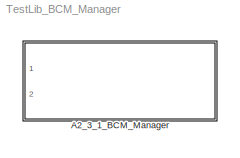
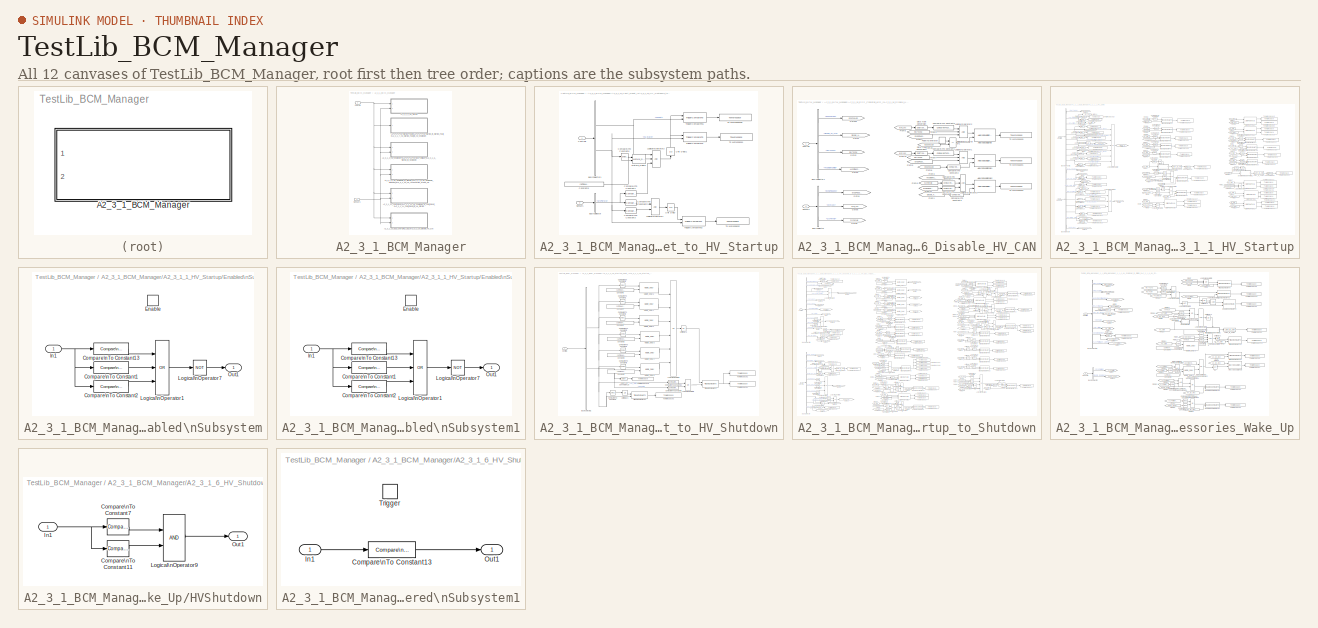
[diagram: thumbnail index - all 12 canvases of the model, root first then tree order]
MODEL TestLib_BCM_Manager
KIND library
CONFIG PostLoadFcn = , if any(exist('dsrtsu_mdlpostloadfcn', 'file') == [2, 3, 6]), try dsrtsu_mdlpostloadfcn('Execute', bdroot); catch fprintf('Error in PostLoadFcn (dsrtsu_mdlpostloadfcn) for model \"%s\":\\n %s\\n', bdroot, lasterr); end, end, \n
BLOCK [SubSystem] A2_3_1_BCM_Manager
  FunctionWithSeparateData = off
  MaskHideContents = off
  MinAlgLoopOccurrences = off
  Opaque = off
  Ports = [2]
  PropExecContextOutsideSubsystem = off
  RTWSystemCode = Auto
  RequestExecContextInheritance = off
  SID = 1
BLOCK [SubSystem] A2_3_1_BCM_Manager/A2_3_1_12_Fault_Reset_\nA2_3_1_13_HV_Shutdown_to_Fault_Reset_\nA2_3_1_14_Fault_Reset_to_HV_Startup
  FunctionWithSeparateData = off
  MaskHideContents = off
  MinAlgLoopOccurrences = off
  Opaque = off
  Ports = [2]
  PropExecContextOutsideSubsystem = off
  RTWSystemCode = Auto
  RequestExecContextInheritance = off
  SID = 4
BLOCK [BusSelector] A2_3_1_BCM_Manager/A2_3_1_12_Fault_Reset_\nA2_3_1_13_HV_Shutdown_to_Fault_Reset_\nA2_3_1_14_Fault_Reset_to_HV_Startup/Bus\nSelector
  OutputSignals = Sensors_CAN.BodyCM_HS_Tx.PPEI_Platform_General_Status.SysPwrMd
  Ports = [1, 1]
  SID = 7
BLOCK [BusSelector] A2_3_1_BCM_Manager/A2_3_1_12_Fault_Reset_\nA2_3_1_13_HV_Shutdown_to_Fault_Reset_\nA2_3_1_14_Fault_Reset_to_HV_Startup/Bus\nSelector1
  OutputSignals = Powertrain_SC_Controls.HV_Status.HVFault,Powertrain_SC_Controls.HV_Status.HV_State
  Ports = [1, 2]
  SID = 8
BLOCK [Reference] A2_3_1_BCM_Manager/A2_3_1_12_Fault_Reset_\nA2_3_1_13_HV_Shutdown_to_Fault_Reset_\nA2_3_1_14_Fault_Reset_to_HV_Startup/Compare\nTo Constant1  REF=simulink/Logic and Bit\nOperations/Compare\nTo Constant
  FunctionWithSeparateData = off
  LogicOutDataTypeMode = uint8
  Ports = [1, 1]
  RTWMemSecDataConstants = Inherit from model
  RTWMemSecDataInternal = Inherit from model
  RTWMemSecDataParameters = Inherit from model
  RTWMemSecFuncExecute = Inherit from model
  RTWMemSecFuncInitTerm = Inherit from model
  SID = 9
  ShowPortLabels = FromPortIcon
  SourceBlock = simulink/Logic and Bit\nOperations/Compare\nTo Constant
  SourceType = Compare To Constant
  SystemSampleTime = -1
  ZeroCross = on
  const = 0
  relop = ==
BLOCK [Reference] A2_3_1_BCM_Manager/A2_3_1_12_Fault_Reset_\nA2_3_1_13_HV_Shutdown_to_Fault_Reset_\nA2_3_1_14_Fault_Reset_to_HV_Startup/Compare\nTo Constant2  REF=simulink/Logic and Bit\nOperations/Compare\nTo Constant
  FunctionWithSeparateData = off
  LogicOutDataTypeMode = uint8
  Ports = [1, 1]
  RTWMemSecDataConstants = Inherit from model
  RTWMemSecDataInternal = Inherit from model
  RTWMemSecDataParameters = Inherit from model
  RTWMemSecFuncExecute = Inherit from model
  RTWMemSecFuncInitTerm = Inherit from model
  SID = 10
  ShowPortLabels = FromPortIcon
  SourceBlock = simulink/Logic and Bit\nOperations/Compare\nTo Constant
  SourceType = Compare To Constant
  SystemSampleTime = -1
  ZeroCross = on
  const = 0
  relop = >
BLOCK [Reference] A2_3_1_BCM_Manager/A2_3_1_12_Fault_Reset_\nA2_3_1_13_HV_Shutdown_to_Fault_Reset_\nA2_3_1_14_Fault_Reset_to_HV_Startup/Compare\nTo Constant3  REF=simulink/Logic and Bit\nOperations/Compare\nTo Constant
  FunctionWithSeparateData = off
  LogicOutDataTypeMode = uint8
  Ports = [1, 1]
  RTWMemSecDataConstants = Inherit from model
  RTWMemSecDataInternal = Inherit from model
  RTWMemSecDataParameters = Inherit from model
  RTWMemSecFuncExecute = Inherit from model
  RTWMemSecFuncInitTerm = Inherit from model
  SID = 11
  ShowPortLabels = FromPortIcon
  SourceBlock = simulink/Logic and Bit\nOperations/Compare\nTo Constant
  SourceType = Compare To Constant
  SystemSampleTime = -1
  ZeroCross = on
  const = -7
  relop = ==
BLOCK [Reference] A2_3_1_BCM_Manager/A2_3_1_12_Fault_Reset_\nA2_3_1_13_HV_Shutdown_to_Fault_Reset_\nA2_3_1_14_Fault_Reset_to_HV_Startup/Compare\nTo Constant6  REF=simulink/Logic and Bit\nOperations/Compare\nTo Constant
  FunctionWithSeparateData = off
  LogicOutDataTypeMode = uint8
  Ports = [1, 1]
  RTWMemSecDataConstants = Inherit from model
  RTWMemSecDataInternal = Inherit from model
  RTWMemSecDataParameters = Inherit from model
  RTWMemSecFuncExecute = Inherit from model
  RTWMemSecFuncInitTerm = Inherit from model
  SID = 852
  ShowPortLabels = FromPortIcon
  SourceBlock = simulink/Logic and Bit\nOperations/Compare\nTo Constant
  SourceType = Compare To Constant
  SystemSampleTime = -1
  ZeroCross = on
  const = -6
  relop = ==
BLOCK [Constant] A2_3_1_BCM_Manager/A2_3_1_12_Fault_Reset_\nA2_3_1_13_HV_Shutdown_to_Fault_Reset_\nA2_3_1_14_Fault_Reset_to_HV_Startup/Constant6
  SID = 853
  Value = cal.Time.HV.WaitForShtdwn+4*tloop
  VectorParams1D = off
BLOCK [Inport] A2_3_1_BCM_Manager/A2_3_1_12_Fault_Reset_\nA2_3_1_13_HV_Shutdown_to_Fault_Reset_\nA2_3_1_14_Fault_Reset_to_HV_Startup/Controls
  IconDisplay = Port number
  OutDataType = fixdt(1, 16)
  OutScaling = 2^0
  SID = 5
BLOCK [Logic] A2_3_1_BCM_Manager/A2_3_1_12_Fault_Reset_\nA2_3_1_13_HV_Shutdown_to_Fault_Reset_\nA2_3_1_14_Fault_Reset_to_HV_Startup/Logical\nOperator1
  AllPortsSameDT = off
  OutDataTypeMode = boolean
  OutDataTypeStr = boolean
  Ports = [2, 1]
  SID = 16
BLOCK [Logic] A2_3_1_BCM_Manager/A2_3_1_12_Fault_Reset_\nA2_3_1_13_HV_Shutdown_to_Fault_Reset_\nA2_3_1_14_Fault_Reset_to_HV_Startup/Logical\nOperator3
  AllPortsSameDT = off
  Inputs = 3
  OutDataTypeMode = boolean
  OutDataTypeStr = boolean
  Ports = [3, 1]
  SID = 17
BLOCK [Reference] A2_3_1_BCM_Manager/A2_3_1_12_Fault_Reset_\nA2_3_1_13_HV_Shutdown_to_Fault_Reset_\nA2_3_1_14_Fault_Reset_to_HV_Startup/Mature_Delay6  REF=EC2_libraries/Mature_Delay
  FunctionWithSeparateData = off
  Ports = [2, 1]
  RTWMemSecDataConstants = Inherit from model
  RTWMemSecDataInternal = Inherit from model
  RTWMemSecDataParameters = Inherit from model
  RTWMemSecFuncExecute = Inherit from model
  RTWMemSecFuncInitTerm = Inherit from model
  SID = 855
  ShowPortLabels = FromPortIcon
  SourceBlock = EC2_libraries/Mature_Delay
  SourceType = SubSystem
  SystemSampleTime = -1
BLOCK [Inport] A2_3_1_BCM_Manager/A2_3_1_12_Fault_Reset_\nA2_3_1_13_HV_Shutdown_to_Fault_Reset_\nA2_3_1_14_Fault_Reset_to_HV_Startup/Sensors
  IconDisplay = Port number
  OutDataType = fixdt(1, 16)
  OutScaling = 2^0
  Port = 2
  SID = 6
BLOCK [ToWorkspace] A2_3_1_BCM_Manager/A2_3_1_12_Fault_Reset_\nA2_3_1_13_HV_Shutdown_to_Fault_Reset_\nA2_3_1_14_Fault_Reset_to_HV_Startup/To Workspace1
  Decimation = WORKSPACE_DECIMATION
  MaxDataPoints = inf
  Ports = [1]
  SID = 18
  SampleTime = -1
  SaveFormat = Array
  VariableName = Req_A_2_3_1_12_Check
BLOCK [ToWorkspace] A2_3_1_BCM_Manager/A2_3_1_12_Fault_Reset_\nA2_3_1_13_HV_Shutdown_to_Fault_Reset_\nA2_3_1_14_Fault_Reset_to_HV_Startup/To Workspace2
  Decimation = WORKSPACE_DECIMATION
  MaxDataPoints = inf
  Ports = [1]
  SID = 19
  SampleTime = -1
  SaveFormat = Array
  VariableName = Req_A_2_3_1_14_Check
BLOCK [ToWorkspace] A2_3_1_BCM_Manager/A2_3_1_12_Fault_Reset_\nA2_3_1_13_HV_Shutdown_to_Fault_Reset_\nA2_3_1_14_Fault_Reset_to_HV_Startup/To Workspace35
  Decimation = WORKSPACE_DECIMATION
  MaxDataPoints = inf
  Ports = [1]
  SID = 20
  SampleTime = -1
  SaveFormat = Array
  VariableName = Req_A_2_3_1_13_Check
BLOCK [Reference] A2_3_1_BCM_Manager/A2_3_1_12_Fault_Reset_\nA2_3_1_13_HV_Shutdown_to_Fault_Reset_\nA2_3_1_14_Fault_Reset_to_HV_Startup/TriggerCompareTo  REF=EC2_libraries/TriggerCompareTo
  FunctionWithSeparateData = off
  Ports = [2, 1]
  RTWMemSecDataConstants = Inherit from model
  RTWMemSecDataInternal = Inherit from model
  RTWMemSecDataParameters = Inherit from model
  RTWMemSecFuncExecute = Inherit from model
  RTWMemSecFuncInitTerm = Inherit from model
  SID = 636
  ShowPortLabels = FromPortIcon
  SourceBlock = EC2_libraries/TriggerCompareTo
  SystemSampleTime = -1
  exp_val = -7
BLOCK [Reference] A2_3_1_BCM_Manager/A2_3_1_12_Fault_Reset_\nA2_3_1_13_HV_Shutdown_to_Fault_Reset_\nA2_3_1_14_Fault_Reset_to_HV_Startup/TriggerCompareTo1  REF=EC2_libraries/TriggerCompareTo
  FunctionWithSeparateData = off
  Ports = [2, 1]
  RTWMemSecDataConstants = Inherit from model
  RTWMemSecDataInternal = Inherit from model
  RTWMemSecDataParameters = Inherit from model
  RTWMemSecFuncExecute = Inherit from model
  RTWMemSecFuncInitTerm = Inherit from model
  SID = 637
  ShowPortLabels = FromPortIcon
  SourceBlock = EC2_libraries/TriggerCompareTo
  SystemSampleTime = -1
  exp_val = 0
BLOCK [Reference] A2_3_1_BCM_Manager/A2_3_1_12_Fault_Reset_\nA2_3_1_13_HV_Shutdown_to_Fault_Reset_\nA2_3_1_14_Fault_Reset_to_HV_Startup/TriggerCompareTo2  REF=EC2_libraries/TriggerCompareTo
  FunctionWithSeparateData = off
  Ports = [2, 1]
  RTWMemSecDataConstants = Inherit from model
  RTWMemSecDataInternal = Inherit from model
  RTWMemSecDataParameters = Inherit from model
  RTWMemSecFuncExecute = Inherit from model
  RTWMemSecFuncInitTerm = Inherit from model
  SID = 638
  ShowPortLabels = FromPortIcon
  SourceBlock = EC2_libraries/TriggerCompareTo
  SystemSampleTime = -1
  exp_val = -7
BLOCK [UnitDelay] A2_3_1_BCM_Manager/A2_3_1_12_Fault_Reset_\nA2_3_1_13_HV_Shutdown_to_Fault_Reset_\nA2_3_1_14_Fault_Reset_to_HV_Startup/Unit Delay
  SID = 21
  SampleTime = -1
BLOCK [UnitDelay] A2_3_1_BCM_Manager/A2_3_1_12_Fault_Reset_\nA2_3_1_13_HV_Shutdown_to_Fault_Reset_\nA2_3_1_14_Fault_Reset_to_HV_Startup/Unit Delay1
  SID = 22
  SampleTime = -1
BLOCK [SubSystem] A2_3_1_BCM_Manager/A2_3_1_15_ESS_Charging_LED_\nA2_3_1_16_Disable_HV_CAN
  FunctionWithSeparateData = off
  MaskHideContents = off
  MinAlgLoopOccurrences = off
  Opaque = off
  Ports = [2]
  PropExecContextOutsideSubsystem = off
  RTWSystemCode = Auto
  RequestExecContextInheritance = off
  SID = 889
BLOCK [Reference] A2_3_1_BCM_Manager/A2_3_1_15_ESS_Charging_LED_\nA2_3_1_16_Disable_HV_CAN/AlwaysEqualSignals  REF=EC2_libraries/AlwaysEqualSignals
  FunctionWithSeparateData = off
  Ports = [2, 1]
  RTWMemSecDataConstants = Inherit from model
  RTWMemSecDataInternal = Inherit from model
  RTWMemSecDataParameters = Inherit from model
  RTWMemSecFuncExecute = Inherit from model
  RTWMemSecFuncInitTerm = Inherit from model
  SID = 940
  ShowPortLabels = FromPortIcon
  SourceBlock = EC2_libraries/AlwaysEqualSignals
  SourceType = SubSystem
  SystemSampleTime = -1
BLOCK [Reference] A2_3_1_BCM_Manager/A2_3_1_15_ESS_Charging_LED_\nA2_3_1_16_Disable_HV_CAN/AlwaysEqualSignals1  REF=EC2_libraries/AlwaysEqualSignals
  FunctionWithSeparateData = off
  Ports = [2, 1]
  RTWMemSecDataConstants = Inherit from model
  RTWMemSecDataInternal = Inherit from model
  RTWMemSecDataParameters = Inherit from model
  RTWMemSecFuncExecute = Inherit from model
  RTWMemSecFuncInitTerm = Inherit from model
  SID = 941
  ShowPortLabels = FromPortIcon
  SourceBlock = EC2_libraries/AlwaysEqualSignals
  SourceType = SubSystem
  SystemSampleTime = -1
BLOCK [Reference] A2_3_1_BCM_Manager/A2_3_1_15_ESS_Charging_LED_\nA2_3_1_16_Disable_HV_CAN/AlwaysEqualSignals2  REF=EC2_libraries/AlwaysEqualSignals
  FunctionWithSeparateData = off
  Ports = [2, 1]
  RTWMemSecDataConstants = Inherit from model
  RTWMemSecDataInternal = Inherit from model
  RTWMemSecDataParameters = Inherit from model
  RTWMemSecFuncExecute = Inherit from model
  RTWMemSecFuncInitTerm = Inherit from model
  SID = 954
  ShowPortLabels = FromPortIcon
  SourceBlock = EC2_libraries/AlwaysEqualSignals
  SourceType = SubSystem
  SystemSampleTime = -1
BLOCK [BusSelector] A2_3_1_BCM_Manager/A2_3_1_15_ESS_Charging_LED_\nA2_3_1_16_Disable_HV_CAN/Bus\nSelector
  OutputSignals = Analog.EVSEPlugged,Sensors_CAN.BCM_HS_Tx.BCM_Status.bcm_soc,Sensors_CAN.BodyCM_HS_Tx.PPEI_Platform_General_Status.SysPwrMd
  Ports = [1, 3]
  SID = 892
BLOCK [BusSelector] A2_3_1_BCM_Manager/A2_3_1_15_ESS_Charging_LED_\nA2_3_1_16_Disable_HV_CAN/Bus\nSelector1
  OutputSignals = Powertrain_SC_Controls.BCM_Control.ESSChgLED,Powertrain_SC_Controls.BCM_Control.Disable_HV_CAN,Powertrain_SC_Controls.HV_Status.RdyToChg,Powertrain_SC_Controls.HV_Status.HVShtDwnCmpltd
  Ports = [1, 4]
  SID = 893
BLOCK [Reference] A2_3_1_BCM_Manager/A2_3_1_15_ESS_Charging_LED_\nA2_3_1_16_Disable_HV_CAN/Compare\nTo Constant1  REF=simulink/Logic and Bit\nOperations/Compare\nTo Constant
  FunctionWithSeparateData = off
  LogicOutDataTypeMode = boolean
  Ports = [1, 1]
  RTWMemSecDataConstants = Inherit from model
  RTWMemSecDataInternal = Inherit from model
  RTWMemSecDataParameters = Inherit from model
  RTWMemSecFuncExecute = Inherit from model
  RTWMemSecFuncInitTerm = Inherit from model
  SID = 942
  ShowPortLabels = FromPortIcon
  SourceBlock = simulink/Logic and Bit\nOperations/Compare\nTo Constant
  SourceType = Compare To Constant
  SystemSampleTime = -1
  ZeroCross = on
  const = 100
  relop = ~=
BLOCK [Reference] A2_3_1_BCM_Manager/A2_3_1_15_ESS_Charging_LED_\nA2_3_1_16_Disable_HV_CAN/Compare\nTo Constant2  REF=simulink/Logic and Bit\nOperations/Compare\nTo Constant
  FunctionWithSeparateData = off
  LogicOutDataTypeMode = boolean
  Ports = [1, 1]
  RTWMemSecDataConstants = Inherit from model
  RTWMemSecDataInternal = Inherit from model
  RTWMemSecDataParameters = Inherit from model
  RTWMemSecFuncExecute = Inherit from model
  RTWMemSecFuncInitTerm = Inherit from model
  SID = 952
  ShowPortLabels = FromPortIcon
  SourceBlock = simulink/Logic and Bit\nOperations/Compare\nTo Constant
  SourceType = Compare To Constant
  SystemSampleTime = -1
  ZeroCross = on
  const = 1
  relop = ==
BLOCK [Reference] A2_3_1_BCM_Manager/A2_3_1_15_ESS_Charging_LED_\nA2_3_1_16_Disable_HV_CAN/Compare\nTo Constant3  REF=simulink/Logic and Bit\nOperations/Compare\nTo Constant
  FunctionWithSeparateData = off
  LogicOutDataTypeMode = boolean
  Ports = [1, 1]
  RTWMemSecDataConstants = Inherit from model
  RTWMemSecDataInternal = Inherit from model
  RTWMemSecDataParameters = Inherit from model
  RTWMemSecFuncExecute = Inherit from model
  RTWMemSecFuncInitTerm = Inherit from model
  SID = 955
  ShowPortLabels = FromPortIcon
  SourceBlock = simulink/Logic and Bit\nOperations/Compare\nTo Constant
  SourceType = Compare To Constant
  SystemSampleTime = -1
  ZeroCross = on
  const = 1
  relop = ==
BLOCK [Reference] A2_3_1_BCM_Manager/A2_3_1_15_ESS_Charging_LED_\nA2_3_1_16_Disable_HV_CAN/Compare\nTo Constant4  REF=simulink/Logic and Bit\nOperations/Compare\nTo Constant
  FunctionWithSeparateData = off
  LogicOutDataTypeMode = boolean
  Ports = [1, 1]
  RTWMemSecDataConstants = Inherit from model
  RTWMemSecDataInternal = Inherit from model
  RTWMemSecDataParameters = Inherit from model
  RTWMemSecFuncExecute = Inherit from model
  RTWMemSecFuncInitTerm = Inherit from model
  SID = 958
  ShowPortLabels = FromPortIcon
  SourceBlock = simulink/Logic and Bit\nOperations/Compare\nTo Constant
  SourceType = Compare To Constant
  SystemSampleTime = -1
  ZeroCross = on
  const = 0
  relop = ==
BLOCK [Reference] A2_3_1_BCM_Manager/A2_3_1_15_ESS_Charging_LED_\nA2_3_1_16_Disable_HV_CAN/Compare\nTo Constant5  REF=simulink/Logic and Bit\nOperations/Compare\nTo Constant
  FunctionWithSeparateData = off
  LogicOutDataTypeMode = boolean
  Ports = [1, 1]
  RTWMemSecDataConstants = Inherit from model
  RTWMemSecDataInternal = Inherit from model
  RTWMemSecDataParameters = Inherit from model
  RTWMemSecFuncExecute = Inherit from model
  RTWMemSecFuncInitTerm = Inherit from model
  SID = 934
  ShowPortLabels = FromPortIcon
  SourceBlock = simulink/Logic and Bit\nOperations/Compare\nTo Constant
  SourceType = Compare To Constant
  SystemSampleTime = -1
  ZeroCross = on
  const = 100
  relop = ==
BLOCK [Reference] A2_3_1_BCM_Manager/A2_3_1_15_ESS_Charging_LED_\nA2_3_1_16_Disable_HV_CAN/Compare\nTo Constant6  REF=simulink/Logic and Bit\nOperations/Compare\nTo Constant
  FunctionWithSeparateData = off
  LogicOutDataTypeMode = boolean
  Ports = [1, 1]
  RTWMemSecDataConstants = Inherit from model
  RTWMemSecDataInternal = Inherit from model
  RTWMemSecDataParameters = Inherit from model
  RTWMemSecFuncExecute = Inherit from model
  RTWMemSecFuncInitTerm = Inherit from model
  SID = 959
  ShowPortLabels = FromPortIcon
  SourceBlock = simulink/Logic and Bit\nOperations/Compare\nTo Constant
  SourceType = Compare To Constant
  SystemSampleTime = -1
  ZeroCross = on
  const = 0
  relop = ==
BLOCK [Inport] A2_3_1_BCM_Manager/A2_3_1_15_ESS_Charging_LED_\nA2_3_1_16_Disable_HV_CAN/Controls
  IconDisplay = Port number
  OutDataType = fixdt(1, 16)
  OutScaling = 2^0
  SID = 890
BLOCK [DataTypeConversion] A2_3_1_BCM_Manager/A2_3_1_15_ESS_Charging_LED_\nA2_3_1_16_Disable_HV_CAN/Data Type Conversion
  OutDataType = fixdt(1, 16)
  OutScaling = 2^0
  RndMeth = Floor
  SID = 935
  SaturateOnIntegerOverflow = off
BLOCK [DataTypeConversion] A2_3_1_BCM_Manager/A2_3_1_15_ESS_Charging_LED_\nA2_3_1_16_Disable_HV_CAN/Data Type Conversion1
  OutDataType = fixdt(1, 16)
  OutScaling = 2^0
  RndMeth = Floor
  SID = 943
  SaturateOnIntegerOverflow = off
BLOCK [From] A2_3_1_BCM_Manager/A2_3_1_15_ESS_Charging_LED_\nA2_3_1_16_Disable_HV_CAN/From1
  GotoTag = Disable_HV_CAN
  SID = 914
BLOCK [From] A2_3_1_BCM_Manager/A2_3_1_15_ESS_Charging_LED_\nA2_3_1_16_Disable_HV_CAN/From10
  GotoTag = bcm_soc
  SID = 947
BLOCK [From] A2_3_1_BCM_Manager/A2_3_1_15_ESS_Charging_LED_\nA2_3_1_16_Disable_HV_CAN/From11
  GotoTag = EVSEPlugged
  SID = 953
BLOCK [From] A2_3_1_BCM_Manager/A2_3_1_15_ESS_Charging_LED_\nA2_3_1_16_Disable_HV_CAN/From2
  GotoTag = RdyToChg
  SID = 916
BLOCK [From] A2_3_1_BCM_Manager/A2_3_1_15_ESS_Charging_LED_\nA2_3_1_16_Disable_HV_CAN/From26
  GotoTag = ESSChgLED
  SID = 912
BLOCK [From] A2_3_1_BCM_Manager/A2_3_1_15_ESS_Charging_LED_\nA2_3_1_16_Disable_HV_CAN/From3
  GotoTag = HVShtDwnCmpltd
  SID = 918
BLOCK [From] A2_3_1_BCM_Manager/A2_3_1_15_ESS_Charging_LED_\nA2_3_1_16_Disable_HV_CAN/From4
  GotoTag = EVSEPlugged
  SID = 920
BLOCK [From] A2_3_1_BCM_Manager/A2_3_1_15_ESS_Charging_LED_\nA2_3_1_16_Disable_HV_CAN/From5
  GotoTag = bcm_soc
  SID = 922
BLOCK [From] A2_3_1_BCM_Manager/A2_3_1_15_ESS_Charging_LED_\nA2_3_1_16_Disable_HV_CAN/From6
  GotoTag = SysPwrMd
  SID = 924
BLOCK [From] A2_3_1_BCM_Manager/A2_3_1_15_ESS_Charging_LED_\nA2_3_1_16_Disable_HV_CAN/From7
  GotoTag = RdyToChg
  SID = 944
BLOCK [From] A2_3_1_BCM_Manager/A2_3_1_15_ESS_Charging_LED_\nA2_3_1_16_Disable_HV_CAN/From8
  GotoTag = ESSChgLED
  SID = 945
BLOCK [From] A2_3_1_BCM_Manager/A2_3_1_15_ESS_Charging_LED_\nA2_3_1_16_Disable_HV_CAN/From9
  GotoTag = EVSEPlugged
  SID = 946
BLOCK [Goto] A2_3_1_BCM_Manager/A2_3_1_15_ESS_Charging_LED_\nA2_3_1_16_Disable_HV_CAN/Goto1
  GotoTag = Disable_HV_CAN
  SID = 915
  TagVisibility = local
BLOCK [Goto] A2_3_1_BCM_Manager/A2_3_1_15_ESS_Charging_LED_\nA2_3_1_16_Disable_HV_CAN/Goto2
  GotoTag = RdyToChg
  SID = 917
  TagVisibility = local
BLOCK [Goto] A2_3_1_BCM_Manager/A2_3_1_15_ESS_Charging_LED_\nA2_3_1_16_Disable_HV_CAN/Goto25
  GotoTag = ESSChgLED
  SID = 913
  TagVisibility = local
BLOCK [Goto] A2_3_1_BCM_Manager/A2_3_1_15_ESS_Charging_LED_\nA2_3_1_16_Disable_HV_CAN/Goto3
  GotoTag = HVShtDwnCmpltd
  SID = 919
  TagVisibility = local
BLOCK [Goto] A2_3_1_BCM_Manager/A2_3_1_15_ESS_Charging_LED_\nA2_3_1_16_Disable_HV_CAN/Goto4
  GotoTag = EVSEPlugged
  SID = 921
  TagVisibility = local
BLOCK [Goto] A2_3_1_BCM_Manager/A2_3_1_15_ESS_Charging_LED_\nA2_3_1_16_Disable_HV_CAN/Goto5
  GotoTag = bcm_soc
  SID = 923
  TagVisibility = local
BLOCK [Goto] A2_3_1_BCM_Manager/A2_3_1_15_ESS_Charging_LED_\nA2_3_1_16_Disable_HV_CAN/Goto6
  GotoTag = SysPwrMd
  SID = 925
  TagVisibility = local
BLOCK [Logic] A2_3_1_BCM_Manager/A2_3_1_15_ESS_Charging_LED_\nA2_3_1_16_Disable_HV_CAN/Logical\nOperator1
  AllPortsSameDT = off
  Inputs = 3
  LogicDataType = fixdt(0, 8)
  OutDataTypeMode = boolean
  OutDataTypeStr = boolean
  Ports = [3, 1]
  SID = 948
BLOCK [Logic] A2_3_1_BCM_Manager/A2_3_1_15_ESS_Charging_LED_\nA2_3_1_16_Disable_HV_CAN/Logical\nOperator2
  AllPortsSameDT = off
  Inputs = 3
  LogicDataType = fixdt(0, 8)
  OutDataTypeMode = boolean
  OutDataTypeStr = boolean
  Ports = [3, 1]
  SID = 937
BLOCK [Logic] A2_3_1_BCM_Manager/A2_3_1_15_ESS_Charging_LED_\nA2_3_1_16_Disable_HV_CAN/Logical\nOperator3
  AllPortsSameDT = off
  Inputs = 3
  LogicDataType = fixdt(0, 8)
  OutDataTypeMode = boolean
  OutDataTypeStr = boolean
  Ports = [3, 1]
  SID = 956
BLOCK [DiscretePulseGenerator] A2_3_1_BCM_Manager/A2_3_1_15_ESS_Charging_LED_\nA2_3_1_16_Disable_HV_CAN/Pulse\nGenerator
  Amplitude = 1
  Period = 1
  PhaseDelay = 0
  Ports = [0, 1]
  PulseType = Time based
  PulseWidth = 50
  SID = 938
  SampleTime = 1
BLOCK [RelationalOperator] A2_3_1_BCM_Manager/A2_3_1_15_ESS_Charging_LED_\nA2_3_1_16_Disable_HV_CAN/Relational\nOperator1
  InputSameDT = off
  LogicDataType = fixdt(0, 8)
  LogicOutDataTypeMode = boolean
  Operator = ==
  OutDataTypeStr = boolean
  Ports = [2, 1]
  SID = 929
BLOCK [Inport] A2_3_1_BCM_Manager/A2_3_1_15_ESS_Charging_LED_\nA2_3_1_16_Disable_HV_CAN/Sensors
  IconDisplay = Port number
  OutDataType = fixdt(1, 16)
  OutScaling = 2^0
  Port = 2
  SID = 891
BLOCK [ToWorkspace] A2_3_1_BCM_Manager/A2_3_1_15_ESS_Charging_LED_\nA2_3_1_16_Disable_HV_CAN/To Workspace1
  Decimation = WORKSPACE_DECIMATION
  MaxDataPoints = inf
  Ports = [1]
  SID = 951
  SampleTime = -1
  SaveFormat = Array
  VariableName = Req_A_2_3_1_15_Check2
BLOCK [ToWorkspace] A2_3_1_BCM_Manager/A2_3_1_15_ESS_Charging_LED_\nA2_3_1_16_Disable_HV_CAN/To Workspace2
  Decimation = WORKSPACE_DECIMATION
  MaxDataPoints = inf
  Ports = [1]
  SID = 957
  SampleTime = -1
  SaveFormat = Array
  VariableName = Req_A_2_3_1_16_Check
BLOCK [ToWorkspace] A2_3_1_BCM_Manager/A2_3_1_15_ESS_Charging_LED_\nA2_3_1_16_Disable_HV_CAN/To Workspace9
  Decimation = WORKSPACE_DECIMATION
  MaxDataPoints = inf
  Ports = [1]
  SID = 928
  SampleTime = -1
  SaveFormat = Array
  VariableName = Req_A_2_3_1_15_Check1
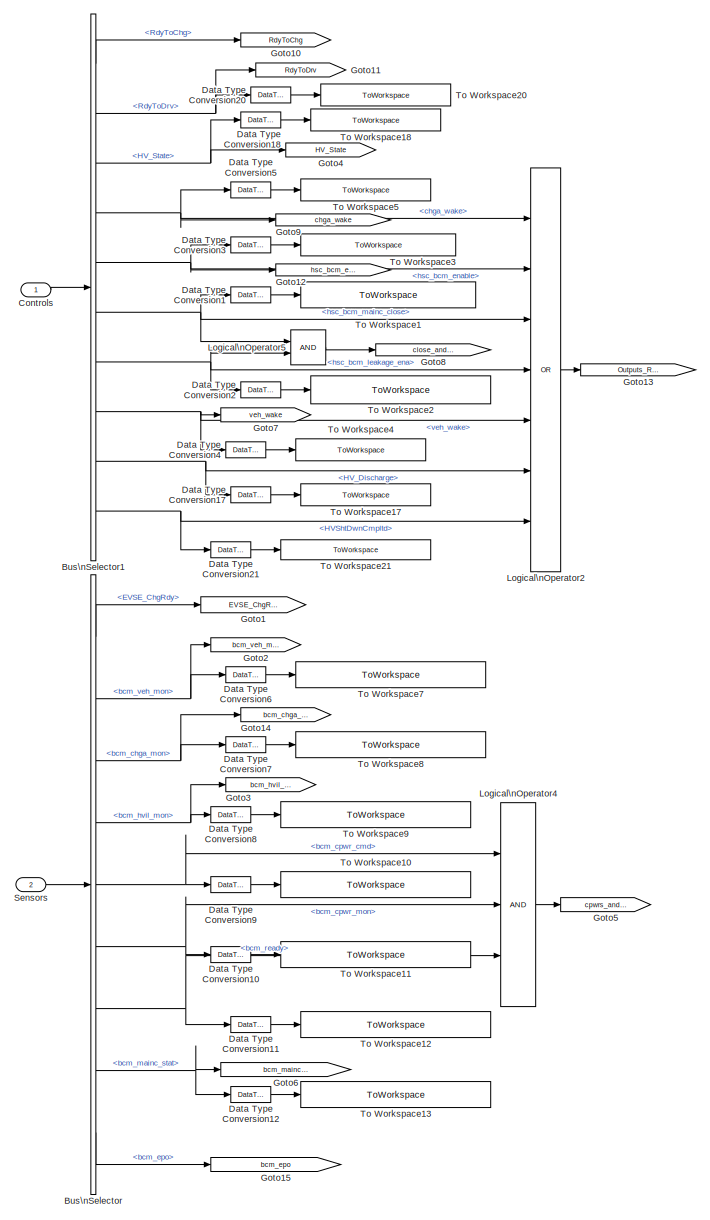
[diagram: A2_3_1_BCM_Manager/A2_3_1_1_HV_Startup - part 1/3, left side, full height]
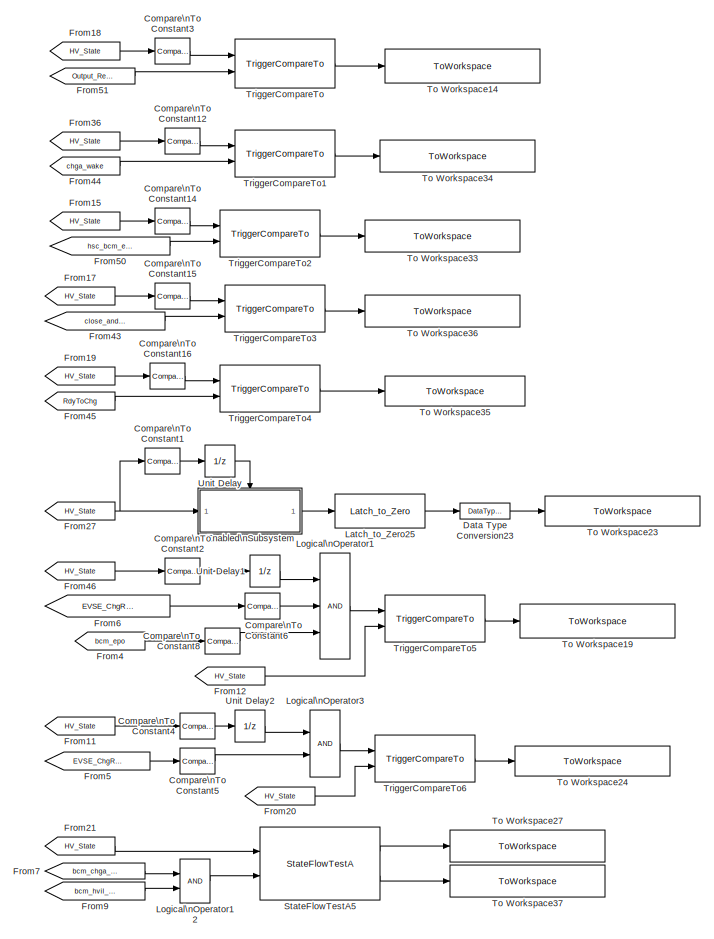
[diagram: A2_3_1_BCM_Manager/A2_3_1_1_HV_Startup - part 2/3, center side, full height]
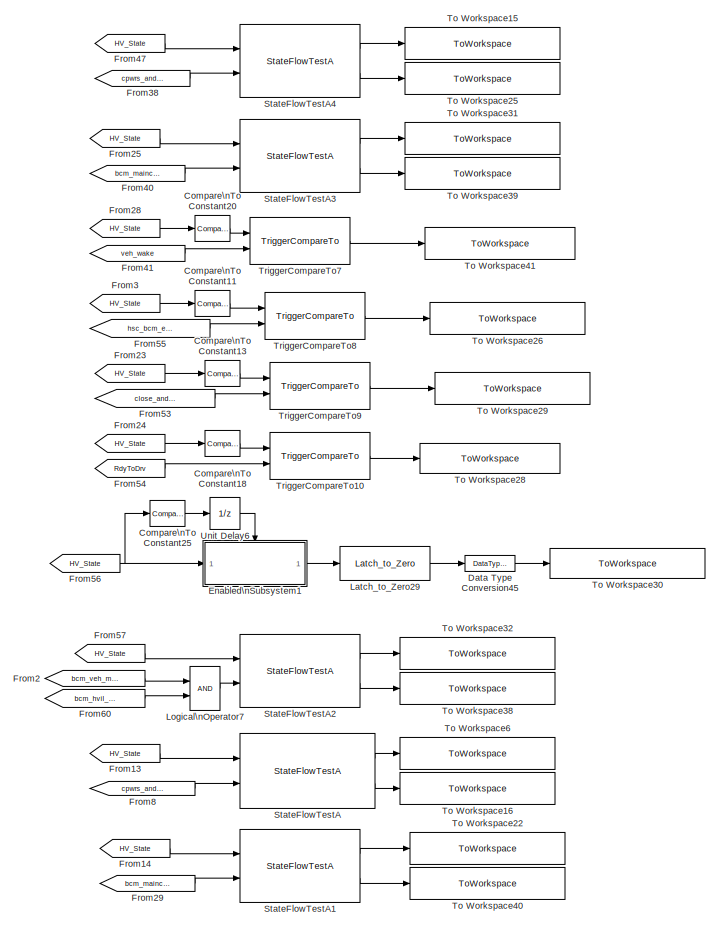
[diagram: A2_3_1_BCM_Manager/A2_3_1_1_HV_Startup - part 3/3, right side, full height]
BLOCK [SubSystem] A2_3_1_BCM_Manager/A2_3_1_1_HV_Startup
  FunctionWithSeparateData = off
  MaskHideContents = off
  MinAlgLoopOccurrences = off
  Opaque = off
  Ports = [2]
  PropExecContextOutsideSubsystem = off
  RTWSystemCode = Auto
  RequestExecContextInheritance = off
  SID = 23
BLOCK [BusSelector] A2_3_1_BCM_Manager/A2_3_1_1_HV_Startup/Bus\nSelector
  OutputSignals = Analog.EVSE_ChgRdy,Sensors_CAN.BCM_HS_Tx.BCM_Data1.bcm_veh_mon,Sensors_CAN.BCM_HS_Tx.BCM_Data1.bcm_chga_mon,Sensors_CAN.BCM_HS_Tx.BCM_Status.bcm_hvil_mon,Sensors_CAN.BCM_HS_Tx.BCM_Status.bcm_cpwr_cmd,Sensors_CAN.BCM_HS_Tx.BCM_Status.bcm_cpwr_mon,Sensors_CAN.BCM_HS_Tx.BCM_Status.bcm_ready,Sensors_CAN.BCM_HS_Tx.BCM_Status.bcm_mainc_stat,Sensors_CAN.BCM_HS_Tx.BCM_Status.bcm_epo
  Ports = [1, 9]
  SID = 26
BLOCK [BusSelector] A2_3_1_BCM_Manager/A2_3_1_1_HV_Startup/Bus\nSelector1
  OutputSignals = Powertrain_SC_Controls.HV_Status.RdyToChg,Powertrain_SC_Controls.HV_Status.RdyToDrv,Powertrain_SC_Controls.HV_Status.HV_State,Powertrain_SC_Controls.BCM_Control.chga_wake,Powertrain_SC_Controls.BCM_Control.hsc_bcm_enable,Powertrain_SC_Controls.BCM_Control.hsc_bcm_mainc_close,Powertrain_SC_Controls.BCM_Control.hsc_bcm_leakage_ena,Powertrain_SC_Controls.BCM_Control.veh_wake,Powertrain_SC_Controls.HV...<+68ch>
  Ports = [1, 10]
  SID = 27
BLOCK [Reference] A2_3_1_BCM_Manager/A2_3_1_1_HV_Startup/Compare\nTo Constant1  REF=simulink/Logic and Bit\nOperations/Compare\nTo Constant
  FunctionWithSeparateData = off
  LogicOutDataTypeMode = uint8
  Ports = [1, 1]
  RTWMemSecDataConstants = Inherit from model
  RTWMemSecDataInternal = Inherit from model
  RTWMemSecDataParameters = Inherit from model
  RTWMemSecFuncExecute = Inherit from model
  RTWMemSecFuncInitTerm = Inherit from model
  SID = 28
  ShowPortLabels = FromPortIcon
  SourceBlock = simulink/Logic and Bit\nOperations/Compare\nTo Constant
  SourceType = Compare To Constant
  SystemSampleTime = -1
  ZeroCross = on
  const = 15
  relop = ==
BLOCK [Reference] A2_3_1_BCM_Manager/A2_3_1_1_HV_Startup/Compare\nTo Constant11  REF=simulink/Logic and Bit\nOperations/Compare\nTo Constant
  FunctionWithSeparateData = off
  LogicOutDataTypeMode = uint8
  Ports = [1, 1]
  RTWMemSecDataConstants = Inherit from model
  RTWMemSecDataInternal = Inherit from model
  RTWMemSecDataParameters = Inherit from model
  RTWMemSecFuncExecute = Inherit from model
  RTWMemSecFuncInitTerm = Inherit from model
  SID = 29
  ShowPortLabels = FromPortIcon
  SourceBlock = simulink/Logic and Bit\nOperations/Compare\nTo Constant
  SourceType = Compare To Constant
  SystemSampleTime = -1
  ZeroCross = on
  const = 3
  relop = ==
BLOCK [Reference] A2_3_1_BCM_Manager/A2_3_1_1_HV_Startup/Compare\nTo Constant12  REF=simulink/Logic and Bit\nOperations/Compare\nTo Constant
  FunctionWithSeparateData = off
  LogicOutDataTypeMode = uint8
  Ports = [1, 1]
  RTWMemSecDataConstants = Inherit from model
  RTWMemSecDataInternal = Inherit from model
  RTWMemSecDataParameters = Inherit from model
  RTWMemSecFuncExecute = Inherit from model
  RTWMemSecFuncInitTerm = Inherit from model
  SID = 30
  ShowPortLabels = FromPortIcon
  SourceBlock = simulink/Logic and Bit\nOperations/Compare\nTo Constant
  SourceType = Compare To Constant
  SystemSampleTime = -1
  ZeroCross = on
  const = 12
  relop = ==
BLOCK [Reference] A2_3_1_BCM_Manager/A2_3_1_1_HV_Startup/Compare\nTo Constant13  REF=simulink/Logic and Bit\nOperations/Compare\nTo Constant
  FunctionWithSeparateData = off
  LogicOutDataTypeMode = uint8
  Ports = [1, 1]
  RTWMemSecDataConstants = Inherit from model
  RTWMemSecDataInternal = Inherit from model
  RTWMemSecDataParameters = Inherit from model
  RTWMemSecFuncExecute = Inherit from model
  RTWMemSecFuncInitTerm = Inherit from model
  SID = 31
  ShowPortLabels = FromPortIcon
  SourceBlock = simulink/Logic and Bit\nOperations/Compare\nTo Constant
  SourceType = Compare To Constant
  SystemSampleTime = -1
  ZeroCross = on
  const = 4
  relop = ==
BLOCK [Reference] A2_3_1_BCM_Manager/A2_3_1_1_HV_Startup/Compare\nTo Constant14  REF=simulink/Logic and Bit\nOperations/Compare\nTo Constant
  FunctionWithSeparateData = off
  LogicOutDataTypeMode = uint8
  Ports = [1, 1]
  RTWMemSecDataConstants = Inherit from model
  RTWMemSecDataInternal = Inherit from model
  RTWMemSecDataParameters = Inherit from model
  RTWMemSecFuncExecute = Inherit from model
  RTWMemSecFuncInitTerm = Inherit from model
  SID = 32
  ShowPortLabels = FromPortIcon
  SourceBlock = simulink/Logic and Bit\nOperations/Compare\nTo Constant
  SourceType = Compare To Constant
  SystemSampleTime = -1
  ZeroCross = on
  const = 13
  relop = ==
BLOCK [Reference] A2_3_1_BCM_Manager/A2_3_1_1_HV_Startup/Compare\nTo Constant15  REF=simulink/Logic and Bit\nOperations/Compare\nTo Constant
  FunctionWithSeparateData = off
  LogicOutDataTypeMode = uint8
  Ports = [1, 1]
  RTWMemSecDataConstants = Inherit from model
  RTWMemSecDataInternal = Inherit from model
  RTWMemSecDataParameters = Inherit from model
  RTWMemSecFuncExecute = Inherit from model
  RTWMemSecFuncInitTerm = Inherit from model
  SID = 33
  ShowPortLabels = FromPortIcon
  SourceBlock = simulink/Logic and Bit\nOperations/Compare\nTo Constant
  SourceType = Compare To Constant
  SystemSampleTime = -1
  ZeroCross = on
  const = 14
  relop = ==
BLOCK [Reference] A2_3_1_BCM_Manager/A2_3_1_1_HV_Startup/Compare\nTo Constant16  REF=simulink/Logic and Bit\nOperations/Compare\nTo Constant
  FunctionWithSeparateData = off
  LogicOutDataTypeMode = uint8
  Ports = [1, 1]
  RTWMemSecDataConstants = Inherit from model
  RTWMemSecDataInternal = Inherit from model
  RTWMemSecDataParameters = Inherit from model
  RTWMemSecFuncExecute = Inherit from model
  RTWMemSecFuncInitTerm = Inherit from model
  SID = 34
  ShowPortLabels = FromPortIcon
  SourceBlock = simulink/Logic and Bit\nOperations/Compare\nTo Constant
  SourceType = Compare To Constant
  SystemSampleTime = -1
  ZeroCross = on
  const = 15
  relop = ==
BLOCK [Reference] A2_3_1_BCM_Manager/A2_3_1_1_HV_Startup/Compare\nTo Constant18  REF=simulink/Logic and Bit\nOperations/Compare\nTo Constant
  FunctionWithSeparateData = off
  LogicOutDataTypeMode = uint8
  Ports = [1, 1]
  RTWMemSecDataConstants = Inherit from model
  RTWMemSecDataInternal = Inherit from model
  RTWMemSecDataParameters = Inherit from model
  RTWMemSecFuncExecute = Inherit from model
  RTWMemSecFuncInitTerm = Inherit from model
  SID = 35
  ShowPortLabels = FromPortIcon
  SourceBlock = simulink/Logic and Bit\nOperations/Compare\nTo Constant
  SourceType = Compare To Constant
  SystemSampleTime = -1
  ZeroCross = on
  const = 5
  relop = ==
BLOCK [Reference] A2_3_1_BCM_Manager/A2_3_1_1_HV_Startup/Compare\nTo Constant2  REF=simulink/Logic and Bit\nOperations/Compare\nTo Constant
  FunctionWithSeparateData = off
  LogicOutDataTypeMode = uint8
  Ports = [1, 1]
  RTWMemSecDataConstants = Inherit from model
  RTWMemSecDataInternal = Inherit from model
  RTWMemSecDataParameters = Inherit from model
  RTWMemSecFuncExecute = Inherit from model
  RTWMemSecFuncInitTerm = Inherit from model
  SID = 36
  ShowPortLabels = FromPortIcon
  SourceBlock = simulink/Logic and Bit\nOperations/Compare\nTo Constant
  SourceType = Compare To Constant
  SystemSampleTime = -1
  ZeroCross = on
  const = 1
  relop = ==
BLOCK [Reference] A2_3_1_BCM_Manager/A2_3_1_1_HV_Startup/Compare\nTo Constant20  REF=simulink/Logic and Bit\nOperations/Compare\nTo Constant
  FunctionWithSeparateData = off
  LogicOutDataTypeMode = uint8
  Ports = [1, 1]
  RTWMemSecDataConstants = Inherit from model
  RTWMemSecDataInternal = Inherit from model
  RTWMemSecDataParameters = Inherit from model
  RTWMemSecFuncExecute = Inherit from model
  RTWMemSecFuncInitTerm = Inherit from model
  SID = 37
  ShowPortLabels = FromPortIcon
  SourceBlock = simulink/Logic and Bit\nOperations/Compare\nTo Constant
  SourceType = Compare To Constant
  SystemSampleTime = -1
  ZeroCross = on
  const = 2
  relop = ==
BLOCK [Reference] A2_3_1_BCM_Manager/A2_3_1_1_HV_Startup/Compare\nTo Constant25  REF=simulink/Logic and Bit\nOperations/Compare\nTo Constant
  FunctionWithSeparateData = off
  LogicOutDataTypeMode = uint8
  Ports = [1, 1]
  RTWMemSecDataConstants = Inherit from model
  RTWMemSecDataInternal = Inherit from model
  RTWMemSecDataParameters = Inherit from model
  RTWMemSecFuncExecute = Inherit from model
  RTWMemSecFuncInitTerm = Inherit from model
  SID = 38
  ShowPortLabels = FromPortIcon
  SourceBlock = simulink/Logic and Bit\nOperations/Compare\nTo Constant
  SourceType = Compare To Constant
  SystemSampleTime = -1
  ZeroCross = on
  const = 5
  relop = ==
BLOCK [Reference] A2_3_1_BCM_Manager/A2_3_1_1_HV_Startup/Compare\nTo Constant3  REF=simulink/Logic and Bit\nOperations/Compare\nTo Constant
  FunctionWithSeparateData = off
  LogicOutDataTypeMode = uint8
  Ports = [1, 1]
  RTWMemSecDataConstants = Inherit from model
  RTWMemSecDataInternal = Inherit from model
  RTWMemSecDataParameters = Inherit from model
  RTWMemSecFuncExecute = Inherit from model
  RTWMemSecFuncInitTerm = Inherit from model
  SID = 39
  ShowPortLabels = FromPortIcon
  SourceBlock = simulink/Logic and Bit\nOperations/Compare\nTo Constant
  SourceType = Compare To Constant
  SystemSampleTime = -1
  ZeroCross = on
  const = 1
  relop = ==
BLOCK [Reference] A2_3_1_BCM_Manager/A2_3_1_1_HV_Startup/Compare\nTo Constant4  REF=simulink/Logic and Bit\nOperations/Compare\nTo Constant
  FunctionWithSeparateData = off
  LogicOutDataTypeMode = uint8
  Ports = [1, 1]
  RTWMemSecDataConstants = Inherit from model
  RTWMemSecDataInternal = Inherit from model
  RTWMemSecDataParameters = Inherit from model
  RTWMemSecFuncExecute = Inherit from model
  RTWMemSecFuncInitTerm = Inherit from model
  SID = 40
  ShowPortLabels = FromPortIcon
  SourceBlock = simulink/Logic and Bit\nOperations/Compare\nTo Constant
  SourceType = Compare To Constant
  SystemSampleTime = -1
  ZeroCross = on
  const = 1
  relop = ==
BLOCK [Reference] A2_3_1_BCM_Manager/A2_3_1_1_HV_Startup/Compare\nTo Constant5  REF=simulink/Logic and Bit\nOperations/Compare\nTo Constant
  FunctionWithSeparateData = off
  LogicOutDataTypeMode = uint8
  Ports = [1, 1]
  RTWMemSecDataConstants = Inherit from model
  RTWMemSecDataInternal = Inherit from model
  RTWMemSecDataParameters = Inherit from model
  RTWMemSecFuncExecute = Inherit from model
  RTWMemSecFuncInitTerm = Inherit from model
  SID = 41
  ShowPortLabels = FromPortIcon
  SourceBlock = simulink/Logic and Bit\nOperations/Compare\nTo Constant
  SourceType = Compare To Constant
  SystemSampleTime = -1
  ZeroCross = on
  const = 0
  relop = ==
BLOCK [Reference] A2_3_1_BCM_Manager/A2_3_1_1_HV_Startup/Compare\nTo Constant6  REF=simulink/Logic and Bit\nOperations/Compare\nTo Constant
  FunctionWithSeparateData = off
  LogicOutDataTypeMode = uint8
  Ports = [1, 1]
  RTWMemSecDataConstants = Inherit from model
  RTWMemSecDataInternal = Inherit from model
  RTWMemSecDataParameters = Inherit from model
  RTWMemSecFuncExecute = Inherit from model
  RTWMemSecFuncInitTerm = Inherit from model
  SID = 42
  ShowPortLabels = FromPortIcon
  SourceBlock = simulink/Logic and Bit\nOperations/Compare\nTo Constant
  SourceType = Compare To Constant
  SystemSampleTime = -1
  ZeroCross = on
  const = 1
  relop = ==
BLOCK [Reference] A2_3_1_BCM_Manager/A2_3_1_1_HV_Startup/Compare\nTo Constant8  REF=simulink/Logic and Bit\nOperations/Compare\nTo Constant
  FunctionWithSeparateData = off
  LogicOutDataTypeMode = uint8
  Ports = [1, 1]
  RTWMemSecDataConstants = Inherit from model
  RTWMemSecDataInternal = Inherit from model
  RTWMemSecDataParameters = Inherit from model
  RTWMemSecFuncExecute = Inherit from model
  RTWMemSecFuncInitTerm = Inherit from model
  SID = 860
  ShowPortLabels = FromPortIcon
  SourceBlock = simulink/Logic and Bit\nOperations/Compare\nTo Constant
  SourceType = Compare To Constant
  SystemSampleTime = -1
  ZeroCross = on
  const = 0
  relop = ==
BLOCK [Inport] A2_3_1_BCM_Manager/A2_3_1_1_HV_Startup/Controls
  IconDisplay = Port number
  OutDataType = fixdt(1, 16)
  OutScaling = 2^0
  SID = 24
BLOCK [DataTypeConversion] A2_3_1_BCM_Manager/A2_3_1_1_HV_Startup/Data Type Conversion1
  OutDataType = fixdt(1, 16)
  OutScaling = 2^0
  RndMeth = Floor
  SID = 54
  SaturateOnIntegerOverflow = off
BLOCK [DataTypeConversion] A2_3_1_BCM_Manager/A2_3_1_1_HV_Startup/Data Type Conversion10
  OutDataType = fixdt(1, 16)
  OutScaling = 2^0
  RndMeth = Floor
  SID = 55
  SaturateOnIntegerOverflow = off
BLOCK [DataTypeConversion] A2_3_1_BCM_Manager/A2_3_1_1_HV_Startup/Data Type Conversion11
  OutDataType = fixdt(1, 16)
  OutScaling = 2^0
  RndMeth = Floor
  SID = 56
  SaturateOnIntegerOverflow = off
BLOCK [DataTypeConversion] A2_3_1_BCM_Manager/A2_3_1_1_HV_Startup/Data Type Conversion12
  OutDataType = fixdt(1, 16)
  OutScaling = 2^0
  RndMeth = Floor
  SID = 57
  SaturateOnIntegerOverflow = off
BLOCK [DataTypeConversion] A2_3_1_BCM_Manager/A2_3_1_1_HV_Startup/Data Type Conversion17
  OutDataType = fixdt(1, 16)
  OutScaling = 2^0
  RndMeth = Floor
  SID = 58
  SaturateOnIntegerOverflow = off
BLOCK [DataTypeConversion] A2_3_1_BCM_Manager/A2_3_1_1_HV_Startup/Data Type Conversion18
  OutDataType = fixdt(1, 16)
  OutScaling = 2^0
  RndMeth = Floor
  SID = 59
  SaturateOnIntegerOverflow = off
BLOCK [DataTypeConversion] A2_3_1_BCM_Manager/A2_3_1_1_HV_Startup/Data Type Conversion2
  OutDataType = fixdt(1, 16)
  OutScaling = 2^0
  RndMeth = Floor
  SID = 60
  SaturateOnIntegerOverflow = off
BLOCK [DataTypeConversion] A2_3_1_BCM_Manager/A2_3_1_1_HV_Startup/Data Type Conversion20
  OutDataType = fixdt(1, 16)
  OutScaling = 2^0
  RndMeth = Floor
  SID = 61
  SaturateOnIntegerOverflow = off
BLOCK [DataTypeConversion] A2_3_1_BCM_Manager/A2_3_1_1_HV_Startup/Data Type Conversion21
  OutDataType = fixdt(1, 16)
  OutScaling = 2^0
  RndMeth = Floor
  SID = 62
  SaturateOnIntegerOverflow = off
BLOCK [DataTypeConversion] A2_3_1_BCM_Manager/A2_3_1_1_HV_Startup/Data Type Conversion23
  OutDataType = fixdt(1, 16)
  OutScaling = 2^0
  RndMeth = Floor
  SID = 63
  SaturateOnIntegerOverflow = off
BLOCK [DataTypeConversion] A2_3_1_BCM_Manager/A2_3_1_1_HV_Startup/Data Type Conversion3
  OutDataType = fixdt(1, 16)
  OutScaling = 2^0
  RndMeth = Floor
  SID = 64
  SaturateOnIntegerOverflow = off
BLOCK [DataTypeConversion] A2_3_1_BCM_Manager/A2_3_1_1_HV_Startup/Data Type Conversion4
  OutDataType = fixdt(1, 16)
  OutScaling = 2^0
  RndMeth = Floor
  SID = 65
  SaturateOnIntegerOverflow = off
BLOCK [DataTypeConversion] A2_3_1_BCM_Manager/A2_3_1_1_HV_Startup/Data Type Conversion45
  OutDataType = fixdt(1, 16)
  OutScaling = 2^0
  RndMeth = Floor
  SID = 66
  SaturateOnIntegerOverflow = off
BLOCK [DataTypeConversion] A2_3_1_BCM_Manager/A2_3_1_1_HV_Startup/Data Type Conversion5
  OutDataType = fixdt(1, 16)
  OutScaling = 2^0
  RndMeth = Floor
  SID = 67
  SaturateOnIntegerOverflow = off
BLOCK [DataTypeConversion] A2_3_1_BCM_Manager/A2_3_1_1_HV_Startup/Data Type Conversion6
  OutDataType = fixdt(1, 16)
  OutScaling = 2^0
  RndMeth = Floor
  SID = 68
  SaturateOnIntegerOverflow = off
BLOCK [DataTypeConversion] A2_3_1_BCM_Manager/A2_3_1_1_HV_Startup/Data Type Conversion7
  OutDataType = fixdt(1, 16)
  OutScaling = 2^0
  RndMeth = Floor
  SID = 69
  SaturateOnIntegerOverflow = off
BLOCK [DataTypeConversion] A2_3_1_BCM_Manager/A2_3_1_1_HV_Startup/Data Type Conversion8
  OutDataType = fixdt(1, 16)
  OutScaling = 2^0
  RndMeth = Floor
  SID = 70
  SaturateOnIntegerOverflow = off
BLOCK [DataTypeConversion] A2_3_1_BCM_Manager/A2_3_1_1_HV_Startup/Data Type Conversion9
  OutDataType = fixdt(1, 16)
  OutScaling = 2^0
  RndMeth = Floor
  SID = 71
  SaturateOnIntegerOverflow = off
BLOCK [SubSystem] A2_3_1_BCM_Manager/A2_3_1_1_HV_Startup/Enabled\nSubsystem
  FunctionWithSeparateData = off
  MaskHideContents = off
  MinAlgLoopOccurrences = off
  Opaque = off
  Ports = [1, 1, 1]
  PropExecContextOutsideSubsystem = off
  RTWSystemCode = Auto
  RequestExecContextInheritance = off
  SID = 72
  TreatAsAtomicUnit = on
BLOCK [Reference] A2_3_1_BCM_Manager/A2_3_1_1_HV_Startup/Enabled\nSubsystem/Compare\nTo Constant1  REF=simulink/Logic and Bit\nOperations/Compare\nTo Constant
  FunctionWithSeparateData = off
  LogicOutDataTypeMode = boolean
  Ports = [1, 1]
  RTWMemSecDataConstants = Inherit from model
  RTWMemSecDataInternal = Inherit from model
  RTWMemSecDataParameters = Inherit from model
  RTWMemSecFuncExecute = Inherit from model
  RTWMemSecFuncInitTerm = Inherit from model
  SID = 75
  ShowPortLabels = FromPortIcon
  SourceBlock = simulink/Logic and Bit\nOperations/Compare\nTo Constant
  SourceType = Compare To Constant
  SystemSampleTime = -1
  ZeroCross = on
  const = -1
  relop = ==
BLOCK [Reference] A2_3_1_BCM_Manager/A2_3_1_1_HV_Startup/Enabled\nSubsystem/Compare\nTo Constant13  REF=simulink/Logic and Bit\nOperations/Compare\nTo Constant
  FunctionWithSeparateData = off
  LogicOutDataTypeMode = boolean
  Ports = [1, 1]
  RTWMemSecDataConstants = Inherit from model
  RTWMemSecDataInternal = Inherit from model
  RTWMemSecDataParameters = Inherit from model
  RTWMemSecFuncExecute = Inherit from model
  RTWMemSecFuncInitTerm = Inherit from model
  SID = 76
  ShowPortLabels = FromPortIcon
  SourceBlock = simulink/Logic and Bit\nOperations/Compare\nTo Constant
  SourceType = Compare To Constant
  SystemSampleTime = -1
  ZeroCross = on
  const = 15
  relop = ==
BLOCK [Reference] A2_3_1_BCM_Manager/A2_3_1_1_HV_Startup/Enabled\nSubsystem/Compare\nTo Constant2  REF=simulink/Logic and Bit\nOperations/Compare\nTo Constant
  FunctionWithSeparateData = off
  LogicOutDataTypeMode = boolean
  Ports = [1, 1]
  RTWMemSecDataConstants = Inherit from model
  RTWMemSecDataInternal = Inherit from model
  RTWMemSecDataParameters = Inherit from model
  RTWMemSecFuncExecute = Inherit from model
  RTWMemSecFuncInitTerm = Inherit from model
  SID = 77
  ShowPortLabels = FromPortIcon
  SourceBlock = simulink/Logic and Bit\nOperations/Compare\nTo Constant
  SourceType = Compare To Constant
  SystemSampleTime = -1
  ZeroCross = on
  const = 0
  relop = ==
BLOCK [EnablePort] A2_3_1_BCM_Manager/A2_3_1_1_HV_Startup/Enabled\nSubsystem/Enable
  Ports = []
  SID = 74
BLOCK [Inport] A2_3_1_BCM_Manager/A2_3_1_1_HV_Startup/Enabled\nSubsystem/In1
  IconDisplay = Port number
  OutDataType = fixdt(1, 16)
  OutScaling = 2^0
  SID = 73
BLOCK [Logic] A2_3_1_BCM_Manager/A2_3_1_1_HV_Startup/Enabled\nSubsystem/Logical\nOperator1
  AllPortsSameDT = off
  Inputs = 3
  Operator = OR
  OutDataTypeMode = boolean
  OutDataTypeStr = boolean
  Ports = [3, 1]
  SID = 78
BLOCK [Logic] A2_3_1_BCM_Manager/A2_3_1_1_HV_Startup/Enabled\nSubsystem/Logical\nOperator7
  AllPortsSameDT = off
  Operator = NOT
  OutDataTypeMode = boolean
  OutDataTypeStr = boolean
  Ports = [1, 1]
  SID = 79
BLOCK [Outport] A2_3_1_BCM_Manager/A2_3_1_1_HV_Startup/Enabled\nSubsystem/Out1
  IconDisplay = Port number
  OutDataType = fixdt(1, 16)
  OutScaling = 2^0
  SID = 80
BLOCK [SubSystem] A2_3_1_BCM_Manager/A2_3_1_1_HV_Startup/Enabled\nSubsystem1
  FunctionWithSeparateData = off
  MaskHideContents = off
  MinAlgLoopOccurrences = off
  Opaque = off
  Ports = [1, 1, 1]
  PropExecContextOutsideSubsystem = off
  RTWSystemCode = Auto
  RequestExecContextInheritance = off
  SID = 81
  TreatAsAtomicUnit = on
BLOCK [Reference] A2_3_1_BCM_Manager/A2_3_1_1_HV_Startup/Enabled\nSubsystem1/Compare\nTo Constant1  REF=simulink/Logic and Bit\nOperations/Compare\nTo Constant
  FunctionWithSeparateData = off
  LogicOutDataTypeMode = boolean
  Ports = [1, 1]
  RTWMemSecDataConstants = Inherit from model
  RTWMemSecDataInternal = Inherit from model
  RTWMemSecDataParameters = Inherit from model
  RTWMemSecFuncExecute = Inherit from model
  RTWMemSecFuncInitTerm = Inherit from model
  SID = 84
  ShowPortLabels = FromPortIcon
  SourceBlock = simulink/Logic and Bit\nOperations/Compare\nTo Constant
  SourceType = Compare To Constant
  SystemSampleTime = -1
  ZeroCross = on
  const = -1
  relop = ==
BLOCK [Reference] A2_3_1_BCM_Manager/A2_3_1_1_HV_Startup/Enabled\nSubsystem1/Compare\nTo Constant13  REF=simulink/Logic and Bit\nOperations/Compare\nTo Constant
  FunctionWithSeparateData = off
  LogicOutDataTypeMode = boolean
  Ports = [1, 1]
  RTWMemSecDataConstants = Inherit from model
  RTWMemSecDataInternal = Inherit from model
  RTWMemSecDataParameters = Inherit from model
  RTWMemSecFuncExecute = Inherit from model
  RTWMemSecFuncInitTerm = Inherit from model
  SID = 85
  ShowPortLabels = FromPortIcon
  SourceBlock = simulink/Logic and Bit\nOperations/Compare\nTo Constant
  SourceType = Compare To Constant
  SystemSampleTime = -1
  ZeroCross = on
  const = 5
  relop = ==
BLOCK [Reference] A2_3_1_BCM_Manager/A2_3_1_1_HV_Startup/Enabled\nSubsystem1/Compare\nTo Constant2  REF=simulink/Logic and Bit\nOperations/Compare\nTo Constant
  FunctionWithSeparateData = off
  LogicOutDataTypeMode = boolean
  Ports = [1, 1]
  RTWMemSecDataConstants = Inherit from model
  RTWMemSecDataInternal = Inherit from model
  RTWMemSecDataParameters = Inherit from model
  RTWMemSecFuncExecute = Inherit from model
  RTWMemSecFuncInitTerm = Inherit from model
  SID = 86
  ShowPortLabels = FromPortIcon
  SourceBlock = simulink/Logic and Bit\nOperations/Compare\nTo Constant
  SourceType = Compare To Constant
  SystemSampleTime = -1
  ZeroCross = on
  const = 0
  relop = ==
BLOCK [EnablePort] A2_3_1_BCM_Manager/A2_3_1_1_HV_Startup/Enabled\nSubsystem1/Enable
  Ports = []
  SID = 83
BLOCK [Inport] A2_3_1_BCM_Manager/A2_3_1_1_HV_Startup/Enabled\nSubsystem1/In1
  IconDisplay = Port number
  OutDataType = fixdt(1, 16)
  OutScaling = 2^0
  SID = 82
BLOCK [Logic] A2_3_1_BCM_Manager/A2_3_1_1_HV_Startup/Enabled\nSubsystem1/Logical\nOperator1
  AllPortsSameDT = off
  Inputs = 3
  Operator = OR
  OutDataTypeMode = boolean
  OutDataTypeStr = boolean
  Ports = [3, 1]
  SID = 87
BLOCK [Logic] A2_3_1_BCM_Manager/A2_3_1_1_HV_Startup/Enabled\nSubsystem1/Logical\nOperator7
  AllPortsSameDT = off
  Operator = NOT
  OutDataTypeMode = boolean
  OutDataTypeStr = boolean
  Ports = [1, 1]
  SID = 88
BLOCK [Outport] A2_3_1_BCM_Manager/A2_3_1_1_HV_Startup/Enabled\nSubsystem1/Out1
  IconDisplay = Port number
  OutDataType = fixdt(1, 16)
  OutScaling = 2^0
  SID = 89
BLOCK [From] A2_3_1_BCM_Manager/A2_3_1_1_HV_Startup/From11
  GotoTag = HV_State
  SID = 90
BLOCK [From] A2_3_1_BCM_Manager/A2_3_1_1_HV_Startup/From12
  GotoTag = HV_State
  SID = 91
BLOCK [From] A2_3_1_BCM_Manager/A2_3_1_1_HV_Startup/From13
  GotoTag = HV_State
  SID = 92
BLOCK [From] A2_3_1_BCM_Manager/A2_3_1_1_HV_Startup/From14
  GotoTag = HV_State
  SID = 93
BLOCK [From] A2_3_1_BCM_Manager/A2_3_1_1_HV_Startup/From15
  GotoTag = HV_State
  SID = 94
BLOCK [From] A2_3_1_BCM_Manager/A2_3_1_1_HV_Startup/From17
  GotoTag = HV_State
  SID = 95
BLOCK [From] A2_3_1_BCM_Manager/A2_3_1_1_HV_Startup/From18
  GotoTag = HV_State
  SID = 96
BLOCK [From] A2_3_1_BCM_Manager/A2_3_1_1_HV_Startup/From19
  GotoTag = HV_State
  SID = 97
BLOCK [From] A2_3_1_BCM_Manager/A2_3_1_1_HV_Startup/From2
  GotoTag = bcm_veh_mon
  SID = 98
BLOCK [From] A2_3_1_BCM_Manager/A2_3_1_1_HV_Startup/From20
  GotoTag = HV_State
  SID = 99
BLOCK [From] A2_3_1_BCM_Manager/A2_3_1_1_HV_Startup/From21
  GotoTag = HV_State
  SID = 100
BLOCK [From] A2_3_1_BCM_Manager/A2_3_1_1_HV_Startup/From23
  GotoTag = HV_State
  SID = 101
BLOCK [From] A2_3_1_BCM_Manager/A2_3_1_1_HV_Startup/From24
  GotoTag = HV_State
  SID = 102
BLOCK [From] A2_3_1_BCM_Manager/A2_3_1_1_HV_Startup/From25
  GotoTag = HV_State
  SID = 103
BLOCK [From] A2_3_1_BCM_Manager/A2_3_1_1_HV_Startup/From27
  GotoTag = HV_State
  SID = 104
BLOCK [From] A2_3_1_BCM_Manager/A2_3_1_1_HV_Startup/From28
  GotoTag = HV_State
  SID = 105
BLOCK [From] A2_3_1_BCM_Manager/A2_3_1_1_HV_Startup/From29
  GotoTag = bcm_mainc_stat
  SID = 106
BLOCK [From] A2_3_1_BCM_Manager/A2_3_1_1_HV_Startup/From3
  GotoTag = HV_State
  SID = 107
BLOCK [From] A2_3_1_BCM_Manager/A2_3_1_1_HV_Startup/From36
  GotoTag = HV_State
  SID = 108
BLOCK [From] A2_3_1_BCM_Manager/A2_3_1_1_HV_Startup/From38
  GotoTag = cpwrs_and_ready
  SID = 109
BLOCK [From] A2_3_1_BCM_Manager/A2_3_1_1_HV_Startup/From4
  GotoTag = bcm_epo
  SID = 861
BLOCK [From] A2_3_1_BCM_Manager/A2_3_1_1_HV_Startup/From40
  GotoTag = bcm_mainc_stat
  SID = 110
BLOCK [From] A2_3_1_BCM_Manager/A2_3_1_1_HV_Startup/From41
  GotoTag = veh_wake
  SID = 111
BLOCK [From] A2_3_1_BCM_Manager/A2_3_1_1_HV_Startup/From43
  GotoTag = close_and_leakage
  SID = 112
BLOCK [From] A2_3_1_BCM_Manager/A2_3_1_1_HV_Startup/From44
  GotoTag = chga_wake
  SID = 113
BLOCK [From] A2_3_1_BCM_Manager/A2_3_1_1_HV_Startup/From45
  GotoTag = RdyToChg
  SID = 114
BLOCK [From] A2_3_1_BCM_Manager/A2_3_1_1_HV_Startup/From46
  GotoTag = HV_State
  SID = 115
BLOCK [From] A2_3_1_BCM_Manager/A2_3_1_1_HV_Startup/From47
  GotoTag = HV_State
  SID = 116
BLOCK [From] A2_3_1_BCM_Manager/A2_3_1_1_HV_Startup/From5
  GotoTag = EVSE_ChgRdy
  SID = 117
BLOCK [From] A2_3_1_BCM_Manager/A2_3_1_1_HV_Startup/From50
  GotoTag = hsc_bcm_enable
  SID = 118
BLOCK [From] A2_3_1_BCM_Manager/A2_3_1_1_HV_Startup/From51
  GotoTag = Output_Reset
  SID = 119
BLOCK [From] A2_3_1_BCM_Manager/A2_3_1_1_HV_Startup/From53
  GotoTag = close_and_leakage
  SID = 120
BLOCK [From] A2_3_1_BCM_Manager/A2_3_1_1_HV_Startup/From54
  GotoTag = RdyToDrv
  SID = 121
BLOCK [From] A2_3_1_BCM_Manager/A2_3_1_1_HV_Startup/From55
  GotoTag = hsc_bcm_enable
  SID = 122
BLOCK [From] A2_3_1_BCM_Manager/A2_3_1_1_HV_Startup/From56
  GotoTag = HV_State
  SID = 123
BLOCK [From] A2_3_1_BCM_Manager/A2_3_1_1_HV_Startup/From57
  GotoTag = HV_State
  SID = 124
BLOCK [From] A2_3_1_BCM_Manager/A2_3_1_1_HV_Startup/From6
  GotoTag = EVSE_ChgRdy
  SID = 125
BLOCK [From] A2_3_1_BCM_Manager/A2_3_1_1_HV_Startup/From60
  GotoTag = bcm_hvil_mon
  SID = 126
BLOCK [From] A2_3_1_BCM_Manager/A2_3_1_1_HV_Startup/From7
  GotoTag = bcm_chga_mon
  SID = 127
BLOCK [From] A2_3_1_BCM_Manager/A2_3_1_1_HV_Startup/From8
  GotoTag = cpwrs_and_ready
  SID = 128
BLOCK [From] A2_3_1_BCM_Manager/A2_3_1_1_HV_Startup/From9
  GotoTag = bcm_hvil_mon
  SID = 129
BLOCK [Goto] A2_3_1_BCM_Manager/A2_3_1_1_HV_Startup/Goto1
  GotoTag = EVSE_ChgRdy
  SID = 130
  TagVisibility = local
BLOCK [Goto] A2_3_1_BCM_Manager/A2_3_1_1_HV_Startup/Goto10
  GotoTag = RdyToChg
  SID = 131
  TagVisibility = local
BLOCK [Goto] A2_3_1_BCM_Manager/A2_3_1_1_HV_Startup/Goto11
  GotoTag = RdyToDrv
  SID = 132
  TagVisibility = local
BLOCK [Goto] A2_3_1_BCM_Manager/A2_3_1_1_HV_Startup/Goto12
  GotoTag = hsc_bcm_enable
  SID = 133
  TagVisibility = local
BLOCK [Goto] A2_3_1_BCM_Manager/A2_3_1_1_HV_Startup/Goto13
  GotoTag = Outputs_Reset
  SID = 134
  TagVisibility = local
BLOCK [Goto] A2_3_1_BCM_Manager/A2_3_1_1_HV_Startup/Goto14
  GotoTag = bcm_chga_mon
  SID = 135
  TagVisibility = local
BLOCK [Goto] A2_3_1_BCM_Manager/A2_3_1_1_HV_Startup/Goto15
  GotoTag = bcm_epo
  SID = 857
  TagVisibility = local
BLOCK [Goto] A2_3_1_BCM_Manager/A2_3_1_1_HV_Startup/Goto2
  GotoTag = bcm_veh_mon
  SID = 136
  TagVisibility = local
BLOCK [Goto] A2_3_1_BCM_Manager/A2_3_1_1_HV_Startup/Goto3
  GotoTag = bcm_hvil_mon
  SID = 137
  TagVisibility = local
BLOCK [Goto] A2_3_1_BCM_Manager/A2_3_1_1_HV_Startup/Goto4
  GotoTag = HV_State
  SID = 138
  TagVisibility = local
BLOCK [Goto] A2_3_1_BCM_Manager/A2_3_1_1_HV_Startup/Goto5
  GotoTag = cpwrs_and_ready
  SID = 139
  TagVisibility = local
BLOCK [Goto] A2_3_1_BCM_Manager/A2_3_1_1_HV_Startup/Goto6
  GotoTag = bcm_mainc_stat
  SID = 140
  TagVisibility = local
BLOCK [Goto] A2_3_1_BCM_Manager/A2_3_1_1_HV_Startup/Goto7
  GotoTag = veh_wake
  SID = 141
  TagVisibility = local
BLOCK [Goto] A2_3_1_BCM_Manager/A2_3_1_1_HV_Startup/Goto8
  GotoTag = close_and_leakage
  SID = 142
  TagVisibility = local
BLOCK [Goto] A2_3_1_BCM_Manager/A2_3_1_1_HV_Startup/Goto9
  GotoTag = chga_wake
  SID = 143
  TagVisibility = local
BLOCK [Reference] A2_3_1_BCM_Manager/A2_3_1_1_HV_Startup/Latch_to_Zero25  REF=EC2_libraries/Latch_to_Zero
  FunctionWithSeparateData = off
  Ports = [1, 1]
  RTWMemSecDataConstants = Inherit from model
  RTWMemSecDataInternal = Inherit from model
  RTWMemSecDataParameters = Inherit from model
  RTWMemSecFuncExecute = Inherit from model
  RTWMemSecFuncInitTerm = Inherit from model
  SID = 144
  ShowPortLabels = FromPortIcon
  SourceBlock = EC2_libraries/Latch_to_Zero
  SourceType = SubSystem
  SystemSampleTime = -1
BLOCK [Reference] A2_3_1_BCM_Manager/A2_3_1_1_HV_Startup/Latch_to_Zero29  REF=EC2_libraries/Latch_to_Zero
  FunctionWithSeparateData = off
  Ports = [1, 1]
  RTWMemSecDataConstants = Inherit from model
  RTWMemSecDataInternal = Inherit from model
  RTWMemSecDataParameters = Inherit from model
  RTWMemSecFuncExecute = Inherit from model
  RTWMemSecFuncInitTerm = Inherit from model
  SID = 145
  ShowPortLabels = FromPortIcon
  SourceBlock = EC2_libraries/Latch_to_Zero
  SourceType = SubSystem
  SystemSampleTime = -1
BLOCK [Logic] A2_3_1_BCM_Manager/A2_3_1_1_HV_Startup/Logical\nOperator1
  AllPortsSameDT = off
  Inputs = 3
  OutDataTypeMode = boolean
  OutDataTypeStr = boolean
  Ports = [3, 1]
  SID = 146
BLOCK [Logic] A2_3_1_BCM_Manager/A2_3_1_1_HV_Startup/Logical\nOperator12
  AllPortsSameDT = off
  OutDataTypeMode = boolean
  OutDataTypeStr = boolean
  Ports = [2, 1]
  SID = 147
BLOCK [Logic] A2_3_1_BCM_Manager/A2_3_1_1_HV_Startup/Logical\nOperator2
  AllPortsSameDT = off
  Inputs = 7
  Operator = OR
  OutDataTypeMode = boolean
  OutDataTypeStr = boolean
  Ports = [7, 1]
  SID = 148
BLOCK [Logic] A2_3_1_BCM_Manager/A2_3_1_1_HV_Startup/Logical\nOperator3
  AllPortsSameDT = off
  OutDataTypeMode = boolean
  OutDataTypeStr = boolean
  Ports = [2, 1]
  SID = 862
BLOCK [Logic] A2_3_1_BCM_Manager/A2_3_1_1_HV_Startup/Logical\nOperator4
  AllPortsSameDT = off
  Inputs = 3
  OutDataTypeMode = boolean
  OutDataTypeStr = boolean
  Ports = [3, 1]
  SID = 149
BLOCK [Logic] A2_3_1_BCM_Manager/A2_3_1_1_HV_Startup/Logical\nOperator5
  AllPortsSameDT = off
  OutDataTypeMode = boolean
  OutDataTypeStr = boolean
  Ports = [2, 1]
  SID = 150
BLOCK [Logic] A2_3_1_BCM_Manager/A2_3_1_1_HV_Startup/Logical\nOperator7
  AllPortsSameDT = off
  OutDataTypeMode = boolean
  OutDataTypeStr = boolean
  Ports = [2, 1]
  SID = 152
BLOCK [Inport] A2_3_1_BCM_Manager/A2_3_1_1_HV_Startup/Sensors
  IconDisplay = Port number
  OutDataType = fixdt(1, 16)
  OutScaling = 2^0
  Port = 2
  SID = 25
BLOCK [Reference] A2_3_1_BCM_Manager/A2_3_1_1_HV_Startup/StateFlowTestA  REF=EC2_libraries/StateFlowTestA
  FunctionWithSeparateData = off
  Ports = [2, 2]
  RTWMemSecDataConstants = Inherit from model
  RTWMemSecDataInternal = Inherit from model
  RTWMemSecDataParameters = Inherit from model
  RTWMemSecFuncExecute = Inherit from model
  RTWMemSecFuncInitTerm = Inherit from model
  SID = 153
  ShowPortLabels = FromPortIcon
  SourceBlock = EC2_libraries/StateFlowTestA
  State = 3
  SystemSampleTime = -1
BLOCK [Reference] A2_3_1_BCM_Manager/A2_3_1_1_HV_Startup/StateFlowTestA1  REF=EC2_libraries/StateFlowTestA
  FunctionWithSeparateData = off
  Ports = [2, 2]
  RTWMemSecDataConstants = Inherit from model
  RTWMemSecDataInternal = Inherit from model
  RTWMemSecDataParameters = Inherit from model
  RTWMemSecFuncExecute = Inherit from model
  RTWMemSecFuncInitTerm = Inherit from model
  SID = 154
  ShowPortLabels = FromPortIcon
  SourceBlock = EC2_libraries/StateFlowTestA
  State = 4
  SystemSampleTime = -1
BLOCK [Reference] A2_3_1_BCM_Manager/A2_3_1_1_HV_Startup/StateFlowTestA2  REF=EC2_libraries/StateFlowTestA
  FunctionWithSeparateData = off
  Ports = [2, 2]
  RTWMemSecDataConstants = Inherit from model
  RTWMemSecDataInternal = Inherit from model
  RTWMemSecDataParameters = Inherit from model
  RTWMemSecFuncExecute = Inherit from model
  RTWMemSecFuncInitTerm = Inherit from model
  SID = 155
  ShowPortLabels = FromPortIcon
  SourceBlock = EC2_libraries/StateFlowTestA
  State = 2
  SystemSampleTime = -1
BLOCK [Reference] A2_3_1_BCM_Manager/A2_3_1_1_HV_Startup/StateFlowTestA3  REF=EC2_libraries/StateFlowTestA
  FunctionWithSeparateData = off
  Ports = [2, 2]
  RTWMemSecDataConstants = Inherit from model
  RTWMemSecDataInternal = Inherit from model
  RTWMemSecDataParameters = Inherit from model
  RTWMemSecFuncExecute = Inherit from model
  RTWMemSecFuncInitTerm = Inherit from model
  SID = 156
  ShowPortLabels = FromPortIcon
  SourceBlock = EC2_libraries/StateFlowTestA
  State = 14
  SystemSampleTime = -1
BLOCK [Reference] A2_3_1_BCM_Manager/A2_3_1_1_HV_Startup/StateFlowTestA4  REF=EC2_libraries/StateFlowTestA
  FunctionWithSeparateData = off
  Ports = [2, 2]
  RTWMemSecDataConstants = Inherit from model
  RTWMemSecDataInternal = Inherit from model
  RTWMemSecDataParameters = Inherit from model
  RTWMemSecFuncExecute = Inherit from model
  RTWMemSecFuncInitTerm = Inherit from model
  SID = 157
  ShowPortLabels = FromPortIcon
  SourceBlock = EC2_libraries/StateFlowTestA
  State = 13
  SystemSampleTime = -1
BLOCK [Reference] A2_3_1_BCM_Manager/A2_3_1_1_HV_Startup/StateFlowTestA5  REF=EC2_libraries/StateFlowTestA
  FunctionWithSeparateData = off
  Ports = [2, 2]
  RTWMemSecDataConstants = Inherit from model
  RTWMemSecDataInternal = Inherit from model
  RTWMemSecDataParameters = Inherit from model
  RTWMemSecFuncExecute = Inherit from model
  RTWMemSecFuncInitTerm = Inherit from model
  SID = 158
  ShowPortLabels = FromPortIcon
  SourceBlock = EC2_libraries/StateFlowTestA
  State = 12
  SystemSampleTime = -1
BLOCK [ToWorkspace] A2_3_1_BCM_Manager/A2_3_1_1_HV_Startup/To Workspace1
  Decimation = WORKSPACE_DECIMATION
  MaxDataPoints = inf
  Ports = [1]
  SID = 159
  SampleTime = -1
  SaveFormat = Array
  VariableName = Powertrain_hsc_bcm_mainc_close
BLOCK [ToWorkspace] A2_3_1_BCM_Manager/A2_3_1_1_HV_Startup/To Workspace10
  Decimation = WORKSPACE_DECIMATION
  MaxDataPoints = inf
  Ports = [1]
  SID = 160
  SampleTime = -1
  SaveFormat = Array
  VariableName = Sensors_bcm_cpwr_cmd
BLOCK [ToWorkspace] A2_3_1_BCM_Manager/A2_3_1_1_HV_Startup/To Workspace11
  Decimation = WORKSPACE_DECIMATION
  MaxDataPoints = inf
  Ports = [1]
  SID = 161
  SampleTime = -1
  SaveFormat = Array
  VariableName = Sensors_bcm_cpwr_mon
BLOCK [ToWorkspace] A2_3_1_BCM_Manager/A2_3_1_1_HV_Startup/To Workspace12
  Decimation = WORKSPACE_DECIMATION
  MaxDataPoints = inf
  Ports = [1]
  SID = 162
  SampleTime = -1
  SaveFormat = Array
  VariableName = Sensors_bcm_ready
BLOCK [ToWorkspace] A2_3_1_BCM_Manager/A2_3_1_1_HV_Startup/To Workspace13
  Decimation = WORKSPACE_DECIMATION
  MaxDataPoints = inf
  Ports = [1]
  SID = 163
  SampleTime = -1
  SaveFormat = Array
  VariableName = Sensors_bcm_mainc_stat
BLOCK [ToWorkspace] A2_3_1_BCM_Manager/A2_3_1_1_HV_Startup/To Workspace14
  Decimation = WORKSPACE_DECIMATION
  MaxDataPoints = inf
  Ports = [1]
  SID = 164
  SampleTime = -1
  SaveFormat = Array
  VariableName = Req_A_2_3_1_1_1_Check
BLOCK [ToWorkspace] A2_3_1_BCM_Manager/A2_3_1_1_HV_Startup/To Workspace15
  Decimation = WORKSPACE_DECIMATION
  MaxDataPoints = inf
  Ports = [1]
  SID = 165
  SampleTime = -1
  SaveFormat = Array
  VariableName = Req_A_2_3_1_1_8_Check1
BLOCK [ToWorkspace] A2_3_1_BCM_Manager/A2_3_1_1_HV_Startup/To Workspace16
  Decimation = WORKSPACE_DECIMATION
  MaxDataPoints = inf
  Ports = [1]
  SID = 166
  SampleTime = -1
  SaveFormat = Array
  VariableName = Req_A_2_3_1_1_15_Check2
BLOCK [ToWorkspace] A2_3_1_BCM_Manager/A2_3_1_1_HV_Startup/To Workspace17
  Decimation = WORKSPACE_DECIMATION
  MaxDataPoints = inf
  Ports = [1]
  SID = 167
  SampleTime = -1
  SaveFormat = Array
  VariableName = Powertrain_HV_Discharge
BLOCK [ToWorkspace] A2_3_1_BCM_Manager/A2_3_1_1_HV_Startup/To Workspace18
  Decimation = WORKSPACE_DECIMATION
  MaxDataPoints = inf
  Ports = [1]
  SID = 168
  SampleTime = -1
  SaveFormat = Array
  VariableName = Powertrain_HV_State
BLOCK [ToWorkspace] A2_3_1_BCM_Manager/A2_3_1_1_HV_Startup/To Workspace19
  Decimation = WORKSPACE_DECIMATION
  MaxDataPoints = inf
  Ports = [1]
  SID = 169
  SampleTime = -1
  SaveFormat = Array
  VariableName = Req_A_2_3_1_1_6_Check1
BLOCK [ToWorkspace] A2_3_1_BCM_Manager/A2_3_1_1_HV_Startup/To Workspace2
  Decimation = WORKSPACE_DECIMATION
  MaxDataPoints = inf
  Ports = [1]
  SID = 170
  SampleTime = -1
  SaveFormat = Array
  VariableName = Powertrain_hsc_bcm_leakage_ena
BLOCK [ToWorkspace] A2_3_1_BCM_Manager/A2_3_1_1_HV_Startup/To Workspace20
  Decimation = WORKSPACE_DECIMATION
  MaxDataPoints = inf
  Ports = [1]
  SID = 171
  SampleTime = -1
  SaveFormat = Array
  VariableName = Powertrain_RdyToDrv
BLOCK [ToWorkspace] A2_3_1_BCM_Manager/A2_3_1_1_HV_Startup/To Workspace21
  Decimation = WORKSPACE_DECIMATION
  MaxDataPoints = inf
  Ports = [1]
  SID = 172
  SampleTime = -1
  SaveFormat = Array
  VariableName = Powertrain_HVShtDwnCmpltd
BLOCK [ToWorkspace] A2_3_1_BCM_Manager/A2_3_1_1_HV_Startup/To Workspace22
  Decimation = WORKSPACE_DECIMATION
  MaxDataPoints = inf
  Ports = [1]
  SID = 173
  SampleTime = -1
  SaveFormat = Array
  VariableName = Req_A_2_3_1_1_16_Check1
BLOCK [ToWorkspace] A2_3_1_BCM_Manager/A2_3_1_1_HV_Startup/To Workspace23
  Decimation = WORKSPACE_DECIMATION
  MaxDataPoints = inf
  Ports = [1]
  SID = 174
  SampleTime = -1
  SaveFormat = Array
  VariableName = Req_A_2_3_1_1_5_Check2
BLOCK [ToWorkspace] A2_3_1_BCM_Manager/A2_3_1_1_HV_Startup/To Workspace24
  Decimation = WORKSPACE_DECIMATION
  MaxDataPoints = inf
  Ports = [1]
  SID = 175
  SampleTime = -1
  SaveFormat = Array
  VariableName = Req_A_2_3_1_1_6_Check2
BLOCK [ToWorkspace] A2_3_1_BCM_Manager/A2_3_1_1_HV_Startup/To Workspace25
  Decimation = WORKSPACE_DECIMATION
  MaxDataPoints = inf
  Ports = [1]
  SID = 176
  SampleTime = -1
  SaveFormat = Array
  VariableName = Req_A_2_3_1_1_8_Check2
BLOCK [ToWorkspace] A2_3_1_BCM_Manager/A2_3_1_1_HV_Startup/To Workspace26
  Decimation = WORKSPACE_DECIMATION
  MaxDataPoints = inf
  Ports = [1]
  SID = 177
  SampleTime = -1
  SaveFormat = Array
  VariableName = Req_A_2_3_1_1_11_Check
BLOCK [ToWorkspace] A2_3_1_BCM_Manager/A2_3_1_1_HV_Startup/To Workspace27
  Decimation = WORKSPACE_DECIMATION
  MaxDataPoints = inf
  Ports = [1]
  SID = 178
  SampleTime = -1
  SaveFormat = Array
  VariableName = Req_A_2_3_1_1_7_Check2
BLOCK [ToWorkspace] A2_3_1_BCM_Manager/A2_3_1_1_HV_Startup/To Workspace28
  Decimation = WORKSPACE_DECIMATION
  MaxDataPoints = inf
  Ports = [1]
  SID = 179
  SampleTime = -1
  SaveFormat = Array
  VariableName = Req_A_2_3_1_1_13_Check1
BLOCK [ToWorkspace] A2_3_1_BCM_Manager/A2_3_1_1_HV_Startup/To Workspace29
  Decimation = WORKSPACE_DECIMATION
  MaxDataPoints = inf
  Ports = [1]
  SID = 180
  SampleTime = -1
  SaveFormat = Array
  VariableName = Req_A_2_3_1_1_12_Check
BLOCK [ToWorkspace] A2_3_1_BCM_Manager/A2_3_1_1_HV_Startup/To Workspace3
  Decimation = WORKSPACE_DECIMATION
  MaxDataPoints = inf
  Ports = [1]
  SID = 181
  SampleTime = -1
  SaveFormat = Array
  VariableName = Powertrain_hsc_bcm_enable
BLOCK [ToWorkspace] A2_3_1_BCM_Manager/A2_3_1_1_HV_Startup/To Workspace30
  Decimation = WORKSPACE_DECIMATION
  MaxDataPoints = inf
  Ports = [1]
  SID = 182
  SampleTime = -1
  SaveFormat = Array
  VariableName = Req_A_2_3_1_1_13_Check2
BLOCK [ToWorkspace] A2_3_1_BCM_Manager/A2_3_1_1_HV_Startup/To Workspace31
  Decimation = WORKSPACE_DECIMATION
  MaxDataPoints = inf
  Ports = [1]
  SID = 183
  SampleTime = -1
  SaveFormat = Array
  VariableName = Req_A_2_3_1_1_9_Check1
BLOCK [ToWorkspace] A2_3_1_BCM_Manager/A2_3_1_1_HV_Startup/To Workspace32
  Decimation = WORKSPACE_DECIMATION
  MaxDataPoints = inf
  Ports = [1]
  SID = 184
  SampleTime = -1
  SaveFormat = Array
  VariableName = Req_A_2_3_1_1_14_Check1
BLOCK [ToWorkspace] A2_3_1_BCM_Manager/A2_3_1_1_HV_Startup/To Workspace33
  Decimation = WORKSPACE_DECIMATION
  MaxDataPoints = inf
  Ports = [1]
  SID = 185
  SampleTime = -1
  SaveFormat = Array
  VariableName = Req_A_2_3_1_1_3_Check
BLOCK [ToWorkspace] A2_3_1_BCM_Manager/A2_3_1_1_HV_Startup/To Workspace34
  Decimation = WORKSPACE_DECIMATION
  MaxDataPoints = inf
  Ports = [1]
  SID = 186
  SampleTime = -1
  SaveFormat = Array
  VariableName = Req_A_2_3_1_1_2_Check
BLOCK [ToWorkspace] A2_3_1_BCM_Manager/A2_3_1_1_HV_Startup/To Workspace35
  Decimation = WORKSPACE_DECIMATION
  MaxDataPoints = inf
  Ports = [1]
  SID = 187
  SampleTime = -1
  SaveFormat = Array
  VariableName = Req_A_2_3_1_1_5_Check1
BLOCK [ToWorkspace] A2_3_1_BCM_Manager/A2_3_1_1_HV_Startup/To Workspace36
  Decimation = WORKSPACE_DECIMATION
  MaxDataPoints = inf
  Ports = [1]
  SID = 188
  SampleTime = -1
  SaveFormat = Array
  VariableName = Req_A_2_3_1_1_4_Check
BLOCK [ToWorkspace] A2_3_1_BCM_Manager/A2_3_1_1_HV_Startup/To Workspace37
  Decimation = WORKSPACE_DECIMATION
  MaxDataPoints = inf
  Ports = [1]
  SID = 189
  SampleTime = -1
  SaveFormat = Array
  VariableName = Req_A_2_3_1_1_7_Check1
BLOCK [ToWorkspace] A2_3_1_BCM_Manager/A2_3_1_1_HV_Startup/To Workspace38
  Decimation = WORKSPACE_DECIMATION
  MaxDataPoints = inf
  Ports = [1]
  SID = 190
  SampleTime = -1
  SaveFormat = Array
  VariableName = Req_A_2_3_1_1_14_Check2
BLOCK [ToWorkspace] A2_3_1_BCM_Manager/A2_3_1_1_HV_Startup/To Workspace39
  Decimation = WORKSPACE_DECIMATION
  MaxDataPoints = inf
  Ports = [1]
  SID = 191
  SampleTime = -1
  SaveFormat = Array
  VariableName = Req_A_2_3_1_1_9_Check2
BLOCK [ToWorkspace] A2_3_1_BCM_Manager/A2_3_1_1_HV_Startup/To Workspace4
  Decimation = WORKSPACE_DECIMATION
  MaxDataPoints = inf
  Ports = [1]
  SID = 192
  SampleTime = -1
  SaveFormat = Array
  VariableName = Powertrain_veh_wake
BLOCK [ToWorkspace] A2_3_1_BCM_Manager/A2_3_1_1_HV_Startup/To Workspace40
  Decimation = WORKSPACE_DECIMATION
  MaxDataPoints = inf
  Ports = [1]
  SID = 193
  SampleTime = -1
  SaveFormat = Array
  VariableName = Req_A_2_3_1_1_16_Check2
BLOCK [ToWorkspace] A2_3_1_BCM_Manager/A2_3_1_1_HV_Startup/To Workspace41
  Decimation = WORKSPACE_DECIMATION
  MaxDataPoints = inf
  Ports = [1]
  SID = 194
  SampleTime = -1
  SaveFormat = Array
  VariableName = Req_A_2_3_1_1_10_Check
BLOCK [ToWorkspace] A2_3_1_BCM_Manager/A2_3_1_1_HV_Startup/To Workspace5
  Decimation = WORKSPACE_DECIMATION
  MaxDataPoints = inf
  Ports = [1]
  SID = 195
  SampleTime = -1
  SaveFormat = Array
  VariableName = Powertrain_chga_wake
BLOCK [ToWorkspace] A2_3_1_BCM_Manager/A2_3_1_1_HV_Startup/To Workspace6
  Decimation = WORKSPACE_DECIMATION
  MaxDataPoints = inf
  Ports = [1]
  SID = 196
  SampleTime = -1
  SaveFormat = Array
  VariableName = Req_A_2_3_1_1_15_Check1
BLOCK [ToWorkspace] A2_3_1_BCM_Manager/A2_3_1_1_HV_Startup/To Workspace7
  Decimation = WORKSPACE_DECIMATION
  MaxDataPoints = inf
  Ports = [1]
  SID = 197
  SampleTime = -1
  SaveFormat = Array
  VariableName = Sensors_bcm_veh_mon
BLOCK [ToWorkspace] A2_3_1_BCM_Manager/A2_3_1_1_HV_Startup/To Workspace8
  Decimation = WORKSPACE_DECIMATION
  MaxDataPoints = inf
  Ports = [1]
  SID = 198
  SampleTime = -1
  SaveFormat = Array
  VariableName = Sensors_bcm_chga_mon
BLOCK [ToWorkspace] A2_3_1_BCM_Manager/A2_3_1_1_HV_Startup/To Workspace9
  Decimation = WORKSPACE_DECIMATION
  MaxDataPoints = inf
  Ports = [1]
  SID = 199
  SampleTime = -1
  SaveFormat = Array
  VariableName = Sensors_bcm_hvil_mon
BLOCK [Reference] A2_3_1_BCM_Manager/A2_3_1_1_HV_Startup/TriggerCompareTo  REF=EC2_libraries/TriggerCompareTo
  FunctionWithSeparateData = off
  Ports = [2, 1]
  RTWMemSecDataConstants = Inherit from model
  RTWMemSecDataInternal = Inherit from model
  RTWMemSecDataParameters = Inherit from model
  RTWMemSecFuncExecute = Inherit from model
  RTWMemSecFuncInitTerm = Inherit from model
  SID = 788
  ShowPortLabels = FromPortIcon
  SourceBlock = EC2_libraries/TriggerCompareTo
  SystemSampleTime = -1
  exp_val = 0
BLOCK [Reference] A2_3_1_BCM_Manager/A2_3_1_1_HV_Startup/TriggerCompareTo1  REF=EC2_libraries/TriggerCompareTo
  FunctionWithSeparateData = off
  Ports = [2, 1]
  RTWMemSecDataConstants = Inherit from model
  RTWMemSecDataInternal = Inherit from model
  RTWMemSecDataParameters = Inherit from model
  RTWMemSecFuncExecute = Inherit from model
  RTWMemSecFuncInitTerm = Inherit from model
  SID = 789
  ShowPortLabels = FromPortIcon
  SourceBlock = EC2_libraries/TriggerCompareTo
  SystemSampleTime = -1
  exp_val = 1
BLOCK [Reference] A2_3_1_BCM_Manager/A2_3_1_1_HV_Startup/TriggerCompareTo10  REF=EC2_libraries/TriggerCompareTo
  FunctionWithSeparateData = off
  Ports = [2, 1]
  RTWMemSecDataConstants = Inherit from model
  RTWMemSecDataInternal = Inherit from model
  RTWMemSecDataParameters = Inherit from model
  RTWMemSecFuncExecute = Inherit from model
  RTWMemSecFuncInitTerm = Inherit from model
  SID = 798
  ShowPortLabels = FromPortIcon
  SourceBlock = EC2_libraries/TriggerCompareTo
  SystemSampleTime = -1
  exp_val = 1
BLOCK [Reference] A2_3_1_BCM_Manager/A2_3_1_1_HV_Startup/TriggerCompareTo2  REF=EC2_libraries/TriggerCompareTo
  FunctionWithSeparateData = off
  Ports = [2, 1]
  RTWMemSecDataConstants = Inherit from model
  RTWMemSecDataInternal = Inherit from model
  RTWMemSecDataParameters = Inherit from model
  RTWMemSecFuncExecute = Inherit from model
  RTWMemSecFuncInitTerm = Inherit from model
  SID = 790
  ShowPortLabels = FromPortIcon
  SourceBlock = EC2_libraries/TriggerCompareTo
  SystemSampleTime = -1
  exp_val = 1
BLOCK [Reference] A2_3_1_BCM_Manager/A2_3_1_1_HV_Startup/TriggerCompareTo3  REF=EC2_libraries/TriggerCompareTo
  FunctionWithSeparateData = off
  Ports = [2, 1]
  RTWMemSecDataConstants = Inherit from model
  RTWMemSecDataInternal = Inherit from model
  RTWMemSecDataParameters = Inherit from model
  RTWMemSecFuncExecute = Inherit from model
  RTWMemSecFuncInitTerm = Inherit from model
  SID = 791
  ShowPortLabels = FromPortIcon
  SourceBlock = EC2_libraries/TriggerCompareTo
  SystemSampleTime = -1
  exp_val = 1
BLOCK [Reference] A2_3_1_BCM_Manager/A2_3_1_1_HV_Startup/TriggerCompareTo4  REF=EC2_libraries/TriggerCompareTo
  FunctionWithSeparateData = off
  Ports = [2, 1]
  RTWMemSecDataConstants = Inherit from model
  RTWMemSecDataInternal = Inherit from model
  RTWMemSecDataParameters = Inherit from model
  RTWMemSecFuncExecute = Inherit from model
  RTWMemSecFuncInitTerm = Inherit from model
  SID = 792
  ShowPortLabels = FromPortIcon
  SourceBlock = EC2_libraries/TriggerCompareTo
  SystemSampleTime = -1
  exp_val = 1
BLOCK [Reference] A2_3_1_BCM_Manager/A2_3_1_1_HV_Startup/TriggerCompareTo5  REF=EC2_libraries/TriggerCompareTo
  FunctionWithSeparateData = off
  Ports = [2, 1]
  RTWMemSecDataConstants = Inherit from model
  RTWMemSecDataInternal = Inherit from model
  RTWMemSecDataParameters = Inherit from model
  RTWMemSecFuncExecute = Inherit from model
  RTWMemSecFuncInitTerm = Inherit from model
  SID = 793
  ShowPortLabels = FromPortIcon
  SourceBlock = EC2_libraries/TriggerCompareTo
  SystemSampleTime = -1
  exp_val = 12
BLOCK [Reference] A2_3_1_BCM_Manager/A2_3_1_1_HV_Startup/TriggerCompareTo6  REF=EC2_libraries/TriggerCompareTo
  FunctionWithSeparateData = off
  Ports = [2, 1]
  RTWMemSecDataConstants = Inherit from model
  RTWMemSecDataInternal = Inherit from model
  RTWMemSecDataParameters = Inherit from model
  RTWMemSecFuncExecute = Inherit from model
  RTWMemSecFuncInitTerm = Inherit from model
  SID = 794
  ShowPortLabels = FromPortIcon
  SourceBlock = EC2_libraries/TriggerCompareTo
  SystemSampleTime = -1
  exp_val = 2
BLOCK [Reference] A2_3_1_BCM_Manager/A2_3_1_1_HV_Startup/TriggerCompareTo7  REF=EC2_libraries/TriggerCompareTo
  FunctionWithSeparateData = off
  Ports = [2, 1]
  RTWMemSecDataConstants = Inherit from model
  RTWMemSecDataInternal = Inherit from model
  RTWMemSecDataParameters = Inherit from model
  RTWMemSecFuncExecute = Inherit from model
  RTWMemSecFuncInitTerm = Inherit from model
  SID = 795
  ShowPortLabels = FromPortIcon
  SourceBlock = EC2_libraries/TriggerCompareTo
  SystemSampleTime = -1
  exp_val = 1
BLOCK [Reference] A2_3_1_BCM_Manager/A2_3_1_1_HV_Startup/TriggerCompareTo8  REF=EC2_libraries/TriggerCompareTo
  FunctionWithSeparateData = off
  Ports = [2, 1]
  RTWMemSecDataConstants = Inherit from model
  RTWMemSecDataInternal = Inherit from model
  RTWMemSecDataParameters = Inherit from model
  RTWMemSecFuncExecute = Inherit from model
  RTWMemSecFuncInitTerm = Inherit from model
  SID = 796
  ShowPortLabels = FromPortIcon
  SourceBlock = EC2_libraries/TriggerCompareTo
  SystemSampleTime = -1
  exp_val = 1
BLOCK [Reference] A2_3_1_BCM_Manager/A2_3_1_1_HV_Startup/TriggerCompareTo9  REF=EC2_libraries/TriggerCompareTo
  FunctionWithSeparateData = off
  Ports = [2, 1]
  RTWMemSecDataConstants = Inherit from model
  RTWMemSecDataInternal = Inherit from model
  RTWMemSecDataParameters = Inherit from model
  RTWMemSecFuncExecute = Inherit from model
  RTWMemSecFuncInitTerm = Inherit from model
  SID = 797
  ShowPortLabels = FromPortIcon
  SourceBlock = EC2_libraries/TriggerCompareTo
  SystemSampleTime = -1
  exp_val = 1
BLOCK [UnitDelay] A2_3_1_BCM_Manager/A2_3_1_1_HV_Startup/Unit Delay
  SID = 200
  SampleTime = -1
BLOCK [UnitDelay] A2_3_1_BCM_Manager/A2_3_1_1_HV_Startup/Unit Delay1
  SID = 201
  SampleTime = -1
BLOCK [UnitDelay] A2_3_1_BCM_Manager/A2_3_1_1_HV_Startup/Unit Delay2
  SID = 202
  SampleTime = -1
BLOCK [UnitDelay] A2_3_1_BCM_Manager/A2_3_1_1_HV_Startup/Unit Delay6
  SID = 203
  SampleTime = -1
BLOCK [SubSystem] A2_3_1_BCM_Manager/A2_3_1_2_HV_Startup_Fault_\nA2_3_1_4_HV_Startup_to_Startup_Fault_\nA2_3_1_7_HV_Startup_Fault_to_HV_Shutdown
  FunctionWithSeparateData = off
  MaskHideContents = off
  MinAlgLoopOccurrences = off
  Opaque = off
  Ports = [1]
  PropExecContextOutsideSubsystem = off
  RTWSystemCode = Auto
  RequestExecContextInheritance = off
  SID = 204
BLOCK [BusSelector] A2_3_1_BCM_Manager/A2_3_1_2_HV_Startup_Fault_\nA2_3_1_4_HV_Startup_to_Startup_Fault_\nA2_3_1_7_HV_Startup_Fault_to_HV_Shutdown/Bus\nSelector1
  OutputSignals = Powertrain_SC_Controls.HV_Status.HV_State,Powertrain_SC_Controls.HV_Status.HVFault
  Ports = [1, 2]
  SID = 206
BLOCK [Reference] A2_3_1_BCM_Manager/A2_3_1_2_HV_Startup_Fault_\nA2_3_1_4_HV_Startup_to_Startup_Fault_\nA2_3_1_7_HV_Startup_Fault_to_HV_Shutdown/Compare\nTo Constant1  REF=simulink/Logic and Bit\nOperations/Compare\nTo Constant
  FunctionWithSeparateData = off
  LogicOutDataTypeMode = uint8
  Ports = [1, 1]
  RTWMemSecDataConstants = Inherit from model
  RTWMemSecDataInternal = Inherit from model
  RTWMemSecDataParameters = Inherit from model
  RTWMemSecFuncExecute = Inherit from model
  RTWMemSecFuncInitTerm = Inherit from model
  SID = 207
  ShowPortLabels = FromPortIcon
  SourceBlock = simulink/Logic and Bit\nOperations/Compare\nTo Constant
  SourceType = Compare To Constant
  SystemSampleTime = -1
  ZeroCross = on
  const = 13
  relop = ==
BLOCK [Reference] A2_3_1_BCM_Manager/A2_3_1_2_HV_Startup_Fault_\nA2_3_1_4_HV_Startup_to_Startup_Fault_\nA2_3_1_7_HV_Startup_Fault_to_HV_Shutdown/Compare\nTo Constant13  REF=simulink/Logic and Bit\nOperations/Compare\nTo Constant
  FunctionWithSeparateData = off
  LogicOutDataTypeMode = boolean
  Ports = [1, 1]
  RTWMemSecDataConstants = Inherit from model
  RTWMemSecDataInternal = Inherit from model
  RTWMemSecDataParameters = Inherit from model
  RTWMemSecFuncExecute = Inherit from model
  RTWMemSecFuncInitTerm = Inherit from model
  SID = 208
  ShowPortLabels = FromPortIcon
  SourceBlock = simulink/Logic and Bit\nOperations/Compare\nTo Constant
  SourceType = Compare To Constant
  SystemSampleTime = -1
  ZeroCross = on
  const = 0
  relop = ~=
BLOCK [Reference] A2_3_1_BCM_Manager/A2_3_1_2_HV_Startup_Fault_\nA2_3_1_4_HV_Startup_to_Startup_Fault_\nA2_3_1_7_HV_Startup_Fault_to_HV_Shutdown/Compare\nTo Constant2  REF=simulink/Logic and Bit\nOperations/Compare\nTo Constant
  FunctionWithSeparateData = off
  LogicOutDataTypeMode = uint8
  Ports = [1, 1]
  RTWMemSecDataConstants = Inherit from model
  RTWMemSecDataInternal = Inherit from model
  RTWMemSecDataParameters = Inherit from model
  RTWMemSecFuncExecute = Inherit from model
  RTWMemSecFuncInitTerm = Inherit from model
  SID = 209
  ShowPortLabels = FromPortIcon
  SourceBlock = simulink/Logic and Bit\nOperations/Compare\nTo Constant
  SourceType = Compare To Constant
  SystemSampleTime = -1
  ZeroCross = on
  const = 14
  relop = ==
BLOCK [Reference] A2_3_1_BCM_Manager/A2_3_1_2_HV_Startup_Fault_\nA2_3_1_4_HV_Startup_to_Startup_Fault_\nA2_3_1_7_HV_Startup_Fault_to_HV_Shutdown/Compare\nTo Constant3  REF=simulink/Logic and Bit\nOperations/Compare\nTo Constant
  FunctionWithSeparateData = off
  LogicOutDataTypeMode = uint8
  Ports = [1, 1]
  RTWMemSecDataConstants = Inherit from model
  RTWMemSecDataInternal = Inherit from model
  RTWMemSecDataParameters = Inherit from model
  RTWMemSecFuncExecute = Inherit from model
  RTWMemSecFuncInitTerm = Inherit from model
  SID = 210
  ShowPortLabels = FromPortIcon
  SourceBlock = simulink/Logic and Bit\nOperations/Compare\nTo Constant
  SourceType = Compare To Constant
  SystemSampleTime = -1
  ZeroCross = on
  const = 2
  relop = ==
BLOCK [Reference] A2_3_1_BCM_Manager/A2_3_1_2_HV_Startup_Fault_\nA2_3_1_4_HV_Startup_to_Startup_Fault_\nA2_3_1_7_HV_Startup_Fault_to_HV_Shutdown/Compare\nTo Constant4  REF=simulink/Logic and Bit\nOperations/Compare\nTo Constant
  FunctionWithSeparateData = off
  LogicOutDataTypeMode = uint8
  Ports = [1, 1]
  RTWMemSecDataConstants = Inherit from model
  RTWMemSecDataInternal = Inherit from model
  RTWMemSecDataParameters = Inherit from model
  RTWMemSecFuncExecute = Inherit from model
  RTWMemSecFuncInitTerm = Inherit from model
  SID = 211
  ShowPortLabels = FromPortIcon
  SourceBlock = simulink/Logic and Bit\nOperations/Compare\nTo Constant
  SourceType = Compare To Constant
  SystemSampleTime = -1
  ZeroCross = on
  const = 3
  relop = ==
BLOCK [Reference] A2_3_1_BCM_Manager/A2_3_1_2_HV_Startup_Fault_\nA2_3_1_4_HV_Startup_to_Startup_Fault_\nA2_3_1_7_HV_Startup_Fault_to_HV_Shutdown/Compare\nTo Constant5  REF=simulink/Logic and Bit\nOperations/Compare\nTo Constant
  FunctionWithSeparateData = off
  LogicOutDataTypeMode = uint8
  Ports = [1, 1]
  RTWMemSecDataConstants = Inherit from model
  RTWMemSecDataInternal = Inherit from model
  RTWMemSecDataParameters = Inherit from model
  RTWMemSecFuncExecute = Inherit from model
  RTWMemSecFuncInitTerm = Inherit from model
  SID = 212
  ShowPortLabels = FromPortIcon
  SourceBlock = simulink/Logic and Bit\nOperations/Compare\nTo Constant
  SourceType = Compare To Constant
  SystemSampleTime = -1
  ZeroCross = on
  const = 4
  relop = ==
BLOCK [Reference] A2_3_1_BCM_Manager/A2_3_1_2_HV_Startup_Fault_\nA2_3_1_4_HV_Startup_to_Startup_Fault_\nA2_3_1_7_HV_Startup_Fault_to_HV_Shutdown/Compare\nTo Constant6  REF=simulink/Logic and Bit\nOperations/Compare\nTo Constant
  FunctionWithSeparateData = off
  LogicOutDataTypeMode = uint8
  Ports = [1, 1]
  RTWMemSecDataConstants = Inherit from model
  RTWMemSecDataInternal = Inherit from model
  RTWMemSecDataParameters = Inherit from model
  RTWMemSecFuncExecute = Inherit from model
  RTWMemSecFuncInitTerm = Inherit from model
  SID = 213
  ShowPortLabels = FromPortIcon
  SourceBlock = simulink/Logic and Bit\nOperations/Compare\nTo Constant
  SourceType = Compare To Constant
  SystemSampleTime = -1
  ZeroCross = on
  const = 12
  relop = ==
BLOCK [Reference] A2_3_1_BCM_Manager/A2_3_1_2_HV_Startup_Fault_\nA2_3_1_4_HV_Startup_to_Startup_Fault_\nA2_3_1_7_HV_Startup_Fault_to_HV_Shutdown/Compare\nTo Constant7  REF=simulink/Logic and Bit\nOperations/Compare\nTo Constant
  FunctionWithSeparateData = off
  LogicOutDataTypeMode = uint8
  Ports = [1, 1]
  RTWMemSecDataConstants = Inherit from model
  RTWMemSecDataInternal = Inherit from model
  RTWMemSecDataParameters = Inherit from model
  RTWMemSecFuncExecute = Inherit from model
  RTWMemSecFuncInitTerm = Inherit from model
  SID = 214
  ShowPortLabels = FromPortIcon
  SourceBlock = simulink/Logic and Bit\nOperations/Compare\nTo Constant
  SourceType = Compare To Constant
  SystemSampleTime = -1
  ZeroCross = on
  const = 0
  relop = ==
BLOCK [Reference] A2_3_1_BCM_Manager/A2_3_1_2_HV_Startup_Fault_\nA2_3_1_4_HV_Startup_to_Startup_Fault_\nA2_3_1_7_HV_Startup_Fault_to_HV_Shutdown/Compare\nTo Constant8  REF=simulink/Logic and Bit\nOperations/Compare\nTo Constant
  FunctionWithSeparateData = off
  LogicOutDataTypeMode = boolean
  Ports = [1, 1]
  RTWMemSecDataConstants = Inherit from model
  RTWMemSecDataInternal = Inherit from model
  RTWMemSecDataParameters = Inherit from model
  RTWMemSecFuncExecute = Inherit from model
  RTWMemSecFuncInitTerm = Inherit from model
  SID = 215
  ShowPortLabels = FromPortIcon
  SourceBlock = simulink/Logic and Bit\nOperations/Compare\nTo Constant
  SourceType = Compare To Constant
  SystemSampleTime = -1
  ZeroCross = on
  const = 1
  relop = ~=
BLOCK [Constant] A2_3_1_BCM_Manager/A2_3_1_2_HV_Startup_Fault_\nA2_3_1_4_HV_Startup_to_Startup_Fault_\nA2_3_1_7_HV_Startup_Fault_to_HV_Shutdown/Constant1
  SID = 218
  Value = cal.Time.HV.StartupFault
  VectorParams1D = off
BLOCK [Constant] A2_3_1_BCM_Manager/A2_3_1_2_HV_Startup_Fault_\nA2_3_1_4_HV_Startup_to_Startup_Fault_\nA2_3_1_7_HV_Startup_Fault_to_HV_Shutdown/Constant2
  SID = 219
  Value = cal.Time.HV.StartupFault
  VectorParams1D = off
BLOCK [Constant] A2_3_1_BCM_Manager/A2_3_1_2_HV_Startup_Fault_\nA2_3_1_4_HV_Startup_to_Startup_Fault_\nA2_3_1_7_HV_Startup_Fault_to_HV_Shutdown/Constant3
  SID = 220
  Value = cal.Time.HV.StartupFault
  VectorParams1D = off
BLOCK [Constant] A2_3_1_BCM_Manager/A2_3_1_2_HV_Startup_Fault_\nA2_3_1_4_HV_Startup_to_Startup_Fault_\nA2_3_1_7_HV_Startup_Fault_to_HV_Shutdown/Constant4
  SID = 221
  Value = cal.Time.HV.StartupFault
  VectorParams1D = off
BLOCK [Constant] A2_3_1_BCM_Manager/A2_3_1_2_HV_Startup_Fault_\nA2_3_1_4_HV_Startup_to_Startup_Fault_\nA2_3_1_7_HV_Startup_Fault_to_HV_Shutdown/Constant5
  SID = 222
  Value = cal.Time.HV.StartupFault
  VectorParams1D = off
BLOCK [Constant] A2_3_1_BCM_Manager/A2_3_1_2_HV_Startup_Fault_\nA2_3_1_4_HV_Startup_to_Startup_Fault_\nA2_3_1_7_HV_Startup_Fault_to_HV_Shutdown/Constant6
  SID = 223
  Value = cal.Time.HV.StartupFault
  VectorParams1D = off
BLOCK [Inport] A2_3_1_BCM_Manager/A2_3_1_2_HV_Startup_Fault_\nA2_3_1_4_HV_Startup_to_Startup_Fault_\nA2_3_1_7_HV_Startup_Fault_to_HV_Shutdown/Controls
  IconDisplay = Port number
  OutDataType = fixdt(1, 16)
  OutScaling = 2^0
  SID = 205
BLOCK [DataTypeConversion] A2_3_1_BCM_Manager/A2_3_1_2_HV_Startup_Fault_\nA2_3_1_4_HV_Startup_to_Startup_Fault_\nA2_3_1_7_HV_Startup_Fault_to_HV_Shutdown/Data Type Conversion18
  OutDataType = fixdt(1, 16)
  OutScaling = 2^0
  RndMeth = Floor
  SID = 224
  SaturateOnIntegerOverflow = off
BLOCK [Logic] A2_3_1_BCM_Manager/A2_3_1_2_HV_Startup_Fault_\nA2_3_1_4_HV_Startup_to_Startup_Fault_\nA2_3_1_7_HV_Startup_Fault_to_HV_Shutdown/Logical\nOperator2
  AllPortsSameDT = off
  Inputs = 6
  Operator = OR
  OutDataTypeMode = boolean
  OutDataTypeStr = boolean
  Ports = [6, 1]
  SID = 225
BLOCK [Logic] A2_3_1_BCM_Manager/A2_3_1_2_HV_Startup_Fault_\nA2_3_1_4_HV_Startup_to_Startup_Fault_\nA2_3_1_7_HV_Startup_Fault_to_HV_Shutdown/Logical\nOperator9
  AllPortsSameDT = off
  Operator = OR
  OutDataTypeMode = boolean
  OutDataTypeStr = boolean
  Ports = [2, 1]
  SID = 226
BLOCK [Reference] A2_3_1_BCM_Manager/A2_3_1_2_HV_Startup_Fault_\nA2_3_1_4_HV_Startup_to_Startup_Fault_\nA2_3_1_7_HV_Startup_Fault_to_HV_Shutdown/Mature_Delay1  REF=EC2_libraries/Mature_Delay
  FunctionWithSeparateData = off
  Ports = [2, 1]
  RTWMemSecDataConstants = Inherit from model
  RTWMemSecDataInternal = Inherit from model
  RTWMemSecDataParameters = Inherit from model
  RTWMemSecFuncExecute = Inherit from model
  RTWMemSecFuncInitTerm = Inherit from model
  SID = 227
  ShowPortLabels = FromPortIcon
  SourceBlock = EC2_libraries/Mature_Delay
  SourceType = SubSystem
  SystemSampleTime = -1
BLOCK [Reference] A2_3_1_BCM_Manager/A2_3_1_2_HV_Startup_Fault_\nA2_3_1_4_HV_Startup_to_Startup_Fault_\nA2_3_1_7_HV_Startup_Fault_to_HV_Shutdown/Mature_Delay2  REF=EC2_libraries/Mature_Delay
  FunctionWithSeparateData = off
  Ports = [2, 1]
  RTWMemSecDataConstants = Inherit from model
  RTWMemSecDataInternal = Inherit from model
  RTWMemSecDataParameters = Inherit from model
  RTWMemSecFuncExecute = Inherit from model
  RTWMemSecFuncInitTerm = Inherit from model
  SID = 228
  ShowPortLabels = FromPortIcon
  SourceBlock = EC2_libraries/Mature_Delay
  SourceType = SubSystem
  SystemSampleTime = -1
BLOCK [Reference] A2_3_1_BCM_Manager/A2_3_1_2_HV_Startup_Fault_\nA2_3_1_4_HV_Startup_to_Startup_Fault_\nA2_3_1_7_HV_Startup_Fault_to_HV_Shutdown/Mature_Delay3  REF=EC2_libraries/Mature_Delay
  FunctionWithSeparateData = off
  Ports = [2, 1]
  RTWMemSecDataConstants = Inherit from model
  RTWMemSecDataInternal = Inherit from model
  RTWMemSecDataParameters = Inherit from model
  RTWMemSecFuncExecute = Inherit from model
  RTWMemSecFuncInitTerm = Inherit from model
  SID = 229
  ShowPortLabels = FromPortIcon
  SourceBlock = EC2_libraries/Mature_Delay
  SourceType = SubSystem
  SystemSampleTime = -1
BLOCK [Reference] A2_3_1_BCM_Manager/A2_3_1_2_HV_Startup_Fault_\nA2_3_1_4_HV_Startup_to_Startup_Fault_\nA2_3_1_7_HV_Startup_Fault_to_HV_Shutdown/Mature_Delay4  REF=EC2_libraries/Mature_Delay
  FunctionWithSeparateData = off
  Ports = [2, 1]
  RTWMemSecDataConstants = Inherit from model
  RTWMemSecDataInternal = Inherit from model
  RTWMemSecDataParameters = Inherit from model
  RTWMemSecFuncExecute = Inherit from model
  RTWMemSecFuncInitTerm = Inherit from model
  SID = 230
  ShowPortLabels = FromPortIcon
  SourceBlock = EC2_libraries/Mature_Delay
  SourceType = SubSystem
  SystemSampleTime = -1
BLOCK [Reference] A2_3_1_BCM_Manager/A2_3_1_2_HV_Startup_Fault_\nA2_3_1_4_HV_Startup_to_Startup_Fault_\nA2_3_1_7_HV_Startup_Fault_to_HV_Shutdown/Mature_Delay5  REF=EC2_libraries/Mature_Delay
  FunctionWithSeparateData = off
  Ports = [2, 1]
  RTWMemSecDataConstants = Inherit from model
  RTWMemSecDataInternal = Inherit from model
  RTWMemSecDataParameters = Inherit from model
  RTWMemSecFuncExecute = Inherit from model
  RTWMemSecFuncInitTerm = Inherit from model
  SID = 231
  ShowPortLabels = FromPortIcon
  SourceBlock = EC2_libraries/Mature_Delay
  SourceType = SubSystem
  SystemSampleTime = -1
BLOCK [Reference] A2_3_1_BCM_Manager/A2_3_1_2_HV_Startup_Fault_\nA2_3_1_4_HV_Startup_to_Startup_Fault_\nA2_3_1_7_HV_Startup_Fault_to_HV_Shutdown/Mature_Delay6  REF=EC2_libraries/Mature_Delay
  FunctionWithSeparateData = off
  Ports = [2, 1]
  RTWMemSecDataConstants = Inherit from model
  RTWMemSecDataInternal = Inherit from model
  RTWMemSecDataParameters = Inherit from model
  RTWMemSecFuncExecute = Inherit from model
  RTWMemSecFuncInitTerm = Inherit from model
  SID = 232
  ShowPortLabels = FromPortIcon
  SourceBlock = EC2_libraries/Mature_Delay
  SourceType = SubSystem
  SystemSampleTime = -1
BLOCK [ToWorkspace] A2_3_1_BCM_Manager/A2_3_1_2_HV_Startup_Fault_\nA2_3_1_4_HV_Startup_to_Startup_Fault_\nA2_3_1_7_HV_Startup_Fault_to_HV_Shutdown/To Workspace1
  Decimation = WORKSPACE_DECIMATION
  MaxDataPoints = inf
  Ports = [1]
  SID = 233
  SampleTime = -1
  SaveFormat = Array
  VariableName = Req_A_2_3_1_2_Check
BLOCK [ToWorkspace] A2_3_1_BCM_Manager/A2_3_1_2_HV_Startup_Fault_\nA2_3_1_4_HV_Startup_to_Startup_Fault_\nA2_3_1_7_HV_Startup_Fault_to_HV_Shutdown/To Workspace18
  Decimation = WORKSPACE_DECIMATION
  MaxDataPoints = inf
  Ports = [1]
  SID = 234
  SampleTime = -1
  SaveFormat = Array
  VariableName = Powertrain_HVFault
BLOCK [ToWorkspace] A2_3_1_BCM_Manager/A2_3_1_2_HV_Startup_Fault_\nA2_3_1_4_HV_Startup_to_Startup_Fault_\nA2_3_1_7_HV_Startup_Fault_to_HV_Shutdown/To Workspace2
  Decimation = WORKSPACE_DECIMATION
  MaxDataPoints = inf
  Ports = [1]
  SID = 235
  SampleTime = -1
  SaveFormat = Array
  VariableName = Req_A_2_3_1_4_Check
BLOCK [ToWorkspace] A2_3_1_BCM_Manager/A2_3_1_2_HV_Startup_Fault_\nA2_3_1_4_HV_Startup_to_Startup_Fault_\nA2_3_1_7_HV_Startup_Fault_to_HV_Shutdown/To Workspace3
  Decimation = WORKSPACE_DECIMATION
  MaxDataPoints = inf
  Ports = [1]
  SID = 236
  SampleTime = -1
  SaveFormat = Array
  VariableName = Req_A_2_3_1_7_Check
BLOCK [Reference] A2_3_1_BCM_Manager/A2_3_1_2_HV_Startup_Fault_\nA2_3_1_4_HV_Startup_to_Startup_Fault_\nA2_3_1_7_HV_Startup_Fault_to_HV_Shutdown/TriggerCompareTo  REF=EC2_libraries/TriggerCompareTo
  FunctionWithSeparateData = off
  Ports = [2, 1]
  RTWMemSecDataConstants = Inherit from model
  RTWMemSecDataInternal = Inherit from model
  RTWMemSecDataParameters = Inherit from model
  RTWMemSecFuncExecute = Inherit from model
  RTWMemSecFuncInitTerm = Inherit from model
  SID = 799
  ShowPortLabels = FromPortIcon
  SourceBlock = EC2_libraries/TriggerCompareTo
  SystemSampleTime = -1
  exp_val = 0
BLOCK [Reference] A2_3_1_BCM_Manager/A2_3_1_2_HV_Startup_Fault_\nA2_3_1_4_HV_Startup_to_Startup_Fault_\nA2_3_1_7_HV_Startup_Fault_to_HV_Shutdown/TriggerCompareTo1  REF=EC2_libraries/TriggerCompareTo
  FunctionWithSeparateData = off
  Ports = [2, 1]
  RTWMemSecDataConstants = Inherit from model
  RTWMemSecDataInternal = Inherit from model
  RTWMemSecDataParameters = Inherit from model
  RTWMemSecFuncExecute = Inherit from model
  RTWMemSecFuncInitTerm = Inherit from model
  SID = 800
  ShowPortLabels = FromPortIcon
  SourceBlock = EC2_libraries/TriggerCompareTo
  SystemSampleTime = -1
  exp_val = -1
BLOCK [UnitDelay] A2_3_1_BCM_Manager/A2_3_1_2_HV_Startup_Fault_\nA2_3_1_4_HV_Startup_to_Startup_Fault_\nA2_3_1_7_HV_Startup_Fault_to_HV_Shutdown/Unit Delay1
  SID = 237
  SampleTime = -1
BLOCK [UnitDelay] A2_3_1_BCM_Manager/A2_3_1_2_HV_Startup_Fault_\nA2_3_1_4_HV_Startup_to_Startup_Fault_\nA2_3_1_7_HV_Startup_Fault_to_HV_Shutdown/Unit Delay5
  SID = 238
  SampleTime = -1
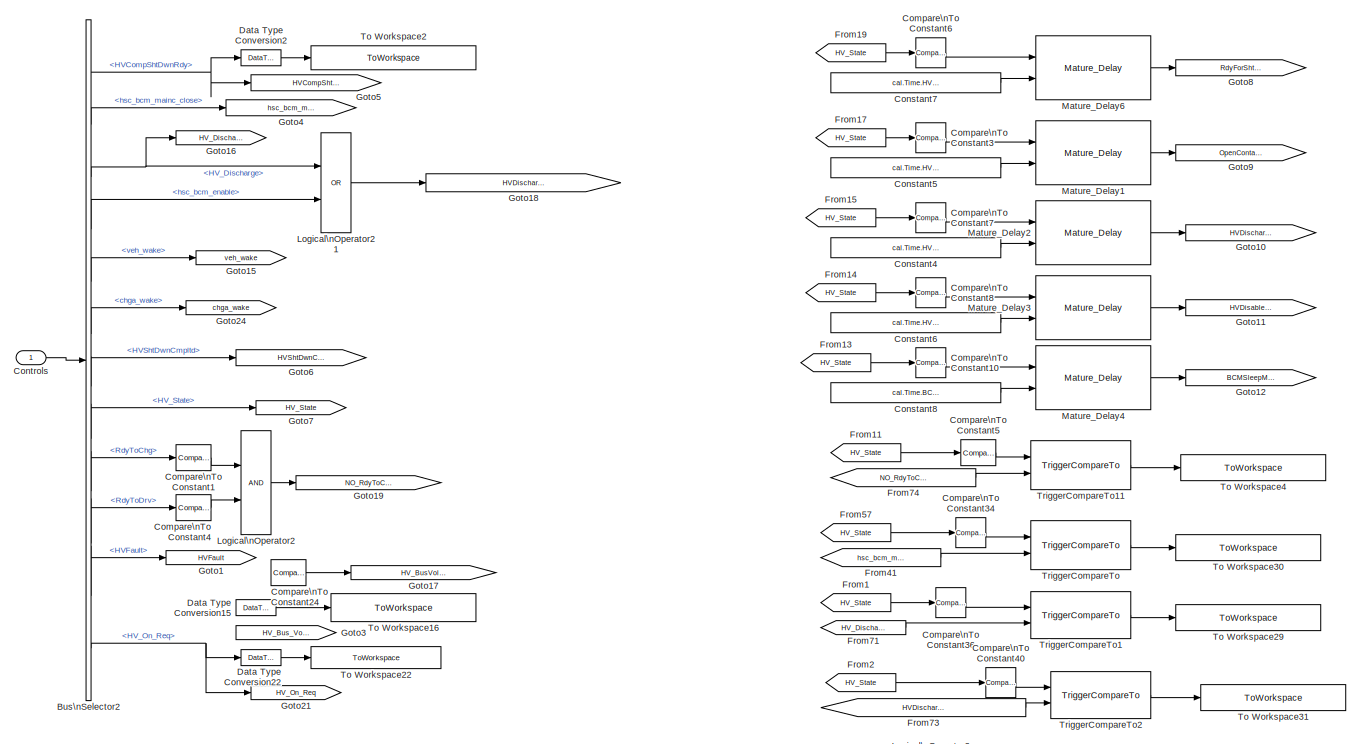
[diagram: A2_3_1_BCM_Manager/A2_3_1_3_HV_Shutdown_\nA2_3_1_11_HV_Bus_Voltage_\nA2_3_1_5_Startup_to_Shutdown - part 1/3, top left region]
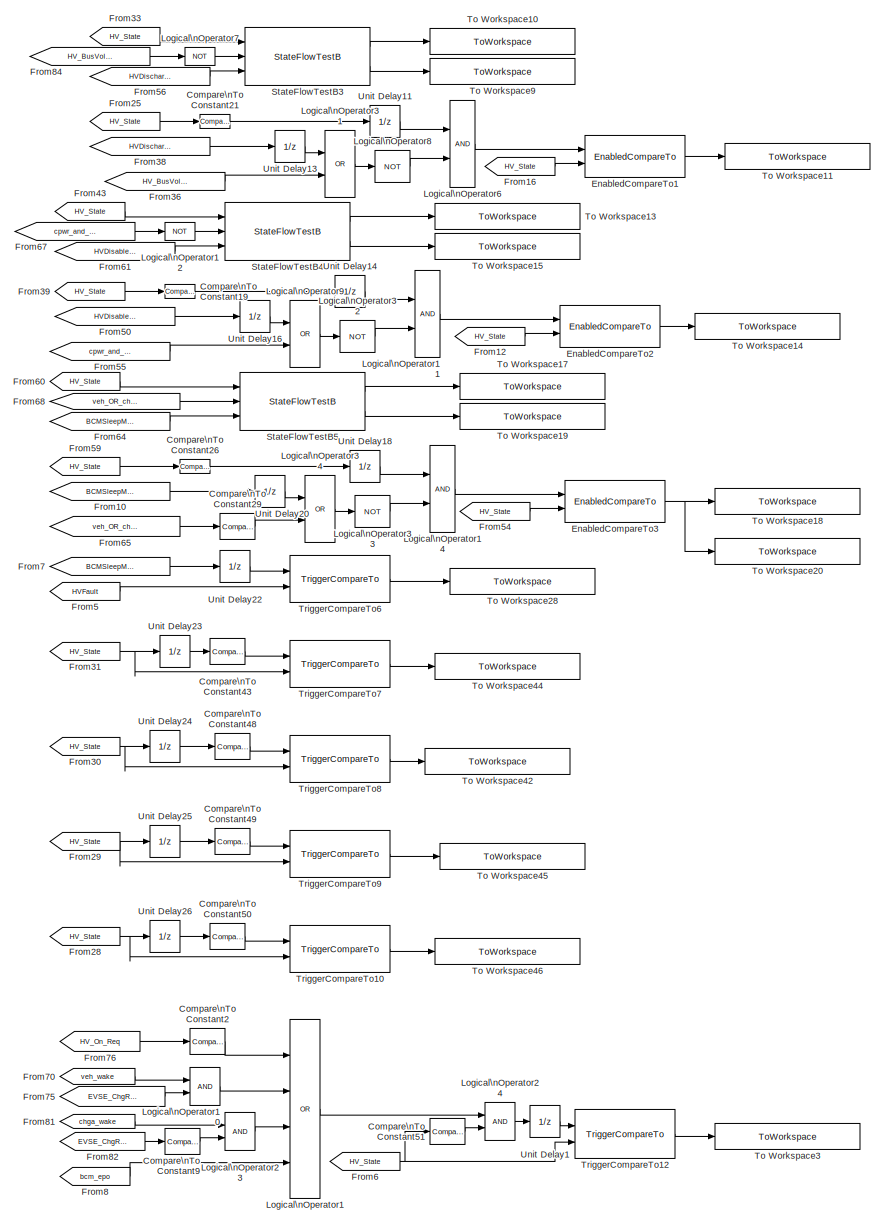
[diagram: A2_3_1_BCM_Manager/A2_3_1_3_HV_Shutdown_\nA2_3_1_11_HV_Bus_Voltage_\nA2_3_1_5_Startup_to_Shutdown - part 2/3, right side, full height]
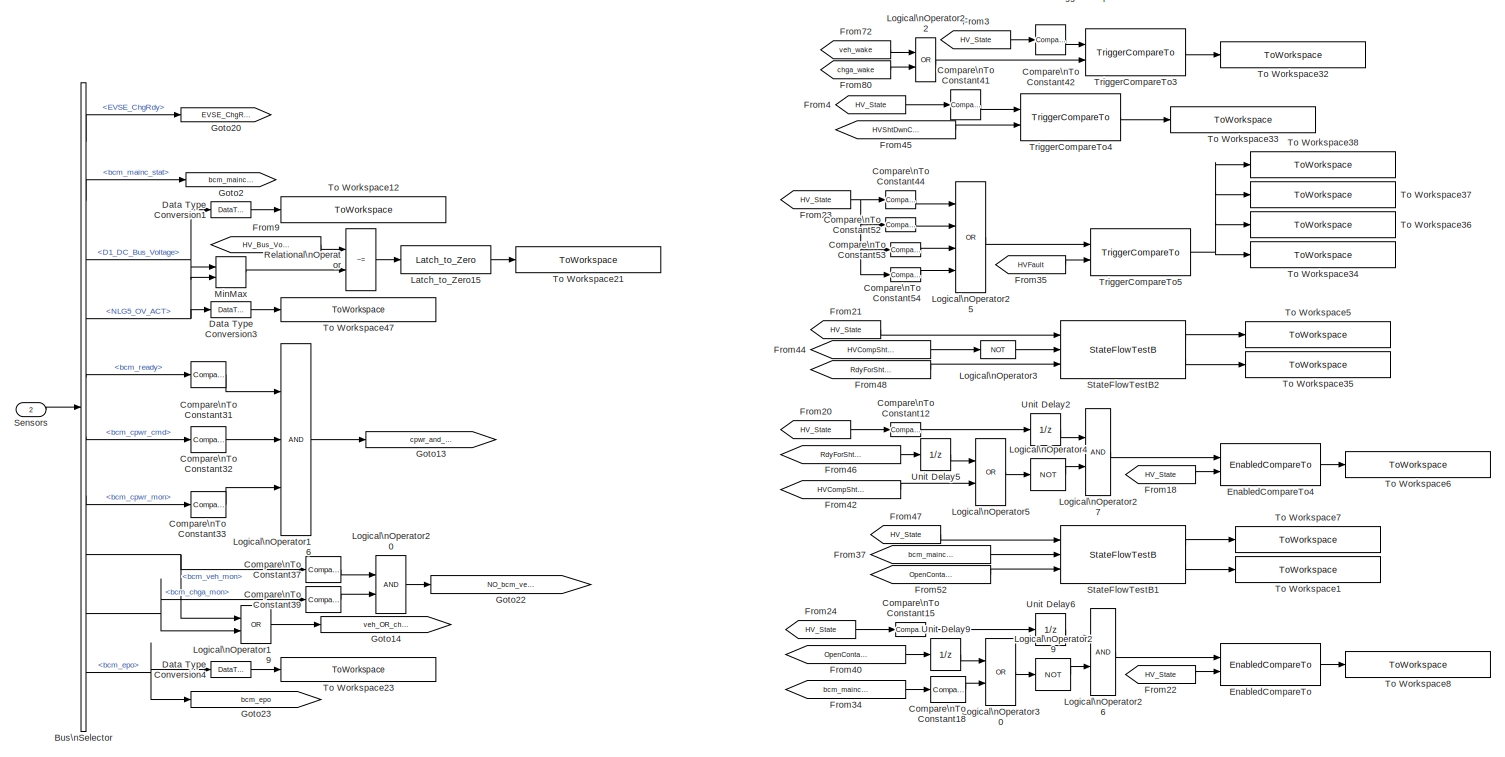
[diagram: A2_3_1_BCM_Manager/A2_3_1_3_HV_Shutdown_\nA2_3_1_11_HV_Bus_Voltage_\nA2_3_1_5_Startup_to_Shutdown - part 3/3, bottom left region]
BLOCK [SubSystem] A2_3_1_BCM_Manager/A2_3_1_3_HV_Shutdown_\nA2_3_1_11_HV_Bus_Voltage_\nA2_3_1_5_Startup_to_Shutdown
  FunctionWithSeparateData = off
  MaskHideContents = off
  MinAlgLoopOccurrences = off
  Opaque = off
  Ports = [2]
  PropExecContextOutsideSubsystem = off
  RTWSystemCode = Auto
  RequestExecContextInheritance = off
  SID = 239
BLOCK [BusSelector] A2_3_1_BCM_Manager/A2_3_1_3_HV_Shutdown_\nA2_3_1_11_HV_Bus_Voltage_\nA2_3_1_5_Startup_to_Shutdown/Bus\nSelector
  OutputSignals = Analog.EVSE_ChgRdy,Sensors_CAN.BCM_HS_Tx.BCM_Status.bcm_mainc_stat,Sensors_CAN.MCU_HS_Tx.M167_Voltage_Info.D1_DC_Bus_Voltage,Sensors_CAN.OBC_HS_Tx.NLG5_ACT_I.NLG5_OV_ACT,Sensors_CAN.BCM_HS_Tx.BCM_Status.bcm_ready,Sensors_CAN.BCM_HS_Tx.BCM_Status.bcm_cpwr_cmd,Sensors_CAN.BCM_HS_Tx.BCM_Status.bcm_cpwr_mon,Sensors_CAN.BCM_HS_Tx.BCM_Data1.bcm_veh_mon,Sensors_CAN.BCM_HS_Tx.BCM_Data1.bcm_chga_mon,Sensor...<+34ch>
  Ports = [1, 10]
  SID = 242
BLOCK [BusSelector] A2_3_1_BCM_Manager/A2_3_1_3_HV_Shutdown_\nA2_3_1_11_HV_Bus_Voltage_\nA2_3_1_5_Startup_to_Shutdown/Bus\nSelector2
  OutputSignals = Powertrain_SC_Controls.HV_Status.HVCompShtDwnRdy,Powertrain_SC_Controls.BCM_Control.hsc_bcm_mainc_close,Powertrain_SC_Controls.HV_Status.HV_Discharge,Powertrain_SC_Controls.BCM_Control.hsc_bcm_enable,Powertrain_SC_Controls.BCM_Control.veh_wake,Powertrain_SC_Controls.BCM_Control.chga_wake,Powertrain_SC_Controls.HV_Status.HVShtDwnCmpltd,Powertrain_SC_Controls.HV_Status.HV_State,Powertrain_SC_Control...<+146ch>
  Ports = [1, 12]
  SID = 243
BLOCK [Reference] A2_3_1_BCM_Manager/A2_3_1_3_HV_Shutdown_\nA2_3_1_11_HV_Bus_Voltage_\nA2_3_1_5_Startup_to_Shutdown/Compare\nTo Constant1  REF=simulink/Logic and Bit\nOperations/Compare\nTo Constant
  FunctionWithSeparateData = off
  LogicOutDataTypeMode = uint8
  Ports = [1, 1]
  RTWMemSecDataConstants = Inherit from model
  RTWMemSecDataInternal = Inherit from model
  RTWMemSecDataParameters = Inherit from model
  RTWMemSecFuncExecute = Inherit from model
  RTWMemSecFuncInitTerm = Inherit from model
  SID = 244
  ShowPortLabels = FromPortIcon
  SourceBlock = simulink/Logic and Bit\nOperations/Compare\nTo Constant
  SourceType = Compare To Constant
  SystemSampleTime = -1
  ZeroCross = on
  const = 0
  relop = ==
BLOCK [Reference] A2_3_1_BCM_Manager/A2_3_1_3_HV_Shutdown_\nA2_3_1_11_HV_Bus_Voltage_\nA2_3_1_5_Startup_to_Shutdown/Compare\nTo Constant10  REF=simulink/Logic and Bit\nOperations/Compare\nTo Constant
  FunctionWithSeparateData = off
  LogicOutDataTypeMode = uint8
  Ports = [1, 1]
  RTWMemSecDataConstants = Inherit from model
  RTWMemSecDataInternal = Inherit from model
  RTWMemSecDataParameters = Inherit from model
  RTWMemSecFuncExecute = Inherit from model
  RTWMemSecFuncInitTerm = Inherit from model
  SID = 245
  ShowPortLabels = FromPortIcon
  SourceBlock = simulink/Logic and Bit\nOperations/Compare\nTo Constant
  SourceType = Compare To Constant
  SystemSampleTime = -1
  ZeroCross = on
  const = -5
  relop = ==
BLOCK [Reference] A2_3_1_BCM_Manager/A2_3_1_3_HV_Shutdown_\nA2_3_1_11_HV_Bus_Voltage_\nA2_3_1_5_Startup_to_Shutdown/Compare\nTo Constant12  REF=simulink/Logic and Bit\nOperations/Compare\nTo Constant
  FunctionWithSeparateData = off
  LogicOutDataTypeMode = uint8
  Ports = [1, 1]
  RTWMemSecDataConstants = Inherit from model
  RTWMemSecDataInternal = Inherit from model
  RTWMemSecDataParameters = Inherit from model
  RTWMemSecFuncExecute = Inherit from model
  RTWMemSecFuncInitTerm = Inherit from model
  SID = 246
  ShowPortLabels = FromPortIcon
  SourceBlock = simulink/Logic and Bit\nOperations/Compare\nTo Constant
  SourceType = Compare To Constant
  SystemSampleTime = -1
  ZeroCross = on
  const = -1
  relop = ==
BLOCK [Reference] A2_3_1_BCM_Manager/A2_3_1_3_HV_Shutdown_\nA2_3_1_11_HV_Bus_Voltage_\nA2_3_1_5_Startup_to_Shutdown/Compare\nTo Constant15  REF=simulink/Logic and Bit\nOperations/Compare\nTo Constant
  FunctionWithSeparateData = off
  LogicOutDataTypeMode = uint8
  Ports = [1, 1]
  RTWMemSecDataConstants = Inherit from model
  RTWMemSecDataInternal = Inherit from model
  RTWMemSecDataParameters = Inherit from model
  RTWMemSecFuncExecute = Inherit from model
  RTWMemSecFuncInitTerm = Inherit from model
  SID = 247
  ShowPortLabels = FromPortIcon
  SourceBlock = simulink/Logic and Bit\nOperations/Compare\nTo Constant
  SourceType = Compare To Constant
  SystemSampleTime = -1
  ZeroCross = on
  const = -2
  relop = ==
BLOCK [Reference] A2_3_1_BCM_Manager/A2_3_1_3_HV_Shutdown_\nA2_3_1_11_HV_Bus_Voltage_\nA2_3_1_5_Startup_to_Shutdown/Compare\nTo Constant18  REF=simulink/Logic and Bit\nOperations/Compare\nTo Constant
  FunctionWithSeparateData = off
  LogicOutDataTypeMode = uint8
  Ports = [1, 1]
  RTWMemSecDataConstants = Inherit from model
  RTWMemSecDataInternal = Inherit from model
  RTWMemSecDataParameters = Inherit from model
  RTWMemSecFuncExecute = Inherit from model
  RTWMemSecFuncInitTerm = Inherit from model
  SID = 248
  ShowPortLabels = FromPortIcon
  SourceBlock = simulink/Logic and Bit\nOperations/Compare\nTo Constant
  SourceType = Compare To Constant
  SystemSampleTime = -1
  ZeroCross = on
  const = 0
  relop = ==
BLOCK [Reference] A2_3_1_BCM_Manager/A2_3_1_3_HV_Shutdown_\nA2_3_1_11_HV_Bus_Voltage_\nA2_3_1_5_Startup_to_Shutdown/Compare\nTo Constant19  REF=simulink/Logic and Bit\nOperations/Compare\nTo Constant
  FunctionWithSeparateData = off
  LogicOutDataTypeMode = uint8
  Ports = [1, 1]
  RTWMemSecDataConstants = Inherit from model
  RTWMemSecDataInternal = Inherit from model
  RTWMemSecDataParameters = Inherit from model
  RTWMemSecFuncExecute = Inherit from model
  RTWMemSecFuncInitTerm = Inherit from model
  SID = 249
  ShowPortLabels = FromPortIcon
  SourceBlock = simulink/Logic and Bit\nOperations/Compare\nTo Constant
  SourceType = Compare To Constant
  SystemSampleTime = -1
  ZeroCross = on
  const = -4
  relop = ==
BLOCK [Reference] A2_3_1_BCM_Manager/A2_3_1_3_HV_Shutdown_\nA2_3_1_11_HV_Bus_Voltage_\nA2_3_1_5_Startup_to_Shutdown/Compare\nTo Constant2  REF=simulink/Logic and Bit\nOperations/Compare\nTo Constant
  FunctionWithSeparateData = off
  LogicOutDataTypeMode = uint8
  Ports = [1, 1]
  RTWMemSecDataConstants = Inherit from model
  RTWMemSecDataInternal = Inherit from model
  RTWMemSecDataParameters = Inherit from model
  RTWMemSecFuncExecute = Inherit from model
  RTWMemSecFuncInitTerm = Inherit from model
  SID = 828
  ShowPortLabels = FromPortIcon
  SourceBlock = simulink/Logic and Bit\nOperations/Compare\nTo Constant
  SourceType = Compare To Constant
  SystemSampleTime = -1
  ZeroCross = on
  const = 0
  relop = ==
BLOCK [Reference] A2_3_1_BCM_Manager/A2_3_1_3_HV_Shutdown_\nA2_3_1_11_HV_Bus_Voltage_\nA2_3_1_5_Startup_to_Shutdown/Compare\nTo Constant21  REF=simulink/Logic and Bit\nOperations/Compare\nTo Constant
  FunctionWithSeparateData = off
  LogicOutDataTypeMode = uint8
  Ports = [1, 1]
  RTWMemSecDataConstants = Inherit from model
  RTWMemSecDataInternal = Inherit from model
  RTWMemSecDataParameters = Inherit from model
  RTWMemSecFuncExecute = Inherit from model
  RTWMemSecFuncInitTerm = Inherit from model
  SID = 251
  ShowPortLabels = FromPortIcon
  SourceBlock = simulink/Logic and Bit\nOperations/Compare\nTo Constant
  SourceType = Compare To Constant
  SystemSampleTime = -1
  ZeroCross = on
  const = -3
  relop = ==
BLOCK [Reference] A2_3_1_BCM_Manager/A2_3_1_3_HV_Shutdown_\nA2_3_1_11_HV_Bus_Voltage_\nA2_3_1_5_Startup_to_Shutdown/Compare\nTo Constant24  REF=simulink/Logic and Bit\nOperations/Compare\nTo Constant
  FunctionWithSeparateData = off
  LogicOutDataTypeMode = boolean
  Ports = [1, 1]
  RTWMemSecDataConstants = Inherit from model
  RTWMemSecDataInternal = Inherit from model
  RTWMemSecDataParameters = Inherit from model
  RTWMemSecFuncExecute = Inherit from model
  RTWMemSecFuncInitTerm = Inherit from model
  SID = 252
  ShowPortLabels = FromPortIcon
  SourceBlock = simulink/Logic and Bit\nOperations/Compare\nTo Constant
  SourceType = Compare To Constant
  SystemSampleTime = -1
  ZeroCross = on
  const = 50
  relop = <
BLOCK [Reference] A2_3_1_BCM_Manager/A2_3_1_3_HV_Shutdown_\nA2_3_1_11_HV_Bus_Voltage_\nA2_3_1_5_Startup_to_Shutdown/Compare\nTo Constant26  REF=simulink/Logic and Bit\nOperations/Compare\nTo Constant
  FunctionWithSeparateData = off
  LogicOutDataTypeMode = uint8
  Ports = [1, 1]
  RTWMemSecDataConstants = Inherit from model
  RTWMemSecDataInternal = Inherit from model
  RTWMemSecDataParameters = Inherit from model
  RTWMemSecFuncExecute = Inherit from model
  RTWMemSecFuncInitTerm = Inherit from model
  SID = 253
  ShowPortLabels = FromPortIcon
  SourceBlock = simulink/Logic and Bit\nOperations/Compare\nTo Constant
  SourceType = Compare To Constant
  SystemSampleTime = -1
  ZeroCross = on
  const = -5
  relop = ==
BLOCK [Reference] A2_3_1_BCM_Manager/A2_3_1_3_HV_Shutdown_\nA2_3_1_11_HV_Bus_Voltage_\nA2_3_1_5_Startup_to_Shutdown/Compare\nTo Constant29  REF=simulink/Logic and Bit\nOperations/Compare\nTo Constant
  FunctionWithSeparateData = off
  LogicOutDataTypeMode = uint8
  Ports = [1, 1]
  RTWMemSecDataConstants = Inherit from model
  RTWMemSecDataInternal = Inherit from model
  RTWMemSecDataParameters = Inherit from model
  RTWMemSecFuncExecute = Inherit from model
  RTWMemSecFuncInitTerm = Inherit from model
  SID = 254
  ShowPortLabels = FromPortIcon
  SourceBlock = simulink/Logic and Bit\nOperations/Compare\nTo Constant
  SourceType = Compare To Constant
  SystemSampleTime = -1
  ZeroCross = on
  const = 0
  relop = ==
BLOCK [Reference] A2_3_1_BCM_Manager/A2_3_1_3_HV_Shutdown_\nA2_3_1_11_HV_Bus_Voltage_\nA2_3_1_5_Startup_to_Shutdown/Compare\nTo Constant3  REF=simulink/Logic and Bit\nOperations/Compare\nTo Constant
  FunctionWithSeparateData = off
  LogicOutDataTypeMode = uint8
  Ports = [1, 1]
  RTWMemSecDataConstants = Inherit from model
  RTWMemSecDataInternal = Inherit from model
  RTWMemSecDataParameters = Inherit from model
  RTWMemSecFuncExecute = Inherit from model
  RTWMemSecFuncInitTerm = Inherit from model
  SID = 255
  ShowPortLabels = FromPortIcon
  SourceBlock = simulink/Logic and Bit\nOperations/Compare\nTo Constant
  SourceType = Compare To Constant
  SystemSampleTime = -1
  ZeroCross = on
  const = -2
  relop = ==
BLOCK [Reference] A2_3_1_BCM_Manager/A2_3_1_3_HV_Shutdown_\nA2_3_1_11_HV_Bus_Voltage_\nA2_3_1_5_Startup_to_Shutdown/Compare\nTo Constant31  REF=simulink/Logic and Bit\nOperations/Compare\nTo Constant
  FunctionWithSeparateData = off
  LogicOutDataTypeMode = uint8
  Ports = [1, 1]
  RTWMemSecDataConstants = Inherit from model
  RTWMemSecDataInternal = Inherit from model
  RTWMemSecDataParameters = Inherit from model
  RTWMemSecFuncExecute = Inherit from model
  RTWMemSecFuncInitTerm = Inherit from model
  SID = 256
  ShowPortLabels = FromPortIcon
  SourceBlock = simulink/Logic and Bit\nOperations/Compare\nTo Constant
  SourceType = Compare To Constant
  SystemSampleTime = -1
  ZeroCross = on
  const = 0
  relop = ==
BLOCK [Reference] A2_3_1_BCM_Manager/A2_3_1_3_HV_Shutdown_\nA2_3_1_11_HV_Bus_Voltage_\nA2_3_1_5_Startup_to_Shutdown/Compare\nTo Constant32  REF=simulink/Logic and Bit\nOperations/Compare\nTo Constant
  FunctionWithSeparateData = off
  LogicOutDataTypeMode = uint8
  Ports = [1, 1]
  RTWMemSecDataConstants = Inherit from model
  RTWMemSecDataInternal = Inherit from model
  RTWMemSecDataParameters = Inherit from model
  RTWMemSecFuncExecute = Inherit from model
  RTWMemSecFuncInitTerm = Inherit from model
  SID = 257
  ShowPortLabels = FromPortIcon
  SourceBlock = simulink/Logic and Bit\nOperations/Compare\nTo Constant
  SourceType = Compare To Constant
  SystemSampleTime = -1
  ZeroCross = on
  const = 0
  relop = ==
BLOCK [Reference] A2_3_1_BCM_Manager/A2_3_1_3_HV_Shutdown_\nA2_3_1_11_HV_Bus_Voltage_\nA2_3_1_5_Startup_to_Shutdown/Compare\nTo Constant33  REF=simulink/Logic and Bit\nOperations/Compare\nTo Constant
  FunctionWithSeparateData = off
  LogicOutDataTypeMode = uint8
  Ports = [1, 1]
  RTWMemSecDataConstants = Inherit from model
  RTWMemSecDataInternal = Inherit from model
  RTWMemSecDataParameters = Inherit from model
  RTWMemSecFuncExecute = Inherit from model
  RTWMemSecFuncInitTerm = Inherit from model
  SID = 258
  ShowPortLabels = FromPortIcon
  SourceBlock = simulink/Logic and Bit\nOperations/Compare\nTo Constant
  SourceType = Compare To Constant
  SystemSampleTime = -1
  ZeroCross = on
  const = 0
  relop = ==
BLOCK [Reference] A2_3_1_BCM_Manager/A2_3_1_3_HV_Shutdown_\nA2_3_1_11_HV_Bus_Voltage_\nA2_3_1_5_Startup_to_Shutdown/Compare\nTo Constant34  REF=simulink/Logic and Bit\nOperations/Compare\nTo Constant
  FunctionWithSeparateData = off
  LogicOutDataTypeMode = uint8
  Ports = [1, 1]
  RTWMemSecDataConstants = Inherit from model
  RTWMemSecDataInternal = Inherit from model
  RTWMemSecDataParameters = Inherit from model
  RTWMemSecFuncExecute = Inherit from model
  RTWMemSecFuncInitTerm = Inherit from model
  SID = 259
  ShowPortLabels = FromPortIcon
  SourceBlock = simulink/Logic and Bit\nOperations/Compare\nTo Constant
  SourceType = Compare To Constant
  SystemSampleTime = -1
  ZeroCross = on
  const = -2
  relop = ==
BLOCK [Reference] A2_3_1_BCM_Manager/A2_3_1_3_HV_Shutdown_\nA2_3_1_11_HV_Bus_Voltage_\nA2_3_1_5_Startup_to_Shutdown/Compare\nTo Constant36  REF=simulink/Logic and Bit\nOperations/Compare\nTo Constant
  FunctionWithSeparateData = off
  LogicOutDataTypeMode = uint8
  Ports = [1, 1]
  RTWMemSecDataConstants = Inherit from model
  RTWMemSecDataInternal = Inherit from model
  RTWMemSecDataParameters = Inherit from model
  RTWMemSecFuncExecute = Inherit from model
  RTWMemSecFuncInitTerm = Inherit from model
  SID = 260
  ShowPortLabels = FromPortIcon
  SourceBlock = simulink/Logic and Bit\nOperations/Compare\nTo Constant
  SourceType = Compare To Constant
  SystemSampleTime = -1
  ZeroCross = on
  const = -3
  relop = ==
BLOCK [Reference] A2_3_1_BCM_Manager/A2_3_1_3_HV_Shutdown_\nA2_3_1_11_HV_Bus_Voltage_\nA2_3_1_5_Startup_to_Shutdown/Compare\nTo Constant37  REF=simulink/Logic and Bit\nOperations/Compare\nTo Constant
  FunctionWithSeparateData = off
  LogicOutDataTypeMode = uint8
  Ports = [1, 1]
  RTWMemSecDataConstants = Inherit from model
  RTWMemSecDataInternal = Inherit from model
  RTWMemSecDataParameters = Inherit from model
  RTWMemSecFuncExecute = Inherit from model
  RTWMemSecFuncInitTerm = Inherit from model
  SID = 261
  ShowPortLabels = FromPortIcon
  SourceBlock = simulink/Logic and Bit\nOperations/Compare\nTo Constant
  SourceType = Compare To Constant
  SystemSampleTime = -1
  ZeroCross = on
  const = 0
  relop = ==
BLOCK [Reference] A2_3_1_BCM_Manager/A2_3_1_3_HV_Shutdown_\nA2_3_1_11_HV_Bus_Voltage_\nA2_3_1_5_Startup_to_Shutdown/Compare\nTo Constant39  REF=simulink/Logic and Bit\nOperations/Compare\nTo Constant
  FunctionWithSeparateData = off
  LogicOutDataTypeMode = uint8
  Ports = [1, 1]
  RTWMemSecDataConstants = Inherit from model
  RTWMemSecDataInternal = Inherit from model
  RTWMemSecDataParameters = Inherit from model
  RTWMemSecFuncExecute = Inherit from model
  RTWMemSecFuncInitTerm = Inherit from model
  SID = 262
  ShowPortLabels = FromPortIcon
  SourceBlock = simulink/Logic and Bit\nOperations/Compare\nTo Constant
  SourceType = Compare To Constant
  SystemSampleTime = -1
  ZeroCross = on
  const = 0
  relop = ==
BLOCK [Reference] A2_3_1_BCM_Manager/A2_3_1_3_HV_Shutdown_\nA2_3_1_11_HV_Bus_Voltage_\nA2_3_1_5_Startup_to_Shutdown/Compare\nTo Constant4  REF=simulink/Logic and Bit\nOperations/Compare\nTo Constant
  FunctionWithSeparateData = off
  LogicOutDataTypeMode = uint8
  Ports = [1, 1]
  RTWMemSecDataConstants = Inherit from model
  RTWMemSecDataInternal = Inherit from model
  RTWMemSecDataParameters = Inherit from model
  RTWMemSecFuncExecute = Inherit from model
  RTWMemSecFuncInitTerm = Inherit from model
  SID = 263
  ShowPortLabels = FromPortIcon
  SourceBlock = simulink/Logic and Bit\nOperations/Compare\nTo Constant
  SourceType = Compare To Constant
  SystemSampleTime = -1
  ZeroCross = on
  const = 0
  relop = ==
BLOCK [Reference] A2_3_1_BCM_Manager/A2_3_1_3_HV_Shutdown_\nA2_3_1_11_HV_Bus_Voltage_\nA2_3_1_5_Startup_to_Shutdown/Compare\nTo Constant40  REF=simulink/Logic and Bit\nOperations/Compare\nTo Constant
  FunctionWithSeparateData = off
  LogicOutDataTypeMode = uint8
  Ports = [1, 1]
  RTWMemSecDataConstants = Inherit from model
  RTWMemSecDataInternal = Inherit from model
  RTWMemSecDataParameters = Inherit from model
  RTWMemSecFuncExecute = Inherit from model
  RTWMemSecFuncInitTerm = Inherit from model
  SID = 264
  ShowPortLabels = FromPortIcon
  SourceBlock = simulink/Logic and Bit\nOperations/Compare\nTo Constant
  SourceType = Compare To Constant
  SystemSampleTime = -1
  ZeroCross = on
  const = -4
  relop = ==
BLOCK [Reference] A2_3_1_BCM_Manager/A2_3_1_3_HV_Shutdown_\nA2_3_1_11_HV_Bus_Voltage_\nA2_3_1_5_Startup_to_Shutdown/Compare\nTo Constant41  REF=simulink/Logic and Bit\nOperations/Compare\nTo Constant
  FunctionWithSeparateData = off
  LogicOutDataTypeMode = uint8
  Ports = [1, 1]
  RTWMemSecDataConstants = Inherit from model
  RTWMemSecDataInternal = Inherit from model
  RTWMemSecDataParameters = Inherit from model
  RTWMemSecFuncExecute = Inherit from model
  RTWMemSecFuncInitTerm = Inherit from model
  SID = 265
  ShowPortLabels = FromPortIcon
  SourceBlock = simulink/Logic and Bit\nOperations/Compare\nTo Constant
  SourceType = Compare To Constant
  SystemSampleTime = -1
  ZeroCross = on
  const = -6
  relop = ==
BLOCK [Reference] A2_3_1_BCM_Manager/A2_3_1_3_HV_Shutdown_\nA2_3_1_11_HV_Bus_Voltage_\nA2_3_1_5_Startup_to_Shutdown/Compare\nTo Constant42  REF=simulink/Logic and Bit\nOperations/Compare\nTo Constant
  FunctionWithSeparateData = off
  LogicOutDataTypeMode = uint8
  Ports = [1, 1]
  RTWMemSecDataConstants = Inherit from model
  RTWMemSecDataInternal = Inherit from model
  RTWMemSecDataParameters = Inherit from model
  RTWMemSecFuncExecute = Inherit from model
  RTWMemSecFuncInitTerm = Inherit from model
  SID = 266
  ShowPortLabels = FromPortIcon
  SourceBlock = simulink/Logic and Bit\nOperations/Compare\nTo Constant
  SourceType = Compare To Constant
  SystemSampleTime = -1
  ZeroCross = on
  const = -5
  relop = ==
BLOCK [Reference] A2_3_1_BCM_Manager/A2_3_1_3_HV_Shutdown_\nA2_3_1_11_HV_Bus_Voltage_\nA2_3_1_5_Startup_to_Shutdown/Compare\nTo Constant43  REF=simulink/Logic and Bit\nOperations/Compare\nTo Constant
  FunctionWithSeparateData = off
  LogicOutDataTypeMode = uint8
  Ports = [1, 1]
  RTWMemSecDataConstants = Inherit from model
  RTWMemSecDataInternal = Inherit from model
  RTWMemSecDataParameters = Inherit from model
  RTWMemSecFuncExecute = Inherit from model
  RTWMemSecFuncInitTerm = Inherit from model
  SID = 267
  ShowPortLabels = FromPortIcon
  SourceBlock = simulink/Logic and Bit\nOperations/Compare\nTo Constant
  SourceType = Compare To Constant
  SystemSampleTime = -1
  ZeroCross = on
  const = -11
  relop = ==
BLOCK [Reference] A2_3_1_BCM_Manager/A2_3_1_3_HV_Shutdown_\nA2_3_1_11_HV_Bus_Voltage_\nA2_3_1_5_Startup_to_Shutdown/Compare\nTo Constant44  REF=simulink/Logic and Bit\nOperations/Compare\nTo Constant
  FunctionWithSeparateData = off
  LogicOutDataTypeMode = uint8
  Ports = [1, 1]
  RTWMemSecDataConstants = Inherit from model
  RTWMemSecDataInternal = Inherit from model
  RTWMemSecDataParameters = Inherit from model
  RTWMemSecFuncExecute = Inherit from model
  RTWMemSecFuncInitTerm = Inherit from model
  SID = 268
  ShowPortLabels = FromPortIcon
  SourceBlock = simulink/Logic and Bit\nOperations/Compare\nTo Constant
  SourceType = Compare To Constant
  SystemSampleTime = -1
  ZeroCross = on
  const = -11
  relop = ==
BLOCK [Reference] A2_3_1_BCM_Manager/A2_3_1_3_HV_Shutdown_\nA2_3_1_11_HV_Bus_Voltage_\nA2_3_1_5_Startup_to_Shutdown/Compare\nTo Constant48  REF=simulink/Logic and Bit\nOperations/Compare\nTo Constant
  FunctionWithSeparateData = off
  LogicOutDataTypeMode = uint8
  Ports = [1, 1]
  RTWMemSecDataConstants = Inherit from model
  RTWMemSecDataInternal = Inherit from model
  RTWMemSecDataParameters = Inherit from model
  RTWMemSecFuncExecute = Inherit from model
  RTWMemSecFuncInitTerm = Inherit from model
  SID = 269
  ShowPortLabels = FromPortIcon
  SourceBlock = simulink/Logic and Bit\nOperations/Compare\nTo Constant
  SourceType = Compare To Constant
  SystemSampleTime = -1
  ZeroCross = on
  const = -12
  relop = ==
BLOCK [Reference] A2_3_1_BCM_Manager/A2_3_1_3_HV_Shutdown_\nA2_3_1_11_HV_Bus_Voltage_\nA2_3_1_5_Startup_to_Shutdown/Compare\nTo Constant49  REF=simulink/Logic and Bit\nOperations/Compare\nTo Constant
  FunctionWithSeparateData = off
  LogicOutDataTypeMode = uint8
  Ports = [1, 1]
  RTWMemSecDataConstants = Inherit from model
  RTWMemSecDataInternal = Inherit from model
  RTWMemSecDataParameters = Inherit from model
  RTWMemSecFuncExecute = Inherit from model
  RTWMemSecFuncInitTerm = Inherit from model
  SID = 270
  ShowPortLabels = FromPortIcon
  SourceBlock = simulink/Logic and Bit\nOperations/Compare\nTo Constant
  SourceType = Compare To Constant
  SystemSampleTime = -1
  ZeroCross = on
  const = -13
  relop = ==
BLOCK [Reference] A2_3_1_BCM_Manager/A2_3_1_3_HV_Shutdown_\nA2_3_1_11_HV_Bus_Voltage_\nA2_3_1_5_Startup_to_Shutdown/Compare\nTo Constant5  REF=simulink/Logic and Bit\nOperations/Compare\nTo Constant
  FunctionWithSeparateData = off
  LogicOutDataTypeMode = uint8
  Ports = [1, 1]
  RTWMemSecDataConstants = Inherit from model
  RTWMemSecDataInternal = Inherit from model
  RTWMemSecDataParameters = Inherit from model
  RTWMemSecFuncExecute = Inherit from model
  RTWMemSecFuncInitTerm = Inherit from model
  SID = 271
  ShowPortLabels = FromPortIcon
  SourceBlock = simulink/Logic and Bit\nOperations/Compare\nTo Constant
  SourceType = Compare To Constant
  SystemSampleTime = -1
  ZeroCross = on
  const = -1
  relop = ==
BLOCK [Reference] A2_3_1_BCM_Manager/A2_3_1_3_HV_Shutdown_\nA2_3_1_11_HV_Bus_Voltage_\nA2_3_1_5_Startup_to_Shutdown/Compare\nTo Constant50  REF=simulink/Logic and Bit\nOperations/Compare\nTo Constant
  FunctionWithSeparateData = off
  LogicOutDataTypeMode = uint8
  Ports = [1, 1]
  RTWMemSecDataConstants = Inherit from model
  RTWMemSecDataInternal = Inherit from model
  RTWMemSecDataParameters = Inherit from model
  RTWMemSecFuncExecute = Inherit from model
  RTWMemSecFuncInitTerm = Inherit from model
  SID = 272
  ShowPortLabels = FromPortIcon
  SourceBlock = simulink/Logic and Bit\nOperations/Compare\nTo Constant
  SourceType = Compare To Constant
  SystemSampleTime = -1
  ZeroCross = on
  const = -14
  relop = ==
BLOCK [Reference] A2_3_1_BCM_Manager/A2_3_1_3_HV_Shutdown_\nA2_3_1_11_HV_Bus_Voltage_\nA2_3_1_5_Startup_to_Shutdown/Compare\nTo Constant51  REF=simulink/Logic and Bit\nOperations/Compare\nTo Constant
  FunctionWithSeparateData = off
  LogicOutDataTypeMode = uint8
  Ports = [1, 1]
  RTWMemSecDataConstants = Inherit from model
  RTWMemSecDataInternal = Inherit from model
  RTWMemSecDataParameters = Inherit from model
  RTWMemSecFuncExecute = Inherit from model
  RTWMemSecFuncInitTerm = Inherit from model
  SID = 829
  ShowPortLabels = FromPortIcon
  SourceBlock = simulink/Logic and Bit\nOperations/Compare\nTo Constant
  SourceType = Compare To Constant
  SystemSampleTime = -1
  ZeroCross = on
  const = 0
  relop = >
BLOCK [Reference] A2_3_1_BCM_Manager/A2_3_1_3_HV_Shutdown_\nA2_3_1_11_HV_Bus_Voltage_\nA2_3_1_5_Startup_to_Shutdown/Compare\nTo Constant52  REF=simulink/Logic and Bit\nOperations/Compare\nTo Constant
  FunctionWithSeparateData = off
  LogicOutDataTypeMode = uint8
  Ports = [1, 1]
  RTWMemSecDataConstants = Inherit from model
  RTWMemSecDataInternal = Inherit from model
  RTWMemSecDataParameters = Inherit from model
  RTWMemSecFuncExecute = Inherit from model
  RTWMemSecFuncInitTerm = Inherit from model
  SID = 274
  ShowPortLabels = FromPortIcon
  SourceBlock = simulink/Logic and Bit\nOperations/Compare\nTo Constant
  SourceType = Compare To Constant
  SystemSampleTime = -1
  ZeroCross = on
  const = -12
  relop = ==
BLOCK [Reference] A2_3_1_BCM_Manager/A2_3_1_3_HV_Shutdown_\nA2_3_1_11_HV_Bus_Voltage_\nA2_3_1_5_Startup_to_Shutdown/Compare\nTo Constant53  REF=simulink/Logic and Bit\nOperations/Compare\nTo Constant
  FunctionWithSeparateData = off
  LogicOutDataTypeMode = uint8
  Ports = [1, 1]
  RTWMemSecDataConstants = Inherit from model
  RTWMemSecDataInternal = Inherit from model
  RTWMemSecDataParameters = Inherit from model
  RTWMemSecFuncExecute = Inherit from model
  RTWMemSecFuncInitTerm = Inherit from model
  SID = 275
  ShowPortLabels = FromPortIcon
  SourceBlock = simulink/Logic and Bit\nOperations/Compare\nTo Constant
  SourceType = Compare To Constant
  SystemSampleTime = -1
  ZeroCross = on
  const = -13
  relop = ==
BLOCK [Reference] A2_3_1_BCM_Manager/A2_3_1_3_HV_Shutdown_\nA2_3_1_11_HV_Bus_Voltage_\nA2_3_1_5_Startup_to_Shutdown/Compare\nTo Constant54  REF=simulink/Logic and Bit\nOperations/Compare\nTo Constant
  FunctionWithSeparateData = off
  LogicOutDataTypeMode = uint8
  Ports = [1, 1]
  RTWMemSecDataConstants = Inherit from model
  RTWMemSecDataInternal = Inherit from model
  RTWMemSecDataParameters = Inherit from model
  RTWMemSecFuncExecute = Inherit from model
  RTWMemSecFuncInitTerm = Inherit from model
  SID = 276
  ShowPortLabels = FromPortIcon
  SourceBlock = simulink/Logic and Bit\nOperations/Compare\nTo Constant
  SourceType = Compare To Constant
  SystemSampleTime = -1
  ZeroCross = on
  const = -14
  relop = ==
BLOCK [Reference] A2_3_1_BCM_Manager/A2_3_1_3_HV_Shutdown_\nA2_3_1_11_HV_Bus_Voltage_\nA2_3_1_5_Startup_to_Shutdown/Compare\nTo Constant6  REF=simulink/Logic and Bit\nOperations/Compare\nTo Constant
  FunctionWithSeparateData = off
  LogicOutDataTypeMode = uint8
  Ports = [1, 1]
  RTWMemSecDataConstants = Inherit from model
  RTWMemSecDataInternal = Inherit from model
  RTWMemSecDataParameters = Inherit from model
  RTWMemSecFuncExecute = Inherit from model
  RTWMemSecFuncInitTerm = Inherit from model
  SID = 277
  ShowPortLabels = FromPortIcon
  SourceBlock = simulink/Logic and Bit\nOperations/Compare\nTo Constant
  SourceType = Compare To Constant
  SystemSampleTime = -1
  ZeroCross = on
  const = -1
  relop = ==
BLOCK [Reference] A2_3_1_BCM_Manager/A2_3_1_3_HV_Shutdown_\nA2_3_1_11_HV_Bus_Voltage_\nA2_3_1_5_Startup_to_Shutdown/Compare\nTo Constant7  REF=simulink/Logic and Bit\nOperations/Compare\nTo Constant
  FunctionWithSeparateData = off
  LogicOutDataTypeMode = uint8
  Ports = [1, 1]
  RTWMemSecDataConstants = Inherit from model
  RTWMemSecDataInternal = Inherit from model
  RTWMemSecDataParameters = Inherit from model
  RTWMemSecFuncExecute = Inherit from model
  RTWMemSecFuncInitTerm = Inherit from model
  SID = 278
  ShowPortLabels = FromPortIcon
  SourceBlock = simulink/Logic and Bit\nOperations/Compare\nTo Constant
  SourceType = Compare To Constant
  SystemSampleTime = -1
  ZeroCross = on
  const = -3
  relop = ==
BLOCK [Reference] A2_3_1_BCM_Manager/A2_3_1_3_HV_Shutdown_\nA2_3_1_11_HV_Bus_Voltage_\nA2_3_1_5_Startup_to_Shutdown/Compare\nTo Constant8  REF=simulink/Logic and Bit\nOperations/Compare\nTo Constant
  FunctionWithSeparateData = off
  LogicOutDataTypeMode = uint8
  Ports = [1, 1]
  RTWMemSecDataConstants = Inherit from model
  RTWMemSecDataInternal = Inherit from model
  RTWMemSecDataParameters = Inherit from model
  RTWMemSecFuncExecute = Inherit from model
  RTWMemSecFuncInitTerm = Inherit from model
  SID = 279
  ShowPortLabels = FromPortIcon
  SourceBlock = simulink/Logic and Bit\nOperations/Compare\nTo Constant
  SourceType = Compare To Constant
  SystemSampleTime = -1
  ZeroCross = on
  const = -4
  relop = ==
BLOCK [Reference] A2_3_1_BCM_Manager/A2_3_1_3_HV_Shutdown_\nA2_3_1_11_HV_Bus_Voltage_\nA2_3_1_5_Startup_to_Shutdown/Compare\nTo Constant9  REF=simulink/Logic and Bit\nOperations/Compare\nTo Constant
  FunctionWithSeparateData = off
  LogicOutDataTypeMode = uint8
  Ports = [1, 1]
  RTWMemSecDataConstants = Inherit from model
  RTWMemSecDataInternal = Inherit from model
  RTWMemSecDataParameters = Inherit from model
  RTWMemSecFuncExecute = Inherit from model
  RTWMemSecFuncInitTerm = Inherit from model
  SID = 830
  ShowPortLabels = FromPortIcon
  SourceBlock = simulink/Logic and Bit\nOperations/Compare\nTo Constant
  SourceType = Compare To Constant
  SystemSampleTime = -1
  ZeroCross = on
  const = 0
  relop = ==
BLOCK [Constant] A2_3_1_BCM_Manager/A2_3_1_3_HV_Shutdown_\nA2_3_1_11_HV_Bus_Voltage_\nA2_3_1_5_Startup_to_Shutdown/Constant4
  SID = 294
  Value = cal.Time.HV.Discharge
  VectorParams1D = off
BLOCK [Constant] A2_3_1_BCM_Manager/A2_3_1_3_HV_Shutdown_\nA2_3_1_11_HV_Bus_Voltage_\nA2_3_1_5_Startup_to_Shutdown/Constant5
  SID = 295
  Value = cal.Time.HV.OpenContact+tloop
  VectorParams1D = off
BLOCK [Constant] A2_3_1_BCM_Manager/A2_3_1_3_HV_Shutdown_\nA2_3_1_11_HV_Bus_Voltage_\nA2_3_1_5_Startup_to_Shutdown/Constant6
  SID = 296
  Value = cal.Time.HV.DisableBCM+tloop
  VectorParams1D = off
BLOCK [Constant] A2_3_1_BCM_Manager/A2_3_1_3_HV_Shutdown_\nA2_3_1_11_HV_Bus_Voltage_\nA2_3_1_5_Startup_to_Shutdown/Constant7
  SID = 297
  Value = cal.Time.HV.ReadyForShtdwn
  VectorParams1D = off
BLOCK [Constant] A2_3_1_BCM_Manager/A2_3_1_3_HV_Shutdown_\nA2_3_1_11_HV_Bus_Voltage_\nA2_3_1_5_Startup_to_Shutdown/Constant8
  SID = 298
  Value = cal.Time.BCMSleep+tloop
  VectorParams1D = off
BLOCK [Inport] A2_3_1_BCM_Manager/A2_3_1_3_HV_Shutdown_\nA2_3_1_11_HV_Bus_Voltage_\nA2_3_1_5_Startup_to_Shutdown/Controls
  IconDisplay = Port number
  OutDataType = fixdt(1, 16)
  OutScaling = 2^0
  SID = 240
BLOCK [DataTypeConversion] A2_3_1_BCM_Manager/A2_3_1_3_HV_Shutdown_\nA2_3_1_11_HV_Bus_Voltage_\nA2_3_1_5_Startup_to_Shutdown/Data Type Conversion1
  OutDataType = fixdt(1, 16)
  OutScaling = 2^0
  RndMeth = Floor
  SID = 299
  SaturateOnIntegerOverflow = off
BLOCK [DataTypeConversion] A2_3_1_BCM_Manager/A2_3_1_3_HV_Shutdown_\nA2_3_1_11_HV_Bus_Voltage_\nA2_3_1_5_Startup_to_Shutdown/Data Type Conversion15
  OutDataType = fixdt(1, 16)
  OutScaling = 2^0
  RndMeth = Floor
  SID = 300
  SaturateOnIntegerOverflow = off
BLOCK [DataTypeConversion] A2_3_1_BCM_Manager/A2_3_1_3_HV_Shutdown_\nA2_3_1_11_HV_Bus_Voltage_\nA2_3_1_5_Startup_to_Shutdown/Data Type Conversion2
  OutDataType = fixdt(1, 16)
  OutScaling = 2^0
  RndMeth = Floor
  SID = 301
  SaturateOnIntegerOverflow = off
BLOCK [DataTypeConversion] A2_3_1_BCM_Manager/A2_3_1_3_HV_Shutdown_\nA2_3_1_11_HV_Bus_Voltage_\nA2_3_1_5_Startup_to_Shutdown/Data Type Conversion22
  OutDataType = fixdt(1, 16)
  OutScaling = 2^0
  RndMeth = Floor
  SID = 302
  SaturateOnIntegerOverflow = off
BLOCK [DataTypeConversion] A2_3_1_BCM_Manager/A2_3_1_3_HV_Shutdown_\nA2_3_1_11_HV_Bus_Voltage_\nA2_3_1_5_Startup_to_Shutdown/Data Type Conversion3
  OutDataType = fixdt(1, 16)
  OutScaling = 2^0
  RndMeth = Floor
  SID = 303
  SaturateOnIntegerOverflow = off
BLOCK [DataTypeConversion] A2_3_1_BCM_Manager/A2_3_1_3_HV_Shutdown_\nA2_3_1_11_HV_Bus_Voltage_\nA2_3_1_5_Startup_to_Shutdown/Data Type Conversion4
  OutDataType = fixdt(1, 16)
  OutScaling = 2^0
  RndMeth = Floor
  SID = 845
  SaturateOnIntegerOverflow = off
BLOCK [Reference] A2_3_1_BCM_Manager/A2_3_1_3_HV_Shutdown_\nA2_3_1_11_HV_Bus_Voltage_\nA2_3_1_5_Startup_to_Shutdown/EnabledCompareTo  REF=EC2_libraries/EnabledCompareTo
  FunctionWithSeparateData = off
  Ports = [2, 1]
  RTWMemSecDataConstants = Inherit from model
  RTWMemSecDataInternal = Inherit from model
  RTWMemSecDataParameters = Inherit from model
  RTWMemSecFuncExecute = Inherit from model
  RTWMemSecFuncInitTerm = Inherit from model
  SID = 821
  ShowPortLabels = FromPortIcon
  SourceBlock = EC2_libraries/EnabledCompareTo
  SystemSampleTime = -1
  exp_val = -2
BLOCK [Reference] A2_3_1_BCM_Manager/A2_3_1_3_HV_Shutdown_\nA2_3_1_11_HV_Bus_Voltage_\nA2_3_1_5_Startup_to_Shutdown/EnabledCompareTo1  REF=EC2_libraries/EnabledCompareTo
  FunctionWithSeparateData = off
  Ports = [2, 1]
  RTWMemSecDataConstants = Inherit from model
  RTWMemSecDataInternal = Inherit from model
  RTWMemSecDataParameters = Inherit from model
  RTWMemSecFuncExecute = Inherit from model
  RTWMemSecFuncInitTerm = Inherit from model
  SID = 822
  ShowPortLabels = FromPortIcon
  SourceBlock = EC2_libraries/EnabledCompareTo
  SystemSampleTime = -1
  exp_val = -3
BLOCK [Reference] A2_3_1_BCM_Manager/A2_3_1_3_HV_Shutdown_\nA2_3_1_11_HV_Bus_Voltage_\nA2_3_1_5_Startup_to_Shutdown/EnabledCompareTo2  REF=EC2_libraries/EnabledCompareTo
  FunctionWithSeparateData = off
  Ports = [2, 1]
  RTWMemSecDataConstants = Inherit from model
  RTWMemSecDataInternal = Inherit from model
  RTWMemSecDataParameters = Inherit from model
  RTWMemSecFuncExecute = Inherit from model
  RTWMemSecFuncInitTerm = Inherit from model
  SID = 823
  ShowPortLabels = FromPortIcon
  SourceBlock = EC2_libraries/EnabledCompareTo
  SystemSampleTime = -1
  exp_val = -4
BLOCK [Reference] A2_3_1_BCM_Manager/A2_3_1_3_HV_Shutdown_\nA2_3_1_11_HV_Bus_Voltage_\nA2_3_1_5_Startup_to_Shutdown/EnabledCompareTo3  REF=EC2_libraries/EnabledCompareTo
  FunctionWithSeparateData = off
  Ports = [2, 1]
  RTWMemSecDataConstants = Inherit from model
  RTWMemSecDataInternal = Inherit from model
  RTWMemSecDataParameters = Inherit from model
  RTWMemSecFuncExecute = Inherit from model
  RTWMemSecFuncInitTerm = Inherit from model
  SID = 824
  ShowPortLabels = FromPortIcon
  SourceBlock = EC2_libraries/EnabledCompareTo
  SystemSampleTime = -1
  exp_val = -5
BLOCK [Reference] A2_3_1_BCM_Manager/A2_3_1_3_HV_Shutdown_\nA2_3_1_11_HV_Bus_Voltage_\nA2_3_1_5_Startup_to_Shutdown/EnabledCompareTo4  REF=EC2_libraries/EnabledCompareTo
  FunctionWithSeparateData = off
  Ports = [2, 1]
  RTWMemSecDataConstants = Inherit from model
  RTWMemSecDataInternal = Inherit from model
  RTWMemSecDataParameters = Inherit from model
  RTWMemSecFuncExecute = Inherit from model
  RTWMemSecFuncInitTerm = Inherit from model
  SID = 825
  ShowPortLabels = FromPortIcon
  SourceBlock = EC2_libraries/EnabledCompareTo
  SystemSampleTime = -1
  exp_val = -1
BLOCK [From] A2_3_1_BCM_Manager/A2_3_1_3_HV_Shutdown_\nA2_3_1_11_HV_Bus_Voltage_\nA2_3_1_5_Startup_to_Shutdown/From1
  GotoTag = HV_State
  SID = 329
BLOCK [From] A2_3_1_BCM_Manager/A2_3_1_3_HV_Shutdown_\nA2_3_1_11_HV_Bus_Voltage_\nA2_3_1_5_Startup_to_Shutdown/From10
  GotoTag = BCMSleepMature
  SID = 330
BLOCK [From] A2_3_1_BCM_Manager/A2_3_1_3_HV_Shutdown_\nA2_3_1_11_HV_Bus_Voltage_\nA2_3_1_5_Startup_to_Shutdown/From11
  GotoTag = HV_State
  SID = 331
BLOCK [From] A2_3_1_BCM_Manager/A2_3_1_3_HV_Shutdown_\nA2_3_1_11_HV_Bus_Voltage_\nA2_3_1_5_Startup_to_Shutdown/From12
  GotoTag = HV_State
  SID = 332
BLOCK [From] A2_3_1_BCM_Manager/A2_3_1_3_HV_Shutdown_\nA2_3_1_11_HV_Bus_Voltage_\nA2_3_1_5_Startup_to_Shutdown/From13
  GotoTag = HV_State
  SID = 333
BLOCK [From] A2_3_1_BCM_Manager/A2_3_1_3_HV_Shutdown_\nA2_3_1_11_HV_Bus_Voltage_\nA2_3_1_5_Startup_to_Shutdown/From14
  GotoTag = HV_State
  SID = 334
BLOCK [From] A2_3_1_BCM_Manager/A2_3_1_3_HV_Shutdown_\nA2_3_1_11_HV_Bus_Voltage_\nA2_3_1_5_Startup_to_Shutdown/From15
  GotoTag = HV_State
  SID = 335
BLOCK [From] A2_3_1_BCM_Manager/A2_3_1_3_HV_Shutdown_\nA2_3_1_11_HV_Bus_Voltage_\nA2_3_1_5_Startup_to_Shutdown/From16
  GotoTag = HV_State
  SID = 336
BLOCK [From] A2_3_1_BCM_Manager/A2_3_1_3_HV_Shutdown_\nA2_3_1_11_HV_Bus_Voltage_\nA2_3_1_5_Startup_to_Shutdown/From17
  GotoTag = HV_State
  SID = 337
BLOCK [From] A2_3_1_BCM_Manager/A2_3_1_3_HV_Shutdown_\nA2_3_1_11_HV_Bus_Voltage_\nA2_3_1_5_Startup_to_Shutdown/From18
  GotoTag = HV_State
  SID = 338
BLOCK [From] A2_3_1_BCM_Manager/A2_3_1_3_HV_Shutdown_\nA2_3_1_11_HV_Bus_Voltage_\nA2_3_1_5_Startup_to_Shutdown/From19
  GotoTag = HV_State
  SID = 339
BLOCK [From] A2_3_1_BCM_Manager/A2_3_1_3_HV_Shutdown_\nA2_3_1_11_HV_Bus_Voltage_\nA2_3_1_5_Startup_to_Shutdown/From2
  GotoTag = HV_State
  SID = 340
BLOCK [From] A2_3_1_BCM_Manager/A2_3_1_3_HV_Shutdown_\nA2_3_1_11_HV_Bus_Voltage_\nA2_3_1_5_Startup_to_Shutdown/From20
  GotoTag = HV_State
  SID = 341
BLOCK [From] A2_3_1_BCM_Manager/A2_3_1_3_HV_Shutdown_\nA2_3_1_11_HV_Bus_Voltage_\nA2_3_1_5_Startup_to_Shutdown/From21
  GotoTag = HV_State
  SID = 342
BLOCK [From] A2_3_1_BCM_Manager/A2_3_1_3_HV_Shutdown_\nA2_3_1_11_HV_Bus_Voltage_\nA2_3_1_5_Startup_to_Shutdown/From22
  GotoTag = HV_State
  SID = 343
BLOCK [From] A2_3_1_BCM_Manager/A2_3_1_3_HV_Shutdown_\nA2_3_1_11_HV_Bus_Voltage_\nA2_3_1_5_Startup_to_Shutdown/From23
  GotoTag = HV_State
  SID = 344
BLOCK [From] A2_3_1_BCM_Manager/A2_3_1_3_HV_Shutdown_\nA2_3_1_11_HV_Bus_Voltage_\nA2_3_1_5_Startup_to_Shutdown/From24
  GotoTag = HV_State
  SID = 345
BLOCK [From] A2_3_1_BCM_Manager/A2_3_1_3_HV_Shutdown_\nA2_3_1_11_HV_Bus_Voltage_\nA2_3_1_5_Startup_to_Shutdown/From25
  GotoTag = HV_State
  SID = 346
BLOCK [From] A2_3_1_BCM_Manager/A2_3_1_3_HV_Shutdown_\nA2_3_1_11_HV_Bus_Voltage_\nA2_3_1_5_Startup_to_Shutdown/From28
  GotoTag = HV_State
  SID = 347
BLOCK [From] A2_3_1_BCM_Manager/A2_3_1_3_HV_Shutdown_\nA2_3_1_11_HV_Bus_Voltage_\nA2_3_1_5_Startup_to_Shutdown/From29
  GotoTag = HV_State
  SID = 348
BLOCK [From] A2_3_1_BCM_Manager/A2_3_1_3_HV_Shutdown_\nA2_3_1_11_HV_Bus_Voltage_\nA2_3_1_5_Startup_to_Shutdown/From3
  GotoTag = HV_State
  SID = 349
BLOCK [From] A2_3_1_BCM_Manager/A2_3_1_3_HV_Shutdown_\nA2_3_1_11_HV_Bus_Voltage_\nA2_3_1_5_Startup_to_Shutdown/From30
  GotoTag = HV_State
  SID = 350
BLOCK [From] A2_3_1_BCM_Manager/A2_3_1_3_HV_Shutdown_\nA2_3_1_11_HV_Bus_Voltage_\nA2_3_1_5_Startup_to_Shutdown/From31
  GotoTag = HV_State
  SID = 351
BLOCK [From] A2_3_1_BCM_Manager/A2_3_1_3_HV_Shutdown_\nA2_3_1_11_HV_Bus_Voltage_\nA2_3_1_5_Startup_to_Shutdown/From33
  GotoTag = HV_State
  SID = 352
BLOCK [From] A2_3_1_BCM_Manager/A2_3_1_3_HV_Shutdown_\nA2_3_1_11_HV_Bus_Voltage_\nA2_3_1_5_Startup_to_Shutdown/From34
  GotoTag = bcm_mainc_stat
  SID = 353
BLOCK [From] A2_3_1_BCM_Manager/A2_3_1_3_HV_Shutdown_\nA2_3_1_11_HV_Bus_Voltage_\nA2_3_1_5_Startup_to_Shutdown/From35
  GotoTag = HVFault
  SID = 354
BLOCK [From] A2_3_1_BCM_Manager/A2_3_1_3_HV_Shutdown_\nA2_3_1_11_HV_Bus_Voltage_\nA2_3_1_5_Startup_to_Shutdown/From36
  GotoTag = HV_BusVoltage_Low
  SID = 355
BLOCK [From] A2_3_1_BCM_Manager/A2_3_1_3_HV_Shutdown_\nA2_3_1_11_HV_Bus_Voltage_\nA2_3_1_5_Startup_to_Shutdown/From37
  GotoTag = bcm_mainc_stat
  SID = 356
BLOCK [From] A2_3_1_BCM_Manager/A2_3_1_3_HV_Shutdown_\nA2_3_1_11_HV_Bus_Voltage_\nA2_3_1_5_Startup_to_Shutdown/From38
  GotoTag = HVDischargeMature
  SID = 357
BLOCK [From] A2_3_1_BCM_Manager/A2_3_1_3_HV_Shutdown_\nA2_3_1_11_HV_Bus_Voltage_\nA2_3_1_5_Startup_to_Shutdown/From39
  GotoTag = HV_State
  SID = 358
BLOCK [From] A2_3_1_BCM_Manager/A2_3_1_3_HV_Shutdown_\nA2_3_1_11_HV_Bus_Voltage_\nA2_3_1_5_Startup_to_Shutdown/From4
  GotoTag = HV_State
  SID = 359
BLOCK [From] A2_3_1_BCM_Manager/A2_3_1_3_HV_Shutdown_\nA2_3_1_11_HV_Bus_Voltage_\nA2_3_1_5_Startup_to_Shutdown/From40
  GotoTag = OpenContactMature
  SID = 360
BLOCK [From] A2_3_1_BCM_Manager/A2_3_1_3_HV_Shutdown_\nA2_3_1_11_HV_Bus_Voltage_\nA2_3_1_5_Startup_to_Shutdown/From41
  GotoTag = hsc_bcm_mainc_close
  SID = 361
BLOCK [From] A2_3_1_BCM_Manager/A2_3_1_3_HV_Shutdown_\nA2_3_1_11_HV_Bus_Voltage_\nA2_3_1_5_Startup_to_Shutdown/From42
  GotoTag = HVCompShtDwnRdy
  SID = 362
BLOCK [From] A2_3_1_BCM_Manager/A2_3_1_3_HV_Shutdown_\nA2_3_1_11_HV_Bus_Voltage_\nA2_3_1_5_Startup_to_Shutdown/From43
  GotoTag = HV_State
  SID = 363
BLOCK [From] A2_3_1_BCM_Manager/A2_3_1_3_HV_Shutdown_\nA2_3_1_11_HV_Bus_Voltage_\nA2_3_1_5_Startup_to_Shutdown/From44
  GotoTag = HVCompShtDwnRdy
  SID = 364
BLOCK [From] A2_3_1_BCM_Manager/A2_3_1_3_HV_Shutdown_\nA2_3_1_11_HV_Bus_Voltage_\nA2_3_1_5_Startup_to_Shutdown/From45
  GotoTag = HVShtDwnCmpltd
  SID = 365
BLOCK [From] A2_3_1_BCM_Manager/A2_3_1_3_HV_Shutdown_\nA2_3_1_11_HV_Bus_Voltage_\nA2_3_1_5_Startup_to_Shutdown/From46
  GotoTag = RdyForShtdwnMature
  SID = 366
BLOCK [From] A2_3_1_BCM_Manager/A2_3_1_3_HV_Shutdown_\nA2_3_1_11_HV_Bus_Voltage_\nA2_3_1_5_Startup_to_Shutdown/From47
  GotoTag = HV_State
  SID = 367
BLOCK [From] A2_3_1_BCM_Manager/A2_3_1_3_HV_Shutdown_\nA2_3_1_11_HV_Bus_Voltage_\nA2_3_1_5_Startup_to_Shutdown/From48
  GotoTag = RdyForShtdwnMature
  SID = 368
BLOCK [From] A2_3_1_BCM_Manager/A2_3_1_3_HV_Shutdown_\nA2_3_1_11_HV_Bus_Voltage_\nA2_3_1_5_Startup_to_Shutdown/From5
  GotoTag = HVFault
  SID = 369
BLOCK [From] A2_3_1_BCM_Manager/A2_3_1_3_HV_Shutdown_\nA2_3_1_11_HV_Bus_Voltage_\nA2_3_1_5_Startup_to_Shutdown/From50
  GotoTag = HVDisableBCMMature
  SID = 370
BLOCK [From] A2_3_1_BCM_Manager/A2_3_1_3_HV_Shutdown_\nA2_3_1_11_HV_Bus_Voltage_\nA2_3_1_5_Startup_to_Shutdown/From52
  GotoTag = OpenContactMature
  SID = 371
BLOCK [From] A2_3_1_BCM_Manager/A2_3_1_3_HV_Shutdown_\nA2_3_1_11_HV_Bus_Voltage_\nA2_3_1_5_Startup_to_Shutdown/From54
  GotoTag = HV_State
  SID = 372
BLOCK [From] A2_3_1_BCM_Manager/A2_3_1_3_HV_Shutdown_\nA2_3_1_11_HV_Bus_Voltage_\nA2_3_1_5_Startup_to_Shutdown/From55
  GotoTag = cpwr_and_ready_Off
  SID = 373
BLOCK [From] A2_3_1_BCM_Manager/A2_3_1_3_HV_Shutdown_\nA2_3_1_11_HV_Bus_Voltage_\nA2_3_1_5_Startup_to_Shutdown/From56
  GotoTag = HVDischargeMature
  SID = 374
BLOCK [From] A2_3_1_BCM_Manager/A2_3_1_3_HV_Shutdown_\nA2_3_1_11_HV_Bus_Voltage_\nA2_3_1_5_Startup_to_Shutdown/From57
  GotoTag = HV_State
  SID = 375
BLOCK [From] A2_3_1_BCM_Manager/A2_3_1_3_HV_Shutdown_\nA2_3_1_11_HV_Bus_Voltage_\nA2_3_1_5_Startup_to_Shutdown/From59
  GotoTag = HV_State
  SID = 376
BLOCK [From] A2_3_1_BCM_Manager/A2_3_1_3_HV_Shutdown_\nA2_3_1_11_HV_Bus_Voltage_\nA2_3_1_5_Startup_to_Shutdown/From6
  GotoTag = HV_State
  SID = 831
BLOCK [From] A2_3_1_BCM_Manager/A2_3_1_3_HV_Shutdown_\nA2_3_1_11_HV_Bus_Voltage_\nA2_3_1_5_Startup_to_Shutdown/From60
  GotoTag = HV_State
  SID = 378
BLOCK [From] A2_3_1_BCM_Manager/A2_3_1_3_HV_Shutdown_\nA2_3_1_11_HV_Bus_Voltage_\nA2_3_1_5_Startup_to_Shutdown/From61
  GotoTag = HVDisableBCMMature
  SID = 379
BLOCK [From] A2_3_1_BCM_Manager/A2_3_1_3_HV_Shutdown_\nA2_3_1_11_HV_Bus_Voltage_\nA2_3_1_5_Startup_to_Shutdown/From64
  GotoTag = BCMSleepMature
  SID = 380
BLOCK [From] A2_3_1_BCM_Manager/A2_3_1_3_HV_Shutdown_\nA2_3_1_11_HV_Bus_Voltage_\nA2_3_1_5_Startup_to_Shutdown/From65
  GotoTag = veh_OR_chga_mon_On
  SID = 381
BLOCK [From] A2_3_1_BCM_Manager/A2_3_1_3_HV_Shutdown_\nA2_3_1_11_HV_Bus_Voltage_\nA2_3_1_5_Startup_to_Shutdown/From67
  GotoTag = cpwr_and_ready_Off
  SID = 382
BLOCK [From] A2_3_1_BCM_Manager/A2_3_1_3_HV_Shutdown_\nA2_3_1_11_HV_Bus_Voltage_\nA2_3_1_5_Startup_to_Shutdown/From68
  GotoTag = veh_OR_chga_mon_On
  SID = 383
BLOCK [From] A2_3_1_BCM_Manager/A2_3_1_3_HV_Shutdown_\nA2_3_1_11_HV_Bus_Voltage_\nA2_3_1_5_Startup_to_Shutdown/From7
  GotoTag = BCMSleepMature
  SID = 384
BLOCK [From] A2_3_1_BCM_Manager/A2_3_1_3_HV_Shutdown_\nA2_3_1_11_HV_Bus_Voltage_\nA2_3_1_5_Startup_to_Shutdown/From70
  GotoTag = veh_wake
  SID = 832
BLOCK [From] A2_3_1_BCM_Manager/A2_3_1_3_HV_Shutdown_\nA2_3_1_11_HV_Bus_Voltage_\nA2_3_1_5_Startup_to_Shutdown/From71
  GotoTag = HV_Discharge
  SID = 386
BLOCK [From] A2_3_1_BCM_Manager/A2_3_1_3_HV_Shutdown_\nA2_3_1_11_HV_Bus_Voltage_\nA2_3_1_5_Startup_to_Shutdown/From72
  GotoTag = veh_wake
  SID = 387
BLOCK [From] A2_3_1_BCM_Manager/A2_3_1_3_HV_Shutdown_\nA2_3_1_11_HV_Bus_Voltage_\nA2_3_1_5_Startup_to_Shutdown/From73
  GotoTag = HVDischarge_AND_hsc_bcm_disable
  SID = 388
BLOCK [From] A2_3_1_BCM_Manager/A2_3_1_3_HV_Shutdown_\nA2_3_1_11_HV_Bus_Voltage_\nA2_3_1_5_Startup_to_Shutdown/From74
  GotoTag = NO_RdyToChg_OR_Drv
  SID = 389
BLOCK [From] A2_3_1_BCM_Manager/A2_3_1_3_HV_Shutdown_\nA2_3_1_11_HV_Bus_Voltage_\nA2_3_1_5_Startup_to_Shutdown/From75
  GotoTag = EVSE_ChgRdy
  SID = 833
BLOCK [From] A2_3_1_BCM_Manager/A2_3_1_3_HV_Shutdown_\nA2_3_1_11_HV_Bus_Voltage_\nA2_3_1_5_Startup_to_Shutdown/From76
  GotoTag = HV_On_Req
  SID = 834
BLOCK [From] A2_3_1_BCM_Manager/A2_3_1_3_HV_Shutdown_\nA2_3_1_11_HV_Bus_Voltage_\nA2_3_1_5_Startup_to_Shutdown/From8
  GotoTag = bcm_epo
  SID = 847
BLOCK [From] A2_3_1_BCM_Manager/A2_3_1_3_HV_Shutdown_\nA2_3_1_11_HV_Bus_Voltage_\nA2_3_1_5_Startup_to_Shutdown/From80
  GotoTag = chga_wake
  SID = 392
BLOCK [From] A2_3_1_BCM_Manager/A2_3_1_3_HV_Shutdown_\nA2_3_1_11_HV_Bus_Voltage_\nA2_3_1_5_Startup_to_Shutdown/From81
  GotoTag = chga_wake
  SID = 835
BLOCK [From] A2_3_1_BCM_Manager/A2_3_1_3_HV_Shutdown_\nA2_3_1_11_HV_Bus_Voltage_\nA2_3_1_5_Startup_to_Shutdown/From82
  GotoTag = EVSE_ChgRdy
  SID = 836
BLOCK [From] A2_3_1_BCM_Manager/A2_3_1_3_HV_Shutdown_\nA2_3_1_11_HV_Bus_Voltage_\nA2_3_1_5_Startup_to_Shutdown/From84
  GotoTag = HV_BusVoltage_Low
  SID = 395
BLOCK [From] A2_3_1_BCM_Manager/A2_3_1_3_HV_Shutdown_\nA2_3_1_11_HV_Bus_Voltage_\nA2_3_1_5_Startup_to_Shutdown/From9
  GotoTag = HV_Bus_Voltage
  SID = 396
BLOCK [Goto] A2_3_1_BCM_Manager/A2_3_1_3_HV_Shutdown_\nA2_3_1_11_HV_Bus_Voltage_\nA2_3_1_5_Startup_to_Shutdown/Goto1
  GotoTag = HVFault
  SID = 397
  TagVisibility = local
BLOCK [Goto] A2_3_1_BCM_Manager/A2_3_1_3_HV_Shutdown_\nA2_3_1_11_HV_Bus_Voltage_\nA2_3_1_5_Startup_to_Shutdown/Goto10
  GotoTag = HVDischargeMature
  SID = 398
  TagVisibility = local
BLOCK [Goto] A2_3_1_BCM_Manager/A2_3_1_3_HV_Shutdown_\nA2_3_1_11_HV_Bus_Voltage_\nA2_3_1_5_Startup_to_Shutdown/Goto11
  GotoTag = HVDisableBCMMature
  SID = 399
  TagVisibility = local
BLOCK [Goto] A2_3_1_BCM_Manager/A2_3_1_3_HV_Shutdown_\nA2_3_1_11_HV_Bus_Voltage_\nA2_3_1_5_Startup_to_Shutdown/Goto12
  GotoTag = BCMSleepMature
  SID = 400
  TagVisibility = local
BLOCK [Goto] A2_3_1_BCM_Manager/A2_3_1_3_HV_Shutdown_\nA2_3_1_11_HV_Bus_Voltage_\nA2_3_1_5_Startup_to_Shutdown/Goto13
  GotoTag = cpwr_and_ready_Off
  SID = 401
  TagVisibility = local
BLOCK [Goto] A2_3_1_BCM_Manager/A2_3_1_3_HV_Shutdown_\nA2_3_1_11_HV_Bus_Voltage_\nA2_3_1_5_Startup_to_Shutdown/Goto14
  GotoTag = veh_OR_chga_mon_On
  SID = 402
  TagVisibility = local
BLOCK [Goto] A2_3_1_BCM_Manager/A2_3_1_3_HV_Shutdown_\nA2_3_1_11_HV_Bus_Voltage_\nA2_3_1_5_Startup_to_Shutdown/Goto15
  GotoTag = veh_wake
  SID = 403
  TagVisibility = local
BLOCK [Goto] A2_3_1_BCM_Manager/A2_3_1_3_HV_Shutdown_\nA2_3_1_11_HV_Bus_Voltage_\nA2_3_1_5_Startup_to_Shutdown/Goto16
  GotoTag = HV_Discharge
  SID = 404
  TagVisibility = local
BLOCK [Goto] A2_3_1_BCM_Manager/A2_3_1_3_HV_Shutdown_\nA2_3_1_11_HV_Bus_Voltage_\nA2_3_1_5_Startup_to_Shutdown/Goto17
  GotoTag = HV_BusVoltage_Low
  SID = 405
  TagVisibility = local
BLOCK [Goto] A2_3_1_BCM_Manager/A2_3_1_3_HV_Shutdown_\nA2_3_1_11_HV_Bus_Voltage_\nA2_3_1_5_Startup_to_Shutdown/Goto18
  GotoTag = HVDischarge_OR_hsc_bcm_enable
  SID = 406
  TagVisibility = local
BLOCK [Goto] A2_3_1_BCM_Manager/A2_3_1_3_HV_Shutdown_\nA2_3_1_11_HV_Bus_Voltage_\nA2_3_1_5_Startup_to_Shutdown/Goto19
  GotoTag = NO_RdyToChg_OR_Drv
  SID = 407
  TagVisibility = local
BLOCK [Goto] A2_3_1_BCM_Manager/A2_3_1_3_HV_Shutdown_\nA2_3_1_11_HV_Bus_Voltage_\nA2_3_1_5_Startup_to_Shutdown/Goto2
  GotoTag = bcm_mainc_stat
  SID = 408
  TagVisibility = local
BLOCK [Goto] A2_3_1_BCM_Manager/A2_3_1_3_HV_Shutdown_\nA2_3_1_11_HV_Bus_Voltage_\nA2_3_1_5_Startup_to_Shutdown/Goto20
  GotoTag = EVSE_ChgRdy
  SID = 409
  TagVisibility = local
BLOCK [Goto] A2_3_1_BCM_Manager/A2_3_1_3_HV_Shutdown_\nA2_3_1_11_HV_Bus_Voltage_\nA2_3_1_5_Startup_to_Shutdown/Goto21
  GotoTag = HV_On_Req
  SID = 410
  TagVisibility = local
BLOCK [Goto] A2_3_1_BCM_Manager/A2_3_1_3_HV_Shutdown_\nA2_3_1_11_HV_Bus_Voltage_\nA2_3_1_5_Startup_to_Shutdown/Goto22
  GotoTag = NO_bcm_veh_OR_chga_mon
  SID = 411
  TagVisibility = local
BLOCK [Goto] A2_3_1_BCM_Manager/A2_3_1_3_HV_Shutdown_\nA2_3_1_11_HV_Bus_Voltage_\nA2_3_1_5_Startup_to_Shutdown/Goto23
  GotoTag = bcm_epo
  SID = 844
  TagVisibility = local
BLOCK [Goto] A2_3_1_BCM_Manager/A2_3_1_3_HV_Shutdown_\nA2_3_1_11_HV_Bus_Voltage_\nA2_3_1_5_Startup_to_Shutdown/Goto24
  GotoTag = chga_wake
  SID = 412
  TagVisibility = local
BLOCK [Goto] A2_3_1_BCM_Manager/A2_3_1_3_HV_Shutdown_\nA2_3_1_11_HV_Bus_Voltage_\nA2_3_1_5_Startup_to_Shutdown/Goto3
  GotoTag = HV_Bus_Voltage
  SID = 413
  TagVisibility = local
BLOCK [Goto] A2_3_1_BCM_Manager/A2_3_1_3_HV_Shutdown_\nA2_3_1_11_HV_Bus_Voltage_\nA2_3_1_5_Startup_to_Shutdown/Goto4
  GotoTag = hsc_bcm_mainc_close
  SID = 414
  TagVisibility = local
BLOCK [Goto] A2_3_1_BCM_Manager/A2_3_1_3_HV_Shutdown_\nA2_3_1_11_HV_Bus_Voltage_\nA2_3_1_5_Startup_to_Shutdown/Goto5
  GotoTag = HVCompShtDwnRdy
  SID = 415
  TagVisibility = local
BLOCK [Goto] A2_3_1_BCM_Manager/A2_3_1_3_HV_Shutdown_\nA2_3_1_11_HV_Bus_Voltage_\nA2_3_1_5_Startup_to_Shutdown/Goto6
  GotoTag = HVShtDwnCmpltd
  SID = 416
  TagVisibility = local
BLOCK [Goto] A2_3_1_BCM_Manager/A2_3_1_3_HV_Shutdown_\nA2_3_1_11_HV_Bus_Voltage_\nA2_3_1_5_Startup_to_Shutdown/Goto7
  GotoTag = HV_State
  SID = 417
  TagVisibility = local
BLOCK [Goto] A2_3_1_BCM_Manager/A2_3_1_3_HV_Shutdown_\nA2_3_1_11_HV_Bus_Voltage_\nA2_3_1_5_Startup_to_Shutdown/Goto8
  GotoTag = RdyForShtdwnMature
  SID = 418
  TagVisibility = local
BLOCK [Goto] A2_3_1_BCM_Manager/A2_3_1_3_HV_Shutdown_\nA2_3_1_11_HV_Bus_Voltage_\nA2_3_1_5_Startup_to_Shutdown/Goto9
  GotoTag = OpenContactMature
  SID = 419
  TagVisibility = local
BLOCK [Reference] A2_3_1_BCM_Manager/A2_3_1_3_HV_Shutdown_\nA2_3_1_11_HV_Bus_Voltage_\nA2_3_1_5_Startup_to_Shutdown/Latch_to_Zero15  REF=EC2_libraries/Latch_to_Zero
  FunctionWithSeparateData = off
  Ports = [1, 1]
  RTWMemSecDataConstants = Inherit from model
  RTWMemSecDataInternal = Inherit from model
  RTWMemSecDataParameters = Inherit from model
  RTWMemSecFuncExecute = Inherit from model
  RTWMemSecFuncInitTerm = Inherit from model
  SID = 422
  ShowPortLabels = FromPortIcon
  SourceBlock = EC2_libraries/Latch_to_Zero
  SourceType = SubSystem
  SystemSampleTime = -1
BLOCK [Logic] A2_3_1_BCM_Manager/A2_3_1_3_HV_Shutdown_\nA2_3_1_11_HV_Bus_Voltage_\nA2_3_1_5_Startup_to_Shutdown/Logical\nOperator1
  AllPortsSameDT = off
  Inputs = 4
  Operator = OR
  OutDataTypeMode = boolean
  OutDataTypeStr = boolean
  Ports = [4, 1]
  SID = 837
BLOCK [Logic] A2_3_1_BCM_Manager/A2_3_1_3_HV_Shutdown_\nA2_3_1_11_HV_Bus_Voltage_\nA2_3_1_5_Startup_to_Shutdown/Logical\nOperator10
  AllPortsSameDT = off
  OutDataTypeMode = boolean
  OutDataTypeStr = boolean
  Ports = [2, 1]
  SID = 838
BLOCK [Logic] A2_3_1_BCM_Manager/A2_3_1_3_HV_Shutdown_\nA2_3_1_11_HV_Bus_Voltage_\nA2_3_1_5_Startup_to_Shutdown/Logical\nOperator11
  AllPortsSameDT = off
  OutDataTypeMode = boolean
  OutDataTypeStr = boolean
  Ports = [2, 1]
  SID = 428
BLOCK [Logic] A2_3_1_BCM_Manager/A2_3_1_3_HV_Shutdown_\nA2_3_1_11_HV_Bus_Voltage_\nA2_3_1_5_Startup_to_Shutdown/Logical\nOperator12
  AllPortsSameDT = off
  Operator = NOT
  OutDataTypeMode = boolean
  OutDataTypeStr = boolean
  Ports = [1, 1]
  SID = 429
BLOCK [Logic] A2_3_1_BCM_Manager/A2_3_1_3_HV_Shutdown_\nA2_3_1_11_HV_Bus_Voltage_\nA2_3_1_5_Startup_to_Shutdown/Logical\nOperator14
  AllPortsSameDT = off
  OutDataTypeMode = boolean
  OutDataTypeStr = boolean
  Ports = [2, 1]
  SID = 430
BLOCK [Logic] A2_3_1_BCM_Manager/A2_3_1_3_HV_Shutdown_\nA2_3_1_11_HV_Bus_Voltage_\nA2_3_1_5_Startup_to_Shutdown/Logical\nOperator16
  AllPortsSameDT = off
  Inputs = 3
  OutDataTypeMode = boolean
  OutDataTypeStr = boolean
  Ports = [3, 1]
  SID = 431
BLOCK [Logic] A2_3_1_BCM_Manager/A2_3_1_3_HV_Shutdown_\nA2_3_1_11_HV_Bus_Voltage_\nA2_3_1_5_Startup_to_Shutdown/Logical\nOperator19
  AllPortsSameDT = off
  Operator = OR
  OutDataTypeMode = boolean
  OutDataTypeStr = boolean
  Ports = [2, 1]
  SID = 432
BLOCK [Logic] A2_3_1_BCM_Manager/A2_3_1_3_HV_Shutdown_\nA2_3_1_11_HV_Bus_Voltage_\nA2_3_1_5_Startup_to_Shutdown/Logical\nOperator2
  AllPortsSameDT = off
  OutDataTypeMode = boolean
  OutDataTypeStr = boolean
  Ports = [2, 1]
  SID = 433
BLOCK [Logic] A2_3_1_BCM_Manager/A2_3_1_3_HV_Shutdown_\nA2_3_1_11_HV_Bus_Voltage_\nA2_3_1_5_Startup_to_Shutdown/Logical\nOperator20
  AllPortsSameDT = off
  OutDataTypeMode = boolean
  OutDataTypeStr = boolean
  Ports = [2, 1]
  SID = 434
BLOCK [Logic] A2_3_1_BCM_Manager/A2_3_1_3_HV_Shutdown_\nA2_3_1_11_HV_Bus_Voltage_\nA2_3_1_5_Startup_to_Shutdown/Logical\nOperator21
  AllPortsSameDT = off
  Operator = OR
  OutDataTypeMode = boolean
  OutDataTypeStr = boolean
  Ports = [2, 1]
  SID = 435
BLOCK [Logic] A2_3_1_BCM_Manager/A2_3_1_3_HV_Shutdown_\nA2_3_1_11_HV_Bus_Voltage_\nA2_3_1_5_Startup_to_Shutdown/Logical\nOperator22
  AllPortsSameDT = off
  Operator = OR
  OutDataTypeMode = boolean
  OutDataTypeStr = boolean
  Ports = [2, 1]
  SID = 436
BLOCK [Logic] A2_3_1_BCM_Manager/A2_3_1_3_HV_Shutdown_\nA2_3_1_11_HV_Bus_Voltage_\nA2_3_1_5_Startup_to_Shutdown/Logical\nOperator23
  AllPortsSameDT = off
  OutDataTypeMode = boolean
  OutDataTypeStr = boolean
  Ports = [2, 1]
  SID = 839
BLOCK [Logic] A2_3_1_BCM_Manager/A2_3_1_3_HV_Shutdown_\nA2_3_1_11_HV_Bus_Voltage_\nA2_3_1_5_Startup_to_Shutdown/Logical\nOperator24
  AllPortsSameDT = off
  OutDataTypeMode = boolean
  OutDataTypeStr = boolean
  Ports = [2, 1]
  SID = 840
BLOCK [Logic] A2_3_1_BCM_Manager/A2_3_1_3_HV_Shutdown_\nA2_3_1_11_HV_Bus_Voltage_\nA2_3_1_5_Startup_to_Shutdown/Logical\nOperator25
  AllPortsSameDT = off
  Inputs = 4
  Operator = OR
  OutDataTypeMode = boolean
  OutDataTypeStr = boolean
  Ports = [4, 1]
  SID = 439
BLOCK [Logic] A2_3_1_BCM_Manager/A2_3_1_3_HV_Shutdown_\nA2_3_1_11_HV_Bus_Voltage_\nA2_3_1_5_Startup_to_Shutdown/Logical\nOperator26
  AllPortsSameDT = off
  OutDataTypeMode = boolean
  OutDataTypeStr = boolean
  Ports = [2, 1]
  SID = 440
BLOCK [Logic] A2_3_1_BCM_Manager/A2_3_1_3_HV_Shutdown_\nA2_3_1_11_HV_Bus_Voltage_\nA2_3_1_5_Startup_to_Shutdown/Logical\nOperator27
  AllPortsSameDT = off
  OutDataTypeMode = boolean
  OutDataTypeStr = boolean
  Ports = [2, 1]
  SID = 441
BLOCK [Logic] A2_3_1_BCM_Manager/A2_3_1_3_HV_Shutdown_\nA2_3_1_11_HV_Bus_Voltage_\nA2_3_1_5_Startup_to_Shutdown/Logical\nOperator29
  AllPortsSameDT = off
  Operator = NOT
  OutDataTypeMode = boolean
  OutDataTypeStr = boolean
  Ports = [1, 1]
  SID = 442
BLOCK [Logic] A2_3_1_BCM_Manager/A2_3_1_3_HV_Shutdown_\nA2_3_1_11_HV_Bus_Voltage_\nA2_3_1_5_Startup_to_Shutdown/Logical\nOperator3
  AllPortsSameDT = off
  Operator = NOT
  OutDataTypeMode = boolean
  OutDataTypeStr = boolean
  Ports = [1, 1]
  SID = 443
BLOCK [Logic] A2_3_1_BCM_Manager/A2_3_1_3_HV_Shutdown_\nA2_3_1_11_HV_Bus_Voltage_\nA2_3_1_5_Startup_to_Shutdown/Logical\nOperator30
  AllPortsSameDT = off
  Operator = OR
  OutDataTypeMode = boolean
  OutDataTypeStr = boolean
  Ports = [2, 1]
  SID = 444
BLOCK [Logic] A2_3_1_BCM_Manager/A2_3_1_3_HV_Shutdown_\nA2_3_1_11_HV_Bus_Voltage_\nA2_3_1_5_Startup_to_Shutdown/Logical\nOperator31
  AllPortsSameDT = off
  Operator = OR
  OutDataTypeMode = boolean
  OutDataTypeStr = boolean
  Ports = [2, 1]
  SID = 445
BLOCK [Logic] A2_3_1_BCM_Manager/A2_3_1_3_HV_Shutdown_\nA2_3_1_11_HV_Bus_Voltage_\nA2_3_1_5_Startup_to_Shutdown/Logical\nOperator32
  AllPortsSameDT = off
  Operator = NOT
  OutDataTypeMode = boolean
  OutDataTypeStr = boolean
  Ports = [1, 1]
  SID = 446
BLOCK [Logic] A2_3_1_BCM_Manager/A2_3_1_3_HV_Shutdown_\nA2_3_1_11_HV_Bus_Voltage_\nA2_3_1_5_Startup_to_Shutdown/Logical\nOperator33
  AllPortsSameDT = off
  Operator = NOT
  OutDataTypeMode = boolean
  OutDataTypeStr = boolean
  Ports = [1, 1]
  SID = 447
BLOCK [Logic] A2_3_1_BCM_Manager/A2_3_1_3_HV_Shutdown_\nA2_3_1_11_HV_Bus_Voltage_\nA2_3_1_5_Startup_to_Shutdown/Logical\nOperator34
  AllPortsSameDT = off
  Operator = OR
  OutDataTypeMode = boolean
  OutDataTypeStr = boolean
  Ports = [2, 1]
  SID = 448
BLOCK [Logic] A2_3_1_BCM_Manager/A2_3_1_3_HV_Shutdown_\nA2_3_1_11_HV_Bus_Voltage_\nA2_3_1_5_Startup_to_Shutdown/Logical\nOperator4
  AllPortsSameDT = off
  Operator = NOT
  OutDataTypeMode = boolean
  OutDataTypeStr = boolean
  Ports = [1, 1]
  SID = 449
BLOCK [Logic] A2_3_1_BCM_Manager/A2_3_1_3_HV_Shutdown_\nA2_3_1_11_HV_Bus_Voltage_\nA2_3_1_5_Startup_to_Shutdown/Logical\nOperator5
  AllPortsSameDT = off
  Operator = OR
  OutDataTypeMode = boolean
  OutDataTypeStr = boolean
  Ports = [2, 1]
  SID = 450
BLOCK [Logic] A2_3_1_BCM_Manager/A2_3_1_3_HV_Shutdown_\nA2_3_1_11_HV_Bus_Voltage_\nA2_3_1_5_Startup_to_Shutdown/Logical\nOperator6
  AllPortsSameDT = off
  OutDataTypeMode = boolean
  OutDataTypeStr = boolean
  Ports = [2, 1]
  SID = 451
BLOCK [Logic] A2_3_1_BCM_Manager/A2_3_1_3_HV_Shutdown_\nA2_3_1_11_HV_Bus_Voltage_\nA2_3_1_5_Startup_to_Shutdown/Logical\nOperator7
  AllPortsSameDT = off
  Operator = NOT
  OutDataTypeMode = boolean
  OutDataTypeStr = boolean
  Ports = [1, 1]
  SID = 452
BLOCK [Logic] A2_3_1_BCM_Manager/A2_3_1_3_HV_Shutdown_\nA2_3_1_11_HV_Bus_Voltage_\nA2_3_1_5_Startup_to_Shutdown/Logical\nOperator8
  AllPortsSameDT = off
  Operator = NOT
  OutDataTypeMode = boolean
  OutDataTypeStr = boolean
  Ports = [1, 1]
  SID = 453
BLOCK [Logic] A2_3_1_BCM_Manager/A2_3_1_3_HV_Shutdown_\nA2_3_1_11_HV_Bus_Voltage_\nA2_3_1_5_Startup_to_Shutdown/Logical\nOperator9
  AllPortsSameDT = off
  Operator = OR
  OutDataTypeMode = boolean
  OutDataTypeStr = boolean
  Ports = [2, 1]
  SID = 454
BLOCK [Reference] A2_3_1_BCM_Manager/A2_3_1_3_HV_Shutdown_\nA2_3_1_11_HV_Bus_Voltage_\nA2_3_1_5_Startup_to_Shutdown/Mature_Delay1  REF=EC2_libraries/Mature_Delay
  FunctionWithSeparateData = off
  Ports = [2, 1]
  RTWMemSecDataConstants = Inherit from model
  RTWMemSecDataInternal = Inherit from model
  RTWMemSecDataParameters = Inherit from model
  RTWMemSecFuncExecute = Inherit from model
  RTWMemSecFuncInitTerm = Inherit from model
  SID = 455
  ShowPortLabels = FromPortIcon
  SourceBlock = EC2_libraries/Mature_Delay
  SourceType = SubSystem
  SystemSampleTime = -1
BLOCK [Reference] A2_3_1_BCM_Manager/A2_3_1_3_HV_Shutdown_\nA2_3_1_11_HV_Bus_Voltage_\nA2_3_1_5_Startup_to_Shutdown/Mature_Delay2  REF=EC2_libraries/Mature_Delay
  FunctionWithSeparateData = off
  Ports = [2, 1]
  RTWMemSecDataConstants = Inherit from model
  RTWMemSecDataInternal = Inherit from model
  RTWMemSecDataParameters = Inherit from model
  RTWMemSecFuncExecute = Inherit from model
  RTWMemSecFuncInitTerm = Inherit from model
  SID = 456
  ShowPortLabels = FromPortIcon
  SourceBlock = EC2_libraries/Mature_Delay
  SourceType = SubSystem
  SystemSampleTime = -1
BLOCK [Reference] A2_3_1_BCM_Manager/A2_3_1_3_HV_Shutdown_\nA2_3_1_11_HV_Bus_Voltage_\nA2_3_1_5_Startup_to_Shutdown/Mature_Delay3  REF=EC2_libraries/Mature_Delay
  FunctionWithSeparateData = off
  Ports = [2, 1]
  RTWMemSecDataConstants = Inherit from model
  RTWMemSecDataInternal = Inherit from model
  RTWMemSecDataParameters = Inherit from model
  RTWMemSecFuncExecute = Inherit from model
  RTWMemSecFuncInitTerm = Inherit from model
  SID = 457
  ShowPortLabels = FromPortIcon
  SourceBlock = EC2_libraries/Mature_Delay
  SourceType = SubSystem
  SystemSampleTime = -1
BLOCK [Reference] A2_3_1_BCM_Manager/A2_3_1_3_HV_Shutdown_\nA2_3_1_11_HV_Bus_Voltage_\nA2_3_1_5_Startup_to_Shutdown/Mature_Delay4  REF=EC2_libraries/Mature_Delay
  FunctionWithSeparateData = off
  Ports = [2, 1]
  RTWMemSecDataConstants = Inherit from model
  RTWMemSecDataInternal = Inherit from model
  RTWMemSecDataParameters = Inherit from model
  RTWMemSecFuncExecute = Inherit from model
  RTWMemSecFuncInitTerm = Inherit from model
  SID = 458
  ShowPortLabels = FromPortIcon
  SourceBlock = EC2_libraries/Mature_Delay
  SourceType = SubSystem
  SystemSampleTime = -1
BLOCK [Reference] A2_3_1_BCM_Manager/A2_3_1_3_HV_Shutdown_\nA2_3_1_11_HV_Bus_Voltage_\nA2_3_1_5_Startup_to_Shutdown/Mature_Delay6  REF=EC2_libraries/Mature_Delay
  FunctionWithSeparateData = off
  Ports = [2, 1]
  RTWMemSecDataConstants = Inherit from model
  RTWMemSecDataInternal = Inherit from model
  RTWMemSecDataParameters = Inherit from model
  RTWMemSecFuncExecute = Inherit from model
  RTWMemSecFuncInitTerm = Inherit from model
  SID = 459
  ShowPortLabels = FromPortIcon
  SourceBlock = EC2_libraries/Mature_Delay
  SourceType = SubSystem
  SystemSampleTime = -1
BLOCK [MinMax] A2_3_1_BCM_Manager/A2_3_1_3_HV_Shutdown_\nA2_3_1_11_HV_Bus_Voltage_\nA2_3_1_5_Startup_to_Shutdown/MinMax
  Function = max
  InputSameDT = off
  Inputs = 2
  OutDataType = fixdt(1, 16)
  OutScaling = 2^0
  Ports = [2, 1]
  SID = 460
  SaturateOnIntegerOverflow = off
BLOCK [RelationalOperator] A2_3_1_BCM_Manager/A2_3_1_3_HV_Shutdown_\nA2_3_1_11_HV_Bus_Voltage_\nA2_3_1_5_Startup_to_Shutdown/Relational\nOperator
  InputSameDT = off
  LogicDataType = fixdt(0, 8)
  LogicOutDataTypeMode = boolean
  Operator = ~=
  OutDataTypeStr = boolean
  Ports = [2, 1]
  SID = 461
BLOCK [Inport] A2_3_1_BCM_Manager/A2_3_1_3_HV_Shutdown_\nA2_3_1_11_HV_Bus_Voltage_\nA2_3_1_5_Startup_to_Shutdown/Sensors
  IconDisplay = Port number
  OutDataType = fixdt(1, 16)
  OutScaling = 2^0
  Port = 2
  SID = 241
BLOCK [Reference] A2_3_1_BCM_Manager/A2_3_1_3_HV_Shutdown_\nA2_3_1_11_HV_Bus_Voltage_\nA2_3_1_5_Startup_to_Shutdown/StateFlowTestB1  REF=EC2_libraries/StateFlowTestB
  FunctionWithSeparateData = off
  Ports = [3, 2]
  PrimaryState = -3
  RTWMemSecDataConstants = Inherit from model
  RTWMemSecDataInternal = Inherit from model
  RTWMemSecDataParameters = Inherit from model
  RTWMemSecFuncExecute = Inherit from model
  RTWMemSecFuncInitTerm = Inherit from model
  SID = 462
  SecondaryState = -12
  ShowPortLabels = FromPortIcon
  SourceBlock = EC2_libraries/StateFlowTestB
  StateBase = -2
  SystemSampleTime = -1
BLOCK [Reference] A2_3_1_BCM_Manager/A2_3_1_3_HV_Shutdown_\nA2_3_1_11_HV_Bus_Voltage_\nA2_3_1_5_Startup_to_Shutdown/StateFlowTestB2  REF=EC2_libraries/StateFlowTestB
  FunctionWithSeparateData = off
  Ports = [3, 2]
  PrimaryState = -2
  RTWMemSecDataConstants = Inherit from model
  RTWMemSecDataInternal = Inherit from model
  RTWMemSecDataParameters = Inherit from model
  RTWMemSecFuncExecute = Inherit from model
  RTWMemSecFuncInitTerm = Inherit from model
  SID = 463
  SecondaryState = -11
  ShowPortLabels = FromPortIcon
  SourceBlock = EC2_libraries/StateFlowTestB
  StateBase = -1
  SystemSampleTime = -1
BLOCK [Reference] A2_3_1_BCM_Manager/A2_3_1_3_HV_Shutdown_\nA2_3_1_11_HV_Bus_Voltage_\nA2_3_1_5_Startup_to_Shutdown/StateFlowTestB3  REF=EC2_libraries/StateFlowTestB
  FunctionWithSeparateData = off
  Ports = [3, 2]
  PrimaryState = -4
  RTWMemSecDataConstants = Inherit from model
  RTWMemSecDataInternal = Inherit from model
  RTWMemSecDataParameters = Inherit from model
  RTWMemSecFuncExecute = Inherit from model
  RTWMemSecFuncInitTerm = Inherit from model
  SID = 464
  SecondaryState = -13
  ShowPortLabels = FromPortIcon
  SourceBlock = EC2_libraries/StateFlowTestB
  StateBase = -3
  SystemSampleTime = -1
BLOCK [Reference] A2_3_1_BCM_Manager/A2_3_1_3_HV_Shutdown_\nA2_3_1_11_HV_Bus_Voltage_\nA2_3_1_5_Startup_to_Shutdown/StateFlowTestB4  REF=EC2_libraries/StateFlowTestB
  FunctionWithSeparateData = off
  Ports = [3, 2]
  PrimaryState = -5
  RTWMemSecDataConstants = Inherit from model
  RTWMemSecDataInternal = Inherit from model
  RTWMemSecDataParameters = Inherit from model
  RTWMemSecFuncExecute = Inherit from model
  RTWMemSecFuncInitTerm = Inherit from model
  SID = 465
  SecondaryState = -14
  ShowPortLabels = FromPortIcon
  SourceBlock = EC2_libraries/StateFlowTestB
  StateBase = -4
  SystemSampleTime = -1
BLOCK [Reference] A2_3_1_BCM_Manager/A2_3_1_3_HV_Shutdown_\nA2_3_1_11_HV_Bus_Voltage_\nA2_3_1_5_Startup_to_Shutdown/StateFlowTestB5  REF=EC2_libraries/StateFlowTestB
  FunctionWithSeparateData = off
  Ports = [3, 2]
  PrimaryState = -6
  RTWMemSecDataConstants = Inherit from model
  RTWMemSecDataInternal = Inherit from model
  RTWMemSecDataParameters = Inherit from model
  RTWMemSecFuncExecute = Inherit from model
  RTWMemSecFuncInitTerm = Inherit from model
  SID = 466
  SecondaryState = -6
  ShowPortLabels = FromPortIcon
  SourceBlock = EC2_libraries/StateFlowTestB
  StateBase = -5
  SystemSampleTime = -1
BLOCK [ToWorkspace] A2_3_1_BCM_Manager/A2_3_1_3_HV_Shutdown_\nA2_3_1_11_HV_Bus_Voltage_\nA2_3_1_5_Startup_to_Shutdown/To Workspace1
  Decimation = WORKSPACE_DECIMATION
  MaxDataPoints = inf
  Ports = [1]
  SID = 467
  SampleTime = -1
  SaveFormat = Array
  VariableName = Req_A_2_3_1_3_12_Check2
BLOCK [ToWorkspace] A2_3_1_BCM_Manager/A2_3_1_3_HV_Shutdown_\nA2_3_1_11_HV_Bus_Voltage_\nA2_3_1_5_Startup_to_Shutdown/To Workspace10
  Decimation = WORKSPACE_DECIMATION
  MaxDataPoints = inf
  Ports = [1]
  SID = 468
  SampleTime = -1
  SaveFormat = Array
  VariableName = Req_A_2_3_1_3_13_Check1
BLOCK [ToWorkspace] A2_3_1_BCM_Manager/A2_3_1_3_HV_Shutdown_\nA2_3_1_11_HV_Bus_Voltage_\nA2_3_1_5_Startup_to_Shutdown/To Workspace11
  Decimation = WORKSPACE_DECIMATION
  MaxDataPoints = inf
  Ports = [1]
  SID = 469
  SampleTime = -1
  SaveFormat = Array
  VariableName = Req_A_2_3_1_3_13_Check3
BLOCK [ToWorkspace] A2_3_1_BCM_Manager/A2_3_1_3_HV_Shutdown_\nA2_3_1_11_HV_Bus_Voltage_\nA2_3_1_5_Startup_to_Shutdown/To Workspace12
  Decimation = WORKSPACE_DECIMATION
  MaxDataPoints = inf
  Ports = [1]
  SID = 470
  SampleTime = -1
  SaveFormat = Array
  VariableName = Sensors_D1_DC_Bus_Voltage
BLOCK [ToWorkspace] A2_3_1_BCM_Manager/A2_3_1_3_HV_Shutdown_\nA2_3_1_11_HV_Bus_Voltage_\nA2_3_1_5_Startup_to_Shutdown/To Workspace13
  Decimation = WORKSPACE_DECIMATION
  MaxDataPoints = inf
  Ports = [1]
  SID = 471
  SampleTime = -1
  SaveFormat = Array
  VariableName = Req_A_2_3_1_3_14_Check1
BLOCK [ToWorkspace] A2_3_1_BCM_Manager/A2_3_1_3_HV_Shutdown_\nA2_3_1_11_HV_Bus_Voltage_\nA2_3_1_5_Startup_to_Shutdown/To Workspace14
  Decimation = WORKSPACE_DECIMATION
  MaxDataPoints = inf
  Ports = [1]
  SID = 472
  SampleTime = -1
  SaveFormat = Array
  VariableName = Req_A_2_3_1_3_14_Check3
BLOCK [ToWorkspace] A2_3_1_BCM_Manager/A2_3_1_3_HV_Shutdown_\nA2_3_1_11_HV_Bus_Voltage_\nA2_3_1_5_Startup_to_Shutdown/To Workspace15
  Decimation = WORKSPACE_DECIMATION
  MaxDataPoints = inf
  Ports = [1]
  SID = 473
  SampleTime = -1
  SaveFormat = Array
  VariableName = Req_A_2_3_1_3_14_Check2
BLOCK [ToWorkspace] A2_3_1_BCM_Manager/A2_3_1_3_HV_Shutdown_\nA2_3_1_11_HV_Bus_Voltage_\nA2_3_1_5_Startup_to_Shutdown/To Workspace16
  Decimation = WORKSPACE_DECIMATION
  MaxDataPoints = inf
  Ports = [1]
  SID = 474
  SampleTime = -1
  SaveFormat = Array
  VariableName = Powertrain_HV_Bus_Voltage
BLOCK [ToWorkspace] A2_3_1_BCM_Manager/A2_3_1_3_HV_Shutdown_\nA2_3_1_11_HV_Bus_Voltage_\nA2_3_1_5_Startup_to_Shutdown/To Workspace17
  Decimation = WORKSPACE_DECIMATION
  MaxDataPoints = inf
  Ports = [1]
  SID = 475
  SampleTime = -1
  SaveFormat = Array
  VariableName = Req_A_2_3_1_3_15_Check1
BLOCK [ToWorkspace] A2_3_1_BCM_Manager/A2_3_1_3_HV_Shutdown_\nA2_3_1_11_HV_Bus_Voltage_\nA2_3_1_5_Startup_to_Shutdown/To Workspace18
  Decimation = WORKSPACE_DECIMATION
  MaxDataPoints = inf
  Ports = [1]
  SID = 476
  SampleTime = -1
  SaveFormat = Array
  VariableName = Req_A_2_3_1_3_15_Check2
BLOCK [ToWorkspace] A2_3_1_BCM_Manager/A2_3_1_3_HV_Shutdown_\nA2_3_1_11_HV_Bus_Voltage_\nA2_3_1_5_Startup_to_Shutdown/To Workspace19
  Decimation = WORKSPACE_DECIMATION
  MaxDataPoints = inf
  Ports = [1]
  SID = 477
  SampleTime = -1
  SaveFormat = Array
  VariableName = Req_A_2_3_1_3_16_Check1
BLOCK [ToWorkspace] A2_3_1_BCM_Manager/A2_3_1_3_HV_Shutdown_\nA2_3_1_11_HV_Bus_Voltage_\nA2_3_1_5_Startup_to_Shutdown/To Workspace2
  Decimation = WORKSPACE_DECIMATION
  MaxDataPoints = inf
  Ports = [1]
  SID = 478
  SampleTime = -1
  SaveFormat = Array
  VariableName = Powertrain_HVCompShtDwnRdy
BLOCK [ToWorkspace] A2_3_1_BCM_Manager/A2_3_1_3_HV_Shutdown_\nA2_3_1_11_HV_Bus_Voltage_\nA2_3_1_5_Startup_to_Shutdown/To Workspace20
  Decimation = WORKSPACE_DECIMATION
  MaxDataPoints = inf
  Ports = [1]
  SID = 479
  SampleTime = -1
  SaveFormat = Array
  VariableName = Req_A_2_3_1_3_16_Check2
BLOCK [ToWorkspace] A2_3_1_BCM_Manager/A2_3_1_3_HV_Shutdown_\nA2_3_1_11_HV_Bus_Voltage_\nA2_3_1_5_Startup_to_Shutdown/To Workspace21
  Decimation = WORKSPACE_DECIMATION
  MaxDataPoints = inf
  Ports = [1]
  SID = 480
  SampleTime = -1
  SaveFormat = Array
  VariableName = Req_A_2_3_1_11_Check
BLOCK [ToWorkspace] A2_3_1_BCM_Manager/A2_3_1_3_HV_Shutdown_\nA2_3_1_11_HV_Bus_Voltage_\nA2_3_1_5_Startup_to_Shutdown/To Workspace22
  Decimation = WORKSPACE_DECIMATION
  MaxDataPoints = inf
  Ports = [1]
  SID = 481
  SampleTime = -1
  SaveFormat = Array
  VariableName = Powertrain_HV_On_Req
BLOCK [ToWorkspace] A2_3_1_BCM_Manager/A2_3_1_3_HV_Shutdown_\nA2_3_1_11_HV_Bus_Voltage_\nA2_3_1_5_Startup_to_Shutdown/To Workspace23
  Decimation = WORKSPACE_DECIMATION
  MaxDataPoints = inf
  Ports = [1]
  SID = 846
  SampleTime = -1
  SaveFormat = Array
  VariableName = Sensors_bcm_epo
BLOCK [ToWorkspace] A2_3_1_BCM_Manager/A2_3_1_3_HV_Shutdown_\nA2_3_1_11_HV_Bus_Voltage_\nA2_3_1_5_Startup_to_Shutdown/To Workspace28
  Decimation = WORKSPACE_DECIMATION
  MaxDataPoints = inf
  Ports = [1]
  SID = 482
  SampleTime = -1
  SaveFormat = Array
  VariableName = Req_A_2_3_1_3_16_Check3
BLOCK [ToWorkspace] A2_3_1_BCM_Manager/A2_3_1_3_HV_Shutdown_\nA2_3_1_11_HV_Bus_Voltage_\nA2_3_1_5_Startup_to_Shutdown/To Workspace29
  Decimation = WORKSPACE_DECIMATION
  MaxDataPoints = inf
  Ports = [1]
  SID = 483
  SampleTime = -1
  SaveFormat = Array
  VariableName = Req_A_2_3_1_3_3_Check
BLOCK [ToWorkspace] A2_3_1_BCM_Manager/A2_3_1_3_HV_Shutdown_\nA2_3_1_11_HV_Bus_Voltage_\nA2_3_1_5_Startup_to_Shutdown/To Workspace3
  Decimation = WORKSPACE_DECIMATION
  MaxDataPoints = inf
  Ports = [1]
  SID = 841
  SampleTime = -1
  SaveFormat = Array
  VariableName = Req_A_2_3_1_5_Check
BLOCK [ToWorkspace] A2_3_1_BCM_Manager/A2_3_1_3_HV_Shutdown_\nA2_3_1_11_HV_Bus_Voltage_\nA2_3_1_5_Startup_to_Shutdown/To Workspace30
  Decimation = WORKSPACE_DECIMATION
  MaxDataPoints = inf
  Ports = [1]
  SID = 485
  SampleTime = -1
  SaveFormat = Array
  VariableName = Req_A_2_3_1_3_2_Check
BLOCK [ToWorkspace] A2_3_1_BCM_Manager/A2_3_1_3_HV_Shutdown_\nA2_3_1_11_HV_Bus_Voltage_\nA2_3_1_5_Startup_to_Shutdown/To Workspace31
  Decimation = WORKSPACE_DECIMATION
  MaxDataPoints = inf
  Ports = [1]
  SID = 486
  SampleTime = -1
  SaveFormat = Array
  VariableName = Req_A_2_3_1_3_4_Check
BLOCK [ToWorkspace] A2_3_1_BCM_Manager/A2_3_1_3_HV_Shutdown_\nA2_3_1_11_HV_Bus_Voltage_\nA2_3_1_5_Startup_to_Shutdown/To Workspace32
  Decimation = WORKSPACE_DECIMATION
  MaxDataPoints = inf
  Ports = [1]
  SID = 487
  SampleTime = -1
  SaveFormat = Array
  VariableName = Req_A_2_3_1_3_5_Check
BLOCK [ToWorkspace] A2_3_1_BCM_Manager/A2_3_1_3_HV_Shutdown_\nA2_3_1_11_HV_Bus_Voltage_\nA2_3_1_5_Startup_to_Shutdown/To Workspace33
  Decimation = WORKSPACE_DECIMATION
  MaxDataPoints = inf
  Ports = [1]
  SID = 488
  SampleTime = -1
  SaveFormat = Array
  VariableName = Req_A_2_3_1_3_6_Check
BLOCK [ToWorkspace] A2_3_1_BCM_Manager/A2_3_1_3_HV_Shutdown_\nA2_3_1_11_HV_Bus_Voltage_\nA2_3_1_5_Startup_to_Shutdown/To Workspace34
  Decimation = WORKSPACE_DECIMATION
  MaxDataPoints = inf
  Ports = [1]
  SID = 489
  SampleTime = -1
  SaveFormat = Array
  VariableName = Req_A_2_3_1_3_7_Check
BLOCK [ToWorkspace] A2_3_1_BCM_Manager/A2_3_1_3_HV_Shutdown_\nA2_3_1_11_HV_Bus_Voltage_\nA2_3_1_5_Startup_to_Shutdown/To Workspace35
  Decimation = WORKSPACE_DECIMATION
  MaxDataPoints = inf
  Ports = [1]
  SID = 490
  SampleTime = -1
  SaveFormat = Array
  VariableName = Req_A_2_3_1_3_11_Check2
BLOCK [ToWorkspace] A2_3_1_BCM_Manager/A2_3_1_3_HV_Shutdown_\nA2_3_1_11_HV_Bus_Voltage_\nA2_3_1_5_Startup_to_Shutdown/To Workspace36
  Decimation = WORKSPACE_DECIMATION
  MaxDataPoints = inf
  Ports = [1]
  SID = 491
  SampleTime = -1
  SaveFormat = Array
  VariableName = Req_A_2_3_1_3_8_Check
BLOCK [ToWorkspace] A2_3_1_BCM_Manager/A2_3_1_3_HV_Shutdown_\nA2_3_1_11_HV_Bus_Voltage_\nA2_3_1_5_Startup_to_Shutdown/To Workspace37
  Decimation = WORKSPACE_DECIMATION
  MaxDataPoints = inf
  Ports = [1]
  SID = 492
  SampleTime = -1
  SaveFormat = Array
  VariableName = Req_A_2_3_1_3_9_Check
BLOCK [ToWorkspace] A2_3_1_BCM_Manager/A2_3_1_3_HV_Shutdown_\nA2_3_1_11_HV_Bus_Voltage_\nA2_3_1_5_Startup_to_Shutdown/To Workspace38
  Decimation = WORKSPACE_DECIMATION
  MaxDataPoints = inf
  Ports = [1]
  SID = 493
  SampleTime = -1
  SaveFormat = Array
  VariableName = Req_A_2_3_1_3_10_Check
BLOCK [ToWorkspace] A2_3_1_BCM_Manager/A2_3_1_3_HV_Shutdown_\nA2_3_1_11_HV_Bus_Voltage_\nA2_3_1_5_Startup_to_Shutdown/To Workspace4
  Decimation = WORKSPACE_DECIMATION
  MaxDataPoints = inf
  Ports = [1]
  SID = 494
  SampleTime = -1
  SaveFormat = Array
  VariableName = Req_A_2_3_1_3_1_Check
BLOCK [ToWorkspace] A2_3_1_BCM_Manager/A2_3_1_3_HV_Shutdown_\nA2_3_1_11_HV_Bus_Voltage_\nA2_3_1_5_Startup_to_Shutdown/To Workspace42
  Decimation = WORKSPACE_DECIMATION
  MaxDataPoints = inf
  Ports = [1]
  SID = 495
  SampleTime = -1
  SaveFormat = Array
  VariableName = Req_A_2_3_1_3_18_Check
BLOCK [ToWorkspace] A2_3_1_BCM_Manager/A2_3_1_3_HV_Shutdown_\nA2_3_1_11_HV_Bus_Voltage_\nA2_3_1_5_Startup_to_Shutdown/To Workspace44
  Decimation = WORKSPACE_DECIMATION
  MaxDataPoints = inf
  Ports = [1]
  SID = 496
  SampleTime = -1
  SaveFormat = Array
  VariableName = Req_A_2_3_1_3_17_Check
BLOCK [ToWorkspace] A2_3_1_BCM_Manager/A2_3_1_3_HV_Shutdown_\nA2_3_1_11_HV_Bus_Voltage_\nA2_3_1_5_Startup_to_Shutdown/To Workspace45
  Decimation = WORKSPACE_DECIMATION
  MaxDataPoints = inf
  Ports = [1]
  SID = 497
  SampleTime = -1
  SaveFormat = Array
  VariableName = Req_A_2_3_1_3_19_Check
BLOCK [ToWorkspace] A2_3_1_BCM_Manager/A2_3_1_3_HV_Shutdown_\nA2_3_1_11_HV_Bus_Voltage_\nA2_3_1_5_Startup_to_Shutdown/To Workspace46
  Decimation = WORKSPACE_DECIMATION
  MaxDataPoints = inf
  Ports = [1]
  SID = 498
  SampleTime = -1
  SaveFormat = Array
  VariableName = Req_A_2_3_1_3_20_Check
BLOCK [ToWorkspace] A2_3_1_BCM_Manager/A2_3_1_3_HV_Shutdown_\nA2_3_1_11_HV_Bus_Voltage_\nA2_3_1_5_Startup_to_Shutdown/To Workspace47
  Decimation = WORKSPACE_DECIMATION
  MaxDataPoints = inf
  Ports = [1]
  SID = 499
  SampleTime = -1
  SaveFormat = Array
  VariableName = Sensors_NLG5_OV_ACT
BLOCK [ToWorkspace] A2_3_1_BCM_Manager/A2_3_1_3_HV_Shutdown_\nA2_3_1_11_HV_Bus_Voltage_\nA2_3_1_5_Startup_to_Shutdown/To Workspace5
  Decimation = WORKSPACE_DECIMATION
  MaxDataPoints = inf
  Ports = [1]
  SID = 500
  SampleTime = -1
  SaveFormat = Array
  VariableName = Req_A_2_3_1_3_11_Check1
BLOCK [ToWorkspace] A2_3_1_BCM_Manager/A2_3_1_3_HV_Shutdown_\nA2_3_1_11_HV_Bus_Voltage_\nA2_3_1_5_Startup_to_Shutdown/To Workspace6
  Decimation = WORKSPACE_DECIMATION
  MaxDataPoints = inf
  Ports = [1]
  SID = 501
  SampleTime = -1
  SaveFormat = Array
  VariableName = Req_A_2_3_1_3_11_Check3
BLOCK [ToWorkspace] A2_3_1_BCM_Manager/A2_3_1_3_HV_Shutdown_\nA2_3_1_11_HV_Bus_Voltage_\nA2_3_1_5_Startup_to_Shutdown/To Workspace7
  Decimation = WORKSPACE_DECIMATION
  MaxDataPoints = inf
  Ports = [1]
  SID = 502
  SampleTime = -1
  SaveFormat = Array
  VariableName = Req_A_2_3_1_3_12_Check1
BLOCK [ToWorkspace] A2_3_1_BCM_Manager/A2_3_1_3_HV_Shutdown_\nA2_3_1_11_HV_Bus_Voltage_\nA2_3_1_5_Startup_to_Shutdown/To Workspace8
  Decimation = WORKSPACE_DECIMATION
  MaxDataPoints = inf
  Ports = [1]
  SID = 503
  SampleTime = -1
  SaveFormat = Array
  VariableName = Req_A_2_3_1_3_12_Check3
BLOCK [ToWorkspace] A2_3_1_BCM_Manager/A2_3_1_3_HV_Shutdown_\nA2_3_1_11_HV_Bus_Voltage_\nA2_3_1_5_Startup_to_Shutdown/To Workspace9
  Decimation = WORKSPACE_DECIMATION
  MaxDataPoints = inf
  Ports = [1]
  SID = 504
  SampleTime = -1
  SaveFormat = Array
  VariableName = Req_A_2_3_1_3_13_Check2
BLOCK [Reference] A2_3_1_BCM_Manager/A2_3_1_3_HV_Shutdown_\nA2_3_1_11_HV_Bus_Voltage_\nA2_3_1_5_Startup_to_Shutdown/TriggerCompareTo  REF=EC2_libraries/TriggerCompareTo
  FunctionWithSeparateData = off
  Ports = [2, 1]
  RTWMemSecDataConstants = Inherit from model
  RTWMemSecDataInternal = Inherit from model
  RTWMemSecDataParameters = Inherit from model
  RTWMemSecFuncExecute = Inherit from model
  RTWMemSecFuncInitTerm = Inherit from model
  SID = 801
  ShowPortLabels = FromPortIcon
  SourceBlock = EC2_libraries/TriggerCompareTo
  SystemSampleTime = -1
  exp_val = 0
BLOCK [Reference] A2_3_1_BCM_Manager/A2_3_1_3_HV_Shutdown_\nA2_3_1_11_HV_Bus_Voltage_\nA2_3_1_5_Startup_to_Shutdown/TriggerCompareTo1  REF=EC2_libraries/TriggerCompareTo
  FunctionWithSeparateData = off
  Ports = [2, 1]
  RTWMemSecDataConstants = Inherit from model
  RTWMemSecDataInternal = Inherit from model
  RTWMemSecDataParameters = Inherit from model
  RTWMemSecFuncExecute = Inherit from model
  RTWMemSecFuncInitTerm = Inherit from model
  SID = 802
  ShowPortLabels = FromPortIcon
  SourceBlock = EC2_libraries/TriggerCompareTo
  SystemSampleTime = -1
  exp_val = 1
BLOCK [Reference] A2_3_1_BCM_Manager/A2_3_1_3_HV_Shutdown_\nA2_3_1_11_HV_Bus_Voltage_\nA2_3_1_5_Startup_to_Shutdown/TriggerCompareTo10  REF=EC2_libraries/TriggerCompareTo
  FunctionWithSeparateData = off
  Ports = [2, 1]
  RTWMemSecDataConstants = Inherit from model
  RTWMemSecDataInternal = Inherit from model
  RTWMemSecDataParameters = Inherit from model
  RTWMemSecFuncExecute = Inherit from model
  RTWMemSecFuncInitTerm = Inherit from model
  SID = 812
  ShowPortLabels = FromPortIcon
  SourceBlock = EC2_libraries/TriggerCompareTo
  SystemSampleTime = -1
  exp_val = -5
BLOCK [Reference] A2_3_1_BCM_Manager/A2_3_1_3_HV_Shutdown_\nA2_3_1_11_HV_Bus_Voltage_\nA2_3_1_5_Startup_to_Shutdown/TriggerCompareTo11  REF=EC2_libraries/TriggerCompareTo
  FunctionWithSeparateData = off
  Ports = [2, 1]
  RTWMemSecDataConstants = Inherit from model
  RTWMemSecDataInternal = Inherit from model
  RTWMemSecDataParameters = Inherit from model
  RTWMemSecFuncExecute = Inherit from model
  RTWMemSecFuncInitTerm = Inherit from model
  SID = 819
  ShowPortLabels = FromPortIcon
  SourceBlock = EC2_libraries/TriggerCompareTo
  SystemSampleTime = -1
  exp_val = 1
BLOCK [Reference] A2_3_1_BCM_Manager/A2_3_1_3_HV_Shutdown_\nA2_3_1_11_HV_Bus_Voltage_\nA2_3_1_5_Startup_to_Shutdown/TriggerCompareTo12  REF=EC2_libraries/TriggerCompareTo
  FunctionWithSeparateData = off
  Ports = [2, 1]
  RTWMemSecDataConstants = Inherit from model
  RTWMemSecDataInternal = Inherit from model
  RTWMemSecDataParameters = Inherit from model
  RTWMemSecFuncExecute = Inherit from model
  RTWMemSecFuncInitTerm = Inherit from model
  SID = 842
  ShowPortLabels = FromPortIcon
  SourceBlock = EC2_libraries/TriggerCompareTo
  SystemSampleTime = -1
  exp_val = -1
BLOCK [Reference] A2_3_1_BCM_Manager/A2_3_1_3_HV_Shutdown_\nA2_3_1_11_HV_Bus_Voltage_\nA2_3_1_5_Startup_to_Shutdown/TriggerCompareTo2  REF=EC2_libraries/TriggerCompareTo
  FunctionWithSeparateData = off
  Ports = [2, 1]
  RTWMemSecDataConstants = Inherit from model
  RTWMemSecDataInternal = Inherit from model
  RTWMemSecDataParameters = Inherit from model
  RTWMemSecFuncExecute = Inherit from model
  RTWMemSecFuncInitTerm = Inherit from model
  SID = 804
  ShowPortLabels = FromPortIcon
  SourceBlock = EC2_libraries/TriggerCompareTo
  SystemSampleTime = -1
  exp_val = 0
BLOCK [Reference] A2_3_1_BCM_Manager/A2_3_1_3_HV_Shutdown_\nA2_3_1_11_HV_Bus_Voltage_\nA2_3_1_5_Startup_to_Shutdown/TriggerCompareTo3  REF=EC2_libraries/TriggerCompareTo
  FunctionWithSeparateData = off
  Ports = [2, 1]
  RTWMemSecDataConstants = Inherit from model
  RTWMemSecDataInternal = Inherit from model
  RTWMemSecDataParameters = Inherit from model
  RTWMemSecFuncExecute = Inherit from model
  RTWMemSecFuncInitTerm = Inherit from model
  SID = 805
  ShowPortLabels = FromPortIcon
  SourceBlock = EC2_libraries/TriggerCompareTo
  SystemSampleTime = -1
  exp_val = 0
BLOCK [Reference] A2_3_1_BCM_Manager/A2_3_1_3_HV_Shutdown_\nA2_3_1_11_HV_Bus_Voltage_\nA2_3_1_5_Startup_to_Shutdown/TriggerCompareTo4  REF=EC2_libraries/TriggerCompareTo
  FunctionWithSeparateData = off
  Ports = [2, 1]
  RTWMemSecDataConstants = Inherit from model
  RTWMemSecDataInternal = Inherit from model
  RTWMemSecDataParameters = Inherit from model
  RTWMemSecFuncExecute = Inherit from model
  RTWMemSecFuncInitTerm = Inherit from model
  SID = 806
  ShowPortLabels = FromPortIcon
  SourceBlock = EC2_libraries/TriggerCompareTo
  SystemSampleTime = -1
  exp_val = 1
BLOCK [Reference] A2_3_1_BCM_Manager/A2_3_1_3_HV_Shutdown_\nA2_3_1_11_HV_Bus_Voltage_\nA2_3_1_5_Startup_to_Shutdown/TriggerCompareTo5  REF=EC2_libraries/TriggerCompareTo
  FunctionWithSeparateData = off
  Ports = [2, 1]
  RTWMemSecDataConstants = Inherit from model
  RTWMemSecDataInternal = Inherit from model
  RTWMemSecDataParameters = Inherit from model
  RTWMemSecFuncExecute = Inherit from model
  RTWMemSecFuncInitTerm = Inherit from model
  SID = 807
  ShowPortLabels = FromPortIcon
  SourceBlock = EC2_libraries/TriggerCompareTo
  SystemSampleTime = -1
  exp_val = 1
BLOCK [Reference] A2_3_1_BCM_Manager/A2_3_1_3_HV_Shutdown_\nA2_3_1_11_HV_Bus_Voltage_\nA2_3_1_5_Startup_to_Shutdown/TriggerCompareTo6  REF=EC2_libraries/TriggerCompareTo
  FunctionWithSeparateData = off
  Ports = [2, 1]
  RTWMemSecDataConstants = Inherit from model
  RTWMemSecDataInternal = Inherit from model
  RTWMemSecDataParameters = Inherit from model
  RTWMemSecFuncExecute = Inherit from model
  RTWMemSecFuncInitTerm = Inherit from model
  SID = 808
  ShowPortLabels = FromPortIcon
  SourceBlock = EC2_libraries/TriggerCompareTo
  SystemSampleTime = -1
  exp_val = 1
BLOCK [Reference] A2_3_1_BCM_Manager/A2_3_1_3_HV_Shutdown_\nA2_3_1_11_HV_Bus_Voltage_\nA2_3_1_5_Startup_to_Shutdown/TriggerCompareTo7  REF=EC2_libraries/TriggerCompareTo
  FunctionWithSeparateData = off
  Ports = [2, 1]
  RTWMemSecDataConstants = Inherit from model
  RTWMemSecDataInternal = Inherit from model
  RTWMemSecDataParameters = Inherit from model
  RTWMemSecFuncExecute = Inherit from model
  RTWMemSecFuncInitTerm = Inherit from model
  SID = 809
  ShowPortLabels = FromPortIcon
  SourceBlock = EC2_libraries/TriggerCompareTo
  SystemSampleTime = -1
  exp_val = -2
BLOCK [Reference] A2_3_1_BCM_Manager/A2_3_1_3_HV_Shutdown_\nA2_3_1_11_HV_Bus_Voltage_\nA2_3_1_5_Startup_to_Shutdown/TriggerCompareTo8  REF=EC2_libraries/TriggerCompareTo
  FunctionWithSeparateData = off
  Ports = [2, 1]
  RTWMemSecDataConstants = Inherit from model
  RTWMemSecDataInternal = Inherit from model
  RTWMemSecDataParameters = Inherit from model
  RTWMemSecFuncExecute = Inherit from model
  RTWMemSecFuncInitTerm = Inherit from model
  SID = 810
  ShowPortLabels = FromPortIcon
  SourceBlock = EC2_libraries/TriggerCompareTo
  SystemSampleTime = -1
  exp_val = -3
BLOCK [Reference] A2_3_1_BCM_Manager/A2_3_1_3_HV_Shutdown_\nA2_3_1_11_HV_Bus_Voltage_\nA2_3_1_5_Startup_to_Shutdown/TriggerCompareTo9  REF=EC2_libraries/TriggerCompareTo
  FunctionWithSeparateData = off
  Ports = [2, 1]
  RTWMemSecDataConstants = Inherit from model
  RTWMemSecDataInternal = Inherit from model
  RTWMemSecDataParameters = Inherit from model
  RTWMemSecFuncExecute = Inherit from model
  RTWMemSecFuncInitTerm = Inherit from model
  SID = 811
  ShowPortLabels = FromPortIcon
  SourceBlock = EC2_libraries/TriggerCompareTo
  SystemSampleTime = -1
  exp_val = -4
BLOCK [UnitDelay] A2_3_1_BCM_Manager/A2_3_1_3_HV_Shutdown_\nA2_3_1_11_HV_Bus_Voltage_\nA2_3_1_5_Startup_to_Shutdown/Unit Delay1
  SID = 843
  SampleTime = -1
BLOCK [UnitDelay] A2_3_1_BCM_Manager/A2_3_1_3_HV_Shutdown_\nA2_3_1_11_HV_Bus_Voltage_\nA2_3_1_5_Startup_to_Shutdown/Unit Delay11
  SID = 506
  SampleTime = -1
BLOCK [UnitDelay] A2_3_1_BCM_Manager/A2_3_1_3_HV_Shutdown_\nA2_3_1_11_HV_Bus_Voltage_\nA2_3_1_5_Startup_to_Shutdown/Unit Delay13
  SID = 507
  SampleTime = -1
BLOCK [UnitDelay] A2_3_1_BCM_Manager/A2_3_1_3_HV_Shutdown_\nA2_3_1_11_HV_Bus_Voltage_\nA2_3_1_5_Startup_to_Shutdown/Unit Delay14
  SID = 508
  SampleTime = -1
BLOCK [UnitDelay] A2_3_1_BCM_Manager/A2_3_1_3_HV_Shutdown_\nA2_3_1_11_HV_Bus_Voltage_\nA2_3_1_5_Startup_to_Shutdown/Unit Delay16
  SID = 509
  SampleTime = -1
BLOCK [UnitDelay] A2_3_1_BCM_Manager/A2_3_1_3_HV_Shutdown_\nA2_3_1_11_HV_Bus_Voltage_\nA2_3_1_5_Startup_to_Shutdown/Unit Delay18
  SID = 510
  SampleTime = -1
BLOCK [UnitDelay] A2_3_1_BCM_Manager/A2_3_1_3_HV_Shutdown_\nA2_3_1_11_HV_Bus_Voltage_\nA2_3_1_5_Startup_to_Shutdown/Unit Delay2
  SID = 511
  SampleTime = -1
BLOCK [UnitDelay] A2_3_1_BCM_Manager/A2_3_1_3_HV_Shutdown_\nA2_3_1_11_HV_Bus_Voltage_\nA2_3_1_5_Startup_to_Shutdown/Unit Delay20
  SID = 512
  SampleTime = -1
BLOCK [UnitDelay] A2_3_1_BCM_Manager/A2_3_1_3_HV_Shutdown_\nA2_3_1_11_HV_Bus_Voltage_\nA2_3_1_5_Startup_to_Shutdown/Unit Delay22
  SID = 513
  SampleTime = -1
BLOCK [UnitDelay] A2_3_1_BCM_Manager/A2_3_1_3_HV_Shutdown_\nA2_3_1_11_HV_Bus_Voltage_\nA2_3_1_5_Startup_to_Shutdown/Unit Delay23
  SID = 514
  SampleTime = -1
BLOCK [UnitDelay] A2_3_1_BCM_Manager/A2_3_1_3_HV_Shutdown_\nA2_3_1_11_HV_Bus_Voltage_\nA2_3_1_5_Startup_to_Shutdown/Unit Delay24
  SID = 515
  SampleTime = -1
BLOCK [UnitDelay] A2_3_1_BCM_Manager/A2_3_1_3_HV_Shutdown_\nA2_3_1_11_HV_Bus_Voltage_\nA2_3_1_5_Startup_to_Shutdown/Unit Delay25
  SID = 516
  SampleTime = -1
BLOCK [UnitDelay] A2_3_1_BCM_Manager/A2_3_1_3_HV_Shutdown_\nA2_3_1_11_HV_Bus_Voltage_\nA2_3_1_5_Startup_to_Shutdown/Unit Delay26
  SID = 517
  SampleTime = -1
BLOCK [UnitDelay] A2_3_1_BCM_Manager/A2_3_1_3_HV_Shutdown_\nA2_3_1_11_HV_Bus_Voltage_\nA2_3_1_5_Startup_to_Shutdown/Unit Delay5
  SID = 518
  SampleTime = -1
BLOCK [UnitDelay] A2_3_1_BCM_Manager/A2_3_1_3_HV_Shutdown_\nA2_3_1_11_HV_Bus_Voltage_\nA2_3_1_5_Startup_to_Shutdown/Unit Delay6
  SID = 519
  SampleTime = -1
BLOCK [UnitDelay] A2_3_1_BCM_Manager/A2_3_1_3_HV_Shutdown_\nA2_3_1_11_HV_Bus_Voltage_\nA2_3_1_5_Startup_to_Shutdown/Unit Delay9
  SID = 520
  SampleTime = -1
BLOCK [SubSystem] A2_3_1_BCM_Manager/A2_3_1_6_HV_Shutdown_to_Startup_\nA2_3_1_8_HV_Shutdown_Request_\nA2_3_1_10_HV_Accessories_Wake_Up
  FunctionWithSeparateData = off
  MaskHideContents = off
  MinAlgLoopOccurrences = off
  Opaque = off
  Ports = [2]
  PropExecContextOutsideSubsystem = off
  RTWSystemCode = Auto
  RequestExecContextInheritance = off
  SID = 521
BLOCK [Logic] A2_3_1_BCM_Manager/A2_3_1_6_HV_Shutdown_to_Startup_\nA2_3_1_8_HV_Shutdown_Request_\nA2_3_1_10_HV_Accessories_Wake_Up/ \n \n \ncal.Time.HV.NoPlugShutdown 1
  AllPortsSameDT = off
  OutDataTypeMode = boolean
  OutDataTypeStr = boolean
  Ports = [2, 1]
  SID = 873
BLOCK [Logic] A2_3_1_BCM_Manager/A2_3_1_6_HV_Shutdown_to_Startup_\nA2_3_1_8_HV_Shutdown_Request_\nA2_3_1_10_HV_Accessories_Wake_Up/ \n \n \ncal.Time.HV.NoPlugShutdown 2
  AllPortsSameDT = off
  Operator = OR
  OutDataTypeMode = boolean
  OutDataTypeStr = boolean
  Ports = [2, 1]
  SID = 525
BLOCK [Logic] A2_3_1_BCM_Manager/A2_3_1_6_HV_Shutdown_to_Startup_\nA2_3_1_8_HV_Shutdown_Request_\nA2_3_1_10_HV_Accessories_Wake_Up/ \n \n \ncal.Time.HV.NoPlugShutdown 3
  AllPortsSameDT = off
  OutDataTypeMode = boolean
  OutDataTypeStr = boolean
  Ports = [2, 1]
  SID = 526
BLOCK [Logic] A2_3_1_BCM_Manager/A2_3_1_6_HV_Shutdown_to_Startup_\nA2_3_1_8_HV_Shutdown_Request_\nA2_3_1_10_HV_Accessories_Wake_Up/ \n \n \ncal.Time.HV.NoPlugShutdown 4
  AllPortsSameDT = off
  Operator = OR
  OutDataTypeMode = boolean
  OutDataTypeStr = boolean
  Ports = [2, 1]
  SID = 876
BLOCK [Logic] A2_3_1_BCM_Manager/A2_3_1_6_HV_Shutdown_to_Startup_\nA2_3_1_8_HV_Shutdown_Request_\nA2_3_1_10_HV_Accessories_Wake_Up/ \n \n \ncal.Time.HV.NoPlugShutdown 6
  AllPortsSameDT = off
  Operator = OR
  OutDataTypeMode = boolean
  OutDataTypeStr = boolean
  Ports = [2, 1]
  SID = 879
BLOCK [Reference] A2_3_1_BCM_Manager/A2_3_1_6_HV_Shutdown_to_Startup_\nA2_3_1_8_HV_Shutdown_Request_\nA2_3_1_10_HV_Accessories_Wake_Up/AlwaysEqualSignals  REF=EC2_libraries/AlwaysEqualSignals
  FunctionWithSeparateData = off
  Ports = [2, 1]
  RTWMemSecDataConstants = Inherit from model
  RTWMemSecDataInternal = Inherit from model
  RTWMemSecDataParameters = Inherit from model
  RTWMemSecFuncExecute = Inherit from model
  RTWMemSecFuncInitTerm = Inherit from model
  SID = 817
  ShowPortLabels = FromPortIcon
  SourceBlock = EC2_libraries/AlwaysEqualSignals
  SourceType = SubSystem
  SystemSampleTime = -1
BLOCK [BusSelector] A2_3_1_BCM_Manager/A2_3_1_6_HV_Shutdown_to_Startup_\nA2_3_1_8_HV_Shutdown_Request_\nA2_3_1_10_HV_Accessories_Wake_Up/Bus\nSelector
  OutputSignals = Sensors_CAN.BodyCM_HS_Tx.PPEI_Platform_General_Status.SysPwrMd,Analog.EVSE_ChgRdy
  Ports = [1, 2]
  SID = 527
BLOCK [BusSelector] A2_3_1_BCM_Manager/A2_3_1_6_HV_Shutdown_to_Startup_\nA2_3_1_8_HV_Shutdown_Request_\nA2_3_1_10_HV_Accessories_Wake_Up/Bus\nSelector1
  OutputSignals = Powertrain_SC_Controls.HV_Status.RdyToChg,Powertrain_SC_Controls.HV_Status.RdyToDrv,Powertrain_SC_Controls.HV_Status.HVCompShtDwnRdy,Powertrain_SC_Controls.HV_Status.HVAccWake,Powertrain_SC_Controls.HV_Status.HV_On_Req,Powertrain_SC_Controls.HV_Status.HVFault,Powertrain_SC_Controls.HV_Status.HV_State,Powertrain_SC_Controls.HV_Status.HVShtdwnReq,Powertrain_SC_Controls.HV_Status.AccPwrWake_Latch
  Ports = [1, 9]
  SID = 528
BLOCK [Reference] A2_3_1_BCM_Manager/A2_3_1_6_HV_Shutdown_to_Startup_\nA2_3_1_8_HV_Shutdown_Request_\nA2_3_1_10_HV_Accessories_Wake_Up/Compare\nTo Constant1  REF=simulink/Logic and Bit\nOperations/Compare\nTo Constant
  FunctionWithSeparateData = off
  LogicOutDataTypeMode = uint8
  Ports = [1, 1]
  RTWMemSecDataConstants = Inherit from model
  RTWMemSecDataInternal = Inherit from model
  RTWMemSecDataParameters = Inherit from model
  RTWMemSecFuncExecute = Inherit from model
  RTWMemSecFuncInitTerm = Inherit from model
  SID = 529
  ShowPortLabels = FromPortIcon
  SourceBlock = simulink/Logic and Bit\nOperations/Compare\nTo Constant
  SourceType = Compare To Constant
  SystemSampleTime = -1
  ZeroCross = on
  const = 0
  relop = ==
BLOCK [Reference] A2_3_1_BCM_Manager/A2_3_1_6_HV_Shutdown_to_Startup_\nA2_3_1_8_HV_Shutdown_Request_\nA2_3_1_10_HV_Accessories_Wake_Up/Compare\nTo Constant10  REF=simulink/Logic and Bit\nOperations/Compare\nTo Constant
  FunctionWithSeparateData = off
  LogicOutDataTypeMode = uint8
  Ports = [1, 1]
  RTWMemSecDataConstants = Inherit from model
  RTWMemSecDataInternal = Inherit from model
  RTWMemSecDataParameters = Inherit from model
  RTWMemSecFuncExecute = Inherit from model
  RTWMemSecFuncInitTerm = Inherit from model
  SID = 530
  ShowPortLabels = FromPortIcon
  SourceBlock = simulink/Logic and Bit\nOperations/Compare\nTo Constant
  SourceType = Compare To Constant
  SystemSampleTime = -1
  ZeroCross = on
  const = 0
  relop = ==
BLOCK [Reference] A2_3_1_BCM_Manager/A2_3_1_6_HV_Shutdown_to_Startup_\nA2_3_1_8_HV_Shutdown_Request_\nA2_3_1_10_HV_Accessories_Wake_Up/Compare\nTo Constant11  REF=simulink/Logic and Bit\nOperations/Compare\nTo Constant
  FunctionWithSeparateData = off
  LogicOutDataTypeMode = boolean
  Ports = [1, 1]
  RTWMemSecDataConstants = Inherit from model
  RTWMemSecDataInternal = Inherit from model
  RTWMemSecDataParameters = Inherit from model
  RTWMemSecFuncExecute = Inherit from model
  RTWMemSecFuncInitTerm = Inherit from model
  SID = 888
  ShowPortLabels = FromPortIcon
  SourceBlock = simulink/Logic and Bit\nOperations/Compare\nTo Constant
  SourceType = Compare To Constant
  SystemSampleTime = -1
  ZeroCross = on
  const = 0
  relop = ==
BLOCK [Reference] A2_3_1_BCM_Manager/A2_3_1_6_HV_Shutdown_to_Startup_\nA2_3_1_8_HV_Shutdown_Request_\nA2_3_1_10_HV_Accessories_Wake_Up/Compare\nTo Constant2  REF=simulink/Logic and Bit\nOperations/Compare\nTo Constant
  FunctionWithSeparateData = off
  LogicOutDataTypeMode = uint8
  Ports = [1, 1]
  RTWMemSecDataConstants = Inherit from model
  RTWMemSecDataInternal = Inherit from model
  RTWMemSecDataParameters = Inherit from model
  RTWMemSecFuncExecute = Inherit from model
  RTWMemSecFuncInitTerm = Inherit from model
  SID = 531
  ShowPortLabels = FromPortIcon
  SourceBlock = simulink/Logic and Bit\nOperations/Compare\nTo Constant
  SourceType = Compare To Constant
  SystemSampleTime = -1
  ZeroCross = on
  const = -6
  relop = ~=
BLOCK [Reference] A2_3_1_BCM_Manager/A2_3_1_6_HV_Shutdown_to_Startup_\nA2_3_1_8_HV_Shutdown_Request_\nA2_3_1_10_HV_Accessories_Wake_Up/Compare\nTo Constant3  REF=simulink/Logic and Bit\nOperations/Compare\nTo Constant
  FunctionWithSeparateData = off
  LogicOutDataTypeMode = uint8
  Ports = [1, 1]
  RTWMemSecDataConstants = Inherit from model
  RTWMemSecDataInternal = Inherit from model
  RTWMemSecDataParameters = Inherit from model
  RTWMemSecFuncExecute = Inherit from model
  RTWMemSecFuncInitTerm = Inherit from model
  SID = 532
  ShowPortLabels = FromPortIcon
  SourceBlock = simulink/Logic and Bit\nOperations/Compare\nTo Constant
  SourceType = Compare To Constant
  SystemSampleTime = -1
  ZeroCross = on
  const = 0
  relop = ==
BLOCK [Reference] A2_3_1_BCM_Manager/A2_3_1_6_HV_Shutdown_to_Startup_\nA2_3_1_8_HV_Shutdown_Request_\nA2_3_1_10_HV_Accessories_Wake_Up/Compare\nTo Constant4  REF=simulink/Logic and Bit\nOperations/Compare\nTo Constant
  FunctionWithSeparateData = off
  LogicOutDataTypeMode = uint8
  Ports = [1, 1]
  RTWMemSecDataConstants = Inherit from model
  RTWMemSecDataInternal = Inherit from model
  RTWMemSecDataParameters = Inherit from model
  RTWMemSecFuncExecute = Inherit from model
  RTWMemSecFuncInitTerm = Inherit from model
  SID = 533
  ShowPortLabels = FromPortIcon
  SourceBlock = simulink/Logic and Bit\nOperations/Compare\nTo Constant
  SourceType = Compare To Constant
  SystemSampleTime = -1
  ZeroCross = on
  const = 0
  relop = ==
BLOCK [Reference] A2_3_1_BCM_Manager/A2_3_1_6_HV_Shutdown_to_Startup_\nA2_3_1_8_HV_Shutdown_Request_\nA2_3_1_10_HV_Accessories_Wake_Up/Compare\nTo Constant5  REF=simulink/Logic and Bit\nOperations/Compare\nTo Constant
  FunctionWithSeparateData = off
  LogicOutDataTypeMode = uint8
  Ports = [1, 1]
  RTWMemSecDataConstants = Inherit from model
  RTWMemSecDataInternal = Inherit from model
  RTWMemSecDataParameters = Inherit from model
  RTWMemSecFuncExecute = Inherit from model
  RTWMemSecFuncInitTerm = Inherit from model
  SID = 534
  ShowPortLabels = FromPortIcon
  SourceBlock = simulink/Logic and Bit\nOperations/Compare\nTo Constant
  SourceType = Compare To Constant
  SystemSampleTime = -1
  ZeroCross = on
  const = -6
  relop = ==
BLOCK [Reference] A2_3_1_BCM_Manager/A2_3_1_6_HV_Shutdown_to_Startup_\nA2_3_1_8_HV_Shutdown_Request_\nA2_3_1_10_HV_Accessories_Wake_Up/Compare\nTo Constant6  REF=simulink/Logic and Bit\nOperations/Compare\nTo Constant
  FunctionWithSeparateData = off
  LogicOutDataTypeMode = uint8
  Ports = [1, 1]
  RTWMemSecDataConstants = Inherit from model
  RTWMemSecDataInternal = Inherit from model
  RTWMemSecDataParameters = Inherit from model
  RTWMemSecFuncExecute = Inherit from model
  RTWMemSecFuncInitTerm = Inherit from model
  SID = 848
  ShowPortLabels = FromPortIcon
  SourceBlock = simulink/Logic and Bit\nOperations/Compare\nTo Constant
  SourceType = Compare To Constant
  SystemSampleTime = -1
  ZeroCross = on
  const = -6
  relop = ==
BLOCK [Reference] A2_3_1_BCM_Manager/A2_3_1_6_HV_Shutdown_to_Startup_\nA2_3_1_8_HV_Shutdown_Request_\nA2_3_1_10_HV_Accessories_Wake_Up/Compare\nTo Constant7  REF=simulink/Logic and Bit\nOperations/Compare\nTo Constant
  FunctionWithSeparateData = off
  LogicOutDataTypeMode = boolean
  Ports = [1, 1]
  RTWMemSecDataConstants = Inherit from model
  RTWMemSecDataInternal = Inherit from model
  RTWMemSecDataParameters = Inherit from model
  RTWMemSecFuncExecute = Inherit from model
  RTWMemSecFuncInitTerm = Inherit from model
  SID = 871
  ShowPortLabels = FromPortIcon
  SourceBlock = simulink/Logic and Bit\nOperations/Compare\nTo Constant
  SourceType = Compare To Constant
  SystemSampleTime = -1
  ZeroCross = on
  const = 0
  relop = >
BLOCK [Reference] A2_3_1_BCM_Manager/A2_3_1_6_HV_Shutdown_to_Startup_\nA2_3_1_8_HV_Shutdown_Request_\nA2_3_1_10_HV_Accessories_Wake_Up/Compare\nTo Constant8  REF=simulink/Logic and Bit\nOperations/Compare\nTo Constant
  FunctionWithSeparateData = off
  LogicOutDataTypeMode = boolean
  Ports = [1, 1]
  RTWMemSecDataConstants = Inherit from model
  RTWMemSecDataInternal = Inherit from model
  RTWMemSecDataParameters = Inherit from model
  RTWMemSecFuncExecute = Inherit from model
  RTWMemSecFuncInitTerm = Inherit from model
  SID = 887
  ShowPortLabels = FromPortIcon
  SourceBlock = simulink/Logic and Bit\nOperations/Compare\nTo Constant
  SourceType = Compare To Constant
  SystemSampleTime = -1
  ZeroCross = on
  const = 0
  relop = ==
BLOCK [Reference] A2_3_1_BCM_Manager/A2_3_1_6_HV_Shutdown_to_Startup_\nA2_3_1_8_HV_Shutdown_Request_\nA2_3_1_10_HV_Accessories_Wake_Up/Compare\nTo Constant9  REF=simulink/Logic and Bit\nOperations/Compare\nTo Constant
  FunctionWithSeparateData = off
  LogicOutDataTypeMode = boolean
  Ports = [1, 1]
  RTWMemSecDataConstants = Inherit from model
  RTWMemSecDataInternal = Inherit from model
  RTWMemSecDataParameters = Inherit from model
  RTWMemSecFuncExecute = Inherit from model
  RTWMemSecFuncInitTerm = Inherit from model
  SID = 536
  ShowPortLabels = FromPortIcon
  SourceBlock = simulink/Logic and Bit\nOperations/Compare\nTo Constant
  SourceType = Compare To Constant
  SystemSampleTime = -1
  ZeroCross = on
  const = 0
  relop = ==
BLOCK [Constant] A2_3_1_BCM_Manager/A2_3_1_6_HV_Shutdown_to_Startup_\nA2_3_1_8_HV_Shutdown_Request_\nA2_3_1_10_HV_Accessories_Wake_Up/Constant5
  SID = 537
  Value = cal.Time.KeyOffShtdwnDelay
  VectorParams1D = off
BLOCK [Constant] A2_3_1_BCM_Manager/A2_3_1_6_HV_Shutdown_to_Startup_\nA2_3_1_8_HV_Shutdown_Request_\nA2_3_1_10_HV_Accessories_Wake_Up/Constant6
  SID = 849
  Value = cal.Time.HV.WaitForShtdwn+4*tloop
  VectorParams1D = off
BLOCK [Inport] A2_3_1_BCM_Manager/A2_3_1_6_HV_Shutdown_to_Startup_\nA2_3_1_8_HV_Shutdown_Request_\nA2_3_1_10_HV_Accessories_Wake_Up/Controls
  IconDisplay = Port number
  OutDataType = fixdt(1, 16)
  OutScaling = 2^0
  SID = 522
BLOCK [DataTypeConversion] A2_3_1_BCM_Manager/A2_3_1_6_HV_Shutdown_to_Startup_\nA2_3_1_8_HV_Shutdown_Request_\nA2_3_1_10_HV_Accessories_Wake_Up/Data Type Conversion2
  OutDataType = fixdt(1, 16)
  OutScaling = 2^0
  RndMeth = Floor
  SID = 538
  SaturateOnIntegerOverflow = off
BLOCK [DataTypeConversion] A2_3_1_BCM_Manager/A2_3_1_6_HV_Shutdown_to_Startup_\nA2_3_1_8_HV_Shutdown_Request_\nA2_3_1_10_HV_Accessories_Wake_Up/Data Type Conversion23
  OutDataType = fixdt(1, 16)
  OutScaling = 2^0
  RndMeth = Floor
  SID = 539
  SaturateOnIntegerOverflow = off
BLOCK [Reference] A2_3_1_BCM_Manager/A2_3_1_6_HV_Shutdown_to_Startup_\nA2_3_1_8_HV_Shutdown_Request_\nA2_3_1_10_HV_Accessories_Wake_Up/EnabledCompareTo  REF=EC2_libraries/EnabledCompareTo
  FunctionWithSeparateData = off
  Ports = [2, 1]
  RTWMemSecDataConstants = Inherit from model
  RTWMemSecDataInternal = Inherit from model
  RTWMemSecDataParameters = Inherit from model
  RTWMemSecFuncExecute = Inherit from model
  RTWMemSecFuncInitTerm = Inherit from model
  SID = 827
  ShowPortLabels = FromPortIcon
  SourceBlock = EC2_libraries/EnabledCompareTo
  SystemSampleTime = -1
  exp_val = 1
BLOCK [Reference] A2_3_1_BCM_Manager/A2_3_1_6_HV_Shutdown_to_Startup_\nA2_3_1_8_HV_Shutdown_Request_\nA2_3_1_10_HV_Accessories_Wake_Up/EnabledCompareTo1  REF=EC2_libraries/EnabledCompareTo
  FunctionWithSeparateData = off
  Ports = [2, 1]
  RTWMemSecDataConstants = Inherit from model
  RTWMemSecDataInternal = Inherit from model
  RTWMemSecDataParameters = Inherit from model
  RTWMemSecFuncExecute = Inherit from model
  RTWMemSecFuncInitTerm = Inherit from model
  SID = 881
  ShowPortLabels = FromPortIcon
  SourceBlock = EC2_libraries/EnabledCompareTo
  SystemSampleTime = -1
  exp_val = 0
BLOCK [Reference] A2_3_1_BCM_Manager/A2_3_1_6_HV_Shutdown_to_Startup_\nA2_3_1_8_HV_Shutdown_Request_\nA2_3_1_10_HV_Accessories_Wake_Up/EnabledCompareTo2  REF=EC2_libraries/EnabledCompareTo
  FunctionWithSeparateData = off
  Ports = [2, 1]
  RTWMemSecDataConstants = Inherit from model
  RTWMemSecDataInternal = Inherit from model
  RTWMemSecDataParameters = Inherit from model
  RTWMemSecFuncExecute = Inherit from model
  RTWMemSecFuncInitTerm = Inherit from model
  SID = 866
  ShowPortLabels = FromPortIcon
  SourceBlock = EC2_libraries/EnabledCompareTo
  SystemSampleTime = -1
  exp_val = 1
BLOCK [From] A2_3_1_BCM_Manager/A2_3_1_6_HV_Shutdown_to_Startup_\nA2_3_1_8_HV_Shutdown_Request_\nA2_3_1_10_HV_Accessories_Wake_Up/From1
  GotoTag = RdyToChg
  SID = 545
BLOCK [From] A2_3_1_BCM_Manager/A2_3_1_6_HV_Shutdown_to_Startup_\nA2_3_1_8_HV_Shutdown_Request_\nA2_3_1_10_HV_Accessories_Wake_Up/From10
  GotoTag = HV_On_Req
  SID = 546
BLOCK [From] A2_3_1_BCM_Manager/A2_3_1_6_HV_Shutdown_to_Startup_\nA2_3_1_8_HV_Shutdown_Request_\nA2_3_1_10_HV_Accessories_Wake_Up/From11
  GotoTag = HV_State
  SID = 851
BLOCK [From] A2_3_1_BCM_Manager/A2_3_1_6_HV_Shutdown_to_Startup_\nA2_3_1_8_HV_Shutdown_Request_\nA2_3_1_10_HV_Accessories_Wake_Up/From12
  GotoTag = AccPwrWake_Latch
  SID = 865
BLOCK [From] A2_3_1_BCM_Manager/A2_3_1_6_HV_Shutdown_to_Startup_\nA2_3_1_8_HV_Shutdown_Request_\nA2_3_1_10_HV_Accessories_Wake_Up/From13
  GotoTag = HVFault
  SID = 547
BLOCK [From] A2_3_1_BCM_Manager/A2_3_1_6_HV_Shutdown_to_Startup_\nA2_3_1_8_HV_Shutdown_Request_\nA2_3_1_10_HV_Accessories_Wake_Up/From14
  GotoTag = HVFault
  SID = 548
BLOCK [From] A2_3_1_BCM_Manager/A2_3_1_6_HV_Shutdown_to_Startup_\nA2_3_1_8_HV_Shutdown_Request_\nA2_3_1_10_HV_Accessories_Wake_Up/From15
  GotoTag = HVShtdwnReq
  SID = 549
BLOCK [From] A2_3_1_BCM_Manager/A2_3_1_6_HV_Shutdown_to_Startup_\nA2_3_1_8_HV_Shutdown_Request_\nA2_3_1_10_HV_Accessories_Wake_Up/From16
  GotoTag = HV_State
  SID = 550
BLOCK [From] A2_3_1_BCM_Manager/A2_3_1_6_HV_Shutdown_to_Startup_\nA2_3_1_8_HV_Shutdown_Request_\nA2_3_1_10_HV_Accessories_Wake_Up/From17
  GotoTag = HV_State
  SID = 551
BLOCK [From] A2_3_1_BCM_Manager/A2_3_1_6_HV_Shutdown_to_Startup_\nA2_3_1_8_HV_Shutdown_Request_\nA2_3_1_10_HV_Accessories_Wake_Up/From18
  GotoTag = HVCompShtDwnRdy
  SID = 552
BLOCK [From] A2_3_1_BCM_Manager/A2_3_1_6_HV_Shutdown_to_Startup_\nA2_3_1_8_HV_Shutdown_Request_\nA2_3_1_10_HV_Accessories_Wake_Up/From19
  GotoTag = HV_State
  SID = 553
BLOCK [From] A2_3_1_BCM_Manager/A2_3_1_6_HV_Shutdown_to_Startup_\nA2_3_1_8_HV_Shutdown_Request_\nA2_3_1_10_HV_Accessories_Wake_Up/From2
  GotoTag = RdyToDrv
  SID = 554
BLOCK [From] A2_3_1_BCM_Manager/A2_3_1_6_HV_Shutdown_to_Startup_\nA2_3_1_8_HV_Shutdown_Request_\nA2_3_1_10_HV_Accessories_Wake_Up/From20
  GotoTag = HV_On_Req
  SID = 867
BLOCK [From] A2_3_1_BCM_Manager/A2_3_1_6_HV_Shutdown_to_Startup_\nA2_3_1_8_HV_Shutdown_Request_\nA2_3_1_10_HV_Accessories_Wake_Up/From21
  GotoTag = AccPwrWake_Latch
  SID = 868
BLOCK [From] A2_3_1_BCM_Manager/A2_3_1_6_HV_Shutdown_to_Startup_\nA2_3_1_8_HV_Shutdown_Request_\nA2_3_1_10_HV_Accessories_Wake_Up/From22
  GotoTag = SysPwrMd
  SID = 870
BLOCK [From] A2_3_1_BCM_Manager/A2_3_1_6_HV_Shutdown_to_Startup_\nA2_3_1_8_HV_Shutdown_Request_\nA2_3_1_10_HV_Accessories_Wake_Up/From23
  GotoTag = SysPwrMd
  SID = 872
BLOCK [From] A2_3_1_BCM_Manager/A2_3_1_6_HV_Shutdown_to_Startup_\nA2_3_1_8_HV_Shutdown_Request_\nA2_3_1_10_HV_Accessories_Wake_Up/From24
  GotoTag = EVSE_ChgRdy
  SID = 875
BLOCK [From] A2_3_1_BCM_Manager/A2_3_1_6_HV_Shutdown_to_Startup_\nA2_3_1_8_HV_Shutdown_Request_\nA2_3_1_10_HV_Accessories_Wake_Up/From25
  GotoTag = HV_On_Req
  SID = 882
BLOCK [From] A2_3_1_BCM_Manager/A2_3_1_6_HV_Shutdown_to_Startup_\nA2_3_1_8_HV_Shutdown_Request_\nA2_3_1_10_HV_Accessories_Wake_Up/From26
  GotoTag = AccPwrWake_Latch
  SID = 883
BLOCK [From] A2_3_1_BCM_Manager/A2_3_1_6_HV_Shutdown_to_Startup_\nA2_3_1_8_HV_Shutdown_Request_\nA2_3_1_10_HV_Accessories_Wake_Up/From28
  GotoTag = EVSE_ChgRdy
  SID = 885
BLOCK [From] A2_3_1_BCM_Manager/A2_3_1_6_HV_Shutdown_to_Startup_\nA2_3_1_8_HV_Shutdown_Request_\nA2_3_1_10_HV_Accessories_Wake_Up/From3
  GotoTag = RdyToDrv
  SID = 555
BLOCK [From] A2_3_1_BCM_Manager/A2_3_1_6_HV_Shutdown_to_Startup_\nA2_3_1_8_HV_Shutdown_Request_\nA2_3_1_10_HV_Accessories_Wake_Up/From4
  GotoTag = HV_On_Req
  SID = 556
BLOCK [From] A2_3_1_BCM_Manager/A2_3_1_6_HV_Shutdown_to_Startup_\nA2_3_1_8_HV_Shutdown_Request_\nA2_3_1_10_HV_Accessories_Wake_Up/From5
  GotoTag = HVAccWake
  SID = 557
BLOCK [From] A2_3_1_BCM_Manager/A2_3_1_6_HV_Shutdown_to_Startup_\nA2_3_1_8_HV_Shutdown_Request_\nA2_3_1_10_HV_Accessories_Wake_Up/From6
  GotoTag = HVAccWake
  SID = 558
BLOCK [From] A2_3_1_BCM_Manager/A2_3_1_6_HV_Shutdown_to_Startup_\nA2_3_1_8_HV_Shutdown_Request_\nA2_3_1_10_HV_Accessories_Wake_Up/From7
  GotoTag = RdyToChg
  SID = 559
BLOCK [From] A2_3_1_BCM_Manager/A2_3_1_6_HV_Shutdown_to_Startup_\nA2_3_1_8_HV_Shutdown_Request_\nA2_3_1_10_HV_Accessories_Wake_Up/From8
  GotoTag = HV_On_Req
  SID = 560
BLOCK [From] A2_3_1_BCM_Manager/A2_3_1_6_HV_Shutdown_to_Startup_\nA2_3_1_8_HV_Shutdown_Request_\nA2_3_1_10_HV_Accessories_Wake_Up/From9
  GotoTag = HV_On_Req
  SID = 561
BLOCK [Goto] A2_3_1_BCM_Manager/A2_3_1_6_HV_Shutdown_to_Startup_\nA2_3_1_8_HV_Shutdown_Request_\nA2_3_1_10_HV_Accessories_Wake_Up/Goto1
  GotoTag = RdyToDrv
  SID = 562
  TagVisibility = local
BLOCK [Goto] A2_3_1_BCM_Manager/A2_3_1_6_HV_Shutdown_to_Startup_\nA2_3_1_8_HV_Shutdown_Request_\nA2_3_1_10_HV_Accessories_Wake_Up/Goto10
  GotoTag = EVSE_ChgRdy
  SID = 874
  TagVisibility = local
BLOCK [Goto] A2_3_1_BCM_Manager/A2_3_1_6_HV_Shutdown_to_Startup_\nA2_3_1_8_HV_Shutdown_Request_\nA2_3_1_10_HV_Accessories_Wake_Up/Goto2
  GotoTag = HVAccWake
  SID = 563
  TagVisibility = local
BLOCK [Goto] A2_3_1_BCM_Manager/A2_3_1_6_HV_Shutdown_to_Startup_\nA2_3_1_8_HV_Shutdown_Request_\nA2_3_1_10_HV_Accessories_Wake_Up/Goto24
  GotoTag = RdyToChg
  SID = 564
  TagVisibility = local
BLOCK [Goto] A2_3_1_BCM_Manager/A2_3_1_6_HV_Shutdown_to_Startup_\nA2_3_1_8_HV_Shutdown_Request_\nA2_3_1_10_HV_Accessories_Wake_Up/Goto3
  GotoTag = HV_On_Req
  SID = 565
  TagVisibility = local
BLOCK [Goto] A2_3_1_BCM_Manager/A2_3_1_6_HV_Shutdown_to_Startup_\nA2_3_1_8_HV_Shutdown_Request_\nA2_3_1_10_HV_Accessories_Wake_Up/Goto4
  GotoTag = AccPwrWake_Latch
  SID = 864
  TagVisibility = local
BLOCK [Goto] A2_3_1_BCM_Manager/A2_3_1_6_HV_Shutdown_to_Startup_\nA2_3_1_8_HV_Shutdown_Request_\nA2_3_1_10_HV_Accessories_Wake_Up/Goto5
  GotoTag = HVFault
  SID = 566
  TagVisibility = local
BLOCK [Goto] A2_3_1_BCM_Manager/A2_3_1_6_HV_Shutdown_to_Startup_\nA2_3_1_8_HV_Shutdown_Request_\nA2_3_1_10_HV_Accessories_Wake_Up/Goto6
  GotoTag = HVShtdwnReq
  SID = 567
  TagVisibility = local
BLOCK [Goto] A2_3_1_BCM_Manager/A2_3_1_6_HV_Shutdown_to_Startup_\nA2_3_1_8_HV_Shutdown_Request_\nA2_3_1_10_HV_Accessories_Wake_Up/Goto7
  GotoTag = HV_State
  SID = 568
  TagVisibility = local
BLOCK [Goto] A2_3_1_BCM_Manager/A2_3_1_6_HV_Shutdown_to_Startup_\nA2_3_1_8_HV_Shutdown_Request_\nA2_3_1_10_HV_Accessories_Wake_Up/Goto8
  GotoTag = HVCompShtDwnRdy
  SID = 569
  TagVisibility = local
BLOCK [Goto] A2_3_1_BCM_Manager/A2_3_1_6_HV_Shutdown_to_Startup_\nA2_3_1_8_HV_Shutdown_Request_\nA2_3_1_10_HV_Accessories_Wake_Up/Goto9
  GotoTag = SysPwrMd
  SID = 869
  TagVisibility = local
BLOCK [SubSystem] A2_3_1_BCM_Manager/A2_3_1_6_HV_Shutdown_to_Startup_\nA2_3_1_8_HV_Shutdown_Request_\nA2_3_1_10_HV_Accessories_Wake_Up/HVShutdown
  FunctionWithSeparateData = off
  MaskHideContents = off
  MinAlgLoopOccurrences = off
  Opaque = off
  Ports = [1, 1]
  PropExecContextOutsideSubsystem = off
  RTWSystemCode = Auto
  RequestExecContextInheritance = off
  SID = 570
  TreatAsAtomicUnit = on
BLOCK [Reference] A2_3_1_BCM_Manager/A2_3_1_6_HV_Shutdown_to_Startup_\nA2_3_1_8_HV_Shutdown_Request_\nA2_3_1_10_HV_Accessories_Wake_Up/HVShutdown/Compare\nTo Constant11  REF=simulink/Logic and Bit\nOperations/Compare\nTo Constant
  FunctionWithSeparateData = off
  LogicOutDataTypeMode = uint8
  Ports = [1, 1]
  RTWMemSecDataConstants = Inherit from model
  RTWMemSecDataInternal = Inherit from model
  RTWMemSecDataParameters = Inherit from model
  RTWMemSecFuncExecute = Inherit from model
  RTWMemSecFuncInitTerm = Inherit from model
  SID = 572
  ShowPortLabels = FromPortIcon
  SourceBlock = simulink/Logic and Bit\nOperations/Compare\nTo Constant
  SourceType = Compare To Constant
  SystemSampleTime = -1
  ZeroCross = on
  const = -7
  relop = ~=
BLOCK [Reference] A2_3_1_BCM_Manager/A2_3_1_6_HV_Shutdown_to_Startup_\nA2_3_1_8_HV_Shutdown_Request_\nA2_3_1_10_HV_Accessories_Wake_Up/HVShutdown/Compare\nTo Constant7  REF=simulink/Logic and Bit\nOperations/Compare\nTo Constant
  FunctionWithSeparateData = off
  LogicOutDataTypeMode = uint8
  Ports = [1, 1]
  RTWMemSecDataConstants = Inherit from model
  RTWMemSecDataInternal = Inherit from model
  RTWMemSecDataParameters = Inherit from model
  RTWMemSecFuncExecute = Inherit from model
  RTWMemSecFuncInitTerm = Inherit from model
  SID = 573
  ShowPortLabels = FromPortIcon
  SourceBlock = simulink/Logic and Bit\nOperations/Compare\nTo Constant
  SourceType = Compare To Constant
  SystemSampleTime = -1
  ZeroCross = on
  const = 0
  relop = <
BLOCK [Inport] A2_3_1_BCM_Manager/A2_3_1_6_HV_Shutdown_to_Startup_\nA2_3_1_8_HV_Shutdown_Request_\nA2_3_1_10_HV_Accessories_Wake_Up/HVShutdown/In1
  IconDisplay = Port number
  OutDataType = fixdt(1, 16)
  OutScaling = 2^0
  SID = 571
BLOCK [Logic] A2_3_1_BCM_Manager/A2_3_1_6_HV_Shutdown_to_Startup_\nA2_3_1_8_HV_Shutdown_Request_\nA2_3_1_10_HV_Accessories_Wake_Up/HVShutdown/Logical\nOperator9
  AllPortsSameDT = off
  OutDataTypeMode = boolean
  OutDataTypeStr = boolean
  Ports = [2, 1]
  SID = 574
BLOCK [Outport] A2_3_1_BCM_Manager/A2_3_1_6_HV_Shutdown_to_Startup_\nA2_3_1_8_HV_Shutdown_Request_\nA2_3_1_10_HV_Accessories_Wake_Up/HVShutdown/Out1
  IconDisplay = Port number
  OutDataType = fixdt(1, 16)
  OutScaling = 2^0
  SID = 575
BLOCK [Reference] A2_3_1_BCM_Manager/A2_3_1_6_HV_Shutdown_to_Startup_\nA2_3_1_8_HV_Shutdown_Request_\nA2_3_1_10_HV_Accessories_Wake_Up/Latch_to_Zero1  REF=EC2_libraries/Latch_to_Zero
  FunctionWithSeparateData = off
  Ports = [1, 1]
  RTWMemSecDataConstants = Inherit from model
  RTWMemSecDataInternal = Inherit from model
  RTWMemSecDataParameters = Inherit from model
  RTWMemSecFuncExecute = Inherit from model
  RTWMemSecFuncInitTerm = Inherit from model
  SID = 576
  ShowPortLabels = FromPortIcon
  SourceBlock = EC2_libraries/Latch_to_Zero
  SourceType = SubSystem
  SystemSampleTime = -1
BLOCK [Logic] A2_3_1_BCM_Manager/A2_3_1_6_HV_Shutdown_to_Startup_\nA2_3_1_8_HV_Shutdown_Request_\nA2_3_1_10_HV_Accessories_Wake_Up/Logical\nOperator1
  AllPortsSameDT = off
  Inputs = 3
  Operator = NOT
  OutDataTypeMode = boolean
  OutDataTypeStr = boolean
  Ports = [1, 1]
  SID = 583
BLOCK [Logic] A2_3_1_BCM_Manager/A2_3_1_6_HV_Shutdown_to_Startup_\nA2_3_1_8_HV_Shutdown_Request_\nA2_3_1_10_HV_Accessories_Wake_Up/Logical\nOperator2
  AllPortsSameDT = off
  OutDataTypeMode = boolean
  OutDataTypeStr = boolean
  Ports = [2, 1]
  SID = 584
BLOCK [Logic] A2_3_1_BCM_Manager/A2_3_1_6_HV_Shutdown_to_Startup_\nA2_3_1_8_HV_Shutdown_Request_\nA2_3_1_10_HV_Accessories_Wake_Up/Logical\nOperator24
  AllPortsSameDT = off
  Inputs = 4
  OutDataTypeMode = boolean
  OutDataTypeStr = boolean
  Ports = [4, 1]
  SID = 585
BLOCK [Logic] A2_3_1_BCM_Manager/A2_3_1_6_HV_Shutdown_to_Startup_\nA2_3_1_8_HV_Shutdown_Request_\nA2_3_1_10_HV_Accessories_Wake_Up/Logical\nOperator3
  AllPortsSameDT = off
  OutDataTypeMode = boolean
  OutDataTypeStr = boolean
  Ports = [2, 1]
  SID = 586
BLOCK [Logic] A2_3_1_BCM_Manager/A2_3_1_6_HV_Shutdown_to_Startup_\nA2_3_1_8_HV_Shutdown_Request_\nA2_3_1_10_HV_Accessories_Wake_Up/Logical\nOperator5
  AllPortsSameDT = off
  Operator = OR
  OutDataTypeMode = boolean
  OutDataTypeStr = boolean
  Ports = [2, 1]
  SID = 587
BLOCK [Logic] A2_3_1_BCM_Manager/A2_3_1_6_HV_Shutdown_to_Startup_\nA2_3_1_8_HV_Shutdown_Request_\nA2_3_1_10_HV_Accessories_Wake_Up/Logical\nOperator8
  AllPortsSameDT = off
  Inputs = 3
  OutDataTypeMode = boolean
  OutDataTypeStr = boolean
  Ports = [3, 1]
  SID = 588
BLOCK [Logic] A2_3_1_BCM_Manager/A2_3_1_6_HV_Shutdown_to_Startup_\nA2_3_1_8_HV_Shutdown_Request_\nA2_3_1_10_HV_Accessories_Wake_Up/Logical\nOperator9
  AllPortsSameDT = off
  Inputs = 3
  Operator = OR
  OutDataTypeMode = boolean
  OutDataTypeStr = boolean
  Ports = [3, 1]
  SID = 589
BLOCK [Reference] A2_3_1_BCM_Manager/A2_3_1_6_HV_Shutdown_to_Startup_\nA2_3_1_8_HV_Shutdown_Request_\nA2_3_1_10_HV_Accessories_Wake_Up/Mature_Delay1  REF=EC2_libraries/Mature_Delay
  FunctionWithSeparateData = off
  Ports = [2, 1]
  RTWMemSecDataConstants = Inherit from model
  RTWMemSecDataInternal = Inherit from model
  RTWMemSecDataParameters = Inherit from model
  RTWMemSecFuncExecute = Inherit from model
  RTWMemSecFuncInitTerm = Inherit from model
  SID = 590
  ShowPortLabels = FromPortIcon
  SourceBlock = EC2_libraries/Mature_Delay
  SourceType = SubSystem
  SystemSampleTime = -1
BLOCK [Reference] A2_3_1_BCM_Manager/A2_3_1_6_HV_Shutdown_to_Startup_\nA2_3_1_8_HV_Shutdown_Request_\nA2_3_1_10_HV_Accessories_Wake_Up/Mature_Delay6  REF=EC2_libraries/Mature_Delay
  FunctionWithSeparateData = off
  Ports = [2, 1]
  RTWMemSecDataConstants = Inherit from model
  RTWMemSecDataInternal = Inherit from model
  RTWMemSecDataParameters = Inherit from model
  RTWMemSecFuncExecute = Inherit from model
  RTWMemSecFuncInitTerm = Inherit from model
  SID = 850
  ShowPortLabels = FromPortIcon
  SourceBlock = EC2_libraries/Mature_Delay
  SourceType = SubSystem
  SystemSampleTime = -1
BLOCK [Inport] A2_3_1_BCM_Manager/A2_3_1_6_HV_Shutdown_to_Startup_\nA2_3_1_8_HV_Shutdown_Request_\nA2_3_1_10_HV_Accessories_Wake_Up/Sensors
  IconDisplay = Port number
  OutDataType = fixdt(1, 16)
  OutScaling = 2^0
  Port = 2
  SID = 523
BLOCK [ToWorkspace] A2_3_1_BCM_Manager/A2_3_1_6_HV_Shutdown_to_Startup_\nA2_3_1_8_HV_Shutdown_Request_\nA2_3_1_10_HV_Accessories_Wake_Up/To Workspace1
  Decimation = WORKSPACE_DECIMATION
  MaxDataPoints = inf
  Ports = [1]
  SID = 592
  SampleTime = -1
  SaveFormat = Array
  VariableName = Req_A_2_3_1_6_Check2
BLOCK [ToWorkspace] A2_3_1_BCM_Manager/A2_3_1_6_HV_Shutdown_to_Startup_\nA2_3_1_8_HV_Shutdown_Request_\nA2_3_1_10_HV_Accessories_Wake_Up/To Workspace10
  Decimation = WORKSPACE_DECIMATION
  MaxDataPoints = inf
  Ports = [1]
  SID = 593
  SampleTime = -1
  SaveFormat = Array
  VariableName = Req_A_2_3_1_10_Check3
BLOCK [ToWorkspace] A2_3_1_BCM_Manager/A2_3_1_6_HV_Shutdown_to_Startup_\nA2_3_1_8_HV_Shutdown_Request_\nA2_3_1_10_HV_Accessories_Wake_Up/To Workspace2
  Decimation = WORKSPACE_DECIMATION
  MaxDataPoints = inf
  Ports = [1]
  SID = 877
  SampleTime = -1
  SaveFormat = Array
  VariableName = Req_A_2_3_1_8_Check4
BLOCK [ToWorkspace] A2_3_1_BCM_Manager/A2_3_1_6_HV_Shutdown_to_Startup_\nA2_3_1_8_HV_Shutdown_Request_\nA2_3_1_10_HV_Accessories_Wake_Up/To Workspace23
  Decimation = WORKSPACE_DECIMATION
  MaxDataPoints = inf
  Ports = [1]
  SID = 594
  SampleTime = -1
  SaveFormat = Array
  VariableName = Powertrain_HVAccWake
BLOCK [ToWorkspace] A2_3_1_BCM_Manager/A2_3_1_6_HV_Shutdown_to_Startup_\nA2_3_1_8_HV_Shutdown_Request_\nA2_3_1_10_HV_Accessories_Wake_Up/To Workspace3
  Decimation = WORKSPACE_DECIMATION
  MaxDataPoints = inf
  Ports = [1]
  SID = 886
  SampleTime = -1
  SaveFormat = Array
  VariableName = Req_A_2_3_1_8_Check5
BLOCK [ToWorkspace] A2_3_1_BCM_Manager/A2_3_1_6_HV_Shutdown_to_Startup_\nA2_3_1_8_HV_Shutdown_Request_\nA2_3_1_10_HV_Accessories_Wake_Up/To Workspace42
  Decimation = WORKSPACE_DECIMATION
  MaxDataPoints = inf
  Ports = [1]
  SID = 595
  SampleTime = -1
  SaveFormat = Array
  VariableName = Req_A_2_3_1_6_Check1
BLOCK [ToWorkspace] A2_3_1_BCM_Manager/A2_3_1_6_HV_Shutdown_to_Startup_\nA2_3_1_8_HV_Shutdown_Request_\nA2_3_1_10_HV_Accessories_Wake_Up/To Workspace5
  Decimation = WORKSPACE_DECIMATION
  MaxDataPoints = inf
  Ports = [1]
  SID = 596
  SampleTime = -1
  SaveFormat = Array
  VariableName = Req_A_2_3_1_8_Check2
BLOCK [ToWorkspace] A2_3_1_BCM_Manager/A2_3_1_6_HV_Shutdown_to_Startup_\nA2_3_1_8_HV_Shutdown_Request_\nA2_3_1_10_HV_Accessories_Wake_Up/To Workspace6
  Decimation = WORKSPACE_DECIMATION
  MaxDataPoints = inf
  Ports = [1]
  SID = 597
  SampleTime = -1
  SaveFormat = Array
  VariableName = Powertrain_HVShtdwnReq
BLOCK [ToWorkspace] A2_3_1_BCM_Manager/A2_3_1_6_HV_Shutdown_to_Startup_\nA2_3_1_8_HV_Shutdown_Request_\nA2_3_1_10_HV_Accessories_Wake_Up/To Workspace7
  Decimation = WORKSPACE_DECIMATION
  MaxDataPoints = inf
  Ports = [1]
  SID = 598
  SampleTime = -1
  SaveFormat = Array
  VariableName = Req_A_2_3_1_8_Check1
BLOCK [ToWorkspace] A2_3_1_BCM_Manager/A2_3_1_6_HV_Shutdown_to_Startup_\nA2_3_1_8_HV_Shutdown_Request_\nA2_3_1_10_HV_Accessories_Wake_Up/To Workspace8
  Decimation = WORKSPACE_DECIMATION
  MaxDataPoints = inf
  Ports = [1]
  SID = 599
  SampleTime = -1
  SaveFormat = Array
  VariableName = Req_A_2_3_1_10_Check1
BLOCK [ToWorkspace] A2_3_1_BCM_Manager/A2_3_1_6_HV_Shutdown_to_Startup_\nA2_3_1_8_HV_Shutdown_Request_\nA2_3_1_10_HV_Accessories_Wake_Up/To Workspace9
  Decimation = WORKSPACE_DECIMATION
  MaxDataPoints = inf
  Ports = [1]
  SID = 600
  SampleTime = -1
  SaveFormat = Array
  VariableName = Req_A_2_3_1_10_Check2
BLOCK [Reference] A2_3_1_BCM_Manager/A2_3_1_6_HV_Shutdown_to_Startup_\nA2_3_1_8_HV_Shutdown_Request_\nA2_3_1_10_HV_Accessories_Wake_Up/TriggerCompareTo  REF=EC2_libraries/TriggerCompareTo
  FunctionWithSeparateData = off
  Ports = [2, 1]
  RTWMemSecDataConstants = Inherit from model
  RTWMemSecDataInternal = Inherit from model
  RTWMemSecDataParameters = Inherit from model
  RTWMemSecFuncExecute = Inherit from model
  RTWMemSecFuncInitTerm = Inherit from model
  SID = 813
  ShowPortLabels = FromPortIcon
  SourceBlock = EC2_libraries/TriggerCompareTo
  SystemSampleTime = -1
  exp_val = 1
BLOCK [Reference] A2_3_1_BCM_Manager/A2_3_1_6_HV_Shutdown_to_Startup_\nA2_3_1_8_HV_Shutdown_Request_\nA2_3_1_10_HV_Accessories_Wake_Up/TriggerCompareTo1  REF=EC2_libraries/TriggerCompareTo
  FunctionWithSeparateData = off
  Ports = [2, 1]
  RTWMemSecDataConstants = Inherit from model
  RTWMemSecDataInternal = Inherit from model
  RTWMemSecDataParameters = Inherit from model
  RTWMemSecFuncExecute = Inherit from model
  RTWMemSecFuncInitTerm = Inherit from model
  SID = 814
  ShowPortLabels = FromPortIcon
  SourceBlock = EC2_libraries/TriggerCompareTo
  SystemSampleTime = -1
  exp_val = 0
BLOCK [Reference] A2_3_1_BCM_Manager/A2_3_1_6_HV_Shutdown_to_Startup_\nA2_3_1_8_HV_Shutdown_Request_\nA2_3_1_10_HV_Accessories_Wake_Up/TriggerCompareTo2  REF=EC2_libraries/TriggerCompareTo
  FunctionWithSeparateData = off
  Ports = [2, 1]
  RTWMemSecDataConstants = Inherit from model
  RTWMemSecDataInternal = Inherit from model
  RTWMemSecDataParameters = Inherit from model
  RTWMemSecFuncExecute = Inherit from model
  RTWMemSecFuncInitTerm = Inherit from model
  SID = 815
  ShowPortLabels = FromPortIcon
  SourceBlock = EC2_libraries/TriggerCompareTo
  SystemSampleTime = -1
  exp_val = 1
BLOCK [Reference] A2_3_1_BCM_Manager/A2_3_1_6_HV_Shutdown_to_Startup_\nA2_3_1_8_HV_Shutdown_Request_\nA2_3_1_10_HV_Accessories_Wake_Up/TriggerCompareTo3  REF=EC2_libraries/TriggerCompareTo
  FunctionWithSeparateData = off
  Ports = [2, 1]
  RTWMemSecDataConstants = Inherit from model
  RTWMemSecDataInternal = Inherit from model
  RTWMemSecDataParameters = Inherit from model
  RTWMemSecFuncExecute = Inherit from model
  RTWMemSecFuncInitTerm = Inherit from model
  SID = 816
  ShowPortLabels = FromPortIcon
  SourceBlock = EC2_libraries/TriggerCompareTo
  SystemSampleTime = -1
  exp_val = 0
BLOCK [SubSystem] A2_3_1_BCM_Manager/A2_3_1_6_HV_Shutdown_to_Startup_\nA2_3_1_8_HV_Shutdown_Request_\nA2_3_1_10_HV_Accessories_Wake_Up/Triggered\nSubsystem1
  FunctionWithSeparateData = off
  MaskHideContents = off
  MinAlgLoopOccurrences = off
  Opaque = off
  Ports = [1, 1, 0, 1]
  PropExecContextOutsideSubsystem = off
  RTWSystemCode = Auto
  RequestExecContextInheritance = off
  SID = 601
  TreatAsAtomicUnit = on
BLOCK [Reference] A2_3_1_BCM_Manager/A2_3_1_6_HV_Shutdown_to_Startup_\nA2_3_1_8_HV_Shutdown_Request_\nA2_3_1_10_HV_Accessories_Wake_Up/Triggered\nSubsystem1/Compare\nTo Constant13  REF=simulink/Logic and Bit\nOperations/Compare\nTo Constant
  FunctionWithSeparateData = off
  LogicOutDataTypeMode = boolean
  Ports = [1, 1]
  RTWMemSecDataConstants = Inherit from model
  RTWMemSecDataInternal = Inherit from model
  RTWMemSecDataParameters = Inherit from model
  RTWMemSecFuncExecute = Inherit from model
  RTWMemSecFuncInitTerm = Inherit from model
  SID = 604
  ShowPortLabels = FromPortIcon
  SourceBlock = simulink/Logic and Bit\nOperations/Compare\nTo Constant
  SourceType = Compare To Constant
  SystemSampleTime = -1
  ZeroCross = on
  const = 0
  relop = >=
BLOCK [Inport] A2_3_1_BCM_Manager/A2_3_1_6_HV_Shutdown_to_Startup_\nA2_3_1_8_HV_Shutdown_Request_\nA2_3_1_10_HV_Accessories_Wake_Up/Triggered\nSubsystem1/In1
  IconDisplay = Port number
  OutDataType = fixdt(1, 16)
  OutScaling = 2^0
  SID = 602
BLOCK [Outport] A2_3_1_BCM_Manager/A2_3_1_6_HV_Shutdown_to_Startup_\nA2_3_1_8_HV_Shutdown_Request_\nA2_3_1_10_HV_Accessories_Wake_Up/Triggered\nSubsystem1/Out1
  IconDisplay = Port number
  OutDataType = fixdt(1, 16)
  OutScaling = 2^0
  SID = 605
BLOCK [TriggerPort] A2_3_1_BCM_Manager/A2_3_1_6_HV_Shutdown_to_Startup_\nA2_3_1_8_HV_Shutdown_Request_\nA2_3_1_10_HV_Accessories_Wake_Up/Triggered\nSubsystem1/Trigger
  Ports = []
  SID = 603
  StatesWhenEnabling = held
BLOCK [UnitDelay] A2_3_1_BCM_Manager/A2_3_1_6_HV_Shutdown_to_Startup_\nA2_3_1_8_HV_Shutdown_Request_\nA2_3_1_10_HV_Accessories_Wake_Up/Unit Delay1
  SID = 626
  SampleTime = -1
BLOCK [UnitDelay] A2_3_1_BCM_Manager/A2_3_1_6_HV_Shutdown_to_Startup_\nA2_3_1_8_HV_Shutdown_Request_\nA2_3_1_10_HV_Accessories_Wake_Up/Unit Delay2
  SID = 627
  SampleTime = -1
BLOCK [UnitDelay] A2_3_1_BCM_Manager/A2_3_1_6_HV_Shutdown_to_Startup_\nA2_3_1_8_HV_Shutdown_Request_\nA2_3_1_10_HV_Accessories_Wake_Up/Unit Delay3
  SID = 628
  SampleTime = -1
BLOCK [Logic] A2_3_1_BCM_Manager/A2_3_1_6_HV_Shutdown_to_Startup_\nA2_3_1_8_HV_Shutdown_Request_\nA2_3_1_10_HV_Accessories_Wake_Up/\n 1
  AllPortsSameDT = off
  Operator = NOT
  OutDataTypeMode = boolean
  OutDataTypeStr = boolean
  Ports = [1, 1]
  SID = 524
BLOCK [Inport] A2_3_1_BCM_Manager/Controls
  IconDisplay = Port number
  OutDataType = fixdt(1, 16)
  OutScaling = 2^0
  SID = 2
BLOCK [Inport] A2_3_1_BCM_Manager/Sensors
  IconDisplay = Port number
  OutDataType = fixdt(1, 16)
  OutScaling = 2^0
  Port = 2
  SID = 3
NET A2_3_1_BCM_Manager/A2_3_1_12_Fault_Reset_\nA2_3_1_13_HV_Shutdown_to_Fault_Reset_\nA2_3_1_14_Fault_Reset_to_HV_Startup/Bus\nSelector1:1 -> A2_3_1_BCM_Manager/A2_3_1_12_Fault_Reset_\nA2_3_1_13_HV_Shutdown_to_Fault_Reset_\nA2_3_1_14_Fault_Reset_to_HV_Startup/Logical\nOperator3:1, A2_3_1_BCM_Manager/A2_3_1_12_Fault_Reset_\nA2_3_1_13_HV_Shutdown_to_Fault_Reset_\nA2_3_1_14_Fault_Reset_to_HV_Startup/TriggerCompareTo1:2
NET A2_3_1_BCM_Manager/A2_3_1_12_Fault_Reset_\nA2_3_1_13_HV_Shutdown_to_Fault_Reset_\nA2_3_1_14_Fault_Reset_to_HV_Startup/Bus\nSelector1:2 -> A2_3_1_BCM_Manager/A2_3_1_12_Fault_Reset_\nA2_3_1_13_HV_Shutdown_to_Fault_Reset_\nA2_3_1_14_Fault_Reset_to_HV_Startup/Compare\nTo Constant3:1, A2_3_1_BCM_Manager/A2_3_1_12_Fault_Reset_\nA2_3_1_13_HV_Shutdown_to_Fault_Reset_\nA2_3_1_14_Fault_Reset_to_HV_Startup/Compare\nTo Constant6:1, A2_3_1_BCM_Manager/A2_3_1_12_Fault_Reset_\nA2_3_1_13_HV_Shutdown_to_Fault_Reset_\nA2_3_1_14_Fault_Reset_to_HV_Startup/TriggerCompareTo2:2, A2_3_1_BCM_Manager/A2_3_1_12_Fault_Reset_\nA2_3_1_13_HV_Shutdown_to_Fault_Reset_\nA2_3_1_14_Fault_Reset_to_HV_Startup/TriggerCompareTo:2
NET A2_3_1_BCM_Manager/A2_3_1_12_Fault_Reset_\nA2_3_1_13_HV_Shutdown_to_Fault_Reset_\nA2_3_1_14_Fault_Reset_to_HV_Startup/Bus\nSelector:1 -> A2_3_1_BCM_Manager/A2_3_1_12_Fault_Reset_\nA2_3_1_13_HV_Shutdown_to_Fault_Reset_\nA2_3_1_14_Fault_Reset_to_HV_Startup/Compare\nTo Constant1:1, A2_3_1_BCM_Manager/A2_3_1_12_Fault_Reset_\nA2_3_1_13_HV_Shutdown_to_Fault_Reset_\nA2_3_1_14_Fault_Reset_to_HV_Startup/Compare\nTo Constant2:1
LINE A2_3_1_BCM_Manager/A2_3_1_12_Fault_Reset_\nA2_3_1_13_HV_Shutdown_to_Fault_Reset_\nA2_3_1_14_Fault_Reset_to_HV_Startup/Compare\nTo Constant1:1 -> A2_3_1_BCM_Manager/A2_3_1_12_Fault_Reset_\nA2_3_1_13_HV_Shutdown_to_Fault_Reset_\nA2_3_1_14_Fault_Reset_to_HV_Startup/Logical\nOperator3:3
LINE A2_3_1_BCM_Manager/A2_3_1_12_Fault_Reset_\nA2_3_1_13_HV_Shutdown_to_Fault_Reset_\nA2_3_1_14_Fault_Reset_to_HV_Startup/Compare\nTo Constant2:1 -> A2_3_1_BCM_Manager/A2_3_1_12_Fault_Reset_\nA2_3_1_13_HV_Shutdown_to_Fault_Reset_\nA2_3_1_14_Fault_Reset_to_HV_Startup/Logical\nOperator1:1
LINE A2_3_1_BCM_Manager/A2_3_1_12_Fault_Reset_\nA2_3_1_13_HV_Shutdown_to_Fault_Reset_\nA2_3_1_14_Fault_Reset_to_HV_Startup/Compare\nTo Constant3:1 -> A2_3_1_BCM_Manager/A2_3_1_12_Fault_Reset_\nA2_3_1_13_HV_Shutdown_to_Fault_Reset_\nA2_3_1_14_Fault_Reset_to_HV_Startup/Logical\nOperator1:2
LINE A2_3_1_BCM_Manager/A2_3_1_12_Fault_Reset_\nA2_3_1_13_HV_Shutdown_to_Fault_Reset_\nA2_3_1_14_Fault_Reset_to_HV_Startup/Compare\nTo Constant6:1 -> A2_3_1_BCM_Manager/A2_3_1_12_Fault_Reset_\nA2_3_1_13_HV_Shutdown_to_Fault_Reset_\nA2_3_1_14_Fault_Reset_to_HV_Startup/Mature_Delay6:1
LINE A2_3_1_BCM_Manager/A2_3_1_12_Fault_Reset_\nA2_3_1_13_HV_Shutdown_to_Fault_Reset_\nA2_3_1_14_Fault_Reset_to_HV_Startup/Constant6:1 -> A2_3_1_BCM_Manager/A2_3_1_12_Fault_Reset_\nA2_3_1_13_HV_Shutdown_to_Fault_Reset_\nA2_3_1_14_Fault_Reset_to_HV_Startup/Mature_Delay6:2
LINE A2_3_1_BCM_Manager/A2_3_1_12_Fault_Reset_\nA2_3_1_13_HV_Shutdown_to_Fault_Reset_\nA2_3_1_14_Fault_Reset_to_HV_Startup/Controls:1 -> A2_3_1_BCM_Manager/A2_3_1_12_Fault_Reset_\nA2_3_1_13_HV_Shutdown_to_Fault_Reset_\nA2_3_1_14_Fault_Reset_to_HV_Startup/Bus\nSelector1:1
LINE A2_3_1_BCM_Manager/A2_3_1_12_Fault_Reset_\nA2_3_1_13_HV_Shutdown_to_Fault_Reset_\nA2_3_1_14_Fault_Reset_to_HV_Startup/Logical\nOperator1:1 -> A2_3_1_BCM_Manager/A2_3_1_12_Fault_Reset_\nA2_3_1_13_HV_Shutdown_to_Fault_Reset_\nA2_3_1_14_Fault_Reset_to_HV_Startup/Unit Delay:1
LINE A2_3_1_BCM_Manager/A2_3_1_12_Fault_Reset_\nA2_3_1_13_HV_Shutdown_to_Fault_Reset_\nA2_3_1_14_Fault_Reset_to_HV_Startup/Logical\nOperator3:1 -> A2_3_1_BCM_Manager/A2_3_1_12_Fault_Reset_\nA2_3_1_13_HV_Shutdown_to_Fault_Reset_\nA2_3_1_14_Fault_Reset_to_HV_Startup/Unit Delay1:1
LINE A2_3_1_BCM_Manager/A2_3_1_12_Fault_Reset_\nA2_3_1_13_HV_Shutdown_to_Fault_Reset_\nA2_3_1_14_Fault_Reset_to_HV_Startup/Mature_Delay6:1 -> A2_3_1_BCM_Manager/A2_3_1_12_Fault_Reset_\nA2_3_1_13_HV_Shutdown_to_Fault_Reset_\nA2_3_1_14_Fault_Reset_to_HV_Startup/Logical\nOperator3:2
LINE A2_3_1_BCM_Manager/A2_3_1_12_Fault_Reset_\nA2_3_1_13_HV_Shutdown_to_Fault_Reset_\nA2_3_1_14_Fault_Reset_to_HV_Startup/Sensors:1 -> A2_3_1_BCM_Manager/A2_3_1_12_Fault_Reset_\nA2_3_1_13_HV_Shutdown_to_Fault_Reset_\nA2_3_1_14_Fault_Reset_to_HV_Startup/Bus\nSelector:1
LINE A2_3_1_BCM_Manager/A2_3_1_12_Fault_Reset_\nA2_3_1_13_HV_Shutdown_to_Fault_Reset_\nA2_3_1_14_Fault_Reset_to_HV_Startup/TriggerCompareTo1:1 -> A2_3_1_BCM_Manager/A2_3_1_12_Fault_Reset_\nA2_3_1_13_HV_Shutdown_to_Fault_Reset_\nA2_3_1_14_Fault_Reset_to_HV_Startup/To Workspace35:1
LINE A2_3_1_BCM_Manager/A2_3_1_12_Fault_Reset_\nA2_3_1_13_HV_Shutdown_to_Fault_Reset_\nA2_3_1_14_Fault_Reset_to_HV_Startup/TriggerCompareTo2:1 -> A2_3_1_BCM_Manager/A2_3_1_12_Fault_Reset_\nA2_3_1_13_HV_Shutdown_to_Fault_Reset_\nA2_3_1_14_Fault_Reset_to_HV_Startup/To Workspace2:1
LINE A2_3_1_BCM_Manager/A2_3_1_12_Fault_Reset_\nA2_3_1_13_HV_Shutdown_to_Fault_Reset_\nA2_3_1_14_Fault_Reset_to_HV_Startup/TriggerCompareTo:1 -> A2_3_1_BCM_Manager/A2_3_1_12_Fault_Reset_\nA2_3_1_13_HV_Shutdown_to_Fault_Reset_\nA2_3_1_14_Fault_Reset_to_HV_Startup/To Workspace1:1
NET A2_3_1_BCM_Manager/A2_3_1_12_Fault_Reset_\nA2_3_1_13_HV_Shutdown_to_Fault_Reset_\nA2_3_1_14_Fault_Reset_to_HV_Startup/Unit Delay1:1 -> A2_3_1_BCM_Manager/A2_3_1_12_Fault_Reset_\nA2_3_1_13_HV_Shutdown_to_Fault_Reset_\nA2_3_1_14_Fault_Reset_to_HV_Startup/TriggerCompareTo1:1, A2_3_1_BCM_Manager/A2_3_1_12_Fault_Reset_\nA2_3_1_13_HV_Shutdown_to_Fault_Reset_\nA2_3_1_14_Fault_Reset_to_HV_Startup/TriggerCompareTo:1
LINE A2_3_1_BCM_Manager/A2_3_1_12_Fault_Reset_\nA2_3_1_13_HV_Shutdown_to_Fault_Reset_\nA2_3_1_14_Fault_Reset_to_HV_Startup/Unit Delay:1 -> A2_3_1_BCM_Manager/A2_3_1_12_Fault_Reset_\nA2_3_1_13_HV_Shutdown_to_Fault_Reset_\nA2_3_1_14_Fault_Reset_to_HV_Startup/TriggerCompareTo2:1
LINE A2_3_1_BCM_Manager/A2_3_1_15_ESS_Charging_LED_\nA2_3_1_16_Disable_HV_CAN/AlwaysEqualSignals1:1 -> A2_3_1_BCM_Manager/A2_3_1_15_ESS_Charging_LED_\nA2_3_1_16_Disable_HV_CAN/To Workspace1:1
LINE A2_3_1_BCM_Manager/A2_3_1_15_ESS_Charging_LED_\nA2_3_1_16_Disable_HV_CAN/AlwaysEqualSignals2:1 -> A2_3_1_BCM_Manager/A2_3_1_15_ESS_Charging_LED_\nA2_3_1_16_Disable_HV_CAN/To Workspace2:1
LINE A2_3_1_BCM_Manager/A2_3_1_15_ESS_Charging_LED_\nA2_3_1_16_Disable_HV_CAN/AlwaysEqualSignals:1 -> A2_3_1_BCM_Manager/A2_3_1_15_ESS_Charging_LED_\nA2_3_1_16_Disable_HV_CAN/To Workspace9:1
LINE A2_3_1_BCM_Manager/A2_3_1_15_ESS_Charging_LED_\nA2_3_1_16_Disable_HV_CAN/Bus\nSelector1:1 -> A2_3_1_BCM_Manager/A2_3_1_15_ESS_Charging_LED_\nA2_3_1_16_Disable_HV_CAN/Goto25:1
LINE A2_3_1_BCM_Manager/A2_3_1_15_ESS_Charging_LED_\nA2_3_1_16_Disable_HV_CAN/Bus\nSelector1:2 -> A2_3_1_BCM_Manager/A2_3_1_15_ESS_Charging_LED_\nA2_3_1_16_Disable_HV_CAN/Goto1:1
LINE A2_3_1_BCM_Manager/A2_3_1_15_ESS_Charging_LED_\nA2_3_1_16_Disable_HV_CAN/Bus\nSelector1:3 -> A2_3_1_BCM_Manager/A2_3_1_15_ESS_Charging_LED_\nA2_3_1_16_Disable_HV_CAN/Goto2:1
LINE A2_3_1_BCM_Manager/A2_3_1_15_ESS_Charging_LED_\nA2_3_1_16_Disable_HV_CAN/Bus\nSelector1:4 -> A2_3_1_BCM_Manager/A2_3_1_15_ESS_Charging_LED_\nA2_3_1_16_Disable_HV_CAN/Goto3:1
LINE A2_3_1_BCM_Manager/A2_3_1_15_ESS_Charging_LED_\nA2_3_1_16_Disable_HV_CAN/Bus\nSelector:1 -> A2_3_1_BCM_Manager/A2_3_1_15_ESS_Charging_LED_\nA2_3_1_16_Disable_HV_CAN/Goto4:1
LINE A2_3_1_BCM_Manager/A2_3_1_15_ESS_Charging_LED_\nA2_3_1_16_Disable_HV_CAN/Bus\nSelector:2 -> A2_3_1_BCM_Manager/A2_3_1_15_ESS_Charging_LED_\nA2_3_1_16_Disable_HV_CAN/Goto5:1
LINE A2_3_1_BCM_Manager/A2_3_1_15_ESS_Charging_LED_\nA2_3_1_16_Disable_HV_CAN/Bus\nSelector:3 -> A2_3_1_BCM_Manager/A2_3_1_15_ESS_Charging_LED_\nA2_3_1_16_Disable_HV_CAN/Goto6:1
LINE A2_3_1_BCM_Manager/A2_3_1_15_ESS_Charging_LED_\nA2_3_1_16_Disable_HV_CAN/Compare\nTo Constant1:1 -> A2_3_1_BCM_Manager/A2_3_1_15_ESS_Charging_LED_\nA2_3_1_16_Disable_HV_CAN/Logical\nOperator1:1
LINE A2_3_1_BCM_Manager/A2_3_1_15_ESS_Charging_LED_\nA2_3_1_16_Disable_HV_CAN/Compare\nTo Constant2:1 -> A2_3_1_BCM_Manager/A2_3_1_15_ESS_Charging_LED_\nA2_3_1_16_Disable_HV_CAN/AlwaysEqualSignals1:2
LINE A2_3_1_BCM_Manager/A2_3_1_15_ESS_Charging_LED_\nA2_3_1_16_Disable_HV_CAN/Compare\nTo Constant3:1 -> A2_3_1_BCM_Manager/A2_3_1_15_ESS_Charging_LED_\nA2_3_1_16_Disable_HV_CAN/AlwaysEqualSignals2:2
LINE A2_3_1_BCM_Manager/A2_3_1_15_ESS_Charging_LED_\nA2_3_1_16_Disable_HV_CAN/Compare\nTo Constant4:1 -> A2_3_1_BCM_Manager/A2_3_1_15_ESS_Charging_LED_\nA2_3_1_16_Disable_HV_CAN/Logical\nOperator3:2
LINE A2_3_1_BCM_Manager/A2_3_1_15_ESS_Charging_LED_\nA2_3_1_16_Disable_HV_CAN/Compare\nTo Constant5:1 -> A2_3_1_BCM_Manager/A2_3_1_15_ESS_Charging_LED_\nA2_3_1_16_Disable_HV_CAN/Logical\nOperator2:1
LINE A2_3_1_BCM_Manager/A2_3_1_15_ESS_Charging_LED_\nA2_3_1_16_Disable_HV_CAN/Compare\nTo Constant6:1 -> A2_3_1_BCM_Manager/A2_3_1_15_ESS_Charging_LED_\nA2_3_1_16_Disable_HV_CAN/Logical\nOperator3:3
LINE A2_3_1_BCM_Manager/A2_3_1_15_ESS_Charging_LED_\nA2_3_1_16_Disable_HV_CAN/Controls:1 -> A2_3_1_BCM_Manager/A2_3_1_15_ESS_Charging_LED_\nA2_3_1_16_Disable_HV_CAN/Bus\nSelector1:1
LINE A2_3_1_BCM_Manager/A2_3_1_15_ESS_Charging_LED_\nA2_3_1_16_Disable_HV_CAN/Data Type Conversion1:1 -> A2_3_1_BCM_Manager/A2_3_1_15_ESS_Charging_LED_\nA2_3_1_16_Disable_HV_CAN/Compare\nTo Constant1:1
LINE A2_3_1_BCM_Manager/A2_3_1_15_ESS_Charging_LED_\nA2_3_1_16_Disable_HV_CAN/Data Type Conversion:1 -> A2_3_1_BCM_Manager/A2_3_1_15_ESS_Charging_LED_\nA2_3_1_16_Disable_HV_CAN/Compare\nTo Constant5:1
LINE A2_3_1_BCM_Manager/A2_3_1_15_ESS_Charging_LED_\nA2_3_1_16_Disable_HV_CAN/From10:1 -> A2_3_1_BCM_Manager/A2_3_1_15_ESS_Charging_LED_\nA2_3_1_16_Disable_HV_CAN/Data Type Conversion1:1
LINE A2_3_1_BCM_Manager/A2_3_1_15_ESS_Charging_LED_\nA2_3_1_16_Disable_HV_CAN/From11:1 -> A2_3_1_BCM_Manager/A2_3_1_15_ESS_Charging_LED_\nA2_3_1_16_Disable_HV_CAN/Compare\nTo Constant6:1
LINE A2_3_1_BCM_Manager/A2_3_1_15_ESS_Charging_LED_\nA2_3_1_16_Disable_HV_CAN/From1:1 -> A2_3_1_BCM_Manager/A2_3_1_15_ESS_Charging_LED_\nA2_3_1_16_Disable_HV_CAN/Compare\nTo Constant3:1
LINE A2_3_1_BCM_Manager/A2_3_1_15_ESS_Charging_LED_\nA2_3_1_16_Disable_HV_CAN/From26:1 -> A2_3_1_BCM_Manager/A2_3_1_15_ESS_Charging_LED_\nA2_3_1_16_Disable_HV_CAN/Relational\nOperator1:2
LINE A2_3_1_BCM_Manager/A2_3_1_15_ESS_Charging_LED_\nA2_3_1_16_Disable_HV_CAN/From2:1 -> A2_3_1_BCM_Manager/A2_3_1_15_ESS_Charging_LED_\nA2_3_1_16_Disable_HV_CAN/Logical\nOperator2:2
LINE A2_3_1_BCM_Manager/A2_3_1_15_ESS_Charging_LED_\nA2_3_1_16_Disable_HV_CAN/From3:1 -> A2_3_1_BCM_Manager/A2_3_1_15_ESS_Charging_LED_\nA2_3_1_16_Disable_HV_CAN/Logical\nOperator3:1
LINE A2_3_1_BCM_Manager/A2_3_1_15_ESS_Charging_LED_\nA2_3_1_16_Disable_HV_CAN/From4:1 -> A2_3_1_BCM_Manager/A2_3_1_15_ESS_Charging_LED_\nA2_3_1_16_Disable_HV_CAN/Logical\nOperator2:3
LINE A2_3_1_BCM_Manager/A2_3_1_15_ESS_Charging_LED_\nA2_3_1_16_Disable_HV_CAN/From5:1 -> A2_3_1_BCM_Manager/A2_3_1_15_ESS_Charging_LED_\nA2_3_1_16_Disable_HV_CAN/Data Type Conversion:1
LINE A2_3_1_BCM_Manager/A2_3_1_15_ESS_Charging_LED_\nA2_3_1_16_Disable_HV_CAN/From6:1 -> A2_3_1_BCM_Manager/A2_3_1_15_ESS_Charging_LED_\nA2_3_1_16_Disable_HV_CAN/Compare\nTo Constant4:1
LINE A2_3_1_BCM_Manager/A2_3_1_15_ESS_Charging_LED_\nA2_3_1_16_Disable_HV_CAN/From7:1 -> A2_3_1_BCM_Manager/A2_3_1_15_ESS_Charging_LED_\nA2_3_1_16_Disable_HV_CAN/Logical\nOperator1:2
LINE A2_3_1_BCM_Manager/A2_3_1_15_ESS_Charging_LED_\nA2_3_1_16_Disable_HV_CAN/From8:1 -> A2_3_1_BCM_Manager/A2_3_1_15_ESS_Charging_LED_\nA2_3_1_16_Disable_HV_CAN/Compare\nTo Constant2:1
LINE A2_3_1_BCM_Manager/A2_3_1_15_ESS_Charging_LED_\nA2_3_1_16_Disable_HV_CAN/From9:1 -> A2_3_1_BCM_Manager/A2_3_1_15_ESS_Charging_LED_\nA2_3_1_16_Disable_HV_CAN/Logical\nOperator1:3
LINE A2_3_1_BCM_Manager/A2_3_1_15_ESS_Charging_LED_\nA2_3_1_16_Disable_HV_CAN/Logical\nOperator1:1 -> A2_3_1_BCM_Manager/A2_3_1_15_ESS_Charging_LED_\nA2_3_1_16_Disable_HV_CAN/AlwaysEqualSignals1:1
LINE A2_3_1_BCM_Manager/A2_3_1_15_ESS_Charging_LED_\nA2_3_1_16_Disable_HV_CAN/Logical\nOperator2:1 -> A2_3_1_BCM_Manager/A2_3_1_15_ESS_Charging_LED_\nA2_3_1_16_Disable_HV_CAN/AlwaysEqualSignals:1
LINE A2_3_1_BCM_Manager/A2_3_1_15_ESS_Charging_LED_\nA2_3_1_16_Disable_HV_CAN/Logical\nOperator3:1 -> A2_3_1_BCM_Manager/A2_3_1_15_ESS_Charging_LED_\nA2_3_1_16_Disable_HV_CAN/AlwaysEqualSignals2:1
LINE A2_3_1_BCM_Manager/A2_3_1_15_ESS_Charging_LED_\nA2_3_1_16_Disable_HV_CAN/Pulse\nGenerator:1 -> A2_3_1_BCM_Manager/A2_3_1_15_ESS_Charging_LED_\nA2_3_1_16_Disable_HV_CAN/Relational\nOperator1:1
LINE A2_3_1_BCM_Manager/A2_3_1_15_ESS_Charging_LED_\nA2_3_1_16_Disable_HV_CAN/Relational\nOperator1:1 -> A2_3_1_BCM_Manager/A2_3_1_15_ESS_Charging_LED_\nA2_3_1_16_Disable_HV_CAN/AlwaysEqualSignals:2
LINE A2_3_1_BCM_Manager/A2_3_1_15_ESS_Charging_LED_\nA2_3_1_16_Disable_HV_CAN/Sensors:1 -> A2_3_1_BCM_Manager/A2_3_1_15_ESS_Charging_LED_\nA2_3_1_16_Disable_HV_CAN/Bus\nSelector:1
LINE A2_3_1_BCM_Manager/A2_3_1_1_HV_Startup/Bus\nSelector1:1 -> A2_3_1_BCM_Manager/A2_3_1_1_HV_Startup/Goto10:1
NET A2_3_1_BCM_Manager/A2_3_1_1_HV_Startup/Bus\nSelector1:10 -> A2_3_1_BCM_Manager/A2_3_1_1_HV_Startup/Data Type Conversion21:1, A2_3_1_BCM_Manager/A2_3_1_1_HV_Startup/Logical\nOperator2:7
NET A2_3_1_BCM_Manager/A2_3_1_1_HV_Startup/Bus\nSelector1:2 -> A2_3_1_BCM_Manager/A2_3_1_1_HV_Startup/Data Type Conversion20:1, A2_3_1_BCM_Manager/A2_3_1_1_HV_Startup/Goto11:1
NET A2_3_1_BCM_Manager/A2_3_1_1_HV_Startup/Bus\nSelector1:3 -> A2_3_1_BCM_Manager/A2_3_1_1_HV_Startup/Data Type Conversion18:1, A2_3_1_BCM_Manager/A2_3_1_1_HV_Startup/Goto4:1
NET A2_3_1_BCM_Manager/A2_3_1_1_HV_Startup/Bus\nSelector1:4 -> A2_3_1_BCM_Manager/A2_3_1_1_HV_Startup/Data Type Conversion5:1, A2_3_1_BCM_Manager/A2_3_1_1_HV_Startup/Goto9:1, A2_3_1_BCM_Manager/A2_3_1_1_HV_Startup/Logical\nOperator2:1
NET A2_3_1_BCM_Manager/A2_3_1_1_HV_Startup/Bus\nSelector1:5 -> A2_3_1_BCM_Manager/A2_3_1_1_HV_Startup/Data Type Conversion3:1, A2_3_1_BCM_Manager/A2_3_1_1_HV_Startup/Goto12:1, A2_3_1_BCM_Manager/A2_3_1_1_HV_Startup/Logical\nOperator2:2
NET A2_3_1_BCM_Manager/A2_3_1_1_HV_Startup/Bus\nSelector1:6 -> A2_3_1_BCM_Manager/A2_3_1_1_HV_Startup/Data Type Conversion1:1, A2_3_1_BCM_Manager/A2_3_1_1_HV_Startup/Logical\nOperator2:3, A2_3_1_BCM_Manager/A2_3_1_1_HV_Startup/Logical\nOperator5:1
NET A2_3_1_BCM_Manager/A2_3_1_1_HV_Startup/Bus\nSelector1:7 -> A2_3_1_BCM_Manager/A2_3_1_1_HV_Startup/Data Type Conversion2:1, A2_3_1_BCM_Manager/A2_3_1_1_HV_Startup/Logical\nOperator2:4, A2_3_1_BCM_Manager/A2_3_1_1_HV_Startup/Logical\nOperator5:2
NET A2_3_1_BCM_Manager/A2_3_1_1_HV_Startup/Bus\nSelector1:8 -> A2_3_1_BCM_Manager/A2_3_1_1_HV_Startup/Data Type Conversion4:1, A2_3_1_BCM_Manager/A2_3_1_1_HV_Startup/Goto7:1, A2_3_1_BCM_Manager/A2_3_1_1_HV_Startup/Logical\nOperator2:5
NET A2_3_1_BCM_Manager/A2_3_1_1_HV_Startup/Bus\nSelector1:9 -> A2_3_1_BCM_Manager/A2_3_1_1_HV_Startup/Data Type Conversion17:1, A2_3_1_BCM_Manager/A2_3_1_1_HV_Startup/Logical\nOperator2:6
LINE A2_3_1_BCM_Manager/A2_3_1_1_HV_Startup/Bus\nSelector:1 -> A2_3_1_BCM_Manager/A2_3_1_1_HV_Startup/Goto1:1
NET A2_3_1_BCM_Manager/A2_3_1_1_HV_Startup/Bus\nSelector:2 -> A2_3_1_BCM_Manager/A2_3_1_1_HV_Startup/Data Type Conversion6:1, A2_3_1_BCM_Manager/A2_3_1_1_HV_Startup/Goto2:1
NET A2_3_1_BCM_Manager/A2_3_1_1_HV_Startup/Bus\nSelector:3 -> A2_3_1_BCM_Manager/A2_3_1_1_HV_Startup/Data Type Conversion7:1, A2_3_1_BCM_Manager/A2_3_1_1_HV_Startup/Goto14:1
NET A2_3_1_BCM_Manager/A2_3_1_1_HV_Startup/Bus\nSelector:4 -> A2_3_1_BCM_Manager/A2_3_1_1_HV_Startup/Data Type Conversion8:1, A2_3_1_BCM_Manager/A2_3_1_1_HV_Startup/Goto3:1
NET A2_3_1_BCM_Manager/A2_3_1_1_HV_Startup/Bus\nSelector:5 -> A2_3_1_BCM_Manager/A2_3_1_1_HV_Startup/Data Type Conversion9:1, A2_3_1_BCM_Manager/A2_3_1_1_HV_Startup/Logical\nOperator4:1
NET A2_3_1_BCM_Manager/A2_3_1_1_HV_Startup/Bus\nSelector:6 -> A2_3_1_BCM_Manager/A2_3_1_1_HV_Startup/Data Type Conversion10:1, A2_3_1_BCM_Manager/A2_3_1_1_HV_Startup/Logical\nOperator4:2
NET A2_3_1_BCM_Manager/A2_3_1_1_HV_Startup/Bus\nSelector:7 -> A2_3_1_BCM_Manager/A2_3_1_1_HV_Startup/Data Type Conversion11:1, A2_3_1_BCM_Manager/A2_3_1_1_HV_Startup/Logical\nOperator4:3
NET A2_3_1_BCM_Manager/A2_3_1_1_HV_Startup/Bus\nSelector:8 -> A2_3_1_BCM_Manager/A2_3_1_1_HV_Startup/Data Type Conversion12:1, A2_3_1_BCM_Manager/A2_3_1_1_HV_Startup/Goto6:1
LINE A2_3_1_BCM_Manager/A2_3_1_1_HV_Startup/Bus\nSelector:9 -> A2_3_1_BCM_Manager/A2_3_1_1_HV_Startup/Goto15:1
LINE A2_3_1_BCM_Manager/A2_3_1_1_HV_Startup/Compare\nTo Constant11:1 -> A2_3_1_BCM_Manager/A2_3_1_1_HV_Startup/TriggerCompareTo8:1
LINE A2_3_1_BCM_Manager/A2_3_1_1_HV_Startup/Compare\nTo Constant12:1 -> A2_3_1_BCM_Manager/A2_3_1_1_HV_Startup/TriggerCompareTo1:1
LINE A2_3_1_BCM_Manager/A2_3_1_1_HV_Startup/Compare\nTo Constant13:1 -> A2_3_1_BCM_Manager/A2_3_1_1_HV_Startup/TriggerCompareTo9:1
LINE A2_3_1_BCM_Manager/A2_3_1_1_HV_Startup/Compare\nTo Constant14:1 -> A2_3_1_BCM_Manager/A2_3_1_1_HV_Startup/TriggerCompareTo2:1
LINE A2_3_1_BCM_Manager/A2_3_1_1_HV_Startup/Compare\nTo Constant15:1 -> A2_3_1_BCM_Manager/A2_3_1_1_HV_Startup/TriggerCompareTo3:1
LINE A2_3_1_BCM_Manager/A2_3_1_1_HV_Startup/Compare\nTo Constant16:1 -> A2_3_1_BCM_Manager/A2_3_1_1_HV_Startup/TriggerCompareTo4:1
LINE A2_3_1_BCM_Manager/A2_3_1_1_HV_Startup/Compare\nTo Constant18:1 -> A2_3_1_BCM_Manager/A2_3_1_1_HV_Startup/TriggerCompareTo10:1
LINE A2_3_1_BCM_Manager/A2_3_1_1_HV_Startup/Compare\nTo Constant1:1 -> A2_3_1_BCM_Manager/A2_3_1_1_HV_Startup/Unit Delay:1
LINE A2_3_1_BCM_Manager/A2_3_1_1_HV_Startup/Compare\nTo Constant20:1 -> A2_3_1_BCM_Manager/A2_3_1_1_HV_Startup/TriggerCompareTo7:1
LINE A2_3_1_BCM_Manager/A2_3_1_1_HV_Startup/Compare\nTo Constant25:1 -> A2_3_1_BCM_Manager/A2_3_1_1_HV_Startup/Unit Delay6:1
LINE A2_3_1_BCM_Manager/A2_3_1_1_HV_Startup/Compare\nTo Constant2:1 -> A2_3_1_BCM_Manager/A2_3_1_1_HV_Startup/Unit Delay1:1
LINE A2_3_1_BCM_Manager/A2_3_1_1_HV_Startup/Compare\nTo Constant3:1 -> A2_3_1_BCM_Manager/A2_3_1_1_HV_Startup/TriggerCompareTo:1
LINE A2_3_1_BCM_Manager/A2_3_1_1_HV_Startup/Compare\nTo Constant4:1 -> A2_3_1_BCM_Manager/A2_3_1_1_HV_Startup/Unit Delay2:1
LINE A2_3_1_BCM_Manager/A2_3_1_1_HV_Startup/Compare\nTo Constant5:1 -> A2_3_1_BCM_Manager/A2_3_1_1_HV_Startup/Logical\nOperator3:2
LINE A2_3_1_BCM_Manager/A2_3_1_1_HV_Startup/Compare\nTo Constant6:1 -> A2_3_1_BCM_Manager/A2_3_1_1_HV_Startup/Logical\nOperator1:2
LINE A2_3_1_BCM_Manager/A2_3_1_1_HV_Startup/Compare\nTo Constant8:1 -> A2_3_1_BCM_Manager/A2_3_1_1_HV_Startup/Logical\nOperator1:3
LINE A2_3_1_BCM_Manager/A2_3_1_1_HV_Startup/Controls:1 -> A2_3_1_BCM_Manager/A2_3_1_1_HV_Startup/Bus\nSelector1:1
LINE A2_3_1_BCM_Manager/A2_3_1_1_HV_Startup/Data Type Conversion10:1 -> A2_3_1_BCM_Manager/A2_3_1_1_HV_Startup/To Workspace11:1
LINE A2_3_1_BCM_Manager/A2_3_1_1_HV_Startup/Data Type Conversion11:1 -> A2_3_1_BCM_Manager/A2_3_1_1_HV_Startup/To Workspace12:1
LINE A2_3_1_BCM_Manager/A2_3_1_1_HV_Startup/Data Type Conversion12:1 -> A2_3_1_BCM_Manager/A2_3_1_1_HV_Startup/To Workspace13:1
LINE A2_3_1_BCM_Manager/A2_3_1_1_HV_Startup/Data Type Conversion17:1 -> A2_3_1_BCM_Manager/A2_3_1_1_HV_Startup/To Workspace17:1
LINE A2_3_1_BCM_Manager/A2_3_1_1_HV_Startup/Data Type Conversion18:1 -> A2_3_1_BCM_Manager/A2_3_1_1_HV_Startup/To Workspace18:1
LINE A2_3_1_BCM_Manager/A2_3_1_1_HV_Startup/Data Type Conversion1:1 -> A2_3_1_BCM_Manager/A2_3_1_1_HV_Startup/To Workspace1:1
LINE A2_3_1_BCM_Manager/A2_3_1_1_HV_Startup/Data Type Conversion20:1 -> A2_3_1_BCM_Manager/A2_3_1_1_HV_Startup/To Workspace20:1
LINE A2_3_1_BCM_Manager/A2_3_1_1_HV_Startup/Data Type Conversion21:1 -> A2_3_1_BCM_Manager/A2_3_1_1_HV_Startup/To Workspace21:1
LINE A2_3_1_BCM_Manager/A2_3_1_1_HV_Startup/Data Type Conversion23:1 -> A2_3_1_BCM_Manager/A2_3_1_1_HV_Startup/To Workspace23:1
LINE A2_3_1_BCM_Manager/A2_3_1_1_HV_Startup/Data Type Conversion2:1 -> A2_3_1_BCM_Manager/A2_3_1_1_HV_Startup/To Workspace2:1
LINE A2_3_1_BCM_Manager/A2_3_1_1_HV_Startup/Data Type Conversion3:1 -> A2_3_1_BCM_Manager/A2_3_1_1_HV_Startup/To Workspace3:1
LINE A2_3_1_BCM_Manager/A2_3_1_1_HV_Startup/Data Type Conversion45:1 -> A2_3_1_BCM_Manager/A2_3_1_1_HV_Startup/To Workspace30:1
LINE A2_3_1_BCM_Manager/A2_3_1_1_HV_Startup/Data Type Conversion4:1 -> A2_3_1_BCM_Manager/A2_3_1_1_HV_Startup/To Workspace4:1
LINE A2_3_1_BCM_Manager/A2_3_1_1_HV_Startup/Data Type Conversion5:1 -> A2_3_1_BCM_Manager/A2_3_1_1_HV_Startup/To Workspace5:1
LINE A2_3_1_BCM_Manager/A2_3_1_1_HV_Startup/Data Type Conversion6:1 -> A2_3_1_BCM_Manager/A2_3_1_1_HV_Startup/To Workspace7:1
LINE A2_3_1_BCM_Manager/A2_3_1_1_HV_Startup/Data Type Conversion7:1 -> A2_3_1_BCM_Manager/A2_3_1_1_HV_Startup/To Workspace8:1
LINE A2_3_1_BCM_Manager/A2_3_1_1_HV_Startup/Data Type Conversion8:1 -> A2_3_1_BCM_Manager/A2_3_1_1_HV_Startup/To Workspace9:1
LINE A2_3_1_BCM_Manager/A2_3_1_1_HV_Startup/Data Type Conversion9:1 -> A2_3_1_BCM_Manager/A2_3_1_1_HV_Startup/To Workspace10:1
LINE A2_3_1_BCM_Manager/A2_3_1_1_HV_Startup/Enabled\nSubsystem/Compare\nTo Constant13:1 -> A2_3_1_BCM_Manager/A2_3_1_1_HV_Startup/Enabled\nSubsystem/Logical\nOperator1:1
LINE A2_3_1_BCM_Manager/A2_3_1_1_HV_Startup/Enabled\nSubsystem/Compare\nTo Constant1:1 -> A2_3_1_BCM_Manager/A2_3_1_1_HV_Startup/Enabled\nSubsystem/Logical\nOperator1:2
LINE A2_3_1_BCM_Manager/A2_3_1_1_HV_Startup/Enabled\nSubsystem/Compare\nTo Constant2:1 -> A2_3_1_BCM_Manager/A2_3_1_1_HV_Startup/Enabled\nSubsystem/Logical\nOperator1:3
NET A2_3_1_BCM_Manager/A2_3_1_1_HV_Startup/Enabled\nSubsystem/In1:1 -> A2_3_1_BCM_Manager/A2_3_1_1_HV_Startup/Enabled\nSubsystem/Compare\nTo Constant13:1, A2_3_1_BCM_Manager/A2_3_1_1_HV_Startup/Enabled\nSubsystem/Compare\nTo Constant1:1, A2_3_1_BCM_Manager/A2_3_1_1_HV_Startup/Enabled\nSubsystem/Compare\nTo Constant2:1
LINE A2_3_1_BCM_Manager/A2_3_1_1_HV_Startup/Enabled\nSubsystem/Logical\nOperator1:1 -> A2_3_1_BCM_Manager/A2_3_1_1_HV_Startup/Enabled\nSubsystem/Logical\nOperator7:1
LINE A2_3_1_BCM_Manager/A2_3_1_1_HV_Startup/Enabled\nSubsystem/Logical\nOperator7:1 -> A2_3_1_BCM_Manager/A2_3_1_1_HV_Startup/Enabled\nSubsystem/Out1:1
LINE A2_3_1_BCM_Manager/A2_3_1_1_HV_Startup/Enabled\nSubsystem1/Compare\nTo Constant13:1 -> A2_3_1_BCM_Manager/A2_3_1_1_HV_Startup/Enabled\nSubsystem1/Logical\nOperator1:1
LINE A2_3_1_BCM_Manager/A2_3_1_1_HV_Startup/Enabled\nSubsystem1/Compare\nTo Constant1:1 -> A2_3_1_BCM_Manager/A2_3_1_1_HV_Startup/Enabled\nSubsystem1/Logical\nOperator1:2
LINE A2_3_1_BCM_Manager/A2_3_1_1_HV_Startup/Enabled\nSubsystem1/Compare\nTo Constant2:1 -> A2_3_1_BCM_Manager/A2_3_1_1_HV_Startup/Enabled\nSubsystem1/Logical\nOperator1:3
NET A2_3_1_BCM_Manager/A2_3_1_1_HV_Startup/Enabled\nSubsystem1/In1:1 -> A2_3_1_BCM_Manager/A2_3_1_1_HV_Startup/Enabled\nSubsystem1/Compare\nTo Constant13:1, A2_3_1_BCM_Manager/A2_3_1_1_HV_Startup/Enabled\nSubsystem1/Compare\nTo Constant1:1, A2_3_1_BCM_Manager/A2_3_1_1_HV_Startup/Enabled\nSubsystem1/Compare\nTo Constant2:1
LINE A2_3_1_BCM_Manager/A2_3_1_1_HV_Startup/Enabled\nSubsystem1/Logical\nOperator1:1 -> A2_3_1_BCM_Manager/A2_3_1_1_HV_Startup/Enabled\nSubsystem1/Logical\nOperator7:1
LINE A2_3_1_BCM_Manager/A2_3_1_1_HV_Startup/Enabled\nSubsystem1/Logical\nOperator7:1 -> A2_3_1_BCM_Manager/A2_3_1_1_HV_Startup/Enabled\nSubsystem1/Out1:1
LINE A2_3_1_BCM_Manager/A2_3_1_1_HV_Startup/Enabled\nSubsystem1:1 -> A2_3_1_BCM_Manager/A2_3_1_1_HV_Startup/Latch_to_Zero29:1
LINE A2_3_1_BCM_Manager/A2_3_1_1_HV_Startup/Enabled\nSubsystem:1 -> A2_3_1_BCM_Manager/A2_3_1_1_HV_Startup/Latch_to_Zero25:1
LINE A2_3_1_BCM_Manager/A2_3_1_1_HV_Startup/From11:1 -> A2_3_1_BCM_Manager/A2_3_1_1_HV_Startup/Compare\nTo Constant4:1
LINE A2_3_1_BCM_Manager/A2_3_1_1_HV_Startup/From12:1 -> A2_3_1_BCM_Manager/A2_3_1_1_HV_Startup/TriggerCompareTo5:2
LINE A2_3_1_BCM_Manager/A2_3_1_1_HV_Startup/From13:1 -> A2_3_1_BCM_Manager/A2_3_1_1_HV_Startup/StateFlowTestA:1
LINE A2_3_1_BCM_Manager/A2_3_1_1_HV_Startup/From14:1 -> A2_3_1_BCM_Manager/A2_3_1_1_HV_Startup/StateFlowTestA1:1
LINE A2_3_1_BCM_Manager/A2_3_1_1_HV_Startup/From15:1 -> A2_3_1_BCM_Manager/A2_3_1_1_HV_Startup/Compare\nTo Constant14:1
LINE A2_3_1_BCM_Manager/A2_3_1_1_HV_Startup/From17:1 -> A2_3_1_BCM_Manager/A2_3_1_1_HV_Startup/Compare\nTo Constant15:1
LINE A2_3_1_BCM_Manager/A2_3_1_1_HV_Startup/From18:1 -> A2_3_1_BCM_Manager/A2_3_1_1_HV_Startup/Compare\nTo Constant3:1
LINE A2_3_1_BCM_Manager/A2_3_1_1_HV_Startup/From19:1 -> A2_3_1_BCM_Manager/A2_3_1_1_HV_Startup/Compare\nTo Constant16:1
LINE A2_3_1_BCM_Manager/A2_3_1_1_HV_Startup/From20:1 -> A2_3_1_BCM_Manager/A2_3_1_1_HV_Startup/TriggerCompareTo6:2
LINE A2_3_1_BCM_Manager/A2_3_1_1_HV_Startup/From21:1 -> A2_3_1_BCM_Manager/A2_3_1_1_HV_Startup/StateFlowTestA5:1
LINE A2_3_1_BCM_Manager/A2_3_1_1_HV_Startup/From23:1 -> A2_3_1_BCM_Manager/A2_3_1_1_HV_Startup/Compare\nTo Constant13:1
LINE A2_3_1_BCM_Manager/A2_3_1_1_HV_Startup/From24:1 -> A2_3_1_BCM_Manager/A2_3_1_1_HV_Startup/Compare\nTo Constant18:1
LINE A2_3_1_BCM_Manager/A2_3_1_1_HV_Startup/From25:1 -> A2_3_1_BCM_Manager/A2_3_1_1_HV_Startup/StateFlowTestA3:1
NET A2_3_1_BCM_Manager/A2_3_1_1_HV_Startup/From27:1 -> A2_3_1_BCM_Manager/A2_3_1_1_HV_Startup/Compare\nTo Constant1:1, A2_3_1_BCM_Manager/A2_3_1_1_HV_Startup/Enabled\nSubsystem:1
LINE A2_3_1_BCM_Manager/A2_3_1_1_HV_Startup/From28:1 -> A2_3_1_BCM_Manager/A2_3_1_1_HV_Startup/Compare\nTo Constant20:1
LINE A2_3_1_BCM_Manager/A2_3_1_1_HV_Startup/From29:1 -> A2_3_1_BCM_Manager/A2_3_1_1_HV_Startup/StateFlowTestA1:2
LINE A2_3_1_BCM_Manager/A2_3_1_1_HV_Startup/From2:1 -> A2_3_1_BCM_Manager/A2_3_1_1_HV_Startup/Logical\nOperator7:1
LINE A2_3_1_BCM_Manager/A2_3_1_1_HV_Startup/From36:1 -> A2_3_1_BCM_Manager/A2_3_1_1_HV_Startup/Compare\nTo Constant12:1
LINE A2_3_1_BCM_Manager/A2_3_1_1_HV_Startup/From38:1 -> A2_3_1_BCM_Manager/A2_3_1_1_HV_Startup/StateFlowTestA4:2
LINE A2_3_1_BCM_Manager/A2_3_1_1_HV_Startup/From3:1 -> A2_3_1_BCM_Manager/A2_3_1_1_HV_Startup/Compare\nTo Constant11:1
LINE A2_3_1_BCM_Manager/A2_3_1_1_HV_Startup/From40:1 -> A2_3_1_BCM_Manager/A2_3_1_1_HV_Startup/StateFlowTestA3:2
LINE A2_3_1_BCM_Manager/A2_3_1_1_HV_Startup/From41:1 -> A2_3_1_BCM_Manager/A2_3_1_1_HV_Startup/TriggerCompareTo7:2
LINE A2_3_1_BCM_Manager/A2_3_1_1_HV_Startup/From43:1 -> A2_3_1_BCM_Manager/A2_3_1_1_HV_Startup/TriggerCompareTo3:2
LINE A2_3_1_BCM_Manager/A2_3_1_1_HV_Startup/From44:1 -> A2_3_1_BCM_Manager/A2_3_1_1_HV_Startup/TriggerCompareTo1:2
LINE A2_3_1_BCM_Manager/A2_3_1_1_HV_Startup/From45:1 -> A2_3_1_BCM_Manager/A2_3_1_1_HV_Startup/TriggerCompareTo4:2
LINE A2_3_1_BCM_Manager/A2_3_1_1_HV_Startup/From46:1 -> A2_3_1_BCM_Manager/A2_3_1_1_HV_Startup/Compare\nTo Constant2:1
LINE A2_3_1_BCM_Manager/A2_3_1_1_HV_Startup/From47:1 -> A2_3_1_BCM_Manager/A2_3_1_1_HV_Startup/StateFlowTestA4:1
LINE A2_3_1_BCM_Manager/A2_3_1_1_HV_Startup/From4:1 -> A2_3_1_BCM_Manager/A2_3_1_1_HV_Startup/Compare\nTo Constant8:1
LINE A2_3_1_BCM_Manager/A2_3_1_1_HV_Startup/From50:1 -> A2_3_1_BCM_Manager/A2_3_1_1_HV_Startup/TriggerCompareTo2:2
LINE A2_3_1_BCM_Manager/A2_3_1_1_HV_Startup/From51:1 -> A2_3_1_BCM_Manager/A2_3_1_1_HV_Startup/TriggerCompareTo:2
LINE A2_3_1_BCM_Manager/A2_3_1_1_HV_Startup/From53:1 -> A2_3_1_BCM_Manager/A2_3_1_1_HV_Startup/TriggerCompareTo9:2
LINE A2_3_1_BCM_Manager/A2_3_1_1_HV_Startup/From54:1 -> A2_3_1_BCM_Manager/A2_3_1_1_HV_Startup/TriggerCompareTo10:2
LINE A2_3_1_BCM_Manager/A2_3_1_1_HV_Startup/From55:1 -> A2_3_1_BCM_Manager/A2_3_1_1_HV_Startup/TriggerCompareTo8:2
NET A2_3_1_BCM_Manager/A2_3_1_1_HV_Startup/From56:1 -> A2_3_1_BCM_Manager/A2_3_1_1_HV_Startup/Compare\nTo Constant25:1, A2_3_1_BCM_Manager/A2_3_1_1_HV_Startup/Enabled\nSubsystem1:1
LINE A2_3_1_BCM_Manager/A2_3_1_1_HV_Startup/From57:1 -> A2_3_1_BCM_Manager/A2_3_1_1_HV_Startup/StateFlowTestA2:1
LINE A2_3_1_BCM_Manager/A2_3_1_1_HV_Startup/From5:1 -> A2_3_1_BCM_Manager/A2_3_1_1_HV_Startup/Compare\nTo Constant5:1
LINE A2_3_1_BCM_Manager/A2_3_1_1_HV_Startup/From60:1 -> A2_3_1_BCM_Manager/A2_3_1_1_HV_Startup/Logical\nOperator7:2
LINE A2_3_1_BCM_Manager/A2_3_1_1_HV_Startup/From6:1 -> A2_3_1_BCM_Manager/A2_3_1_1_HV_Startup/Compare\nTo Constant6:1
LINE A2_3_1_BCM_Manager/A2_3_1_1_HV_Startup/From7:1 -> A2_3_1_BCM_Manager/A2_3_1_1_HV_Startup/Logical\nOperator12:1
LINE A2_3_1_BCM_Manager/A2_3_1_1_HV_Startup/From8:1 -> A2_3_1_BCM_Manager/A2_3_1_1_HV_Startup/StateFlowTestA:2
LINE A2_3_1_BCM_Manager/A2_3_1_1_HV_Startup/From9:1 -> A2_3_1_BCM_Manager/A2_3_1_1_HV_Startup/Logical\nOperator12:2
LINE A2_3_1_BCM_Manager/A2_3_1_1_HV_Startup/Latch_to_Zero25:1 -> A2_3_1_BCM_Manager/A2_3_1_1_HV_Startup/Data Type Conversion23:1
LINE A2_3_1_BCM_Manager/A2_3_1_1_HV_Startup/Latch_to_Zero29:1 -> A2_3_1_BCM_Manager/A2_3_1_1_HV_Startup/Data Type Conversion45:1
LINE A2_3_1_BCM_Manager/A2_3_1_1_HV_Startup/Logical\nOperator12:1 -> A2_3_1_BCM_Manager/A2_3_1_1_HV_Startup/StateFlowTestA5:2
LINE A2_3_1_BCM_Manager/A2_3_1_1_HV_Startup/Logical\nOperator1:1 -> A2_3_1_BCM_Manager/A2_3_1_1_HV_Startup/TriggerCompareTo5:1
LINE A2_3_1_BCM_Manager/A2_3_1_1_HV_Startup/Logical\nOperator2:1 -> A2_3_1_BCM_Manager/A2_3_1_1_HV_Startup/Goto13:1
LINE A2_3_1_BCM_Manager/A2_3_1_1_HV_Startup/Logical\nOperator3:1 -> A2_3_1_BCM_Manager/A2_3_1_1_HV_Startup/TriggerCompareTo6:1
LINE A2_3_1_BCM_Manager/A2_3_1_1_HV_Startup/Logical\nOperator4:1 -> A2_3_1_BCM_Manager/A2_3_1_1_HV_Startup/Goto5:1
LINE A2_3_1_BCM_Manager/A2_3_1_1_HV_Startup/Logical\nOperator5:1 -> A2_3_1_BCM_Manager/A2_3_1_1_HV_Startup/Goto8:1
LINE A2_3_1_BCM_Manager/A2_3_1_1_HV_Startup/Logical\nOperator7:1 -> A2_3_1_BCM_Manager/A2_3_1_1_HV_Startup/StateFlowTestA2:2
LINE A2_3_1_BCM_Manager/A2_3_1_1_HV_Startup/Sensors:1 -> A2_3_1_BCM_Manager/A2_3_1_1_HV_Startup/Bus\nSelector:1
LINE A2_3_1_BCM_Manager/A2_3_1_1_HV_Startup/StateFlowTestA1:1 -> A2_3_1_BCM_Manager/A2_3_1_1_HV_Startup/To Workspace22:1
LINE A2_3_1_BCM_Manager/A2_3_1_1_HV_Startup/StateFlowTestA1:2 -> A2_3_1_BCM_Manager/A2_3_1_1_HV_Startup/To Workspace40:1
LINE A2_3_1_BCM_Manager/A2_3_1_1_HV_Startup/StateFlowTestA2:1 -> A2_3_1_BCM_Manager/A2_3_1_1_HV_Startup/To Workspace32:1
LINE A2_3_1_BCM_Manager/A2_3_1_1_HV_Startup/StateFlowTestA2:2 -> A2_3_1_BCM_Manager/A2_3_1_1_HV_Startup/To Workspace38:1
LINE A2_3_1_BCM_Manager/A2_3_1_1_HV_Startup/StateFlowTestA3:1 -> A2_3_1_BCM_Manager/A2_3_1_1_HV_Startup/To Workspace31:1
LINE A2_3_1_BCM_Manager/A2_3_1_1_HV_Startup/StateFlowTestA3:2 -> A2_3_1_BCM_Manager/A2_3_1_1_HV_Startup/To Workspace39:1
LINE A2_3_1_BCM_Manager/A2_3_1_1_HV_Startup/StateFlowTestA4:1 -> A2_3_1_BCM_Manager/A2_3_1_1_HV_Startup/To Workspace15:1
LINE A2_3_1_BCM_Manager/A2_3_1_1_HV_Startup/StateFlowTestA4:2 -> A2_3_1_BCM_Manager/A2_3_1_1_HV_Startup/To Workspace25:1
LINE A2_3_1_BCM_Manager/A2_3_1_1_HV_Startup/StateFlowTestA5:1 -> A2_3_1_BCM_Manager/A2_3_1_1_HV_Startup/To Workspace27:1
LINE A2_3_1_BCM_Manager/A2_3_1_1_HV_Startup/StateFlowTestA5:2 -> A2_3_1_BCM_Manager/A2_3_1_1_HV_Startup/To Workspace37:1
LINE A2_3_1_BCM_Manager/A2_3_1_1_HV_Startup/StateFlowTestA:1 -> A2_3_1_BCM_Manager/A2_3_1_1_HV_Startup/To Workspace6:1
LINE A2_3_1_BCM_Manager/A2_3_1_1_HV_Startup/StateFlowTestA:2 -> A2_3_1_BCM_Manager/A2_3_1_1_HV_Startup/To Workspace16:1
LINE A2_3_1_BCM_Manager/A2_3_1_1_HV_Startup/TriggerCompareTo10:1 -> A2_3_1_BCM_Manager/A2_3_1_1_HV_Startup/To Workspace28:1
LINE A2_3_1_BCM_Manager/A2_3_1_1_HV_Startup/TriggerCompareTo1:1 -> A2_3_1_BCM_Manager/A2_3_1_1_HV_Startup/To Workspace34:1
LINE A2_3_1_BCM_Manager/A2_3_1_1_HV_Startup/TriggerCompareTo2:1 -> A2_3_1_BCM_Manager/A2_3_1_1_HV_Startup/To Workspace33:1
LINE A2_3_1_BCM_Manager/A2_3_1_1_HV_Startup/TriggerCompareTo3:1 -> A2_3_1_BCM_Manager/A2_3_1_1_HV_Startup/To Workspace36:1
LINE A2_3_1_BCM_Manager/A2_3_1_1_HV_Startup/TriggerCompareTo4:1 -> A2_3_1_BCM_Manager/A2_3_1_1_HV_Startup/To Workspace35:1
LINE A2_3_1_BCM_Manager/A2_3_1_1_HV_Startup/TriggerCompareTo5:1 -> A2_3_1_BCM_Manager/A2_3_1_1_HV_Startup/To Workspace19:1
LINE A2_3_1_BCM_Manager/A2_3_1_1_HV_Startup/TriggerCompareTo6:1 -> A2_3_1_BCM_Manager/A2_3_1_1_HV_Startup/To Workspace24:1
LINE A2_3_1_BCM_Manager/A2_3_1_1_HV_Startup/TriggerCompareTo7:1 -> A2_3_1_BCM_Manager/A2_3_1_1_HV_Startup/To Workspace41:1
LINE A2_3_1_BCM_Manager/A2_3_1_1_HV_Startup/TriggerCompareTo8:1 -> A2_3_1_BCM_Manager/A2_3_1_1_HV_Startup/To Workspace26:1
LINE A2_3_1_BCM_Manager/A2_3_1_1_HV_Startup/TriggerCompareTo9:1 -> A2_3_1_BCM_Manager/A2_3_1_1_HV_Startup/To Workspace29:1
LINE A2_3_1_BCM_Manager/A2_3_1_1_HV_Startup/TriggerCompareTo:1 -> A2_3_1_BCM_Manager/A2_3_1_1_HV_Startup/To Workspace14:1
LINE A2_3_1_BCM_Manager/A2_3_1_1_HV_Startup/Unit Delay1:1 -> A2_3_1_BCM_Manager/A2_3_1_1_HV_Startup/Logical\nOperator1:1
LINE A2_3_1_BCM_Manager/A2_3_1_1_HV_Startup/Unit Delay2:1 -> A2_3_1_BCM_Manager/A2_3_1_1_HV_Startup/Logical\nOperator3:1
LINE A2_3_1_BCM_Manager/A2_3_1_1_HV_Startup/Unit Delay6:1 -> A2_3_1_BCM_Manager/A2_3_1_1_HV_Startup/Enabled\nSubsystem1:enable
LINE A2_3_1_BCM_Manager/A2_3_1_1_HV_Startup/Unit Delay:1 -> A2_3_1_BCM_Manager/A2_3_1_1_HV_Startup/Enabled\nSubsystem:enable
NET A2_3_1_BCM_Manager/A2_3_1_2_HV_Startup_Fault_\nA2_3_1_4_HV_Startup_to_Startup_Fault_\nA2_3_1_7_HV_Startup_Fault_to_HV_Shutdown/Bus\nSelector1:1 -> A2_3_1_BCM_Manager/A2_3_1_2_HV_Startup_Fault_\nA2_3_1_4_HV_Startup_to_Startup_Fault_\nA2_3_1_7_HV_Startup_Fault_to_HV_Shutdown/Compare\nTo Constant13:1, A2_3_1_BCM_Manager/A2_3_1_2_HV_Startup_Fault_\nA2_3_1_4_HV_Startup_to_Startup_Fault_\nA2_3_1_7_HV_Startup_Fault_to_HV_Shutdown/Compare\nTo Constant1:1, A2_3_1_BCM_Manager/A2_3_1_2_HV_Startup_Fault_\nA2_3_1_4_HV_Startup_to_Startup_Fault_\nA2_3_1_7_HV_Startup_Fault_to_HV_Shutdown/Compare\nTo Constant2:1, A2_3_1_BCM_Manager/A2_3_1_2_HV_Startup_Fault_\nA2_3_1_4_HV_Startup_to_Startup_Fault_\nA2_3_1_7_HV_Startup_Fault_to_HV_Shutdown/Compare\nTo Constant3:1, A2_3_1_BCM_Manager/A2_3_1_2_HV_Startup_Fault_\nA2_3_1_4_HV_Startup_to_Startup_Fault_\nA2_3_1_7_HV_Startup_Fault_to_HV_Shutdown/Compare\nTo Constant4:1, A2_3_1_BCM_Manager/A2_3_1_2_HV_Startup_Fault_\nA2_3_1_4_HV_Startup_to_Startup_Fault_\nA2_3_1_7_HV_Startup_Fault_to_HV_Shutdown/Compare\nTo Constant5:1, A2_3_1_BCM_Manager/A2_3_1_2_HV_Startup_Fault_\nA2_3_1_4_HV_Startup_to_Startup_Fault_\nA2_3_1_7_HV_Startup_Fault_to_HV_Shutdown/Compare\nTo Constant6:1, A2_3_1_BCM_Manager/A2_3_1_2_HV_Startup_Fault_\nA2_3_1_4_HV_Startup_to_Startup_Fault_\nA2_3_1_7_HV_Startup_Fault_to_HV_Shutdown/Compare\nTo Constant7:1, A2_3_1_BCM_Manager/A2_3_1_2_HV_Startup_Fault_\nA2_3_1_4_HV_Startup_to_Startup_Fault_\nA2_3_1_7_HV_Startup_Fault_to_HV_Shutdown/TriggerCompareTo1:2
NET A2_3_1_BCM_Manager/A2_3_1_2_HV_Startup_Fault_\nA2_3_1_4_HV_Startup_to_Startup_Fault_\nA2_3_1_7_HV_Startup_Fault_to_HV_Shutdown/Bus\nSelector1:2 -> A2_3_1_BCM_Manager/A2_3_1_2_HV_Startup_Fault_\nA2_3_1_4_HV_Startup_to_Startup_Fault_\nA2_3_1_7_HV_Startup_Fault_to_HV_Shutdown/Compare\nTo Constant8:1, A2_3_1_BCM_Manager/A2_3_1_2_HV_Startup_Fault_\nA2_3_1_4_HV_Startup_to_Startup_Fault_\nA2_3_1_7_HV_Startup_Fault_to_HV_Shutdown/Data Type Conversion18:1
LINE A2_3_1_BCM_Manager/A2_3_1_2_HV_Startup_Fault_\nA2_3_1_4_HV_Startup_to_Startup_Fault_\nA2_3_1_7_HV_Startup_Fault_to_HV_Shutdown/Compare\nTo Constant13:1 -> A2_3_1_BCM_Manager/A2_3_1_2_HV_Startup_Fault_\nA2_3_1_4_HV_Startup_to_Startup_Fault_\nA2_3_1_7_HV_Startup_Fault_to_HV_Shutdown/Logical\nOperator9:1
LINE A2_3_1_BCM_Manager/A2_3_1_2_HV_Startup_Fault_\nA2_3_1_4_HV_Startup_to_Startup_Fault_\nA2_3_1_7_HV_Startup_Fault_to_HV_Shutdown/Compare\nTo Constant1:1 -> A2_3_1_BCM_Manager/A2_3_1_2_HV_Startup_Fault_\nA2_3_1_4_HV_Startup_to_Startup_Fault_\nA2_3_1_7_HV_Startup_Fault_to_HV_Shutdown/Mature_Delay1:1
LINE A2_3_1_BCM_Manager/A2_3_1_2_HV_Startup_Fault_\nA2_3_1_4_HV_Startup_to_Startup_Fault_\nA2_3_1_7_HV_Startup_Fault_to_HV_Shutdown/Compare\nTo Constant2:1 -> A2_3_1_BCM_Manager/A2_3_1_2_HV_Startup_Fault_\nA2_3_1_4_HV_Startup_to_Startup_Fault_\nA2_3_1_7_HV_Startup_Fault_to_HV_Shutdown/Mature_Delay2:1
LINE A2_3_1_BCM_Manager/A2_3_1_2_HV_Startup_Fault_\nA2_3_1_4_HV_Startup_to_Startup_Fault_\nA2_3_1_7_HV_Startup_Fault_to_HV_Shutdown/Compare\nTo Constant3:1 -> A2_3_1_BCM_Manager/A2_3_1_2_HV_Startup_Fault_\nA2_3_1_4_HV_Startup_to_Startup_Fault_\nA2_3_1_7_HV_Startup_Fault_to_HV_Shutdown/Mature_Delay3:1
LINE A2_3_1_BCM_Manager/A2_3_1_2_HV_Startup_Fault_\nA2_3_1_4_HV_Startup_to_Startup_Fault_\nA2_3_1_7_HV_Startup_Fault_to_HV_Shutdown/Compare\nTo Constant4:1 -> A2_3_1_BCM_Manager/A2_3_1_2_HV_Startup_Fault_\nA2_3_1_4_HV_Startup_to_Startup_Fault_\nA2_3_1_7_HV_Startup_Fault_to_HV_Shutdown/Mature_Delay4:1
LINE A2_3_1_BCM_Manager/A2_3_1_2_HV_Startup_Fault_\nA2_3_1_4_HV_Startup_to_Startup_Fault_\nA2_3_1_7_HV_Startup_Fault_to_HV_Shutdown/Compare\nTo Constant5:1 -> A2_3_1_BCM_Manager/A2_3_1_2_HV_Startup_Fault_\nA2_3_1_4_HV_Startup_to_Startup_Fault_\nA2_3_1_7_HV_Startup_Fault_to_HV_Shutdown/Mature_Delay5:1
LINE A2_3_1_BCM_Manager/A2_3_1_2_HV_Startup_Fault_\nA2_3_1_4_HV_Startup_to_Startup_Fault_\nA2_3_1_7_HV_Startup_Fault_to_HV_Shutdown/Compare\nTo Constant6:1 -> A2_3_1_BCM_Manager/A2_3_1_2_HV_Startup_Fault_\nA2_3_1_4_HV_Startup_to_Startup_Fault_\nA2_3_1_7_HV_Startup_Fault_to_HV_Shutdown/Mature_Delay6:1
LINE A2_3_1_BCM_Manager/A2_3_1_2_HV_Startup_Fault_\nA2_3_1_4_HV_Startup_to_Startup_Fault_\nA2_3_1_7_HV_Startup_Fault_to_HV_Shutdown/Compare\nTo Constant7:1 -> A2_3_1_BCM_Manager/A2_3_1_2_HV_Startup_Fault_\nA2_3_1_4_HV_Startup_to_Startup_Fault_\nA2_3_1_7_HV_Startup_Fault_to_HV_Shutdown/Unit Delay1:1
LINE A2_3_1_BCM_Manager/A2_3_1_2_HV_Startup_Fault_\nA2_3_1_4_HV_Startup_to_Startup_Fault_\nA2_3_1_7_HV_Startup_Fault_to_HV_Shutdown/Compare\nTo Constant8:1 -> A2_3_1_BCM_Manager/A2_3_1_2_HV_Startup_Fault_\nA2_3_1_4_HV_Startup_to_Startup_Fault_\nA2_3_1_7_HV_Startup_Fault_to_HV_Shutdown/Logical\nOperator9:2
LINE A2_3_1_BCM_Manager/A2_3_1_2_HV_Startup_Fault_\nA2_3_1_4_HV_Startup_to_Startup_Fault_\nA2_3_1_7_HV_Startup_Fault_to_HV_Shutdown/Constant1:1 -> A2_3_1_BCM_Manager/A2_3_1_2_HV_Startup_Fault_\nA2_3_1_4_HV_Startup_to_Startup_Fault_\nA2_3_1_7_HV_Startup_Fault_to_HV_Shutdown/Mature_Delay2:2
LINE A2_3_1_BCM_Manager/A2_3_1_2_HV_Startup_Fault_\nA2_3_1_4_HV_Startup_to_Startup_Fault_\nA2_3_1_7_HV_Startup_Fault_to_HV_Shutdown/Constant2:1 -> A2_3_1_BCM_Manager/A2_3_1_2_HV_Startup_Fault_\nA2_3_1_4_HV_Startup_to_Startup_Fault_\nA2_3_1_7_HV_Startup_Fault_to_HV_Shutdown/Mature_Delay3:2
LINE A2_3_1_BCM_Manager/A2_3_1_2_HV_Startup_Fault_\nA2_3_1_4_HV_Startup_to_Startup_Fault_\nA2_3_1_7_HV_Startup_Fault_to_HV_Shutdown/Constant3:1 -> A2_3_1_BCM_Manager/A2_3_1_2_HV_Startup_Fault_\nA2_3_1_4_HV_Startup_to_Startup_Fault_\nA2_3_1_7_HV_Startup_Fault_to_HV_Shutdown/Mature_Delay4:2
LINE A2_3_1_BCM_Manager/A2_3_1_2_HV_Startup_Fault_\nA2_3_1_4_HV_Startup_to_Startup_Fault_\nA2_3_1_7_HV_Startup_Fault_to_HV_Shutdown/Constant4:1 -> A2_3_1_BCM_Manager/A2_3_1_2_HV_Startup_Fault_\nA2_3_1_4_HV_Startup_to_Startup_Fault_\nA2_3_1_7_HV_Startup_Fault_to_HV_Shutdown/Mature_Delay1:2
LINE A2_3_1_BCM_Manager/A2_3_1_2_HV_Startup_Fault_\nA2_3_1_4_HV_Startup_to_Startup_Fault_\nA2_3_1_7_HV_Startup_Fault_to_HV_Shutdown/Constant5:1 -> A2_3_1_BCM_Manager/A2_3_1_2_HV_Startup_Fault_\nA2_3_1_4_HV_Startup_to_Startup_Fault_\nA2_3_1_7_HV_Startup_Fault_to_HV_Shutdown/Mature_Delay5:2
LINE A2_3_1_BCM_Manager/A2_3_1_2_HV_Startup_Fault_\nA2_3_1_4_HV_Startup_to_Startup_Fault_\nA2_3_1_7_HV_Startup_Fault_to_HV_Shutdown/Constant6:1 -> A2_3_1_BCM_Manager/A2_3_1_2_HV_Startup_Fault_\nA2_3_1_4_HV_Startup_to_Startup_Fault_\nA2_3_1_7_HV_Startup_Fault_to_HV_Shutdown/Mature_Delay6:2
LINE A2_3_1_BCM_Manager/A2_3_1_2_HV_Startup_Fault_\nA2_3_1_4_HV_Startup_to_Startup_Fault_\nA2_3_1_7_HV_Startup_Fault_to_HV_Shutdown/Controls:1 -> A2_3_1_BCM_Manager/A2_3_1_2_HV_Startup_Fault_\nA2_3_1_4_HV_Startup_to_Startup_Fault_\nA2_3_1_7_HV_Startup_Fault_to_HV_Shutdown/Bus\nSelector1:1
LINE A2_3_1_BCM_Manager/A2_3_1_2_HV_Startup_Fault_\nA2_3_1_4_HV_Startup_to_Startup_Fault_\nA2_3_1_7_HV_Startup_Fault_to_HV_Shutdown/Data Type Conversion18:1 -> A2_3_1_BCM_Manager/A2_3_1_2_HV_Startup_Fault_\nA2_3_1_4_HV_Startup_to_Startup_Fault_\nA2_3_1_7_HV_Startup_Fault_to_HV_Shutdown/To Workspace18:1
LINE A2_3_1_BCM_Manager/A2_3_1_2_HV_Startup_Fault_\nA2_3_1_4_HV_Startup_to_Startup_Fault_\nA2_3_1_7_HV_Startup_Fault_to_HV_Shutdown/Logical\nOperator2:1 -> A2_3_1_BCM_Manager/A2_3_1_2_HV_Startup_Fault_\nA2_3_1_4_HV_Startup_to_Startup_Fault_\nA2_3_1_7_HV_Startup_Fault_to_HV_Shutdown/Unit Delay5:1
LINE A2_3_1_BCM_Manager/A2_3_1_2_HV_Startup_Fault_\nA2_3_1_4_HV_Startup_to_Startup_Fault_\nA2_3_1_7_HV_Startup_Fault_to_HV_Shutdown/Logical\nOperator9:1 -> A2_3_1_BCM_Manager/A2_3_1_2_HV_Startup_Fault_\nA2_3_1_4_HV_Startup_to_Startup_Fault_\nA2_3_1_7_HV_Startup_Fault_to_HV_Shutdown/TriggerCompareTo:2
LINE A2_3_1_BCM_Manager/A2_3_1_2_HV_Startup_Fault_\nA2_3_1_4_HV_Startup_to_Startup_Fault_\nA2_3_1_7_HV_Startup_Fault_to_HV_Shutdown/Mature_Delay1:1 -> A2_3_1_BCM_Manager/A2_3_1_2_HV_Startup_Fault_\nA2_3_1_4_HV_Startup_to_Startup_Fault_\nA2_3_1_7_HV_Startup_Fault_to_HV_Shutdown/Logical\nOperator2:2
LINE A2_3_1_BCM_Manager/A2_3_1_2_HV_Startup_Fault_\nA2_3_1_4_HV_Startup_to_Startup_Fault_\nA2_3_1_7_HV_Startup_Fault_to_HV_Shutdown/Mature_Delay2:1 -> A2_3_1_BCM_Manager/A2_3_1_2_HV_Startup_Fault_\nA2_3_1_4_HV_Startup_to_Startup_Fault_\nA2_3_1_7_HV_Startup_Fault_to_HV_Shutdown/Logical\nOperator2:3
LINE A2_3_1_BCM_Manager/A2_3_1_2_HV_Startup_Fault_\nA2_3_1_4_HV_Startup_to_Startup_Fault_\nA2_3_1_7_HV_Startup_Fault_to_HV_Shutdown/Mature_Delay3:1 -> A2_3_1_BCM_Manager/A2_3_1_2_HV_Startup_Fault_\nA2_3_1_4_HV_Startup_to_Startup_Fault_\nA2_3_1_7_HV_Startup_Fault_to_HV_Shutdown/Logical\nOperator2:4
LINE A2_3_1_BCM_Manager/A2_3_1_2_HV_Startup_Fault_\nA2_3_1_4_HV_Startup_to_Startup_Fault_\nA2_3_1_7_HV_Startup_Fault_to_HV_Shutdown/Mature_Delay4:1 -> A2_3_1_BCM_Manager/A2_3_1_2_HV_Startup_Fault_\nA2_3_1_4_HV_Startup_to_Startup_Fault_\nA2_3_1_7_HV_Startup_Fault_to_HV_Shutdown/Logical\nOperator2:5
LINE A2_3_1_BCM_Manager/A2_3_1_2_HV_Startup_Fault_\nA2_3_1_4_HV_Startup_to_Startup_Fault_\nA2_3_1_7_HV_Startup_Fault_to_HV_Shutdown/Mature_Delay5:1 -> A2_3_1_BCM_Manager/A2_3_1_2_HV_Startup_Fault_\nA2_3_1_4_HV_Startup_to_Startup_Fault_\nA2_3_1_7_HV_Startup_Fault_to_HV_Shutdown/Logical\nOperator2:6
LINE A2_3_1_BCM_Manager/A2_3_1_2_HV_Startup_Fault_\nA2_3_1_4_HV_Startup_to_Startup_Fault_\nA2_3_1_7_HV_Startup_Fault_to_HV_Shutdown/Mature_Delay6:1 -> A2_3_1_BCM_Manager/A2_3_1_2_HV_Startup_Fault_\nA2_3_1_4_HV_Startup_to_Startup_Fault_\nA2_3_1_7_HV_Startup_Fault_to_HV_Shutdown/Logical\nOperator2:1
LINE A2_3_1_BCM_Manager/A2_3_1_2_HV_Startup_Fault_\nA2_3_1_4_HV_Startup_to_Startup_Fault_\nA2_3_1_7_HV_Startup_Fault_to_HV_Shutdown/TriggerCompareTo1:1 -> A2_3_1_BCM_Manager/A2_3_1_2_HV_Startup_Fault_\nA2_3_1_4_HV_Startup_to_Startup_Fault_\nA2_3_1_7_HV_Startup_Fault_to_HV_Shutdown/To Workspace3:1
NET A2_3_1_BCM_Manager/A2_3_1_2_HV_Startup_Fault_\nA2_3_1_4_HV_Startup_to_Startup_Fault_\nA2_3_1_7_HV_Startup_Fault_to_HV_Shutdown/TriggerCompareTo:1 -> A2_3_1_BCM_Manager/A2_3_1_2_HV_Startup_Fault_\nA2_3_1_4_HV_Startup_to_Startup_Fault_\nA2_3_1_7_HV_Startup_Fault_to_HV_Shutdown/To Workspace1:1, A2_3_1_BCM_Manager/A2_3_1_2_HV_Startup_Fault_\nA2_3_1_4_HV_Startup_to_Startup_Fault_\nA2_3_1_7_HV_Startup_Fault_to_HV_Shutdown/To Workspace2:1
LINE A2_3_1_BCM_Manager/A2_3_1_2_HV_Startup_Fault_\nA2_3_1_4_HV_Startup_to_Startup_Fault_\nA2_3_1_7_HV_Startup_Fault_to_HV_Shutdown/Unit Delay1:1 -> A2_3_1_BCM_Manager/A2_3_1_2_HV_Startup_Fault_\nA2_3_1_4_HV_Startup_to_Startup_Fault_\nA2_3_1_7_HV_Startup_Fault_to_HV_Shutdown/TriggerCompareTo1:1
LINE A2_3_1_BCM_Manager/A2_3_1_2_HV_Startup_Fault_\nA2_3_1_4_HV_Startup_to_Startup_Fault_\nA2_3_1_7_HV_Startup_Fault_to_HV_Shutdown/Unit Delay5:1 -> A2_3_1_BCM_Manager/A2_3_1_2_HV_Startup_Fault_\nA2_3_1_4_HV_Startup_to_Startup_Fault_\nA2_3_1_7_HV_Startup_Fault_to_HV_Shutdown/TriggerCompareTo:1
NET A2_3_1_BCM_Manager/A2_3_1_3_HV_Shutdown_\nA2_3_1_11_HV_Bus_Voltage_\nA2_3_1_5_Startup_to_Shutdown/Bus\nSelector2:1 -> A2_3_1_BCM_Manager/A2_3_1_3_HV_Shutdown_\nA2_3_1_11_HV_Bus_Voltage_\nA2_3_1_5_Startup_to_Shutdown/Data Type Conversion2:1, A2_3_1_BCM_Manager/A2_3_1_3_HV_Shutdown_\nA2_3_1_11_HV_Bus_Voltage_\nA2_3_1_5_Startup_to_Shutdown/Goto5:1
LINE A2_3_1_BCM_Manager/A2_3_1_3_HV_Shutdown_\nA2_3_1_11_HV_Bus_Voltage_\nA2_3_1_5_Startup_to_Shutdown/Bus\nSelector2:10 -> A2_3_1_BCM_Manager/A2_3_1_3_HV_Shutdown_\nA2_3_1_11_HV_Bus_Voltage_\nA2_3_1_5_Startup_to_Shutdown/Compare\nTo Constant4:1
LINE A2_3_1_BCM_Manager/A2_3_1_3_HV_Shutdown_\nA2_3_1_11_HV_Bus_Voltage_\nA2_3_1_5_Startup_to_Shutdown/Bus\nSelector2:11 -> A2_3_1_BCM_Manager/A2_3_1_3_HV_Shutdown_\nA2_3_1_11_HV_Bus_Voltage_\nA2_3_1_5_Startup_to_Shutdown/Goto1:1
NET A2_3_1_BCM_Manager/A2_3_1_3_HV_Shutdown_\nA2_3_1_11_HV_Bus_Voltage_\nA2_3_1_5_Startup_to_Shutdown/Bus\nSelector2:12 -> A2_3_1_BCM_Manager/A2_3_1_3_HV_Shutdown_\nA2_3_1_11_HV_Bus_Voltage_\nA2_3_1_5_Startup_to_Shutdown/Data Type Conversion22:1, A2_3_1_BCM_Manager/A2_3_1_3_HV_Shutdown_\nA2_3_1_11_HV_Bus_Voltage_\nA2_3_1_5_Startup_to_Shutdown/Goto21:1
LINE A2_3_1_BCM_Manager/A2_3_1_3_HV_Shutdown_\nA2_3_1_11_HV_Bus_Voltage_\nA2_3_1_5_Startup_to_Shutdown/Bus\nSelector2:2 -> A2_3_1_BCM_Manager/A2_3_1_3_HV_Shutdown_\nA2_3_1_11_HV_Bus_Voltage_\nA2_3_1_5_Startup_to_Shutdown/Goto4:1
NET A2_3_1_BCM_Manager/A2_3_1_3_HV_Shutdown_\nA2_3_1_11_HV_Bus_Voltage_\nA2_3_1_5_Startup_to_Shutdown/Bus\nSelector2:3 -> A2_3_1_BCM_Manager/A2_3_1_3_HV_Shutdown_\nA2_3_1_11_HV_Bus_Voltage_\nA2_3_1_5_Startup_to_Shutdown/Goto16:1, A2_3_1_BCM_Manager/A2_3_1_3_HV_Shutdown_\nA2_3_1_11_HV_Bus_Voltage_\nA2_3_1_5_Startup_to_Shutdown/Logical\nOperator21:1
LINE A2_3_1_BCM_Manager/A2_3_1_3_HV_Shutdown_\nA2_3_1_11_HV_Bus_Voltage_\nA2_3_1_5_Startup_to_Shutdown/Bus\nSelector2:4 -> A2_3_1_BCM_Manager/A2_3_1_3_HV_Shutdown_\nA2_3_1_11_HV_Bus_Voltage_\nA2_3_1_5_Startup_to_Shutdown/Logical\nOperator21:2
LINE A2_3_1_BCM_Manager/A2_3_1_3_HV_Shutdown_\nA2_3_1_11_HV_Bus_Voltage_\nA2_3_1_5_Startup_to_Shutdown/Bus\nSelector2:5 -> A2_3_1_BCM_Manager/A2_3_1_3_HV_Shutdown_\nA2_3_1_11_HV_Bus_Voltage_\nA2_3_1_5_Startup_to_Shutdown/Goto15:1
LINE A2_3_1_BCM_Manager/A2_3_1_3_HV_Shutdown_\nA2_3_1_11_HV_Bus_Voltage_\nA2_3_1_5_Startup_to_Shutdown/Bus\nSelector2:6 -> A2_3_1_BCM_Manager/A2_3_1_3_HV_Shutdown_\nA2_3_1_11_HV_Bus_Voltage_\nA2_3_1_5_Startup_to_Shutdown/Goto24:1
LINE A2_3_1_BCM_Manager/A2_3_1_3_HV_Shutdown_\nA2_3_1_11_HV_Bus_Voltage_\nA2_3_1_5_Startup_to_Shutdown/Bus\nSelector2:7 -> A2_3_1_BCM_Manager/A2_3_1_3_HV_Shutdown_\nA2_3_1_11_HV_Bus_Voltage_\nA2_3_1_5_Startup_to_Shutdown/Goto6:1
LINE A2_3_1_BCM_Manager/A2_3_1_3_HV_Shutdown_\nA2_3_1_11_HV_Bus_Voltage_\nA2_3_1_5_Startup_to_Shutdown/Bus\nSelector2:8 -> A2_3_1_BCM_Manager/A2_3_1_3_HV_Shutdown_\nA2_3_1_11_HV_Bus_Voltage_\nA2_3_1_5_Startup_to_Shutdown/Goto7:1
LINE A2_3_1_BCM_Manager/A2_3_1_3_HV_Shutdown_\nA2_3_1_11_HV_Bus_Voltage_\nA2_3_1_5_Startup_to_Shutdown/Bus\nSelector2:9 -> A2_3_1_BCM_Manager/A2_3_1_3_HV_Shutdown_\nA2_3_1_11_HV_Bus_Voltage_\nA2_3_1_5_Startup_to_Shutdown/Compare\nTo Constant1:1
LINE A2_3_1_BCM_Manager/A2_3_1_3_HV_Shutdown_\nA2_3_1_11_HV_Bus_Voltage_\nA2_3_1_5_Startup_to_Shutdown/Bus\nSelector:1 -> A2_3_1_BCM_Manager/A2_3_1_3_HV_Shutdown_\nA2_3_1_11_HV_Bus_Voltage_\nA2_3_1_5_Startup_to_Shutdown/Goto20:1
NET A2_3_1_BCM_Manager/A2_3_1_3_HV_Shutdown_\nA2_3_1_11_HV_Bus_Voltage_\nA2_3_1_5_Startup_to_Shutdown/Bus\nSelector:10 -> A2_3_1_BCM_Manager/A2_3_1_3_HV_Shutdown_\nA2_3_1_11_HV_Bus_Voltage_\nA2_3_1_5_Startup_to_Shutdown/Data Type Conversion4:1, A2_3_1_BCM_Manager/A2_3_1_3_HV_Shutdown_\nA2_3_1_11_HV_Bus_Voltage_\nA2_3_1_5_Startup_to_Shutdown/Goto23:1
LINE A2_3_1_BCM_Manager/A2_3_1_3_HV_Shutdown_\nA2_3_1_11_HV_Bus_Voltage_\nA2_3_1_5_Startup_to_Shutdown/Bus\nSelector:2 -> A2_3_1_BCM_Manager/A2_3_1_3_HV_Shutdown_\nA2_3_1_11_HV_Bus_Voltage_\nA2_3_1_5_Startup_to_Shutdown/Goto2:1
NET A2_3_1_BCM_Manager/A2_3_1_3_HV_Shutdown_\nA2_3_1_11_HV_Bus_Voltage_\nA2_3_1_5_Startup_to_Shutdown/Bus\nSelector:3 -> A2_3_1_BCM_Manager/A2_3_1_3_HV_Shutdown_\nA2_3_1_11_HV_Bus_Voltage_\nA2_3_1_5_Startup_to_Shutdown/Data Type Conversion1:1, A2_3_1_BCM_Manager/A2_3_1_3_HV_Shutdown_\nA2_3_1_11_HV_Bus_Voltage_\nA2_3_1_5_Startup_to_Shutdown/MinMax:1
NET A2_3_1_BCM_Manager/A2_3_1_3_HV_Shutdown_\nA2_3_1_11_HV_Bus_Voltage_\nA2_3_1_5_Startup_to_Shutdown/Bus\nSelector:4 -> A2_3_1_BCM_Manager/A2_3_1_3_HV_Shutdown_\nA2_3_1_11_HV_Bus_Voltage_\nA2_3_1_5_Startup_to_Shutdown/Data Type Conversion3:1, A2_3_1_BCM_Manager/A2_3_1_3_HV_Shutdown_\nA2_3_1_11_HV_Bus_Voltage_\nA2_3_1_5_Startup_to_Shutdown/MinMax:2
LINE A2_3_1_BCM_Manager/A2_3_1_3_HV_Shutdown_\nA2_3_1_11_HV_Bus_Voltage_\nA2_3_1_5_Startup_to_Shutdown/Bus\nSelector:5 -> A2_3_1_BCM_Manager/A2_3_1_3_HV_Shutdown_\nA2_3_1_11_HV_Bus_Voltage_\nA2_3_1_5_Startup_to_Shutdown/Compare\nTo Constant31:1
LINE A2_3_1_BCM_Manager/A2_3_1_3_HV_Shutdown_\nA2_3_1_11_HV_Bus_Voltage_\nA2_3_1_5_Startup_to_Shutdown/Bus\nSelector:6 -> A2_3_1_BCM_Manager/A2_3_1_3_HV_Shutdown_\nA2_3_1_11_HV_Bus_Voltage_\nA2_3_1_5_Startup_to_Shutdown/Compare\nTo Constant32:1
LINE A2_3_1_BCM_Manager/A2_3_1_3_HV_Shutdown_\nA2_3_1_11_HV_Bus_Voltage_\nA2_3_1_5_Startup_to_Shutdown/Bus\nSelector:7 -> A2_3_1_BCM_Manager/A2_3_1_3_HV_Shutdown_\nA2_3_1_11_HV_Bus_Voltage_\nA2_3_1_5_Startup_to_Shutdown/Compare\nTo Constant33:1
NET A2_3_1_BCM_Manager/A2_3_1_3_HV_Shutdown_\nA2_3_1_11_HV_Bus_Voltage_\nA2_3_1_5_Startup_to_Shutdown/Bus\nSelector:8 -> A2_3_1_BCM_Manager/A2_3_1_3_HV_Shutdown_\nA2_3_1_11_HV_Bus_Voltage_\nA2_3_1_5_Startup_to_Shutdown/Compare\nTo Constant37:1, A2_3_1_BCM_Manager/A2_3_1_3_HV_Shutdown_\nA2_3_1_11_HV_Bus_Voltage_\nA2_3_1_5_Startup_to_Shutdown/Logical\nOperator19:1
NET A2_3_1_BCM_Manager/A2_3_1_3_HV_Shutdown_\nA2_3_1_11_HV_Bus_Voltage_\nA2_3_1_5_Startup_to_Shutdown/Bus\nSelector:9 -> A2_3_1_BCM_Manager/A2_3_1_3_HV_Shutdown_\nA2_3_1_11_HV_Bus_Voltage_\nA2_3_1_5_Startup_to_Shutdown/Compare\nTo Constant39:1, A2_3_1_BCM_Manager/A2_3_1_3_HV_Shutdown_\nA2_3_1_11_HV_Bus_Voltage_\nA2_3_1_5_Startup_to_Shutdown/Logical\nOperator19:2
LINE A2_3_1_BCM_Manager/A2_3_1_3_HV_Shutdown_\nA2_3_1_11_HV_Bus_Voltage_\nA2_3_1_5_Startup_to_Shutdown/Compare\nTo Constant10:1 -> A2_3_1_BCM_Manager/A2_3_1_3_HV_Shutdown_\nA2_3_1_11_HV_Bus_Voltage_\nA2_3_1_5_Startup_to_Shutdown/Mature_Delay4:1
LINE A2_3_1_BCM_Manager/A2_3_1_3_HV_Shutdown_\nA2_3_1_11_HV_Bus_Voltage_\nA2_3_1_5_Startup_to_Shutdown/Compare\nTo Constant12:1 -> A2_3_1_BCM_Manager/A2_3_1_3_HV_Shutdown_\nA2_3_1_11_HV_Bus_Voltage_\nA2_3_1_5_Startup_to_Shutdown/Unit Delay2:1
LINE A2_3_1_BCM_Manager/A2_3_1_3_HV_Shutdown_\nA2_3_1_11_HV_Bus_Voltage_\nA2_3_1_5_Startup_to_Shutdown/Compare\nTo Constant15:1 -> A2_3_1_BCM_Manager/A2_3_1_3_HV_Shutdown_\nA2_3_1_11_HV_Bus_Voltage_\nA2_3_1_5_Startup_to_Shutdown/Unit Delay6:1
LINE A2_3_1_BCM_Manager/A2_3_1_3_HV_Shutdown_\nA2_3_1_11_HV_Bus_Voltage_\nA2_3_1_5_Startup_to_Shutdown/Compare\nTo Constant18:1 -> A2_3_1_BCM_Manager/A2_3_1_3_HV_Shutdown_\nA2_3_1_11_HV_Bus_Voltage_\nA2_3_1_5_Startup_to_Shutdown/Logical\nOperator30:2
LINE A2_3_1_BCM_Manager/A2_3_1_3_HV_Shutdown_\nA2_3_1_11_HV_Bus_Voltage_\nA2_3_1_5_Startup_to_Shutdown/Compare\nTo Constant19:1 -> A2_3_1_BCM_Manager/A2_3_1_3_HV_Shutdown_\nA2_3_1_11_HV_Bus_Voltage_\nA2_3_1_5_Startup_to_Shutdown/Unit Delay14:1
LINE A2_3_1_BCM_Manager/A2_3_1_3_HV_Shutdown_\nA2_3_1_11_HV_Bus_Voltage_\nA2_3_1_5_Startup_to_Shutdown/Compare\nTo Constant1:1 -> A2_3_1_BCM_Manager/A2_3_1_3_HV_Shutdown_\nA2_3_1_11_HV_Bus_Voltage_\nA2_3_1_5_Startup_to_Shutdown/Logical\nOperator2:1
LINE A2_3_1_BCM_Manager/A2_3_1_3_HV_Shutdown_\nA2_3_1_11_HV_Bus_Voltage_\nA2_3_1_5_Startup_to_Shutdown/Compare\nTo Constant21:1 -> A2_3_1_BCM_Manager/A2_3_1_3_HV_Shutdown_\nA2_3_1_11_HV_Bus_Voltage_\nA2_3_1_5_Startup_to_Shutdown/Unit Delay11:1
LINE A2_3_1_BCM_Manager/A2_3_1_3_HV_Shutdown_\nA2_3_1_11_HV_Bus_Voltage_\nA2_3_1_5_Startup_to_Shutdown/Compare\nTo Constant24:1 -> A2_3_1_BCM_Manager/A2_3_1_3_HV_Shutdown_\nA2_3_1_11_HV_Bus_Voltage_\nA2_3_1_5_Startup_to_Shutdown/Goto17:1
LINE A2_3_1_BCM_Manager/A2_3_1_3_HV_Shutdown_\nA2_3_1_11_HV_Bus_Voltage_\nA2_3_1_5_Startup_to_Shutdown/Compare\nTo Constant26:1 -> A2_3_1_BCM_Manager/A2_3_1_3_HV_Shutdown_\nA2_3_1_11_HV_Bus_Voltage_\nA2_3_1_5_Startup_to_Shutdown/Unit Delay18:1
LINE A2_3_1_BCM_Manager/A2_3_1_3_HV_Shutdown_\nA2_3_1_11_HV_Bus_Voltage_\nA2_3_1_5_Startup_to_Shutdown/Compare\nTo Constant29:1 -> A2_3_1_BCM_Manager/A2_3_1_3_HV_Shutdown_\nA2_3_1_11_HV_Bus_Voltage_\nA2_3_1_5_Startup_to_Shutdown/Logical\nOperator34:2
LINE A2_3_1_BCM_Manager/A2_3_1_3_HV_Shutdown_\nA2_3_1_11_HV_Bus_Voltage_\nA2_3_1_5_Startup_to_Shutdown/Compare\nTo Constant2:1 -> A2_3_1_BCM_Manager/A2_3_1_3_HV_Shutdown_\nA2_3_1_11_HV_Bus_Voltage_\nA2_3_1_5_Startup_to_Shutdown/Logical\nOperator1:1
LINE A2_3_1_BCM_Manager/A2_3_1_3_HV_Shutdown_\nA2_3_1_11_HV_Bus_Voltage_\nA2_3_1_5_Startup_to_Shutdown/Compare\nTo Constant31:1 -> A2_3_1_BCM_Manager/A2_3_1_3_HV_Shutdown_\nA2_3_1_11_HV_Bus_Voltage_\nA2_3_1_5_Startup_to_Shutdown/Logical\nOperator16:1
LINE A2_3_1_BCM_Manager/A2_3_1_3_HV_Shutdown_\nA2_3_1_11_HV_Bus_Voltage_\nA2_3_1_5_Startup_to_Shutdown/Compare\nTo Constant32:1 -> A2_3_1_BCM_Manager/A2_3_1_3_HV_Shutdown_\nA2_3_1_11_HV_Bus_Voltage_\nA2_3_1_5_Startup_to_Shutdown/Logical\nOperator16:2
LINE A2_3_1_BCM_Manager/A2_3_1_3_HV_Shutdown_\nA2_3_1_11_HV_Bus_Voltage_\nA2_3_1_5_Startup_to_Shutdown/Compare\nTo Constant33:1 -> A2_3_1_BCM_Manager/A2_3_1_3_HV_Shutdown_\nA2_3_1_11_HV_Bus_Voltage_\nA2_3_1_5_Startup_to_Shutdown/Logical\nOperator16:3
LINE A2_3_1_BCM_Manager/A2_3_1_3_HV_Shutdown_\nA2_3_1_11_HV_Bus_Voltage_\nA2_3_1_5_Startup_to_Shutdown/Compare\nTo Constant34:1 -> A2_3_1_BCM_Manager/A2_3_1_3_HV_Shutdown_\nA2_3_1_11_HV_Bus_Voltage_\nA2_3_1_5_Startup_to_Shutdown/TriggerCompareTo:1
LINE A2_3_1_BCM_Manager/A2_3_1_3_HV_Shutdown_\nA2_3_1_11_HV_Bus_Voltage_\nA2_3_1_5_Startup_to_Shutdown/Compare\nTo Constant36:1 -> A2_3_1_BCM_Manager/A2_3_1_3_HV_Shutdown_\nA2_3_1_11_HV_Bus_Voltage_\nA2_3_1_5_Startup_to_Shutdown/TriggerCompareTo1:1
LINE A2_3_1_BCM_Manager/A2_3_1_3_HV_Shutdown_\nA2_3_1_11_HV_Bus_Voltage_\nA2_3_1_5_Startup_to_Shutdown/Compare\nTo Constant37:1 -> A2_3_1_BCM_Manager/A2_3_1_3_HV_Shutdown_\nA2_3_1_11_HV_Bus_Voltage_\nA2_3_1_5_Startup_to_Shutdown/Logical\nOperator20:1
LINE A2_3_1_BCM_Manager/A2_3_1_3_HV_Shutdown_\nA2_3_1_11_HV_Bus_Voltage_\nA2_3_1_5_Startup_to_Shutdown/Compare\nTo Constant39:1 -> A2_3_1_BCM_Manager/A2_3_1_3_HV_Shutdown_\nA2_3_1_11_HV_Bus_Voltage_\nA2_3_1_5_Startup_to_Shutdown/Logical\nOperator20:2
LINE A2_3_1_BCM_Manager/A2_3_1_3_HV_Shutdown_\nA2_3_1_11_HV_Bus_Voltage_\nA2_3_1_5_Startup_to_Shutdown/Compare\nTo Constant3:1 -> A2_3_1_BCM_Manager/A2_3_1_3_HV_Shutdown_\nA2_3_1_11_HV_Bus_Voltage_\nA2_3_1_5_Startup_to_Shutdown/Mature_Delay1:1
LINE A2_3_1_BCM_Manager/A2_3_1_3_HV_Shutdown_\nA2_3_1_11_HV_Bus_Voltage_\nA2_3_1_5_Startup_to_Shutdown/Compare\nTo Constant40:1 -> A2_3_1_BCM_Manager/A2_3_1_3_HV_Shutdown_\nA2_3_1_11_HV_Bus_Voltage_\nA2_3_1_5_Startup_to_Shutdown/TriggerCompareTo2:1
LINE A2_3_1_BCM_Manager/A2_3_1_3_HV_Shutdown_\nA2_3_1_11_HV_Bus_Voltage_\nA2_3_1_5_Startup_to_Shutdown/Compare\nTo Constant41:1 -> A2_3_1_BCM_Manager/A2_3_1_3_HV_Shutdown_\nA2_3_1_11_HV_Bus_Voltage_\nA2_3_1_5_Startup_to_Shutdown/TriggerCompareTo4:1
LINE A2_3_1_BCM_Manager/A2_3_1_3_HV_Shutdown_\nA2_3_1_11_HV_Bus_Voltage_\nA2_3_1_5_Startup_to_Shutdown/Compare\nTo Constant42:1 -> A2_3_1_BCM_Manager/A2_3_1_3_HV_Shutdown_\nA2_3_1_11_HV_Bus_Voltage_\nA2_3_1_5_Startup_to_Shutdown/TriggerCompareTo3:1
LINE A2_3_1_BCM_Manager/A2_3_1_3_HV_Shutdown_\nA2_3_1_11_HV_Bus_Voltage_\nA2_3_1_5_Startup_to_Shutdown/Compare\nTo Constant43:1 -> A2_3_1_BCM_Manager/A2_3_1_3_HV_Shutdown_\nA2_3_1_11_HV_Bus_Voltage_\nA2_3_1_5_Startup_to_Shutdown/TriggerCompareTo7:1
LINE A2_3_1_BCM_Manager/A2_3_1_3_HV_Shutdown_\nA2_3_1_11_HV_Bus_Voltage_\nA2_3_1_5_Startup_to_Shutdown/Compare\nTo Constant44:1 -> A2_3_1_BCM_Manager/A2_3_1_3_HV_Shutdown_\nA2_3_1_11_HV_Bus_Voltage_\nA2_3_1_5_Startup_to_Shutdown/Logical\nOperator25:1
LINE A2_3_1_BCM_Manager/A2_3_1_3_HV_Shutdown_\nA2_3_1_11_HV_Bus_Voltage_\nA2_3_1_5_Startup_to_Shutdown/Compare\nTo Constant48:1 -> A2_3_1_BCM_Manager/A2_3_1_3_HV_Shutdown_\nA2_3_1_11_HV_Bus_Voltage_\nA2_3_1_5_Startup_to_Shutdown/TriggerCompareTo8:1
LINE A2_3_1_BCM_Manager/A2_3_1_3_HV_Shutdown_\nA2_3_1_11_HV_Bus_Voltage_\nA2_3_1_5_Startup_to_Shutdown/Compare\nTo Constant49:1 -> A2_3_1_BCM_Manager/A2_3_1_3_HV_Shutdown_\nA2_3_1_11_HV_Bus_Voltage_\nA2_3_1_5_Startup_to_Shutdown/TriggerCompareTo9:1
LINE A2_3_1_BCM_Manager/A2_3_1_3_HV_Shutdown_\nA2_3_1_11_HV_Bus_Voltage_\nA2_3_1_5_Startup_to_Shutdown/Compare\nTo Constant4:1 -> A2_3_1_BCM_Manager/A2_3_1_3_HV_Shutdown_\nA2_3_1_11_HV_Bus_Voltage_\nA2_3_1_5_Startup_to_Shutdown/Logical\nOperator2:2
LINE A2_3_1_BCM_Manager/A2_3_1_3_HV_Shutdown_\nA2_3_1_11_HV_Bus_Voltage_\nA2_3_1_5_Startup_to_Shutdown/Compare\nTo Constant50:1 -> A2_3_1_BCM_Manager/A2_3_1_3_HV_Shutdown_\nA2_3_1_11_HV_Bus_Voltage_\nA2_3_1_5_Startup_to_Shutdown/TriggerCompareTo10:1
LINE A2_3_1_BCM_Manager/A2_3_1_3_HV_Shutdown_\nA2_3_1_11_HV_Bus_Voltage_\nA2_3_1_5_Startup_to_Shutdown/Compare\nTo Constant51:1 -> A2_3_1_BCM_Manager/A2_3_1_3_HV_Shutdown_\nA2_3_1_11_HV_Bus_Voltage_\nA2_3_1_5_Startup_to_Shutdown/Logical\nOperator24:2
LINE A2_3_1_BCM_Manager/A2_3_1_3_HV_Shutdown_\nA2_3_1_11_HV_Bus_Voltage_\nA2_3_1_5_Startup_to_Shutdown/Compare\nTo Constant52:1 -> A2_3_1_BCM_Manager/A2_3_1_3_HV_Shutdown_\nA2_3_1_11_HV_Bus_Voltage_\nA2_3_1_5_Startup_to_Shutdown/Logical\nOperator25:2
LINE A2_3_1_BCM_Manager/A2_3_1_3_HV_Shutdown_\nA2_3_1_11_HV_Bus_Voltage_\nA2_3_1_5_Startup_to_Shutdown/Compare\nTo Constant53:1 -> A2_3_1_BCM_Manager/A2_3_1_3_HV_Shutdown_\nA2_3_1_11_HV_Bus_Voltage_\nA2_3_1_5_Startup_to_Shutdown/Logical\nOperator25:3
LINE A2_3_1_BCM_Manager/A2_3_1_3_HV_Shutdown_\nA2_3_1_11_HV_Bus_Voltage_\nA2_3_1_5_Startup_to_Shutdown/Compare\nTo Constant54:1 -> A2_3_1_BCM_Manager/A2_3_1_3_HV_Shutdown_\nA2_3_1_11_HV_Bus_Voltage_\nA2_3_1_5_Startup_to_Shutdown/Logical\nOperator25:4
LINE A2_3_1_BCM_Manager/A2_3_1_3_HV_Shutdown_\nA2_3_1_11_HV_Bus_Voltage_\nA2_3_1_5_Startup_to_Shutdown/Compare\nTo Constant5:1 -> A2_3_1_BCM_Manager/A2_3_1_3_HV_Shutdown_\nA2_3_1_11_HV_Bus_Voltage_\nA2_3_1_5_Startup_to_Shutdown/TriggerCompareTo11:1
LINE A2_3_1_BCM_Manager/A2_3_1_3_HV_Shutdown_\nA2_3_1_11_HV_Bus_Voltage_\nA2_3_1_5_Startup_to_Shutdown/Compare\nTo Constant6:1 -> A2_3_1_BCM_Manager/A2_3_1_3_HV_Shutdown_\nA2_3_1_11_HV_Bus_Voltage_\nA2_3_1_5_Startup_to_Shutdown/Mature_Delay6:1
LINE A2_3_1_BCM_Manager/A2_3_1_3_HV_Shutdown_\nA2_3_1_11_HV_Bus_Voltage_\nA2_3_1_5_Startup_to_Shutdown/Compare\nTo Constant7:1 -> A2_3_1_BCM_Manager/A2_3_1_3_HV_Shutdown_\nA2_3_1_11_HV_Bus_Voltage_\nA2_3_1_5_Startup_to_Shutdown/Mature_Delay2:1
LINE A2_3_1_BCM_Manager/A2_3_1_3_HV_Shutdown_\nA2_3_1_11_HV_Bus_Voltage_\nA2_3_1_5_Startup_to_Shutdown/Compare\nTo Constant8:1 -> A2_3_1_BCM_Manager/A2_3_1_3_HV_Shutdown_\nA2_3_1_11_HV_Bus_Voltage_\nA2_3_1_5_Startup_to_Shutdown/Mature_Delay3:1
LINE A2_3_1_BCM_Manager/A2_3_1_3_HV_Shutdown_\nA2_3_1_11_HV_Bus_Voltage_\nA2_3_1_5_Startup_to_Shutdown/Compare\nTo Constant9:1 -> A2_3_1_BCM_Manager/A2_3_1_3_HV_Shutdown_\nA2_3_1_11_HV_Bus_Voltage_\nA2_3_1_5_Startup_to_Shutdown/Logical\nOperator23:2
LINE A2_3_1_BCM_Manager/A2_3_1_3_HV_Shutdown_\nA2_3_1_11_HV_Bus_Voltage_\nA2_3_1_5_Startup_to_Shutdown/Constant4:1 -> A2_3_1_BCM_Manager/A2_3_1_3_HV_Shutdown_\nA2_3_1_11_HV_Bus_Voltage_\nA2_3_1_5_Startup_to_Shutdown/Mature_Delay2:2
LINE A2_3_1_BCM_Manager/A2_3_1_3_HV_Shutdown_\nA2_3_1_11_HV_Bus_Voltage_\nA2_3_1_5_Startup_to_Shutdown/Constant5:1 -> A2_3_1_BCM_Manager/A2_3_1_3_HV_Shutdown_\nA2_3_1_11_HV_Bus_Voltage_\nA2_3_1_5_Startup_to_Shutdown/Mature_Delay1:2
LINE A2_3_1_BCM_Manager/A2_3_1_3_HV_Shutdown_\nA2_3_1_11_HV_Bus_Voltage_\nA2_3_1_5_Startup_to_Shutdown/Constant6:1 -> A2_3_1_BCM_Manager/A2_3_1_3_HV_Shutdown_\nA2_3_1_11_HV_Bus_Voltage_\nA2_3_1_5_Startup_to_Shutdown/Mature_Delay3:2
LINE A2_3_1_BCM_Manager/A2_3_1_3_HV_Shutdown_\nA2_3_1_11_HV_Bus_Voltage_\nA2_3_1_5_Startup_to_Shutdown/Constant7:1 -> A2_3_1_BCM_Manager/A2_3_1_3_HV_Shutdown_\nA2_3_1_11_HV_Bus_Voltage_\nA2_3_1_5_Startup_to_Shutdown/Mature_Delay6:2
LINE A2_3_1_BCM_Manager/A2_3_1_3_HV_Shutdown_\nA2_3_1_11_HV_Bus_Voltage_\nA2_3_1_5_Startup_to_Shutdown/Constant8:1 -> A2_3_1_BCM_Manager/A2_3_1_3_HV_Shutdown_\nA2_3_1_11_HV_Bus_Voltage_\nA2_3_1_5_Startup_to_Shutdown/Mature_Delay4:2
LINE A2_3_1_BCM_Manager/A2_3_1_3_HV_Shutdown_\nA2_3_1_11_HV_Bus_Voltage_\nA2_3_1_5_Startup_to_Shutdown/Controls:1 -> A2_3_1_BCM_Manager/A2_3_1_3_HV_Shutdown_\nA2_3_1_11_HV_Bus_Voltage_\nA2_3_1_5_Startup_to_Shutdown/Bus\nSelector2:1
LINE A2_3_1_BCM_Manager/A2_3_1_3_HV_Shutdown_\nA2_3_1_11_HV_Bus_Voltage_\nA2_3_1_5_Startup_to_Shutdown/Data Type Conversion15:1 -> A2_3_1_BCM_Manager/A2_3_1_3_HV_Shutdown_\nA2_3_1_11_HV_Bus_Voltage_\nA2_3_1_5_Startup_to_Shutdown/To Workspace16:1
LINE A2_3_1_BCM_Manager/A2_3_1_3_HV_Shutdown_\nA2_3_1_11_HV_Bus_Voltage_\nA2_3_1_5_Startup_to_Shutdown/Data Type Conversion1:1 -> A2_3_1_BCM_Manager/A2_3_1_3_HV_Shutdown_\nA2_3_1_11_HV_Bus_Voltage_\nA2_3_1_5_Startup_to_Shutdown/To Workspace12:1
LINE A2_3_1_BCM_Manager/A2_3_1_3_HV_Shutdown_\nA2_3_1_11_HV_Bus_Voltage_\nA2_3_1_5_Startup_to_Shutdown/Data Type Conversion22:1 -> A2_3_1_BCM_Manager/A2_3_1_3_HV_Shutdown_\nA2_3_1_11_HV_Bus_Voltage_\nA2_3_1_5_Startup_to_Shutdown/To Workspace22:1
LINE A2_3_1_BCM_Manager/A2_3_1_3_HV_Shutdown_\nA2_3_1_11_HV_Bus_Voltage_\nA2_3_1_5_Startup_to_Shutdown/Data Type Conversion2:1 -> A2_3_1_BCM_Manager/A2_3_1_3_HV_Shutdown_\nA2_3_1_11_HV_Bus_Voltage_\nA2_3_1_5_Startup_to_Shutdown/To Workspace2:1
LINE A2_3_1_BCM_Manager/A2_3_1_3_HV_Shutdown_\nA2_3_1_11_HV_Bus_Voltage_\nA2_3_1_5_Startup_to_Shutdown/Data Type Conversion3:1 -> A2_3_1_BCM_Manager/A2_3_1_3_HV_Shutdown_\nA2_3_1_11_HV_Bus_Voltage_\nA2_3_1_5_Startup_to_Shutdown/To Workspace47:1
LINE A2_3_1_BCM_Manager/A2_3_1_3_HV_Shutdown_\nA2_3_1_11_HV_Bus_Voltage_\nA2_3_1_5_Startup_to_Shutdown/Data Type Conversion4:1 -> A2_3_1_BCM_Manager/A2_3_1_3_HV_Shutdown_\nA2_3_1_11_HV_Bus_Voltage_\nA2_3_1_5_Startup_to_Shutdown/To Workspace23:1
LINE A2_3_1_BCM_Manager/A2_3_1_3_HV_Shutdown_\nA2_3_1_11_HV_Bus_Voltage_\nA2_3_1_5_Startup_to_Shutdown/EnabledCompareTo1:1 -> A2_3_1_BCM_Manager/A2_3_1_3_HV_Shutdown_\nA2_3_1_11_HV_Bus_Voltage_\nA2_3_1_5_Startup_to_Shutdown/To Workspace11:1
LINE A2_3_1_BCM_Manager/A2_3_1_3_HV_Shutdown_\nA2_3_1_11_HV_Bus_Voltage_\nA2_3_1_5_Startup_to_Shutdown/EnabledCompareTo2:1 -> A2_3_1_BCM_Manager/A2_3_1_3_HV_Shutdown_\nA2_3_1_11_HV_Bus_Voltage_\nA2_3_1_5_Startup_to_Shutdown/To Workspace14:1
NET A2_3_1_BCM_Manager/A2_3_1_3_HV_Shutdown_\nA2_3_1_11_HV_Bus_Voltage_\nA2_3_1_5_Startup_to_Shutdown/EnabledCompareTo3:1 -> A2_3_1_BCM_Manager/A2_3_1_3_HV_Shutdown_\nA2_3_1_11_HV_Bus_Voltage_\nA2_3_1_5_Startup_to_Shutdown/To Workspace18:1, A2_3_1_BCM_Manager/A2_3_1_3_HV_Shutdown_\nA2_3_1_11_HV_Bus_Voltage_\nA2_3_1_5_Startup_to_Shutdown/To Workspace20:1
LINE A2_3_1_BCM_Manager/A2_3_1_3_HV_Shutdown_\nA2_3_1_11_HV_Bus_Voltage_\nA2_3_1_5_Startup_to_Shutdown/EnabledCompareTo4:1 -> A2_3_1_BCM_Manager/A2_3_1_3_HV_Shutdown_\nA2_3_1_11_HV_Bus_Voltage_\nA2_3_1_5_Startup_to_Shutdown/To Workspace6:1
LINE A2_3_1_BCM_Manager/A2_3_1_3_HV_Shutdown_\nA2_3_1_11_HV_Bus_Voltage_\nA2_3_1_5_Startup_to_Shutdown/EnabledCompareTo:1 -> A2_3_1_BCM_Manager/A2_3_1_3_HV_Shutdown_\nA2_3_1_11_HV_Bus_Voltage_\nA2_3_1_5_Startup_to_Shutdown/To Workspace8:1
LINE A2_3_1_BCM_Manager/A2_3_1_3_HV_Shutdown_\nA2_3_1_11_HV_Bus_Voltage_\nA2_3_1_5_Startup_to_Shutdown/From10:1 -> A2_3_1_BCM_Manager/A2_3_1_3_HV_Shutdown_\nA2_3_1_11_HV_Bus_Voltage_\nA2_3_1_5_Startup_to_Shutdown/Unit Delay20:1
LINE A2_3_1_BCM_Manager/A2_3_1_3_HV_Shutdown_\nA2_3_1_11_HV_Bus_Voltage_\nA2_3_1_5_Startup_to_Shutdown/From11:1 -> A2_3_1_BCM_Manager/A2_3_1_3_HV_Shutdown_\nA2_3_1_11_HV_Bus_Voltage_\nA2_3_1_5_Startup_to_Shutdown/Compare\nTo Constant5:1
LINE A2_3_1_BCM_Manager/A2_3_1_3_HV_Shutdown_\nA2_3_1_11_HV_Bus_Voltage_\nA2_3_1_5_Startup_to_Shutdown/From12:1 -> A2_3_1_BCM_Manager/A2_3_1_3_HV_Shutdown_\nA2_3_1_11_HV_Bus_Voltage_\nA2_3_1_5_Startup_to_Shutdown/EnabledCompareTo2:2
LINE A2_3_1_BCM_Manager/A2_3_1_3_HV_Shutdown_\nA2_3_1_11_HV_Bus_Voltage_\nA2_3_1_5_Startup_to_Shutdown/From13:1 -> A2_3_1_BCM_Manager/A2_3_1_3_HV_Shutdown_\nA2_3_1_11_HV_Bus_Voltage_\nA2_3_1_5_Startup_to_Shutdown/Compare\nTo Constant10:1
LINE A2_3_1_BCM_Manager/A2_3_1_3_HV_Shutdown_\nA2_3_1_11_HV_Bus_Voltage_\nA2_3_1_5_Startup_to_Shutdown/From14:1 -> A2_3_1_BCM_Manager/A2_3_1_3_HV_Shutdown_\nA2_3_1_11_HV_Bus_Voltage_\nA2_3_1_5_Startup_to_Shutdown/Compare\nTo Constant8:1
LINE A2_3_1_BCM_Manager/A2_3_1_3_HV_Shutdown_\nA2_3_1_11_HV_Bus_Voltage_\nA2_3_1_5_Startup_to_Shutdown/From15:1 -> A2_3_1_BCM_Manager/A2_3_1_3_HV_Shutdown_\nA2_3_1_11_HV_Bus_Voltage_\nA2_3_1_5_Startup_to_Shutdown/Compare\nTo Constant7:1
LINE A2_3_1_BCM_Manager/A2_3_1_3_HV_Shutdown_\nA2_3_1_11_HV_Bus_Voltage_\nA2_3_1_5_Startup_to_Shutdown/From16:1 -> A2_3_1_BCM_Manager/A2_3_1_3_HV_Shutdown_\nA2_3_1_11_HV_Bus_Voltage_\nA2_3_1_5_Startup_to_Shutdown/EnabledCompareTo1:2
LINE A2_3_1_BCM_Manager/A2_3_1_3_HV_Shutdown_\nA2_3_1_11_HV_Bus_Voltage_\nA2_3_1_5_Startup_to_Shutdown/From17:1 -> A2_3_1_BCM_Manager/A2_3_1_3_HV_Shutdown_\nA2_3_1_11_HV_Bus_Voltage_\nA2_3_1_5_Startup_to_Shutdown/Compare\nTo Constant3:1
LINE A2_3_1_BCM_Manager/A2_3_1_3_HV_Shutdown_\nA2_3_1_11_HV_Bus_Voltage_\nA2_3_1_5_Startup_to_Shutdown/From18:1 -> A2_3_1_BCM_Manager/A2_3_1_3_HV_Shutdown_\nA2_3_1_11_HV_Bus_Voltage_\nA2_3_1_5_Startup_to_Shutdown/EnabledCompareTo4:2
LINE A2_3_1_BCM_Manager/A2_3_1_3_HV_Shutdown_\nA2_3_1_11_HV_Bus_Voltage_\nA2_3_1_5_Startup_to_Shutdown/From19:1 -> A2_3_1_BCM_Manager/A2_3_1_3_HV_Shutdown_\nA2_3_1_11_HV_Bus_Voltage_\nA2_3_1_5_Startup_to_Shutdown/Compare\nTo Constant6:1
LINE A2_3_1_BCM_Manager/A2_3_1_3_HV_Shutdown_\nA2_3_1_11_HV_Bus_Voltage_\nA2_3_1_5_Startup_to_Shutdown/From1:1 -> A2_3_1_BCM_Manager/A2_3_1_3_HV_Shutdown_\nA2_3_1_11_HV_Bus_Voltage_\nA2_3_1_5_Startup_to_Shutdown/Compare\nTo Constant36:1
LINE A2_3_1_BCM_Manager/A2_3_1_3_HV_Shutdown_\nA2_3_1_11_HV_Bus_Voltage_\nA2_3_1_5_Startup_to_Shutdown/From20:1 -> A2_3_1_BCM_Manager/A2_3_1_3_HV_Shutdown_\nA2_3_1_11_HV_Bus_Voltage_\nA2_3_1_5_Startup_to_Shutdown/Compare\nTo Constant12:1
LINE A2_3_1_BCM_Manager/A2_3_1_3_HV_Shutdown_\nA2_3_1_11_HV_Bus_Voltage_\nA2_3_1_5_Startup_to_Shutdown/From21:1 -> A2_3_1_BCM_Manager/A2_3_1_3_HV_Shutdown_\nA2_3_1_11_HV_Bus_Voltage_\nA2_3_1_5_Startup_to_Shutdown/StateFlowTestB2:1
LINE A2_3_1_BCM_Manager/A2_3_1_3_HV_Shutdown_\nA2_3_1_11_HV_Bus_Voltage_\nA2_3_1_5_Startup_to_Shutdown/From22:1 -> A2_3_1_BCM_Manager/A2_3_1_3_HV_Shutdown_\nA2_3_1_11_HV_Bus_Voltage_\nA2_3_1_5_Startup_to_Shutdown/EnabledCompareTo:2
NET A2_3_1_BCM_Manager/A2_3_1_3_HV_Shutdown_\nA2_3_1_11_HV_Bus_Voltage_\nA2_3_1_5_Startup_to_Shutdown/From23:1 -> A2_3_1_BCM_Manager/A2_3_1_3_HV_Shutdown_\nA2_3_1_11_HV_Bus_Voltage_\nA2_3_1_5_Startup_to_Shutdown/Compare\nTo Constant44:1, A2_3_1_BCM_Manager/A2_3_1_3_HV_Shutdown_\nA2_3_1_11_HV_Bus_Voltage_\nA2_3_1_5_Startup_to_Shutdown/Compare\nTo Constant52:1, A2_3_1_BCM_Manager/A2_3_1_3_HV_Shutdown_\nA2_3_1_11_HV_Bus_Voltage_\nA2_3_1_5_Startup_to_Shutdown/Compare\nTo Constant53:1, A2_3_1_BCM_Manager/A2_3_1_3_HV_Shutdown_\nA2_3_1_11_HV_Bus_Voltage_\nA2_3_1_5_Startup_to_Shutdown/Compare\nTo Constant54:1
LINE A2_3_1_BCM_Manager/A2_3_1_3_HV_Shutdown_\nA2_3_1_11_HV_Bus_Voltage_\nA2_3_1_5_Startup_to_Shutdown/From24:1 -> A2_3_1_BCM_Manager/A2_3_1_3_HV_Shutdown_\nA2_3_1_11_HV_Bus_Voltage_\nA2_3_1_5_Startup_to_Shutdown/Compare\nTo Constant15:1
LINE A2_3_1_BCM_Manager/A2_3_1_3_HV_Shutdown_\nA2_3_1_11_HV_Bus_Voltage_\nA2_3_1_5_Startup_to_Shutdown/From25:1 -> A2_3_1_BCM_Manager/A2_3_1_3_HV_Shutdown_\nA2_3_1_11_HV_Bus_Voltage_\nA2_3_1_5_Startup_to_Shutdown/Compare\nTo Constant21:1
NET A2_3_1_BCM_Manager/A2_3_1_3_HV_Shutdown_\nA2_3_1_11_HV_Bus_Voltage_\nA2_3_1_5_Startup_to_Shutdown/From28:1 -> A2_3_1_BCM_Manager/A2_3_1_3_HV_Shutdown_\nA2_3_1_11_HV_Bus_Voltage_\nA2_3_1_5_Startup_to_Shutdown/TriggerCompareTo10:2, A2_3_1_BCM_Manager/A2_3_1_3_HV_Shutdown_\nA2_3_1_11_HV_Bus_Voltage_\nA2_3_1_5_Startup_to_Shutdown/Unit Delay26:1
NET A2_3_1_BCM_Manager/A2_3_1_3_HV_Shutdown_\nA2_3_1_11_HV_Bus_Voltage_\nA2_3_1_5_Startup_to_Shutdown/From29:1 -> A2_3_1_BCM_Manager/A2_3_1_3_HV_Shutdown_\nA2_3_1_11_HV_Bus_Voltage_\nA2_3_1_5_Startup_to_Shutdown/TriggerCompareTo9:2, A2_3_1_BCM_Manager/A2_3_1_3_HV_Shutdown_\nA2_3_1_11_HV_Bus_Voltage_\nA2_3_1_5_Startup_to_Shutdown/Unit Delay25:1
LINE A2_3_1_BCM_Manager/A2_3_1_3_HV_Shutdown_\nA2_3_1_11_HV_Bus_Voltage_\nA2_3_1_5_Startup_to_Shutdown/From2:1 -> A2_3_1_BCM_Manager/A2_3_1_3_HV_Shutdown_\nA2_3_1_11_HV_Bus_Voltage_\nA2_3_1_5_Startup_to_Shutdown/Compare\nTo Constant40:1
NET A2_3_1_BCM_Manager/A2_3_1_3_HV_Shutdown_\nA2_3_1_11_HV_Bus_Voltage_\nA2_3_1_5_Startup_to_Shutdown/From30:1 -> A2_3_1_BCM_Manager/A2_3_1_3_HV_Shutdown_\nA2_3_1_11_HV_Bus_Voltage_\nA2_3_1_5_Startup_to_Shutdown/TriggerCompareTo8:2, A2_3_1_BCM_Manager/A2_3_1_3_HV_Shutdown_\nA2_3_1_11_HV_Bus_Voltage_\nA2_3_1_5_Startup_to_Shutdown/Unit Delay24:1
NET A2_3_1_BCM_Manager/A2_3_1_3_HV_Shutdown_\nA2_3_1_11_HV_Bus_Voltage_\nA2_3_1_5_Startup_to_Shutdown/From31:1 -> A2_3_1_BCM_Manager/A2_3_1_3_HV_Shutdown_\nA2_3_1_11_HV_Bus_Voltage_\nA2_3_1_5_Startup_to_Shutdown/TriggerCompareTo7:2, A2_3_1_BCM_Manager/A2_3_1_3_HV_Shutdown_\nA2_3_1_11_HV_Bus_Voltage_\nA2_3_1_5_Startup_to_Shutdown/Unit Delay23:1
LINE A2_3_1_BCM_Manager/A2_3_1_3_HV_Shutdown_\nA2_3_1_11_HV_Bus_Voltage_\nA2_3_1_5_Startup_to_Shutdown/From33:1 -> A2_3_1_BCM_Manager/A2_3_1_3_HV_Shutdown_\nA2_3_1_11_HV_Bus_Voltage_\nA2_3_1_5_Startup_to_Shutdown/StateFlowTestB3:1
LINE A2_3_1_BCM_Manager/A2_3_1_3_HV_Shutdown_\nA2_3_1_11_HV_Bus_Voltage_\nA2_3_1_5_Startup_to_Shutdown/From34:1 -> A2_3_1_BCM_Manager/A2_3_1_3_HV_Shutdown_\nA2_3_1_11_HV_Bus_Voltage_\nA2_3_1_5_Startup_to_Shutdown/Compare\nTo Constant18:1
LINE A2_3_1_BCM_Manager/A2_3_1_3_HV_Shutdown_\nA2_3_1_11_HV_Bus_Voltage_\nA2_3_1_5_Startup_to_Shutdown/From35:1 -> A2_3_1_BCM_Manager/A2_3_1_3_HV_Shutdown_\nA2_3_1_11_HV_Bus_Voltage_\nA2_3_1_5_Startup_to_Shutdown/TriggerCompareTo5:2
LINE A2_3_1_BCM_Manager/A2_3_1_3_HV_Shutdown_\nA2_3_1_11_HV_Bus_Voltage_\nA2_3_1_5_Startup_to_Shutdown/From36:1 -> A2_3_1_BCM_Manager/A2_3_1_3_HV_Shutdown_\nA2_3_1_11_HV_Bus_Voltage_\nA2_3_1_5_Startup_to_Shutdown/Logical\nOperator31:2
LINE A2_3_1_BCM_Manager/A2_3_1_3_HV_Shutdown_\nA2_3_1_11_HV_Bus_Voltage_\nA2_3_1_5_Startup_to_Shutdown/From37:1 -> A2_3_1_BCM_Manager/A2_3_1_3_HV_Shutdown_\nA2_3_1_11_HV_Bus_Voltage_\nA2_3_1_5_Startup_to_Shutdown/StateFlowTestB1:2
LINE A2_3_1_BCM_Manager/A2_3_1_3_HV_Shutdown_\nA2_3_1_11_HV_Bus_Voltage_\nA2_3_1_5_Startup_to_Shutdown/From38:1 -> A2_3_1_BCM_Manager/A2_3_1_3_HV_Shutdown_\nA2_3_1_11_HV_Bus_Voltage_\nA2_3_1_5_Startup_to_Shutdown/Unit Delay13:1
LINE A2_3_1_BCM_Manager/A2_3_1_3_HV_Shutdown_\nA2_3_1_11_HV_Bus_Voltage_\nA2_3_1_5_Startup_to_Shutdown/From39:1 -> A2_3_1_BCM_Manager/A2_3_1_3_HV_Shutdown_\nA2_3_1_11_HV_Bus_Voltage_\nA2_3_1_5_Startup_to_Shutdown/Compare\nTo Constant19:1
LINE A2_3_1_BCM_Manager/A2_3_1_3_HV_Shutdown_\nA2_3_1_11_HV_Bus_Voltage_\nA2_3_1_5_Startup_to_Shutdown/From3:1 -> A2_3_1_BCM_Manager/A2_3_1_3_HV_Shutdown_\nA2_3_1_11_HV_Bus_Voltage_\nA2_3_1_5_Startup_to_Shutdown/Compare\nTo Constant42:1
LINE A2_3_1_BCM_Manager/A2_3_1_3_HV_Shutdown_\nA2_3_1_11_HV_Bus_Voltage_\nA2_3_1_5_Startup_to_Shutdown/From40:1 -> A2_3_1_BCM_Manager/A2_3_1_3_HV_Shutdown_\nA2_3_1_11_HV_Bus_Voltage_\nA2_3_1_5_Startup_to_Shutdown/Unit Delay9:1
LINE A2_3_1_BCM_Manager/A2_3_1_3_HV_Shutdown_\nA2_3_1_11_HV_Bus_Voltage_\nA2_3_1_5_Startup_to_Shutdown/From41:1 -> A2_3_1_BCM_Manager/A2_3_1_3_HV_Shutdown_\nA2_3_1_11_HV_Bus_Voltage_\nA2_3_1_5_Startup_to_Shutdown/TriggerCompareTo:2
LINE A2_3_1_BCM_Manager/A2_3_1_3_HV_Shutdown_\nA2_3_1_11_HV_Bus_Voltage_\nA2_3_1_5_Startup_to_Shutdown/From42:1 -> A2_3_1_BCM_Manager/A2_3_1_3_HV_Shutdown_\nA2_3_1_11_HV_Bus_Voltage_\nA2_3_1_5_Startup_to_Shutdown/Logical\nOperator5:2
LINE A2_3_1_BCM_Manager/A2_3_1_3_HV_Shutdown_\nA2_3_1_11_HV_Bus_Voltage_\nA2_3_1_5_Startup_to_Shutdown/From43:1 -> A2_3_1_BCM_Manager/A2_3_1_3_HV_Shutdown_\nA2_3_1_11_HV_Bus_Voltage_\nA2_3_1_5_Startup_to_Shutdown/StateFlowTestB4:1
LINE A2_3_1_BCM_Manager/A2_3_1_3_HV_Shutdown_\nA2_3_1_11_HV_Bus_Voltage_\nA2_3_1_5_Startup_to_Shutdown/From44:1 -> A2_3_1_BCM_Manager/A2_3_1_3_HV_Shutdown_\nA2_3_1_11_HV_Bus_Voltage_\nA2_3_1_5_Startup_to_Shutdown/Logical\nOperator3:1
LINE A2_3_1_BCM_Manager/A2_3_1_3_HV_Shutdown_\nA2_3_1_11_HV_Bus_Voltage_\nA2_3_1_5_Startup_to_Shutdown/From45:1 -> A2_3_1_BCM_Manager/A2_3_1_3_HV_Shutdown_\nA2_3_1_11_HV_Bus_Voltage_\nA2_3_1_5_Startup_to_Shutdown/TriggerCompareTo4:2
LINE A2_3_1_BCM_Manager/A2_3_1_3_HV_Shutdown_\nA2_3_1_11_HV_Bus_Voltage_\nA2_3_1_5_Startup_to_Shutdown/From46:1 -> A2_3_1_BCM_Manager/A2_3_1_3_HV_Shutdown_\nA2_3_1_11_HV_Bus_Voltage_\nA2_3_1_5_Startup_to_Shutdown/Unit Delay5:1
LINE A2_3_1_BCM_Manager/A2_3_1_3_HV_Shutdown_\nA2_3_1_11_HV_Bus_Voltage_\nA2_3_1_5_Startup_to_Shutdown/From47:1 -> A2_3_1_BCM_Manager/A2_3_1_3_HV_Shutdown_\nA2_3_1_11_HV_Bus_Voltage_\nA2_3_1_5_Startup_to_Shutdown/StateFlowTestB1:1
LINE A2_3_1_BCM_Manager/A2_3_1_3_HV_Shutdown_\nA2_3_1_11_HV_Bus_Voltage_\nA2_3_1_5_Startup_to_Shutdown/From48:1 -> A2_3_1_BCM_Manager/A2_3_1_3_HV_Shutdown_\nA2_3_1_11_HV_Bus_Voltage_\nA2_3_1_5_Startup_to_Shutdown/StateFlowTestB2:3
LINE A2_3_1_BCM_Manager/A2_3_1_3_HV_Shutdown_\nA2_3_1_11_HV_Bus_Voltage_\nA2_3_1_5_Startup_to_Shutdown/From4:1 -> A2_3_1_BCM_Manager/A2_3_1_3_HV_Shutdown_\nA2_3_1_11_HV_Bus_Voltage_\nA2_3_1_5_Startup_to_Shutdown/Compare\nTo Constant41:1
LINE A2_3_1_BCM_Manager/A2_3_1_3_HV_Shutdown_\nA2_3_1_11_HV_Bus_Voltage_\nA2_3_1_5_Startup_to_Shutdown/From50:1 -> A2_3_1_BCM_Manager/A2_3_1_3_HV_Shutdown_\nA2_3_1_11_HV_Bus_Voltage_\nA2_3_1_5_Startup_to_Shutdown/Unit Delay16:1
LINE A2_3_1_BCM_Manager/A2_3_1_3_HV_Shutdown_\nA2_3_1_11_HV_Bus_Voltage_\nA2_3_1_5_Startup_to_Shutdown/From52:1 -> A2_3_1_BCM_Manager/A2_3_1_3_HV_Shutdown_\nA2_3_1_11_HV_Bus_Voltage_\nA2_3_1_5_Startup_to_Shutdown/StateFlowTestB1:3
LINE A2_3_1_BCM_Manager/A2_3_1_3_HV_Shutdown_\nA2_3_1_11_HV_Bus_Voltage_\nA2_3_1_5_Startup_to_Shutdown/From54:1 -> A2_3_1_BCM_Manager/A2_3_1_3_HV_Shutdown_\nA2_3_1_11_HV_Bus_Voltage_\nA2_3_1_5_Startup_to_Shutdown/EnabledCompareTo3:2
LINE A2_3_1_BCM_Manager/A2_3_1_3_HV_Shutdown_\nA2_3_1_11_HV_Bus_Voltage_\nA2_3_1_5_Startup_to_Shutdown/From55:1 -> A2_3_1_BCM_Manager/A2_3_1_3_HV_Shutdown_\nA2_3_1_11_HV_Bus_Voltage_\nA2_3_1_5_Startup_to_Shutdown/Logical\nOperator9:2
LINE A2_3_1_BCM_Manager/A2_3_1_3_HV_Shutdown_\nA2_3_1_11_HV_Bus_Voltage_\nA2_3_1_5_Startup_to_Shutdown/From56:1 -> A2_3_1_BCM_Manager/A2_3_1_3_HV_Shutdown_\nA2_3_1_11_HV_Bus_Voltage_\nA2_3_1_5_Startup_to_Shutdown/StateFlowTestB3:3
LINE A2_3_1_BCM_Manager/A2_3_1_3_HV_Shutdown_\nA2_3_1_11_HV_Bus_Voltage_\nA2_3_1_5_Startup_to_Shutdown/From57:1 -> A2_3_1_BCM_Manager/A2_3_1_3_HV_Shutdown_\nA2_3_1_11_HV_Bus_Voltage_\nA2_3_1_5_Startup_to_Shutdown/Compare\nTo Constant34:1
LINE A2_3_1_BCM_Manager/A2_3_1_3_HV_Shutdown_\nA2_3_1_11_HV_Bus_Voltage_\nA2_3_1_5_Startup_to_Shutdown/From59:1 -> A2_3_1_BCM_Manager/A2_3_1_3_HV_Shutdown_\nA2_3_1_11_HV_Bus_Voltage_\nA2_3_1_5_Startup_to_Shutdown/Compare\nTo Constant26:1
LINE A2_3_1_BCM_Manager/A2_3_1_3_HV_Shutdown_\nA2_3_1_11_HV_Bus_Voltage_\nA2_3_1_5_Startup_to_Shutdown/From5:1 -> A2_3_1_BCM_Manager/A2_3_1_3_HV_Shutdown_\nA2_3_1_11_HV_Bus_Voltage_\nA2_3_1_5_Startup_to_Shutdown/TriggerCompareTo6:2
LINE A2_3_1_BCM_Manager/A2_3_1_3_HV_Shutdown_\nA2_3_1_11_HV_Bus_Voltage_\nA2_3_1_5_Startup_to_Shutdown/From60:1 -> A2_3_1_BCM_Manager/A2_3_1_3_HV_Shutdown_\nA2_3_1_11_HV_Bus_Voltage_\nA2_3_1_5_Startup_to_Shutdown/StateFlowTestB5:1
LINE A2_3_1_BCM_Manager/A2_3_1_3_HV_Shutdown_\nA2_3_1_11_HV_Bus_Voltage_\nA2_3_1_5_Startup_to_Shutdown/From61:1 -> A2_3_1_BCM_Manager/A2_3_1_3_HV_Shutdown_\nA2_3_1_11_HV_Bus_Voltage_\nA2_3_1_5_Startup_to_Shutdown/StateFlowTestB4:3
LINE A2_3_1_BCM_Manager/A2_3_1_3_HV_Shutdown_\nA2_3_1_11_HV_Bus_Voltage_\nA2_3_1_5_Startup_to_Shutdown/From64:1 -> A2_3_1_BCM_Manager/A2_3_1_3_HV_Shutdown_\nA2_3_1_11_HV_Bus_Voltage_\nA2_3_1_5_Startup_to_Shutdown/StateFlowTestB5:3
LINE A2_3_1_BCM_Manager/A2_3_1_3_HV_Shutdown_\nA2_3_1_11_HV_Bus_Voltage_\nA2_3_1_5_Startup_to_Shutdown/From65:1 -> A2_3_1_BCM_Manager/A2_3_1_3_HV_Shutdown_\nA2_3_1_11_HV_Bus_Voltage_\nA2_3_1_5_Startup_to_Shutdown/Compare\nTo Constant29:1
LINE A2_3_1_BCM_Manager/A2_3_1_3_HV_Shutdown_\nA2_3_1_11_HV_Bus_Voltage_\nA2_3_1_5_Startup_to_Shutdown/From67:1 -> A2_3_1_BCM_Manager/A2_3_1_3_HV_Shutdown_\nA2_3_1_11_HV_Bus_Voltage_\nA2_3_1_5_Startup_to_Shutdown/Logical\nOperator12:1
LINE A2_3_1_BCM_Manager/A2_3_1_3_HV_Shutdown_\nA2_3_1_11_HV_Bus_Voltage_\nA2_3_1_5_Startup_to_Shutdown/From68:1 -> A2_3_1_BCM_Manager/A2_3_1_3_HV_Shutdown_\nA2_3_1_11_HV_Bus_Voltage_\nA2_3_1_5_Startup_to_Shutdown/StateFlowTestB5:2
NET A2_3_1_BCM_Manager/A2_3_1_3_HV_Shutdown_\nA2_3_1_11_HV_Bus_Voltage_\nA2_3_1_5_Startup_to_Shutdown/From6:1 -> A2_3_1_BCM_Manager/A2_3_1_3_HV_Shutdown_\nA2_3_1_11_HV_Bus_Voltage_\nA2_3_1_5_Startup_to_Shutdown/Compare\nTo Constant51:1, A2_3_1_BCM_Manager/A2_3_1_3_HV_Shutdown_\nA2_3_1_11_HV_Bus_Voltage_\nA2_3_1_5_Startup_to_Shutdown/TriggerCompareTo12:2
LINE A2_3_1_BCM_Manager/A2_3_1_3_HV_Shutdown_\nA2_3_1_11_HV_Bus_Voltage_\nA2_3_1_5_Startup_to_Shutdown/From70:1 -> A2_3_1_BCM_Manager/A2_3_1_3_HV_Shutdown_\nA2_3_1_11_HV_Bus_Voltage_\nA2_3_1_5_Startup_to_Shutdown/Logical\nOperator10:1
LINE A2_3_1_BCM_Manager/A2_3_1_3_HV_Shutdown_\nA2_3_1_11_HV_Bus_Voltage_\nA2_3_1_5_Startup_to_Shutdown/From71:1 -> A2_3_1_BCM_Manager/A2_3_1_3_HV_Shutdown_\nA2_3_1_11_HV_Bus_Voltage_\nA2_3_1_5_Startup_to_Shutdown/TriggerCompareTo1:2
LINE A2_3_1_BCM_Manager/A2_3_1_3_HV_Shutdown_\nA2_3_1_11_HV_Bus_Voltage_\nA2_3_1_5_Startup_to_Shutdown/From72:1 -> A2_3_1_BCM_Manager/A2_3_1_3_HV_Shutdown_\nA2_3_1_11_HV_Bus_Voltage_\nA2_3_1_5_Startup_to_Shutdown/Logical\nOperator22:1
LINE A2_3_1_BCM_Manager/A2_3_1_3_HV_Shutdown_\nA2_3_1_11_HV_Bus_Voltage_\nA2_3_1_5_Startup_to_Shutdown/From73:1 -> A2_3_1_BCM_Manager/A2_3_1_3_HV_Shutdown_\nA2_3_1_11_HV_Bus_Voltage_\nA2_3_1_5_Startup_to_Shutdown/TriggerCompareTo2:2
LINE A2_3_1_BCM_Manager/A2_3_1_3_HV_Shutdown_\nA2_3_1_11_HV_Bus_Voltage_\nA2_3_1_5_Startup_to_Shutdown/From74:1 -> A2_3_1_BCM_Manager/A2_3_1_3_HV_Shutdown_\nA2_3_1_11_HV_Bus_Voltage_\nA2_3_1_5_Startup_to_Shutdown/TriggerCompareTo11:2
LINE A2_3_1_BCM_Manager/A2_3_1_3_HV_Shutdown_\nA2_3_1_11_HV_Bus_Voltage_\nA2_3_1_5_Startup_to_Shutdown/From75:1 -> A2_3_1_BCM_Manager/A2_3_1_3_HV_Shutdown_\nA2_3_1_11_HV_Bus_Voltage_\nA2_3_1_5_Startup_to_Shutdown/Logical\nOperator10:2
LINE A2_3_1_BCM_Manager/A2_3_1_3_HV_Shutdown_\nA2_3_1_11_HV_Bus_Voltage_\nA2_3_1_5_Startup_to_Shutdown/From76:1 -> A2_3_1_BCM_Manager/A2_3_1_3_HV_Shutdown_\nA2_3_1_11_HV_Bus_Voltage_\nA2_3_1_5_Startup_to_Shutdown/Compare\nTo Constant2:1
LINE A2_3_1_BCM_Manager/A2_3_1_3_HV_Shutdown_\nA2_3_1_11_HV_Bus_Voltage_\nA2_3_1_5_Startup_to_Shutdown/From7:1 -> A2_3_1_BCM_Manager/A2_3_1_3_HV_Shutdown_\nA2_3_1_11_HV_Bus_Voltage_\nA2_3_1_5_Startup_to_Shutdown/Unit Delay22:1
LINE A2_3_1_BCM_Manager/A2_3_1_3_HV_Shutdown_\nA2_3_1_11_HV_Bus_Voltage_\nA2_3_1_5_Startup_to_Shutdown/From80:1 -> A2_3_1_BCM_Manager/A2_3_1_3_HV_Shutdown_\nA2_3_1_11_HV_Bus_Voltage_\nA2_3_1_5_Startup_to_Shutdown/Logical\nOperator22:2
LINE A2_3_1_BCM_Manager/A2_3_1_3_HV_Shutdown_\nA2_3_1_11_HV_Bus_Voltage_\nA2_3_1_5_Startup_to_Shutdown/From81:1 -> A2_3_1_BCM_Manager/A2_3_1_3_HV_Shutdown_\nA2_3_1_11_HV_Bus_Voltage_\nA2_3_1_5_Startup_to_Shutdown/Logical\nOperator23:1
LINE A2_3_1_BCM_Manager/A2_3_1_3_HV_Shutdown_\nA2_3_1_11_HV_Bus_Voltage_\nA2_3_1_5_Startup_to_Shutdown/From82:1 -> A2_3_1_BCM_Manager/A2_3_1_3_HV_Shutdown_\nA2_3_1_11_HV_Bus_Voltage_\nA2_3_1_5_Startup_to_Shutdown/Compare\nTo Constant9:1
LINE A2_3_1_BCM_Manager/A2_3_1_3_HV_Shutdown_\nA2_3_1_11_HV_Bus_Voltage_\nA2_3_1_5_Startup_to_Shutdown/From84:1 -> A2_3_1_BCM_Manager/A2_3_1_3_HV_Shutdown_\nA2_3_1_11_HV_Bus_Voltage_\nA2_3_1_5_Startup_to_Shutdown/Logical\nOperator7:1
LINE A2_3_1_BCM_Manager/A2_3_1_3_HV_Shutdown_\nA2_3_1_11_HV_Bus_Voltage_\nA2_3_1_5_Startup_to_Shutdown/From8:1 -> A2_3_1_BCM_Manager/A2_3_1_3_HV_Shutdown_\nA2_3_1_11_HV_Bus_Voltage_\nA2_3_1_5_Startup_to_Shutdown/Logical\nOperator1:4
LINE A2_3_1_BCM_Manager/A2_3_1_3_HV_Shutdown_\nA2_3_1_11_HV_Bus_Voltage_\nA2_3_1_5_Startup_to_Shutdown/From9:1 -> A2_3_1_BCM_Manager/A2_3_1_3_HV_Shutdown_\nA2_3_1_11_HV_Bus_Voltage_\nA2_3_1_5_Startup_to_Shutdown/Relational\nOperator:1
LINE A2_3_1_BCM_Manager/A2_3_1_3_HV_Shutdown_\nA2_3_1_11_HV_Bus_Voltage_\nA2_3_1_5_Startup_to_Shutdown/Latch_to_Zero15:1 -> A2_3_1_BCM_Manager/A2_3_1_3_HV_Shutdown_\nA2_3_1_11_HV_Bus_Voltage_\nA2_3_1_5_Startup_to_Shutdown/To Workspace21:1
LINE A2_3_1_BCM_Manager/A2_3_1_3_HV_Shutdown_\nA2_3_1_11_HV_Bus_Voltage_\nA2_3_1_5_Startup_to_Shutdown/Logical\nOperator10:1 -> A2_3_1_BCM_Manager/A2_3_1_3_HV_Shutdown_\nA2_3_1_11_HV_Bus_Voltage_\nA2_3_1_5_Startup_to_Shutdown/Logical\nOperator1:2
LINE A2_3_1_BCM_Manager/A2_3_1_3_HV_Shutdown_\nA2_3_1_11_HV_Bus_Voltage_\nA2_3_1_5_Startup_to_Shutdown/Logical\nOperator11:1 -> A2_3_1_BCM_Manager/A2_3_1_3_HV_Shutdown_\nA2_3_1_11_HV_Bus_Voltage_\nA2_3_1_5_Startup_to_Shutdown/EnabledCompareTo2:1
LINE A2_3_1_BCM_Manager/A2_3_1_3_HV_Shutdown_\nA2_3_1_11_HV_Bus_Voltage_\nA2_3_1_5_Startup_to_Shutdown/Logical\nOperator12:1 -> A2_3_1_BCM_Manager/A2_3_1_3_HV_Shutdown_\nA2_3_1_11_HV_Bus_Voltage_\nA2_3_1_5_Startup_to_Shutdown/StateFlowTestB4:2
LINE A2_3_1_BCM_Manager/A2_3_1_3_HV_Shutdown_\nA2_3_1_11_HV_Bus_Voltage_\nA2_3_1_5_Startup_to_Shutdown/Logical\nOperator14:1 -> A2_3_1_BCM_Manager/A2_3_1_3_HV_Shutdown_\nA2_3_1_11_HV_Bus_Voltage_\nA2_3_1_5_Startup_to_Shutdown/EnabledCompareTo3:1
LINE A2_3_1_BCM_Manager/A2_3_1_3_HV_Shutdown_\nA2_3_1_11_HV_Bus_Voltage_\nA2_3_1_5_Startup_to_Shutdown/Logical\nOperator16:1 -> A2_3_1_BCM_Manager/A2_3_1_3_HV_Shutdown_\nA2_3_1_11_HV_Bus_Voltage_\nA2_3_1_5_Startup_to_Shutdown/Goto13:1
LINE A2_3_1_BCM_Manager/A2_3_1_3_HV_Shutdown_\nA2_3_1_11_HV_Bus_Voltage_\nA2_3_1_5_Startup_to_Shutdown/Logical\nOperator19:1 -> A2_3_1_BCM_Manager/A2_3_1_3_HV_Shutdown_\nA2_3_1_11_HV_Bus_Voltage_\nA2_3_1_5_Startup_to_Shutdown/Goto14:1
LINE A2_3_1_BCM_Manager/A2_3_1_3_HV_Shutdown_\nA2_3_1_11_HV_Bus_Voltage_\nA2_3_1_5_Startup_to_Shutdown/Logical\nOperator1:1 -> A2_3_1_BCM_Manager/A2_3_1_3_HV_Shutdown_\nA2_3_1_11_HV_Bus_Voltage_\nA2_3_1_5_Startup_to_Shutdown/Logical\nOperator24:1
LINE A2_3_1_BCM_Manager/A2_3_1_3_HV_Shutdown_\nA2_3_1_11_HV_Bus_Voltage_\nA2_3_1_5_Startup_to_Shutdown/Logical\nOperator20:1 -> A2_3_1_BCM_Manager/A2_3_1_3_HV_Shutdown_\nA2_3_1_11_HV_Bus_Voltage_\nA2_3_1_5_Startup_to_Shutdown/Goto22:1
LINE A2_3_1_BCM_Manager/A2_3_1_3_HV_Shutdown_\nA2_3_1_11_HV_Bus_Voltage_\nA2_3_1_5_Startup_to_Shutdown/Logical\nOperator21:1 -> A2_3_1_BCM_Manager/A2_3_1_3_HV_Shutdown_\nA2_3_1_11_HV_Bus_Voltage_\nA2_3_1_5_Startup_to_Shutdown/Goto18:1
LINE A2_3_1_BCM_Manager/A2_3_1_3_HV_Shutdown_\nA2_3_1_11_HV_Bus_Voltage_\nA2_3_1_5_Startup_to_Shutdown/Logical\nOperator22:1 -> A2_3_1_BCM_Manager/A2_3_1_3_HV_Shutdown_\nA2_3_1_11_HV_Bus_Voltage_\nA2_3_1_5_Startup_to_Shutdown/TriggerCompareTo3:2
LINE A2_3_1_BCM_Manager/A2_3_1_3_HV_Shutdown_\nA2_3_1_11_HV_Bus_Voltage_\nA2_3_1_5_Startup_to_Shutdown/Logical\nOperator23:1 -> A2_3_1_BCM_Manager/A2_3_1_3_HV_Shutdown_\nA2_3_1_11_HV_Bus_Voltage_\nA2_3_1_5_Startup_to_Shutdown/Logical\nOperator1:3
LINE A2_3_1_BCM_Manager/A2_3_1_3_HV_Shutdown_\nA2_3_1_11_HV_Bus_Voltage_\nA2_3_1_5_Startup_to_Shutdown/Logical\nOperator24:1 -> A2_3_1_BCM_Manager/A2_3_1_3_HV_Shutdown_\nA2_3_1_11_HV_Bus_Voltage_\nA2_3_1_5_Startup_to_Shutdown/Unit Delay1:1
LINE A2_3_1_BCM_Manager/A2_3_1_3_HV_Shutdown_\nA2_3_1_11_HV_Bus_Voltage_\nA2_3_1_5_Startup_to_Shutdown/Logical\nOperator25:1 -> A2_3_1_BCM_Manager/A2_3_1_3_HV_Shutdown_\nA2_3_1_11_HV_Bus_Voltage_\nA2_3_1_5_Startup_to_Shutdown/TriggerCompareTo5:1
LINE A2_3_1_BCM_Manager/A2_3_1_3_HV_Shutdown_\nA2_3_1_11_HV_Bus_Voltage_\nA2_3_1_5_Startup_to_Shutdown/Logical\nOperator26:1 -> A2_3_1_BCM_Manager/A2_3_1_3_HV_Shutdown_\nA2_3_1_11_HV_Bus_Voltage_\nA2_3_1_5_Startup_to_Shutdown/EnabledCompareTo:1
LINE A2_3_1_BCM_Manager/A2_3_1_3_HV_Shutdown_\nA2_3_1_11_HV_Bus_Voltage_\nA2_3_1_5_Startup_to_Shutdown/Logical\nOperator27:1 -> A2_3_1_BCM_Manager/A2_3_1_3_HV_Shutdown_\nA2_3_1_11_HV_Bus_Voltage_\nA2_3_1_5_Startup_to_Shutdown/EnabledCompareTo4:1
LINE A2_3_1_BCM_Manager/A2_3_1_3_HV_Shutdown_\nA2_3_1_11_HV_Bus_Voltage_\nA2_3_1_5_Startup_to_Shutdown/Logical\nOperator29:1 -> A2_3_1_BCM_Manager/A2_3_1_3_HV_Shutdown_\nA2_3_1_11_HV_Bus_Voltage_\nA2_3_1_5_Startup_to_Shutdown/Logical\nOperator26:2
LINE A2_3_1_BCM_Manager/A2_3_1_3_HV_Shutdown_\nA2_3_1_11_HV_Bus_Voltage_\nA2_3_1_5_Startup_to_Shutdown/Logical\nOperator2:1 -> A2_3_1_BCM_Manager/A2_3_1_3_HV_Shutdown_\nA2_3_1_11_HV_Bus_Voltage_\nA2_3_1_5_Startup_to_Shutdown/Goto19:1
LINE A2_3_1_BCM_Manager/A2_3_1_3_HV_Shutdown_\nA2_3_1_11_HV_Bus_Voltage_\nA2_3_1_5_Startup_to_Shutdown/Logical\nOperator30:1 -> A2_3_1_BCM_Manager/A2_3_1_3_HV_Shutdown_\nA2_3_1_11_HV_Bus_Voltage_\nA2_3_1_5_Startup_to_Shutdown/Logical\nOperator29:1
LINE A2_3_1_BCM_Manager/A2_3_1_3_HV_Shutdown_\nA2_3_1_11_HV_Bus_Voltage_\nA2_3_1_5_Startup_to_Shutdown/Logical\nOperator31:1 -> A2_3_1_BCM_Manager/A2_3_1_3_HV_Shutdown_\nA2_3_1_11_HV_Bus_Voltage_\nA2_3_1_5_Startup_to_Shutdown/Logical\nOperator8:1
LINE A2_3_1_BCM_Manager/A2_3_1_3_HV_Shutdown_\nA2_3_1_11_HV_Bus_Voltage_\nA2_3_1_5_Startup_to_Shutdown/Logical\nOperator32:1 -> A2_3_1_BCM_Manager/A2_3_1_3_HV_Shutdown_\nA2_3_1_11_HV_Bus_Voltage_\nA2_3_1_5_Startup_to_Shutdown/Logical\nOperator11:2
LINE A2_3_1_BCM_Manager/A2_3_1_3_HV_Shutdown_\nA2_3_1_11_HV_Bus_Voltage_\nA2_3_1_5_Startup_to_Shutdown/Logical\nOperator33:1 -> A2_3_1_BCM_Manager/A2_3_1_3_HV_Shutdown_\nA2_3_1_11_HV_Bus_Voltage_\nA2_3_1_5_Startup_to_Shutdown/Logical\nOperator14:2
LINE A2_3_1_BCM_Manager/A2_3_1_3_HV_Shutdown_\nA2_3_1_11_HV_Bus_Voltage_\nA2_3_1_5_Startup_to_Shutdown/Logical\nOperator34:1 -> A2_3_1_BCM_Manager/A2_3_1_3_HV_Shutdown_\nA2_3_1_11_HV_Bus_Voltage_\nA2_3_1_5_Startup_to_Shutdown/Logical\nOperator33:1
LINE A2_3_1_BCM_Manager/A2_3_1_3_HV_Shutdown_\nA2_3_1_11_HV_Bus_Voltage_\nA2_3_1_5_Startup_to_Shutdown/Logical\nOperator3:1 -> A2_3_1_BCM_Manager/A2_3_1_3_HV_Shutdown_\nA2_3_1_11_HV_Bus_Voltage_\nA2_3_1_5_Startup_to_Shutdown/StateFlowTestB2:2
LINE A2_3_1_BCM_Manager/A2_3_1_3_HV_Shutdown_\nA2_3_1_11_HV_Bus_Voltage_\nA2_3_1_5_Startup_to_Shutdown/Logical\nOperator4:1 -> A2_3_1_BCM_Manager/A2_3_1_3_HV_Shutdown_\nA2_3_1_11_HV_Bus_Voltage_\nA2_3_1_5_Startup_to_Shutdown/Logical\nOperator27:2
LINE A2_3_1_BCM_Manager/A2_3_1_3_HV_Shutdown_\nA2_3_1_11_HV_Bus_Voltage_\nA2_3_1_5_Startup_to_Shutdown/Logical\nOperator5:1 -> A2_3_1_BCM_Manager/A2_3_1_3_HV_Shutdown_\nA2_3_1_11_HV_Bus_Voltage_\nA2_3_1_5_Startup_to_Shutdown/Logical\nOperator4:1
LINE A2_3_1_BCM_Manager/A2_3_1_3_HV_Shutdown_\nA2_3_1_11_HV_Bus_Voltage_\nA2_3_1_5_Startup_to_Shutdown/Logical\nOperator6:1 -> A2_3_1_BCM_Manager/A2_3_1_3_HV_Shutdown_\nA2_3_1_11_HV_Bus_Voltage_\nA2_3_1_5_Startup_to_Shutdown/EnabledCompareTo1:1
LINE A2_3_1_BCM_Manager/A2_3_1_3_HV_Shutdown_\nA2_3_1_11_HV_Bus_Voltage_\nA2_3_1_5_Startup_to_Shutdown/Logical\nOperator7:1 -> A2_3_1_BCM_Manager/A2_3_1_3_HV_Shutdown_\nA2_3_1_11_HV_Bus_Voltage_\nA2_3_1_5_Startup_to_Shutdown/StateFlowTestB3:2
LINE A2_3_1_BCM_Manager/A2_3_1_3_HV_Shutdown_\nA2_3_1_11_HV_Bus_Voltage_\nA2_3_1_5_Startup_to_Shutdown/Logical\nOperator8:1 -> A2_3_1_BCM_Manager/A2_3_1_3_HV_Shutdown_\nA2_3_1_11_HV_Bus_Voltage_\nA2_3_1_5_Startup_to_Shutdown/Logical\nOperator6:2
LINE A2_3_1_BCM_Manager/A2_3_1_3_HV_Shutdown_\nA2_3_1_11_HV_Bus_Voltage_\nA2_3_1_5_Startup_to_Shutdown/Logical\nOperator9:1 -> A2_3_1_BCM_Manager/A2_3_1_3_HV_Shutdown_\nA2_3_1_11_HV_Bus_Voltage_\nA2_3_1_5_Startup_to_Shutdown/Logical\nOperator32:1
LINE A2_3_1_BCM_Manager/A2_3_1_3_HV_Shutdown_\nA2_3_1_11_HV_Bus_Voltage_\nA2_3_1_5_Startup_to_Shutdown/Mature_Delay1:1 -> A2_3_1_BCM_Manager/A2_3_1_3_HV_Shutdown_\nA2_3_1_11_HV_Bus_Voltage_\nA2_3_1_5_Startup_to_Shutdown/Goto9:1
LINE A2_3_1_BCM_Manager/A2_3_1_3_HV_Shutdown_\nA2_3_1_11_HV_Bus_Voltage_\nA2_3_1_5_Startup_to_Shutdown/Mature_Delay2:1 -> A2_3_1_BCM_Manager/A2_3_1_3_HV_Shutdown_\nA2_3_1_11_HV_Bus_Voltage_\nA2_3_1_5_Startup_to_Shutdown/Goto10:1
LINE A2_3_1_BCM_Manager/A2_3_1_3_HV_Shutdown_\nA2_3_1_11_HV_Bus_Voltage_\nA2_3_1_5_Startup_to_Shutdown/Mature_Delay3:1 -> A2_3_1_BCM_Manager/A2_3_1_3_HV_Shutdown_\nA2_3_1_11_HV_Bus_Voltage_\nA2_3_1_5_Startup_to_Shutdown/Goto11:1
LINE A2_3_1_BCM_Manager/A2_3_1_3_HV_Shutdown_\nA2_3_1_11_HV_Bus_Voltage_\nA2_3_1_5_Startup_to_Shutdown/Mature_Delay4:1 -> A2_3_1_BCM_Manager/A2_3_1_3_HV_Shutdown_\nA2_3_1_11_HV_Bus_Voltage_\nA2_3_1_5_Startup_to_Shutdown/Goto12:1
LINE A2_3_1_BCM_Manager/A2_3_1_3_HV_Shutdown_\nA2_3_1_11_HV_Bus_Voltage_\nA2_3_1_5_Startup_to_Shutdown/Mature_Delay6:1 -> A2_3_1_BCM_Manager/A2_3_1_3_HV_Shutdown_\nA2_3_1_11_HV_Bus_Voltage_\nA2_3_1_5_Startup_to_Shutdown/Goto8:1
LINE A2_3_1_BCM_Manager/A2_3_1_3_HV_Shutdown_\nA2_3_1_11_HV_Bus_Voltage_\nA2_3_1_5_Startup_to_Shutdown/MinMax:1 -> A2_3_1_BCM_Manager/A2_3_1_3_HV_Shutdown_\nA2_3_1_11_HV_Bus_Voltage_\nA2_3_1_5_Startup_to_Shutdown/Relational\nOperator:2
LINE A2_3_1_BCM_Manager/A2_3_1_3_HV_Shutdown_\nA2_3_1_11_HV_Bus_Voltage_\nA2_3_1_5_Startup_to_Shutdown/Relational\nOperator:1 -> A2_3_1_BCM_Manager/A2_3_1_3_HV_Shutdown_\nA2_3_1_11_HV_Bus_Voltage_\nA2_3_1_5_Startup_to_Shutdown/Latch_to_Zero15:1
LINE A2_3_1_BCM_Manager/A2_3_1_3_HV_Shutdown_\nA2_3_1_11_HV_Bus_Voltage_\nA2_3_1_5_Startup_to_Shutdown/Sensors:1 -> A2_3_1_BCM_Manager/A2_3_1_3_HV_Shutdown_\nA2_3_1_11_HV_Bus_Voltage_\nA2_3_1_5_Startup_to_Shutdown/Bus\nSelector:1
LINE A2_3_1_BCM_Manager/A2_3_1_3_HV_Shutdown_\nA2_3_1_11_HV_Bus_Voltage_\nA2_3_1_5_Startup_to_Shutdown/StateFlowTestB1:1 -> A2_3_1_BCM_Manager/A2_3_1_3_HV_Shutdown_\nA2_3_1_11_HV_Bus_Voltage_\nA2_3_1_5_Startup_to_Shutdown/To Workspace7:1
LINE A2_3_1_BCM_Manager/A2_3_1_3_HV_Shutdown_\nA2_3_1_11_HV_Bus_Voltage_\nA2_3_1_5_Startup_to_Shutdown/StateFlowTestB1:2 -> A2_3_1_BCM_Manager/A2_3_1_3_HV_Shutdown_\nA2_3_1_11_HV_Bus_Voltage_\nA2_3_1_5_Startup_to_Shutdown/To Workspace1:1
LINE A2_3_1_BCM_Manager/A2_3_1_3_HV_Shutdown_\nA2_3_1_11_HV_Bus_Voltage_\nA2_3_1_5_Startup_to_Shutdown/StateFlowTestB2:1 -> A2_3_1_BCM_Manager/A2_3_1_3_HV_Shutdown_\nA2_3_1_11_HV_Bus_Voltage_\nA2_3_1_5_Startup_to_Shutdown/To Workspace5:1
LINE A2_3_1_BCM_Manager/A2_3_1_3_HV_Shutdown_\nA2_3_1_11_HV_Bus_Voltage_\nA2_3_1_5_Startup_to_Shutdown/StateFlowTestB2:2 -> A2_3_1_BCM_Manager/A2_3_1_3_HV_Shutdown_\nA2_3_1_11_HV_Bus_Voltage_\nA2_3_1_5_Startup_to_Shutdown/To Workspace35:1
LINE A2_3_1_BCM_Manager/A2_3_1_3_HV_Shutdown_\nA2_3_1_11_HV_Bus_Voltage_\nA2_3_1_5_Startup_to_Shutdown/StateFlowTestB3:1 -> A2_3_1_BCM_Manager/A2_3_1_3_HV_Shutdown_\nA2_3_1_11_HV_Bus_Voltage_\nA2_3_1_5_Startup_to_Shutdown/To Workspace10:1
LINE A2_3_1_BCM_Manager/A2_3_1_3_HV_Shutdown_\nA2_3_1_11_HV_Bus_Voltage_\nA2_3_1_5_Startup_to_Shutdown/StateFlowTestB3:2 -> A2_3_1_BCM_Manager/A2_3_1_3_HV_Shutdown_\nA2_3_1_11_HV_Bus_Voltage_\nA2_3_1_5_Startup_to_Shutdown/To Workspace9:1
LINE A2_3_1_BCM_Manager/A2_3_1_3_HV_Shutdown_\nA2_3_1_11_HV_Bus_Voltage_\nA2_3_1_5_Startup_to_Shutdown/StateFlowTestB4:1 -> A2_3_1_BCM_Manager/A2_3_1_3_HV_Shutdown_\nA2_3_1_11_HV_Bus_Voltage_\nA2_3_1_5_Startup_to_Shutdown/To Workspace13:1
LINE A2_3_1_BCM_Manager/A2_3_1_3_HV_Shutdown_\nA2_3_1_11_HV_Bus_Voltage_\nA2_3_1_5_Startup_to_Shutdown/StateFlowTestB4:2 -> A2_3_1_BCM_Manager/A2_3_1_3_HV_Shutdown_\nA2_3_1_11_HV_Bus_Voltage_\nA2_3_1_5_Startup_to_Shutdown/To Workspace15:1
LINE A2_3_1_BCM_Manager/A2_3_1_3_HV_Shutdown_\nA2_3_1_11_HV_Bus_Voltage_\nA2_3_1_5_Startup_to_Shutdown/StateFlowTestB5:1 -> A2_3_1_BCM_Manager/A2_3_1_3_HV_Shutdown_\nA2_3_1_11_HV_Bus_Voltage_\nA2_3_1_5_Startup_to_Shutdown/To Workspace17:1
LINE A2_3_1_BCM_Manager/A2_3_1_3_HV_Shutdown_\nA2_3_1_11_HV_Bus_Voltage_\nA2_3_1_5_Startup_to_Shutdown/StateFlowTestB5:2 -> A2_3_1_BCM_Manager/A2_3_1_3_HV_Shutdown_\nA2_3_1_11_HV_Bus_Voltage_\nA2_3_1_5_Startup_to_Shutdown/To Workspace19:1
LINE A2_3_1_BCM_Manager/A2_3_1_3_HV_Shutdown_\nA2_3_1_11_HV_Bus_Voltage_\nA2_3_1_5_Startup_to_Shutdown/TriggerCompareTo10:1 -> A2_3_1_BCM_Manager/A2_3_1_3_HV_Shutdown_\nA2_3_1_11_HV_Bus_Voltage_\nA2_3_1_5_Startup_to_Shutdown/To Workspace46:1
LINE A2_3_1_BCM_Manager/A2_3_1_3_HV_Shutdown_\nA2_3_1_11_HV_Bus_Voltage_\nA2_3_1_5_Startup_to_Shutdown/TriggerCompareTo11:1 -> A2_3_1_BCM_Manager/A2_3_1_3_HV_Shutdown_\nA2_3_1_11_HV_Bus_Voltage_\nA2_3_1_5_Startup_to_Shutdown/To Workspace4:1
LINE A2_3_1_BCM_Manager/A2_3_1_3_HV_Shutdown_\nA2_3_1_11_HV_Bus_Voltage_\nA2_3_1_5_Startup_to_Shutdown/TriggerCompareTo12:1 -> A2_3_1_BCM_Manager/A2_3_1_3_HV_Shutdown_\nA2_3_1_11_HV_Bus_Voltage_\nA2_3_1_5_Startup_to_Shutdown/To Workspace3:1
LINE A2_3_1_BCM_Manager/A2_3_1_3_HV_Shutdown_\nA2_3_1_11_HV_Bus_Voltage_\nA2_3_1_5_Startup_to_Shutdown/TriggerCompareTo1:1 -> A2_3_1_BCM_Manager/A2_3_1_3_HV_Shutdown_\nA2_3_1_11_HV_Bus_Voltage_\nA2_3_1_5_Startup_to_Shutdown/To Workspace29:1
LINE A2_3_1_BCM_Manager/A2_3_1_3_HV_Shutdown_\nA2_3_1_11_HV_Bus_Voltage_\nA2_3_1_5_Startup_to_Shutdown/TriggerCompareTo2:1 -> A2_3_1_BCM_Manager/A2_3_1_3_HV_Shutdown_\nA2_3_1_11_HV_Bus_Voltage_\nA2_3_1_5_Startup_to_Shutdown/To Workspace31:1
LINE A2_3_1_BCM_Manager/A2_3_1_3_HV_Shutdown_\nA2_3_1_11_HV_Bus_Voltage_\nA2_3_1_5_Startup_to_Shutdown/TriggerCompareTo3:1 -> A2_3_1_BCM_Manager/A2_3_1_3_HV_Shutdown_\nA2_3_1_11_HV_Bus_Voltage_\nA2_3_1_5_Startup_to_Shutdown/To Workspace32:1
LINE A2_3_1_BCM_Manager/A2_3_1_3_HV_Shutdown_\nA2_3_1_11_HV_Bus_Voltage_\nA2_3_1_5_Startup_to_Shutdown/TriggerCompareTo4:1 -> A2_3_1_BCM_Manager/A2_3_1_3_HV_Shutdown_\nA2_3_1_11_HV_Bus_Voltage_\nA2_3_1_5_Startup_to_Shutdown/To Workspace33:1
NET A2_3_1_BCM_Manager/A2_3_1_3_HV_Shutdown_\nA2_3_1_11_HV_Bus_Voltage_\nA2_3_1_5_Startup_to_Shutdown/TriggerCompareTo5:1 -> A2_3_1_BCM_Manager/A2_3_1_3_HV_Shutdown_\nA2_3_1_11_HV_Bus_Voltage_\nA2_3_1_5_Startup_to_Shutdown/To Workspace34:1, A2_3_1_BCM_Manager/A2_3_1_3_HV_Shutdown_\nA2_3_1_11_HV_Bus_Voltage_\nA2_3_1_5_Startup_to_Shutdown/To Workspace36:1, A2_3_1_BCM_Manager/A2_3_1_3_HV_Shutdown_\nA2_3_1_11_HV_Bus_Voltage_\nA2_3_1_5_Startup_to_Shutdown/To Workspace37:1, A2_3_1_BCM_Manager/A2_3_1_3_HV_Shutdown_\nA2_3_1_11_HV_Bus_Voltage_\nA2_3_1_5_Startup_to_Shutdown/To Workspace38:1
LINE A2_3_1_BCM_Manager/A2_3_1_3_HV_Shutdown_\nA2_3_1_11_HV_Bus_Voltage_\nA2_3_1_5_Startup_to_Shutdown/TriggerCompareTo6:1 -> A2_3_1_BCM_Manager/A2_3_1_3_HV_Shutdown_\nA2_3_1_11_HV_Bus_Voltage_\nA2_3_1_5_Startup_to_Shutdown/To Workspace28:1
LINE A2_3_1_BCM_Manager/A2_3_1_3_HV_Shutdown_\nA2_3_1_11_HV_Bus_Voltage_\nA2_3_1_5_Startup_to_Shutdown/TriggerCompareTo7:1 -> A2_3_1_BCM_Manager/A2_3_1_3_HV_Shutdown_\nA2_3_1_11_HV_Bus_Voltage_\nA2_3_1_5_Startup_to_Shutdown/To Workspace44:1
LINE A2_3_1_BCM_Manager/A2_3_1_3_HV_Shutdown_\nA2_3_1_11_HV_Bus_Voltage_\nA2_3_1_5_Startup_to_Shutdown/TriggerCompareTo8:1 -> A2_3_1_BCM_Manager/A2_3_1_3_HV_Shutdown_\nA2_3_1_11_HV_Bus_Voltage_\nA2_3_1_5_Startup_to_Shutdown/To Workspace42:1
LINE A2_3_1_BCM_Manager/A2_3_1_3_HV_Shutdown_\nA2_3_1_11_HV_Bus_Voltage_\nA2_3_1_5_Startup_to_Shutdown/TriggerCompareTo9:1 -> A2_3_1_BCM_Manager/A2_3_1_3_HV_Shutdown_\nA2_3_1_11_HV_Bus_Voltage_\nA2_3_1_5_Startup_to_Shutdown/To Workspace45:1
LINE A2_3_1_BCM_Manager/A2_3_1_3_HV_Shutdown_\nA2_3_1_11_HV_Bus_Voltage_\nA2_3_1_5_Startup_to_Shutdown/TriggerCompareTo:1 -> A2_3_1_BCM_Manager/A2_3_1_3_HV_Shutdown_\nA2_3_1_11_HV_Bus_Voltage_\nA2_3_1_5_Startup_to_Shutdown/To Workspace30:1
LINE A2_3_1_BCM_Manager/A2_3_1_3_HV_Shutdown_\nA2_3_1_11_HV_Bus_Voltage_\nA2_3_1_5_Startup_to_Shutdown/Unit Delay11:1 -> A2_3_1_BCM_Manager/A2_3_1_3_HV_Shutdown_\nA2_3_1_11_HV_Bus_Voltage_\nA2_3_1_5_Startup_to_Shutdown/Logical\nOperator6:1
LINE A2_3_1_BCM_Manager/A2_3_1_3_HV_Shutdown_\nA2_3_1_11_HV_Bus_Voltage_\nA2_3_1_5_Startup_to_Shutdown/Unit Delay13:1 -> A2_3_1_BCM_Manager/A2_3_1_3_HV_Shutdown_\nA2_3_1_11_HV_Bus_Voltage_\nA2_3_1_5_Startup_to_Shutdown/Logical\nOperator31:1
LINE A2_3_1_BCM_Manager/A2_3_1_3_HV_Shutdown_\nA2_3_1_11_HV_Bus_Voltage_\nA2_3_1_5_Startup_to_Shutdown/Unit Delay14:1 -> A2_3_1_BCM_Manager/A2_3_1_3_HV_Shutdown_\nA2_3_1_11_HV_Bus_Voltage_\nA2_3_1_5_Startup_to_Shutdown/Logical\nOperator11:1
LINE A2_3_1_BCM_Manager/A2_3_1_3_HV_Shutdown_\nA2_3_1_11_HV_Bus_Voltage_\nA2_3_1_5_Startup_to_Shutdown/Unit Delay16:1 -> A2_3_1_BCM_Manager/A2_3_1_3_HV_Shutdown_\nA2_3_1_11_HV_Bus_Voltage_\nA2_3_1_5_Startup_to_Shutdown/Logical\nOperator9:1
LINE A2_3_1_BCM_Manager/A2_3_1_3_HV_Shutdown_\nA2_3_1_11_HV_Bus_Voltage_\nA2_3_1_5_Startup_to_Shutdown/Unit Delay18:1 -> A2_3_1_BCM_Manager/A2_3_1_3_HV_Shutdown_\nA2_3_1_11_HV_Bus_Voltage_\nA2_3_1_5_Startup_to_Shutdown/Logical\nOperator14:1
LINE A2_3_1_BCM_Manager/A2_3_1_3_HV_Shutdown_\nA2_3_1_11_HV_Bus_Voltage_\nA2_3_1_5_Startup_to_Shutdown/Unit Delay1:1 -> A2_3_1_BCM_Manager/A2_3_1_3_HV_Shutdown_\nA2_3_1_11_HV_Bus_Voltage_\nA2_3_1_5_Startup_to_Shutdown/TriggerCompareTo12:1
LINE A2_3_1_BCM_Manager/A2_3_1_3_HV_Shutdown_\nA2_3_1_11_HV_Bus_Voltage_\nA2_3_1_5_Startup_to_Shutdown/Unit Delay20:1 -> A2_3_1_BCM_Manager/A2_3_1_3_HV_Shutdown_\nA2_3_1_11_HV_Bus_Voltage_\nA2_3_1_5_Startup_to_Shutdown/Logical\nOperator34:1
LINE A2_3_1_BCM_Manager/A2_3_1_3_HV_Shutdown_\nA2_3_1_11_HV_Bus_Voltage_\nA2_3_1_5_Startup_to_Shutdown/Unit Delay22:1 -> A2_3_1_BCM_Manager/A2_3_1_3_HV_Shutdown_\nA2_3_1_11_HV_Bus_Voltage_\nA2_3_1_5_Startup_to_Shutdown/TriggerCompareTo6:1
LINE A2_3_1_BCM_Manager/A2_3_1_3_HV_Shutdown_\nA2_3_1_11_HV_Bus_Voltage_\nA2_3_1_5_Startup_to_Shutdown/Unit Delay23:1 -> A2_3_1_BCM_Manager/A2_3_1_3_HV_Shutdown_\nA2_3_1_11_HV_Bus_Voltage_\nA2_3_1_5_Startup_to_Shutdown/Compare\nTo Constant43:1
LINE A2_3_1_BCM_Manager/A2_3_1_3_HV_Shutdown_\nA2_3_1_11_HV_Bus_Voltage_\nA2_3_1_5_Startup_to_Shutdown/Unit Delay24:1 -> A2_3_1_BCM_Manager/A2_3_1_3_HV_Shutdown_\nA2_3_1_11_HV_Bus_Voltage_\nA2_3_1_5_Startup_to_Shutdown/Compare\nTo Constant48:1
LINE A2_3_1_BCM_Manager/A2_3_1_3_HV_Shutdown_\nA2_3_1_11_HV_Bus_Voltage_\nA2_3_1_5_Startup_to_Shutdown/Unit Delay25:1 -> A2_3_1_BCM_Manager/A2_3_1_3_HV_Shutdown_\nA2_3_1_11_HV_Bus_Voltage_\nA2_3_1_5_Startup_to_Shutdown/Compare\nTo Constant49:1
LINE A2_3_1_BCM_Manager/A2_3_1_3_HV_Shutdown_\nA2_3_1_11_HV_Bus_Voltage_\nA2_3_1_5_Startup_to_Shutdown/Unit Delay26:1 -> A2_3_1_BCM_Manager/A2_3_1_3_HV_Shutdown_\nA2_3_1_11_HV_Bus_Voltage_\nA2_3_1_5_Startup_to_Shutdown/Compare\nTo Constant50:1
LINE A2_3_1_BCM_Manager/A2_3_1_3_HV_Shutdown_\nA2_3_1_11_HV_Bus_Voltage_\nA2_3_1_5_Startup_to_Shutdown/Unit Delay2:1 -> A2_3_1_BCM_Manager/A2_3_1_3_HV_Shutdown_\nA2_3_1_11_HV_Bus_Voltage_\nA2_3_1_5_Startup_to_Shutdown/Logical\nOperator27:1
LINE A2_3_1_BCM_Manager/A2_3_1_3_HV_Shutdown_\nA2_3_1_11_HV_Bus_Voltage_\nA2_3_1_5_Startup_to_Shutdown/Unit Delay5:1 -> A2_3_1_BCM_Manager/A2_3_1_3_HV_Shutdown_\nA2_3_1_11_HV_Bus_Voltage_\nA2_3_1_5_Startup_to_Shutdown/Logical\nOperator5:1
LINE A2_3_1_BCM_Manager/A2_3_1_3_HV_Shutdown_\nA2_3_1_11_HV_Bus_Voltage_\nA2_3_1_5_Startup_to_Shutdown/Unit Delay6:1 -> A2_3_1_BCM_Manager/A2_3_1_3_HV_Shutdown_\nA2_3_1_11_HV_Bus_Voltage_\nA2_3_1_5_Startup_to_Shutdown/Logical\nOperator26:1
LINE A2_3_1_BCM_Manager/A2_3_1_3_HV_Shutdown_\nA2_3_1_11_HV_Bus_Voltage_\nA2_3_1_5_Startup_to_Shutdown/Unit Delay9:1 -> A2_3_1_BCM_Manager/A2_3_1_3_HV_Shutdown_\nA2_3_1_11_HV_Bus_Voltage_\nA2_3_1_5_Startup_to_Shutdown/Logical\nOperator30:1
LINE A2_3_1_BCM_Manager/A2_3_1_6_HV_Shutdown_to_Startup_\nA2_3_1_8_HV_Shutdown_Request_\nA2_3_1_10_HV_Accessories_Wake_Up/ \n \n \ncal.Time.HV.NoPlugShutdown 1:1 -> A2_3_1_BCM_Manager/A2_3_1_6_HV_Shutdown_to_Startup_\nA2_3_1_8_HV_Shutdown_Request_\nA2_3_1_10_HV_Accessories_Wake_Up/ \n \n \ncal.Time.HV.NoPlugShutdown 4:1
NET A2_3_1_BCM_Manager/A2_3_1_6_HV_Shutdown_to_Startup_\nA2_3_1_8_HV_Shutdown_Request_\nA2_3_1_10_HV_Accessories_Wake_Up/ \n \n \ncal.Time.HV.NoPlugShutdown 2:1 -> A2_3_1_BCM_Manager/A2_3_1_6_HV_Shutdown_to_Startup_\nA2_3_1_8_HV_Shutdown_Request_\nA2_3_1_10_HV_Accessories_Wake_Up/TriggerCompareTo3:1, A2_3_1_BCM_Manager/A2_3_1_6_HV_Shutdown_to_Startup_\nA2_3_1_8_HV_Shutdown_Request_\nA2_3_1_10_HV_Accessories_Wake_Up/\n 1:1
LINE A2_3_1_BCM_Manager/A2_3_1_6_HV_Shutdown_to_Startup_\nA2_3_1_8_HV_Shutdown_Request_\nA2_3_1_10_HV_Accessories_Wake_Up/ \n \n \ncal.Time.HV.NoPlugShutdown 3:1 -> A2_3_1_BCM_Manager/A2_3_1_6_HV_Shutdown_to_Startup_\nA2_3_1_8_HV_Shutdown_Request_\nA2_3_1_10_HV_Accessories_Wake_Up/Mature_Delay1:1
LINE A2_3_1_BCM_Manager/A2_3_1_6_HV_Shutdown_to_Startup_\nA2_3_1_8_HV_Shutdown_Request_\nA2_3_1_10_HV_Accessories_Wake_Up/ \n \n \ncal.Time.HV.NoPlugShutdown 4:1 -> A2_3_1_BCM_Manager/A2_3_1_6_HV_Shutdown_to_Startup_\nA2_3_1_8_HV_Shutdown_Request_\nA2_3_1_10_HV_Accessories_Wake_Up/EnabledCompareTo2:1
LINE A2_3_1_BCM_Manager/A2_3_1_6_HV_Shutdown_to_Startup_\nA2_3_1_8_HV_Shutdown_Request_\nA2_3_1_10_HV_Accessories_Wake_Up/ \n \n \ncal.Time.HV.NoPlugShutdown 6:1 -> A2_3_1_BCM_Manager/A2_3_1_6_HV_Shutdown_to_Startup_\nA2_3_1_8_HV_Shutdown_Request_\nA2_3_1_10_HV_Accessories_Wake_Up/EnabledCompareTo1:1
LINE A2_3_1_BCM_Manager/A2_3_1_6_HV_Shutdown_to_Startup_\nA2_3_1_8_HV_Shutdown_Request_\nA2_3_1_10_HV_Accessories_Wake_Up/AlwaysEqualSignals:1 -> A2_3_1_BCM_Manager/A2_3_1_6_HV_Shutdown_to_Startup_\nA2_3_1_8_HV_Shutdown_Request_\nA2_3_1_10_HV_Accessories_Wake_Up/To Workspace7:1
LINE A2_3_1_BCM_Manager/A2_3_1_6_HV_Shutdown_to_Startup_\nA2_3_1_8_HV_Shutdown_Request_\nA2_3_1_10_HV_Accessories_Wake_Up/Bus\nSelector1:1 -> A2_3_1_BCM_Manager/A2_3_1_6_HV_Shutdown_to_Startup_\nA2_3_1_8_HV_Shutdown_Request_\nA2_3_1_10_HV_Accessories_Wake_Up/Goto24:1
LINE A2_3_1_BCM_Manager/A2_3_1_6_HV_Shutdown_to_Startup_\nA2_3_1_8_HV_Shutdown_Request_\nA2_3_1_10_HV_Accessories_Wake_Up/Bus\nSelector1:2 -> A2_3_1_BCM_Manager/A2_3_1_6_HV_Shutdown_to_Startup_\nA2_3_1_8_HV_Shutdown_Request_\nA2_3_1_10_HV_Accessories_Wake_Up/Goto1:1
LINE A2_3_1_BCM_Manager/A2_3_1_6_HV_Shutdown_to_Startup_\nA2_3_1_8_HV_Shutdown_Request_\nA2_3_1_10_HV_Accessories_Wake_Up/Bus\nSelector1:3 -> A2_3_1_BCM_Manager/A2_3_1_6_HV_Shutdown_to_Startup_\nA2_3_1_8_HV_Shutdown_Request_\nA2_3_1_10_HV_Accessories_Wake_Up/Goto8:1
NET A2_3_1_BCM_Manager/A2_3_1_6_HV_Shutdown_to_Startup_\nA2_3_1_8_HV_Shutdown_Request_\nA2_3_1_10_HV_Accessories_Wake_Up/Bus\nSelector1:4 -> A2_3_1_BCM_Manager/A2_3_1_6_HV_Shutdown_to_Startup_\nA2_3_1_8_HV_Shutdown_Request_\nA2_3_1_10_HV_Accessories_Wake_Up/Data Type Conversion23:1, A2_3_1_BCM_Manager/A2_3_1_6_HV_Shutdown_to_Startup_\nA2_3_1_8_HV_Shutdown_Request_\nA2_3_1_10_HV_Accessories_Wake_Up/Goto2:1
LINE A2_3_1_BCM_Manager/A2_3_1_6_HV_Shutdown_to_Startup_\nA2_3_1_8_HV_Shutdown_Request_\nA2_3_1_10_HV_Accessories_Wake_Up/Bus\nSelector1:5 -> A2_3_1_BCM_Manager/A2_3_1_6_HV_Shutdown_to_Startup_\nA2_3_1_8_HV_Shutdown_Request_\nA2_3_1_10_HV_Accessories_Wake_Up/Goto3:1
LINE A2_3_1_BCM_Manager/A2_3_1_6_HV_Shutdown_to_Startup_\nA2_3_1_8_HV_Shutdown_Request_\nA2_3_1_10_HV_Accessories_Wake_Up/Bus\nSelector1:6 -> A2_3_1_BCM_Manager/A2_3_1_6_HV_Shutdown_to_Startup_\nA2_3_1_8_HV_Shutdown_Request_\nA2_3_1_10_HV_Accessories_Wake_Up/Goto5:1
LINE A2_3_1_BCM_Manager/A2_3_1_6_HV_Shutdown_to_Startup_\nA2_3_1_8_HV_Shutdown_Request_\nA2_3_1_10_HV_Accessories_Wake_Up/Bus\nSelector1:7 -> A2_3_1_BCM_Manager/A2_3_1_6_HV_Shutdown_to_Startup_\nA2_3_1_8_HV_Shutdown_Request_\nA2_3_1_10_HV_Accessories_Wake_Up/Goto7:1
NET A2_3_1_BCM_Manager/A2_3_1_6_HV_Shutdown_to_Startup_\nA2_3_1_8_HV_Shutdown_Request_\nA2_3_1_10_HV_Accessories_Wake_Up/Bus\nSelector1:8 -> A2_3_1_BCM_Manager/A2_3_1_6_HV_Shutdown_to_Startup_\nA2_3_1_8_HV_Shutdown_Request_\nA2_3_1_10_HV_Accessories_Wake_Up/Data Type Conversion2:1, A2_3_1_BCM_Manager/A2_3_1_6_HV_Shutdown_to_Startup_\nA2_3_1_8_HV_Shutdown_Request_\nA2_3_1_10_HV_Accessories_Wake_Up/Goto6:1
LINE A2_3_1_BCM_Manager/A2_3_1_6_HV_Shutdown_to_Startup_\nA2_3_1_8_HV_Shutdown_Request_\nA2_3_1_10_HV_Accessories_Wake_Up/Bus\nSelector1:9 -> A2_3_1_BCM_Manager/A2_3_1_6_HV_Shutdown_to_Startup_\nA2_3_1_8_HV_Shutdown_Request_\nA2_3_1_10_HV_Accessories_Wake_Up/Goto4:1
LINE A2_3_1_BCM_Manager/A2_3_1_6_HV_Shutdown_to_Startup_\nA2_3_1_8_HV_Shutdown_Request_\nA2_3_1_10_HV_Accessories_Wake_Up/Bus\nSelector:1 -> A2_3_1_BCM_Manager/A2_3_1_6_HV_Shutdown_to_Startup_\nA2_3_1_8_HV_Shutdown_Request_\nA2_3_1_10_HV_Accessories_Wake_Up/Goto9:1
LINE A2_3_1_BCM_Manager/A2_3_1_6_HV_Shutdown_to_Startup_\nA2_3_1_8_HV_Shutdown_Request_\nA2_3_1_10_HV_Accessories_Wake_Up/Bus\nSelector:2 -> A2_3_1_BCM_Manager/A2_3_1_6_HV_Shutdown_to_Startup_\nA2_3_1_8_HV_Shutdown_Request_\nA2_3_1_10_HV_Accessories_Wake_Up/Goto10:1
LINE A2_3_1_BCM_Manager/A2_3_1_6_HV_Shutdown_to_Startup_\nA2_3_1_8_HV_Shutdown_Request_\nA2_3_1_10_HV_Accessories_Wake_Up/Compare\nTo Constant10:1 -> A2_3_1_BCM_Manager/A2_3_1_6_HV_Shutdown_to_Startup_\nA2_3_1_8_HV_Shutdown_Request_\nA2_3_1_10_HV_Accessories_Wake_Up/Logical\nOperator8:2
LINE A2_3_1_BCM_Manager/A2_3_1_6_HV_Shutdown_to_Startup_\nA2_3_1_8_HV_Shutdown_Request_\nA2_3_1_10_HV_Accessories_Wake_Up/Compare\nTo Constant11:1 -> A2_3_1_BCM_Manager/A2_3_1_6_HV_Shutdown_to_Startup_\nA2_3_1_8_HV_Shutdown_Request_\nA2_3_1_10_HV_Accessories_Wake_Up/ \n \n \ncal.Time.HV.NoPlugShutdown 6:2
LINE A2_3_1_BCM_Manager/A2_3_1_6_HV_Shutdown_to_Startup_\nA2_3_1_8_HV_Shutdown_Request_\nA2_3_1_10_HV_Accessories_Wake_Up/Compare\nTo Constant1:1 -> A2_3_1_BCM_Manager/A2_3_1_6_HV_Shutdown_to_Startup_\nA2_3_1_8_HV_Shutdown_Request_\nA2_3_1_10_HV_Accessories_Wake_Up/Logical\nOperator24:3
LINE A2_3_1_BCM_Manager/A2_3_1_6_HV_Shutdown_to_Startup_\nA2_3_1_8_HV_Shutdown_Request_\nA2_3_1_10_HV_Accessories_Wake_Up/Compare\nTo Constant2:1 -> A2_3_1_BCM_Manager/A2_3_1_6_HV_Shutdown_to_Startup_\nA2_3_1_8_HV_Shutdown_Request_\nA2_3_1_10_HV_Accessories_Wake_Up/Logical\nOperator9:2
LINE A2_3_1_BCM_Manager/A2_3_1_6_HV_Shutdown_to_Startup_\nA2_3_1_8_HV_Shutdown_Request_\nA2_3_1_10_HV_Accessories_Wake_Up/Compare\nTo Constant3:1 -> A2_3_1_BCM_Manager/A2_3_1_6_HV_Shutdown_to_Startup_\nA2_3_1_8_HV_Shutdown_Request_\nA2_3_1_10_HV_Accessories_Wake_Up/Logical\nOperator9:3
LINE A2_3_1_BCM_Manager/A2_3_1_6_HV_Shutdown_to_Startup_\nA2_3_1_8_HV_Shutdown_Request_\nA2_3_1_10_HV_Accessories_Wake_Up/Compare\nTo Constant4:1 -> A2_3_1_BCM_Manager/A2_3_1_6_HV_Shutdown_to_Startup_\nA2_3_1_8_HV_Shutdown_Request_\nA2_3_1_10_HV_Accessories_Wake_Up/Logical\nOperator8:1
LINE A2_3_1_BCM_Manager/A2_3_1_6_HV_Shutdown_to_Startup_\nA2_3_1_8_HV_Shutdown_Request_\nA2_3_1_10_HV_Accessories_Wake_Up/Compare\nTo Constant5:1 -> A2_3_1_BCM_Manager/A2_3_1_6_HV_Shutdown_to_Startup_\nA2_3_1_8_HV_Shutdown_Request_\nA2_3_1_10_HV_Accessories_Wake_Up/Logical\nOperator24:1
LINE A2_3_1_BCM_Manager/A2_3_1_6_HV_Shutdown_to_Startup_\nA2_3_1_8_HV_Shutdown_Request_\nA2_3_1_10_HV_Accessories_Wake_Up/Compare\nTo Constant6:1 -> A2_3_1_BCM_Manager/A2_3_1_6_HV_Shutdown_to_Startup_\nA2_3_1_8_HV_Shutdown_Request_\nA2_3_1_10_HV_Accessories_Wake_Up/Mature_Delay6:1
LINE A2_3_1_BCM_Manager/A2_3_1_6_HV_Shutdown_to_Startup_\nA2_3_1_8_HV_Shutdown_Request_\nA2_3_1_10_HV_Accessories_Wake_Up/Compare\nTo Constant7:1 -> A2_3_1_BCM_Manager/A2_3_1_6_HV_Shutdown_to_Startup_\nA2_3_1_8_HV_Shutdown_Request_\nA2_3_1_10_HV_Accessories_Wake_Up/ \n \n \ncal.Time.HV.NoPlugShutdown 1:2
LINE A2_3_1_BCM_Manager/A2_3_1_6_HV_Shutdown_to_Startup_\nA2_3_1_8_HV_Shutdown_Request_\nA2_3_1_10_HV_Accessories_Wake_Up/Compare\nTo Constant8:1 -> A2_3_1_BCM_Manager/A2_3_1_6_HV_Shutdown_to_Startup_\nA2_3_1_8_HV_Shutdown_Request_\nA2_3_1_10_HV_Accessories_Wake_Up/ \n \n \ncal.Time.HV.NoPlugShutdown 6:1
LINE A2_3_1_BCM_Manager/A2_3_1_6_HV_Shutdown_to_Startup_\nA2_3_1_8_HV_Shutdown_Request_\nA2_3_1_10_HV_Accessories_Wake_Up/Compare\nTo Constant9:1 -> A2_3_1_BCM_Manager/A2_3_1_6_HV_Shutdown_to_Startup_\nA2_3_1_8_HV_Shutdown_Request_\nA2_3_1_10_HV_Accessories_Wake_Up/ \n \n \ncal.Time.HV.NoPlugShutdown 3:2
LINE A2_3_1_BCM_Manager/A2_3_1_6_HV_Shutdown_to_Startup_\nA2_3_1_8_HV_Shutdown_Request_\nA2_3_1_10_HV_Accessories_Wake_Up/Constant5:1 -> A2_3_1_BCM_Manager/A2_3_1_6_HV_Shutdown_to_Startup_\nA2_3_1_8_HV_Shutdown_Request_\nA2_3_1_10_HV_Accessories_Wake_Up/Mature_Delay1:2
LINE A2_3_1_BCM_Manager/A2_3_1_6_HV_Shutdown_to_Startup_\nA2_3_1_8_HV_Shutdown_Request_\nA2_3_1_10_HV_Accessories_Wake_Up/Constant6:1 -> A2_3_1_BCM_Manager/A2_3_1_6_HV_Shutdown_to_Startup_\nA2_3_1_8_HV_Shutdown_Request_\nA2_3_1_10_HV_Accessories_Wake_Up/Mature_Delay6:2
LINE A2_3_1_BCM_Manager/A2_3_1_6_HV_Shutdown_to_Startup_\nA2_3_1_8_HV_Shutdown_Request_\nA2_3_1_10_HV_Accessories_Wake_Up/Controls:1 -> A2_3_1_BCM_Manager/A2_3_1_6_HV_Shutdown_to_Startup_\nA2_3_1_8_HV_Shutdown_Request_\nA2_3_1_10_HV_Accessories_Wake_Up/Bus\nSelector1:1
LINE A2_3_1_BCM_Manager/A2_3_1_6_HV_Shutdown_to_Startup_\nA2_3_1_8_HV_Shutdown_Request_\nA2_3_1_10_HV_Accessories_Wake_Up/Data Type Conversion23:1 -> A2_3_1_BCM_Manager/A2_3_1_6_HV_Shutdown_to_Startup_\nA2_3_1_8_HV_Shutdown_Request_\nA2_3_1_10_HV_Accessories_Wake_Up/To Workspace23:1
LINE A2_3_1_BCM_Manager/A2_3_1_6_HV_Shutdown_to_Startup_\nA2_3_1_8_HV_Shutdown_Request_\nA2_3_1_10_HV_Accessories_Wake_Up/Data Type Conversion2:1 -> A2_3_1_BCM_Manager/A2_3_1_6_HV_Shutdown_to_Startup_\nA2_3_1_8_HV_Shutdown_Request_\nA2_3_1_10_HV_Accessories_Wake_Up/To Workspace6:1
LINE A2_3_1_BCM_Manager/A2_3_1_6_HV_Shutdown_to_Startup_\nA2_3_1_8_HV_Shutdown_Request_\nA2_3_1_10_HV_Accessories_Wake_Up/EnabledCompareTo1:1 -> A2_3_1_BCM_Manager/A2_3_1_6_HV_Shutdown_to_Startup_\nA2_3_1_8_HV_Shutdown_Request_\nA2_3_1_10_HV_Accessories_Wake_Up/To Workspace3:1
LINE A2_3_1_BCM_Manager/A2_3_1_6_HV_Shutdown_to_Startup_\nA2_3_1_8_HV_Shutdown_Request_\nA2_3_1_10_HV_Accessories_Wake_Up/EnabledCompareTo2:1 -> A2_3_1_BCM_Manager/A2_3_1_6_HV_Shutdown_to_Startup_\nA2_3_1_8_HV_Shutdown_Request_\nA2_3_1_10_HV_Accessories_Wake_Up/To Workspace2:1
LINE A2_3_1_BCM_Manager/A2_3_1_6_HV_Shutdown_to_Startup_\nA2_3_1_8_HV_Shutdown_Request_\nA2_3_1_10_HV_Accessories_Wake_Up/EnabledCompareTo:1 -> A2_3_1_BCM_Manager/A2_3_1_6_HV_Shutdown_to_Startup_\nA2_3_1_8_HV_Shutdown_Request_\nA2_3_1_10_HV_Accessories_Wake_Up/To Workspace9:1
LINE A2_3_1_BCM_Manager/A2_3_1_6_HV_Shutdown_to_Startup_\nA2_3_1_8_HV_Shutdown_Request_\nA2_3_1_10_HV_Accessories_Wake_Up/From10:1 -> A2_3_1_BCM_Manager/A2_3_1_6_HV_Shutdown_to_Startup_\nA2_3_1_8_HV_Shutdown_Request_\nA2_3_1_10_HV_Accessories_Wake_Up/AlwaysEqualSignals:1
LINE A2_3_1_BCM_Manager/A2_3_1_6_HV_Shutdown_to_Startup_\nA2_3_1_8_HV_Shutdown_Request_\nA2_3_1_10_HV_Accessories_Wake_Up/From11:1 -> A2_3_1_BCM_Manager/A2_3_1_6_HV_Shutdown_to_Startup_\nA2_3_1_8_HV_Shutdown_Request_\nA2_3_1_10_HV_Accessories_Wake_Up/Compare\nTo Constant6:1
LINE A2_3_1_BCM_Manager/A2_3_1_6_HV_Shutdown_to_Startup_\nA2_3_1_8_HV_Shutdown_Request_\nA2_3_1_10_HV_Accessories_Wake_Up/From12:1 -> A2_3_1_BCM_Manager/A2_3_1_6_HV_Shutdown_to_Startup_\nA2_3_1_8_HV_Shutdown_Request_\nA2_3_1_10_HV_Accessories_Wake_Up/ \n \n \ncal.Time.HV.NoPlugShutdown 3:1
LINE A2_3_1_BCM_Manager/A2_3_1_6_HV_Shutdown_to_Startup_\nA2_3_1_8_HV_Shutdown_Request_\nA2_3_1_10_HV_Accessories_Wake_Up/From13:1 -> A2_3_1_BCM_Manager/A2_3_1_6_HV_Shutdown_to_Startup_\nA2_3_1_8_HV_Shutdown_Request_\nA2_3_1_10_HV_Accessories_Wake_Up/Compare\nTo Constant1:1
LINE A2_3_1_BCM_Manager/A2_3_1_6_HV_Shutdown_to_Startup_\nA2_3_1_8_HV_Shutdown_Request_\nA2_3_1_10_HV_Accessories_Wake_Up/From14:1 -> A2_3_1_BCM_Manager/A2_3_1_6_HV_Shutdown_to_Startup_\nA2_3_1_8_HV_Shutdown_Request_\nA2_3_1_10_HV_Accessories_Wake_Up/Logical\nOperator9:1
LINE A2_3_1_BCM_Manager/A2_3_1_6_HV_Shutdown_to_Startup_\nA2_3_1_8_HV_Shutdown_Request_\nA2_3_1_10_HV_Accessories_Wake_Up/From15:1 -> A2_3_1_BCM_Manager/A2_3_1_6_HV_Shutdown_to_Startup_\nA2_3_1_8_HV_Shutdown_Request_\nA2_3_1_10_HV_Accessories_Wake_Up/ \n \n \ncal.Time.HV.NoPlugShutdown 2:1
NET A2_3_1_BCM_Manager/A2_3_1_6_HV_Shutdown_to_Startup_\nA2_3_1_8_HV_Shutdown_Request_\nA2_3_1_10_HV_Accessories_Wake_Up/From16:1 -> A2_3_1_BCM_Manager/A2_3_1_6_HV_Shutdown_to_Startup_\nA2_3_1_8_HV_Shutdown_Request_\nA2_3_1_10_HV_Accessories_Wake_Up/Compare\nTo Constant5:1, A2_3_1_BCM_Manager/A2_3_1_6_HV_Shutdown_to_Startup_\nA2_3_1_8_HV_Shutdown_Request_\nA2_3_1_10_HV_Accessories_Wake_Up/HVShutdown:1, A2_3_1_BCM_Manager/A2_3_1_6_HV_Shutdown_to_Startup_\nA2_3_1_8_HV_Shutdown_Request_\nA2_3_1_10_HV_Accessories_Wake_Up/Triggered\nSubsystem1:1
LINE A2_3_1_BCM_Manager/A2_3_1_6_HV_Shutdown_to_Startup_\nA2_3_1_8_HV_Shutdown_Request_\nA2_3_1_10_HV_Accessories_Wake_Up/From17:1 -> A2_3_1_BCM_Manager/A2_3_1_6_HV_Shutdown_to_Startup_\nA2_3_1_8_HV_Shutdown_Request_\nA2_3_1_10_HV_Accessories_Wake_Up/TriggerCompareTo2:2
LINE A2_3_1_BCM_Manager/A2_3_1_6_HV_Shutdown_to_Startup_\nA2_3_1_8_HV_Shutdown_Request_\nA2_3_1_10_HV_Accessories_Wake_Up/From18:1 -> A2_3_1_BCM_Manager/A2_3_1_6_HV_Shutdown_to_Startup_\nA2_3_1_8_HV_Shutdown_Request_\nA2_3_1_10_HV_Accessories_Wake_Up/Logical\nOperator8:3
LINE A2_3_1_BCM_Manager/A2_3_1_6_HV_Shutdown_to_Startup_\nA2_3_1_8_HV_Shutdown_Request_\nA2_3_1_10_HV_Accessories_Wake_Up/From19:1 -> A2_3_1_BCM_Manager/A2_3_1_6_HV_Shutdown_to_Startup_\nA2_3_1_8_HV_Shutdown_Request_\nA2_3_1_10_HV_Accessories_Wake_Up/Compare\nTo Constant2:1
LINE A2_3_1_BCM_Manager/A2_3_1_6_HV_Shutdown_to_Startup_\nA2_3_1_8_HV_Shutdown_Request_\nA2_3_1_10_HV_Accessories_Wake_Up/From1:1 -> A2_3_1_BCM_Manager/A2_3_1_6_HV_Shutdown_to_Startup_\nA2_3_1_8_HV_Shutdown_Request_\nA2_3_1_10_HV_Accessories_Wake_Up/Compare\nTo Constant4:1
LINE A2_3_1_BCM_Manager/A2_3_1_6_HV_Shutdown_to_Startup_\nA2_3_1_8_HV_Shutdown_Request_\nA2_3_1_10_HV_Accessories_Wake_Up/From20:1 -> A2_3_1_BCM_Manager/A2_3_1_6_HV_Shutdown_to_Startup_\nA2_3_1_8_HV_Shutdown_Request_\nA2_3_1_10_HV_Accessories_Wake_Up/EnabledCompareTo2:2
LINE A2_3_1_BCM_Manager/A2_3_1_6_HV_Shutdown_to_Startup_\nA2_3_1_8_HV_Shutdown_Request_\nA2_3_1_10_HV_Accessories_Wake_Up/From21:1 -> A2_3_1_BCM_Manager/A2_3_1_6_HV_Shutdown_to_Startup_\nA2_3_1_8_HV_Shutdown_Request_\nA2_3_1_10_HV_Accessories_Wake_Up/ \n \n \ncal.Time.HV.NoPlugShutdown 1:1
LINE A2_3_1_BCM_Manager/A2_3_1_6_HV_Shutdown_to_Startup_\nA2_3_1_8_HV_Shutdown_Request_\nA2_3_1_10_HV_Accessories_Wake_Up/From22:1 -> A2_3_1_BCM_Manager/A2_3_1_6_HV_Shutdown_to_Startup_\nA2_3_1_8_HV_Shutdown_Request_\nA2_3_1_10_HV_Accessories_Wake_Up/Compare\nTo Constant9:1
LINE A2_3_1_BCM_Manager/A2_3_1_6_HV_Shutdown_to_Startup_\nA2_3_1_8_HV_Shutdown_Request_\nA2_3_1_10_HV_Accessories_Wake_Up/From23:1 -> A2_3_1_BCM_Manager/A2_3_1_6_HV_Shutdown_to_Startup_\nA2_3_1_8_HV_Shutdown_Request_\nA2_3_1_10_HV_Accessories_Wake_Up/Compare\nTo Constant7:1
LINE A2_3_1_BCM_Manager/A2_3_1_6_HV_Shutdown_to_Startup_\nA2_3_1_8_HV_Shutdown_Request_\nA2_3_1_10_HV_Accessories_Wake_Up/From24:1 -> A2_3_1_BCM_Manager/A2_3_1_6_HV_Shutdown_to_Startup_\nA2_3_1_8_HV_Shutdown_Request_\nA2_3_1_10_HV_Accessories_Wake_Up/ \n \n \ncal.Time.HV.NoPlugShutdown 4:2
LINE A2_3_1_BCM_Manager/A2_3_1_6_HV_Shutdown_to_Startup_\nA2_3_1_8_HV_Shutdown_Request_\nA2_3_1_10_HV_Accessories_Wake_Up/From25:1 -> A2_3_1_BCM_Manager/A2_3_1_6_HV_Shutdown_to_Startup_\nA2_3_1_8_HV_Shutdown_Request_\nA2_3_1_10_HV_Accessories_Wake_Up/EnabledCompareTo1:2
LINE A2_3_1_BCM_Manager/A2_3_1_6_HV_Shutdown_to_Startup_\nA2_3_1_8_HV_Shutdown_Request_\nA2_3_1_10_HV_Accessories_Wake_Up/From26:1 -> A2_3_1_BCM_Manager/A2_3_1_6_HV_Shutdown_to_Startup_\nA2_3_1_8_HV_Shutdown_Request_\nA2_3_1_10_HV_Accessories_Wake_Up/Compare\nTo Constant8:1
LINE A2_3_1_BCM_Manager/A2_3_1_6_HV_Shutdown_to_Startup_\nA2_3_1_8_HV_Shutdown_Request_\nA2_3_1_10_HV_Accessories_Wake_Up/From28:1 -> A2_3_1_BCM_Manager/A2_3_1_6_HV_Shutdown_to_Startup_\nA2_3_1_8_HV_Shutdown_Request_\nA2_3_1_10_HV_Accessories_Wake_Up/Compare\nTo Constant11:1
LINE A2_3_1_BCM_Manager/A2_3_1_6_HV_Shutdown_to_Startup_\nA2_3_1_8_HV_Shutdown_Request_\nA2_3_1_10_HV_Accessories_Wake_Up/From2:1 -> A2_3_1_BCM_Manager/A2_3_1_6_HV_Shutdown_to_Startup_\nA2_3_1_8_HV_Shutdown_Request_\nA2_3_1_10_HV_Accessories_Wake_Up/Compare\nTo Constant10:1
LINE A2_3_1_BCM_Manager/A2_3_1_6_HV_Shutdown_to_Startup_\nA2_3_1_8_HV_Shutdown_Request_\nA2_3_1_10_HV_Accessories_Wake_Up/From3:1 -> A2_3_1_BCM_Manager/A2_3_1_6_HV_Shutdown_to_Startup_\nA2_3_1_8_HV_Shutdown_Request_\nA2_3_1_10_HV_Accessories_Wake_Up/Logical\nOperator5:2
LINE A2_3_1_BCM_Manager/A2_3_1_6_HV_Shutdown_to_Startup_\nA2_3_1_8_HV_Shutdown_Request_\nA2_3_1_10_HV_Accessories_Wake_Up/From4:1 -> A2_3_1_BCM_Manager/A2_3_1_6_HV_Shutdown_to_Startup_\nA2_3_1_8_HV_Shutdown_Request_\nA2_3_1_10_HV_Accessories_Wake_Up/Logical\nOperator24:2
NET A2_3_1_BCM_Manager/A2_3_1_6_HV_Shutdown_to_Startup_\nA2_3_1_8_HV_Shutdown_Request_\nA2_3_1_10_HV_Accessories_Wake_Up/From5:1 -> A2_3_1_BCM_Manager/A2_3_1_6_HV_Shutdown_to_Startup_\nA2_3_1_8_HV_Shutdown_Request_\nA2_3_1_10_HV_Accessories_Wake_Up/EnabledCompareTo:2, A2_3_1_BCM_Manager/A2_3_1_6_HV_Shutdown_to_Startup_\nA2_3_1_8_HV_Shutdown_Request_\nA2_3_1_10_HV_Accessories_Wake_Up/TriggerCompareTo1:2, A2_3_1_BCM_Manager/A2_3_1_6_HV_Shutdown_to_Startup_\nA2_3_1_8_HV_Shutdown_Request_\nA2_3_1_10_HV_Accessories_Wake_Up/Unit Delay2:1
LINE A2_3_1_BCM_Manager/A2_3_1_6_HV_Shutdown_to_Startup_\nA2_3_1_8_HV_Shutdown_Request_\nA2_3_1_10_HV_Accessories_Wake_Up/From6:1 -> A2_3_1_BCM_Manager/A2_3_1_6_HV_Shutdown_to_Startup_\nA2_3_1_8_HV_Shutdown_Request_\nA2_3_1_10_HV_Accessories_Wake_Up/TriggerCompareTo:2
LINE A2_3_1_BCM_Manager/A2_3_1_6_HV_Shutdown_to_Startup_\nA2_3_1_8_HV_Shutdown_Request_\nA2_3_1_10_HV_Accessories_Wake_Up/From7:1 -> A2_3_1_BCM_Manager/A2_3_1_6_HV_Shutdown_to_Startup_\nA2_3_1_8_HV_Shutdown_Request_\nA2_3_1_10_HV_Accessories_Wake_Up/Logical\nOperator5:1
LINE A2_3_1_BCM_Manager/A2_3_1_6_HV_Shutdown_to_Startup_\nA2_3_1_8_HV_Shutdown_Request_\nA2_3_1_10_HV_Accessories_Wake_Up/From8:1 -> A2_3_1_BCM_Manager/A2_3_1_6_HV_Shutdown_to_Startup_\nA2_3_1_8_HV_Shutdown_Request_\nA2_3_1_10_HV_Accessories_Wake_Up/Compare\nTo Constant3:1
LINE A2_3_1_BCM_Manager/A2_3_1_6_HV_Shutdown_to_Startup_\nA2_3_1_8_HV_Shutdown_Request_\nA2_3_1_10_HV_Accessories_Wake_Up/From9:1 -> A2_3_1_BCM_Manager/A2_3_1_6_HV_Shutdown_to_Startup_\nA2_3_1_8_HV_Shutdown_Request_\nA2_3_1_10_HV_Accessories_Wake_Up/TriggerCompareTo3:2
LINE A2_3_1_BCM_Manager/A2_3_1_6_HV_Shutdown_to_Startup_\nA2_3_1_8_HV_Shutdown_Request_\nA2_3_1_10_HV_Accessories_Wake_Up/HVShutdown/Compare\nTo Constant11:1 -> A2_3_1_BCM_Manager/A2_3_1_6_HV_Shutdown_to_Startup_\nA2_3_1_8_HV_Shutdown_Request_\nA2_3_1_10_HV_Accessories_Wake_Up/HVShutdown/Logical\nOperator9:2
LINE A2_3_1_BCM_Manager/A2_3_1_6_HV_Shutdown_to_Startup_\nA2_3_1_8_HV_Shutdown_Request_\nA2_3_1_10_HV_Accessories_Wake_Up/HVShutdown/Compare\nTo Constant7:1 -> A2_3_1_BCM_Manager/A2_3_1_6_HV_Shutdown_to_Startup_\nA2_3_1_8_HV_Shutdown_Request_\nA2_3_1_10_HV_Accessories_Wake_Up/HVShutdown/Logical\nOperator9:1
NET A2_3_1_BCM_Manager/A2_3_1_6_HV_Shutdown_to_Startup_\nA2_3_1_8_HV_Shutdown_Request_\nA2_3_1_10_HV_Accessories_Wake_Up/HVShutdown/In1:1 -> A2_3_1_BCM_Manager/A2_3_1_6_HV_Shutdown_to_Startup_\nA2_3_1_8_HV_Shutdown_Request_\nA2_3_1_10_HV_Accessories_Wake_Up/HVShutdown/Compare\nTo Constant11:1, A2_3_1_BCM_Manager/A2_3_1_6_HV_Shutdown_to_Startup_\nA2_3_1_8_HV_Shutdown_Request_\nA2_3_1_10_HV_Accessories_Wake_Up/HVShutdown/Compare\nTo Constant7:1
LINE A2_3_1_BCM_Manager/A2_3_1_6_HV_Shutdown_to_Startup_\nA2_3_1_8_HV_Shutdown_Request_\nA2_3_1_10_HV_Accessories_Wake_Up/HVShutdown/Logical\nOperator9:1 -> A2_3_1_BCM_Manager/A2_3_1_6_HV_Shutdown_to_Startup_\nA2_3_1_8_HV_Shutdown_Request_\nA2_3_1_10_HV_Accessories_Wake_Up/HVShutdown/Out1:1
LINE A2_3_1_BCM_Manager/A2_3_1_6_HV_Shutdown_to_Startup_\nA2_3_1_8_HV_Shutdown_Request_\nA2_3_1_10_HV_Accessories_Wake_Up/HVShutdown:1 -> A2_3_1_BCM_Manager/A2_3_1_6_HV_Shutdown_to_Startup_\nA2_3_1_8_HV_Shutdown_Request_\nA2_3_1_10_HV_Accessories_Wake_Up/Logical\nOperator3:2
LINE A2_3_1_BCM_Manager/A2_3_1_6_HV_Shutdown_to_Startup_\nA2_3_1_8_HV_Shutdown_Request_\nA2_3_1_10_HV_Accessories_Wake_Up/Latch_to_Zero1:1 -> A2_3_1_BCM_Manager/A2_3_1_6_HV_Shutdown_to_Startup_\nA2_3_1_8_HV_Shutdown_Request_\nA2_3_1_10_HV_Accessories_Wake_Up/To Workspace1:1
LINE A2_3_1_BCM_Manager/A2_3_1_6_HV_Shutdown_to_Startup_\nA2_3_1_8_HV_Shutdown_Request_\nA2_3_1_10_HV_Accessories_Wake_Up/Logical\nOperator1:1 -> A2_3_1_BCM_Manager/A2_3_1_6_HV_Shutdown_to_Startup_\nA2_3_1_8_HV_Shutdown_Request_\nA2_3_1_10_HV_Accessories_Wake_Up/Logical\nOperator2:2
LINE A2_3_1_BCM_Manager/A2_3_1_6_HV_Shutdown_to_Startup_\nA2_3_1_8_HV_Shutdown_Request_\nA2_3_1_10_HV_Accessories_Wake_Up/Logical\nOperator24:1 -> A2_3_1_BCM_Manager/A2_3_1_6_HV_Shutdown_to_Startup_\nA2_3_1_8_HV_Shutdown_Request_\nA2_3_1_10_HV_Accessories_Wake_Up/Unit Delay1:1
LINE A2_3_1_BCM_Manager/A2_3_1_6_HV_Shutdown_to_Startup_\nA2_3_1_8_HV_Shutdown_Request_\nA2_3_1_10_HV_Accessories_Wake_Up/Logical\nOperator2:1 -> A2_3_1_BCM_Manager/A2_3_1_6_HV_Shutdown_to_Startup_\nA2_3_1_8_HV_Shutdown_Request_\nA2_3_1_10_HV_Accessories_Wake_Up/EnabledCompareTo:1
LINE A2_3_1_BCM_Manager/A2_3_1_6_HV_Shutdown_to_Startup_\nA2_3_1_8_HV_Shutdown_Request_\nA2_3_1_10_HV_Accessories_Wake_Up/Logical\nOperator3:1 -> A2_3_1_BCM_Manager/A2_3_1_6_HV_Shutdown_to_Startup_\nA2_3_1_8_HV_Shutdown_Request_\nA2_3_1_10_HV_Accessories_Wake_Up/Unit Delay3:1
LINE A2_3_1_BCM_Manager/A2_3_1_6_HV_Shutdown_to_Startup_\nA2_3_1_8_HV_Shutdown_Request_\nA2_3_1_10_HV_Accessories_Wake_Up/Logical\nOperator5:1 -> A2_3_1_BCM_Manager/A2_3_1_6_HV_Shutdown_to_Startup_\nA2_3_1_8_HV_Shutdown_Request_\nA2_3_1_10_HV_Accessories_Wake_Up/TriggerCompareTo:1
NET A2_3_1_BCM_Manager/A2_3_1_6_HV_Shutdown_to_Startup_\nA2_3_1_8_HV_Shutdown_Request_\nA2_3_1_10_HV_Accessories_Wake_Up/Logical\nOperator8:1 -> A2_3_1_BCM_Manager/A2_3_1_6_HV_Shutdown_to_Startup_\nA2_3_1_8_HV_Shutdown_Request_\nA2_3_1_10_HV_Accessories_Wake_Up/Logical\nOperator1:1, A2_3_1_BCM_Manager/A2_3_1_6_HV_Shutdown_to_Startup_\nA2_3_1_8_HV_Shutdown_Request_\nA2_3_1_10_HV_Accessories_Wake_Up/TriggerCompareTo1:1
LINE A2_3_1_BCM_Manager/A2_3_1_6_HV_Shutdown_to_Startup_\nA2_3_1_8_HV_Shutdown_Request_\nA2_3_1_10_HV_Accessories_Wake_Up/Logical\nOperator9:1 -> A2_3_1_BCM_Manager/A2_3_1_6_HV_Shutdown_to_Startup_\nA2_3_1_8_HV_Shutdown_Request_\nA2_3_1_10_HV_Accessories_Wake_Up/Logical\nOperator3:1
LINE A2_3_1_BCM_Manager/A2_3_1_6_HV_Shutdown_to_Startup_\nA2_3_1_8_HV_Shutdown_Request_\nA2_3_1_10_HV_Accessories_Wake_Up/Mature_Delay1:1 -> A2_3_1_BCM_Manager/A2_3_1_6_HV_Shutdown_to_Startup_\nA2_3_1_8_HV_Shutdown_Request_\nA2_3_1_10_HV_Accessories_Wake_Up/ \n \n \ncal.Time.HV.NoPlugShutdown 2:2
LINE A2_3_1_BCM_Manager/A2_3_1_6_HV_Shutdown_to_Startup_\nA2_3_1_8_HV_Shutdown_Request_\nA2_3_1_10_HV_Accessories_Wake_Up/Mature_Delay6:1 -> A2_3_1_BCM_Manager/A2_3_1_6_HV_Shutdown_to_Startup_\nA2_3_1_8_HV_Shutdown_Request_\nA2_3_1_10_HV_Accessories_Wake_Up/Logical\nOperator24:4
LINE A2_3_1_BCM_Manager/A2_3_1_6_HV_Shutdown_to_Startup_\nA2_3_1_8_HV_Shutdown_Request_\nA2_3_1_10_HV_Accessories_Wake_Up/Sensors:1 -> A2_3_1_BCM_Manager/A2_3_1_6_HV_Shutdown_to_Startup_\nA2_3_1_8_HV_Shutdown_Request_\nA2_3_1_10_HV_Accessories_Wake_Up/Bus\nSelector:1
LINE A2_3_1_BCM_Manager/A2_3_1_6_HV_Shutdown_to_Startup_\nA2_3_1_8_HV_Shutdown_Request_\nA2_3_1_10_HV_Accessories_Wake_Up/TriggerCompareTo1:1 -> A2_3_1_BCM_Manager/A2_3_1_6_HV_Shutdown_to_Startup_\nA2_3_1_8_HV_Shutdown_Request_\nA2_3_1_10_HV_Accessories_Wake_Up/To Workspace10:1
LINE A2_3_1_BCM_Manager/A2_3_1_6_HV_Shutdown_to_Startup_\nA2_3_1_8_HV_Shutdown_Request_\nA2_3_1_10_HV_Accessories_Wake_Up/TriggerCompareTo2:1 -> A2_3_1_BCM_Manager/A2_3_1_6_HV_Shutdown_to_Startup_\nA2_3_1_8_HV_Shutdown_Request_\nA2_3_1_10_HV_Accessories_Wake_Up/To Workspace42:1
LINE A2_3_1_BCM_Manager/A2_3_1_6_HV_Shutdown_to_Startup_\nA2_3_1_8_HV_Shutdown_Request_\nA2_3_1_10_HV_Accessories_Wake_Up/TriggerCompareTo3:1 -> A2_3_1_BCM_Manager/A2_3_1_6_HV_Shutdown_to_Startup_\nA2_3_1_8_HV_Shutdown_Request_\nA2_3_1_10_HV_Accessories_Wake_Up/To Workspace5:1
LINE A2_3_1_BCM_Manager/A2_3_1_6_HV_Shutdown_to_Startup_\nA2_3_1_8_HV_Shutdown_Request_\nA2_3_1_10_HV_Accessories_Wake_Up/TriggerCompareTo:1 -> A2_3_1_BCM_Manager/A2_3_1_6_HV_Shutdown_to_Startup_\nA2_3_1_8_HV_Shutdown_Request_\nA2_3_1_10_HV_Accessories_Wake_Up/To Workspace8:1
LINE A2_3_1_BCM_Manager/A2_3_1_6_HV_Shutdown_to_Startup_\nA2_3_1_8_HV_Shutdown_Request_\nA2_3_1_10_HV_Accessories_Wake_Up/Triggered\nSubsystem1/Compare\nTo Constant13:1 -> A2_3_1_BCM_Manager/A2_3_1_6_HV_Shutdown_to_Startup_\nA2_3_1_8_HV_Shutdown_Request_\nA2_3_1_10_HV_Accessories_Wake_Up/Triggered\nSubsystem1/Out1:1
LINE A2_3_1_BCM_Manager/A2_3_1_6_HV_Shutdown_to_Startup_\nA2_3_1_8_HV_Shutdown_Request_\nA2_3_1_10_HV_Accessories_Wake_Up/Triggered\nSubsystem1/In1:1 -> A2_3_1_BCM_Manager/A2_3_1_6_HV_Shutdown_to_Startup_\nA2_3_1_8_HV_Shutdown_Request_\nA2_3_1_10_HV_Accessories_Wake_Up/Triggered\nSubsystem1/Compare\nTo Constant13:1
LINE A2_3_1_BCM_Manager/A2_3_1_6_HV_Shutdown_to_Startup_\nA2_3_1_8_HV_Shutdown_Request_\nA2_3_1_10_HV_Accessories_Wake_Up/Triggered\nSubsystem1:1 -> A2_3_1_BCM_Manager/A2_3_1_6_HV_Shutdown_to_Startup_\nA2_3_1_8_HV_Shutdown_Request_\nA2_3_1_10_HV_Accessories_Wake_Up/Latch_to_Zero1:1
LINE A2_3_1_BCM_Manager/A2_3_1_6_HV_Shutdown_to_Startup_\nA2_3_1_8_HV_Shutdown_Request_\nA2_3_1_10_HV_Accessories_Wake_Up/Unit Delay1:1 -> A2_3_1_BCM_Manager/A2_3_1_6_HV_Shutdown_to_Startup_\nA2_3_1_8_HV_Shutdown_Request_\nA2_3_1_10_HV_Accessories_Wake_Up/TriggerCompareTo2:1
LINE A2_3_1_BCM_Manager/A2_3_1_6_HV_Shutdown_to_Startup_\nA2_3_1_8_HV_Shutdown_Request_\nA2_3_1_10_HV_Accessories_Wake_Up/Unit Delay2:1 -> A2_3_1_BCM_Manager/A2_3_1_6_HV_Shutdown_to_Startup_\nA2_3_1_8_HV_Shutdown_Request_\nA2_3_1_10_HV_Accessories_Wake_Up/Logical\nOperator2:1
LINE A2_3_1_BCM_Manager/A2_3_1_6_HV_Shutdown_to_Startup_\nA2_3_1_8_HV_Shutdown_Request_\nA2_3_1_10_HV_Accessories_Wake_Up/Unit Delay3:1 -> A2_3_1_BCM_Manager/A2_3_1_6_HV_Shutdown_to_Startup_\nA2_3_1_8_HV_Shutdown_Request_\nA2_3_1_10_HV_Accessories_Wake_Up/Triggered\nSubsystem1:trigger
LINE A2_3_1_BCM_Manager/A2_3_1_6_HV_Shutdown_to_Startup_\nA2_3_1_8_HV_Shutdown_Request_\nA2_3_1_10_HV_Accessories_Wake_Up/\n 1:1 -> A2_3_1_BCM_Manager/A2_3_1_6_HV_Shutdown_to_Startup_\nA2_3_1_8_HV_Shutdown_Request_\nA2_3_1_10_HV_Accessories_Wake_Up/AlwaysEqualSignals:2
NET A2_3_1_BCM_Manager/Controls:1 -> A2_3_1_BCM_Manager/A2_3_1_12_Fault_Reset_\nA2_3_1_13_HV_Shutdown_to_Fault_Reset_\nA2_3_1_14_Fault_Reset_to_HV_Startup:1, A2_3_1_BCM_Manager/A2_3_1_15_ESS_Charging_LED_\nA2_3_1_16_Disable_HV_CAN:1, A2_3_1_BCM_Manager/A2_3_1_1_HV_Startup:1, A2_3_1_BCM_Manager/A2_3_1_2_HV_Startup_Fault_\nA2_3_1_4_HV_Startup_to_Startup_Fault_\nA2_3_1_7_HV_Startup_Fault_to_HV_Shutdown:1, A2_3_1_BCM_Manager/A2_3_1_3_HV_Shutdown_\nA2_3_1_11_HV_Bus_Voltage_\nA2_3_1_5_Startup_to_Shutdown:1, A2_3_1_BCM_Manager/A2_3_1_6_HV_Shutdown_to_Startup_\nA2_3_1_8_HV_Shutdown_Request_\nA2_3_1_10_HV_Accessories_Wake_Up:1
NET A2_3_1_BCM_Manager/Sensors:1 -> A2_3_1_BCM_Manager/A2_3_1_12_Fault_Reset_\nA2_3_1_13_HV_Shutdown_to_Fault_Reset_\nA2_3_1_14_Fault_Reset_to_HV_Startup:2, A2_3_1_BCM_Manager/A2_3_1_15_ESS_Charging_LED_\nA2_3_1_16_Disable_HV_CAN:2, A2_3_1_BCM_Manager/A2_3_1_1_HV_Startup:2, A2_3_1_BCM_Manager/A2_3_1_3_HV_Shutdown_\nA2_3_1_11_HV_Bus_Voltage_\nA2_3_1_5_Startup_to_Shutdown:2, A2_3_1_BCM_Manager/A2_3_1_6_HV_Shutdown_to_Startup_\nA2_3_1_8_HV_Shutdown_Request_\nA2_3_1_10_HV_Accessories_Wake_Up:2
note: NET lines group one-source signal fan-out (src -> all destinations, sorted); 1:1 wires keep LINE
